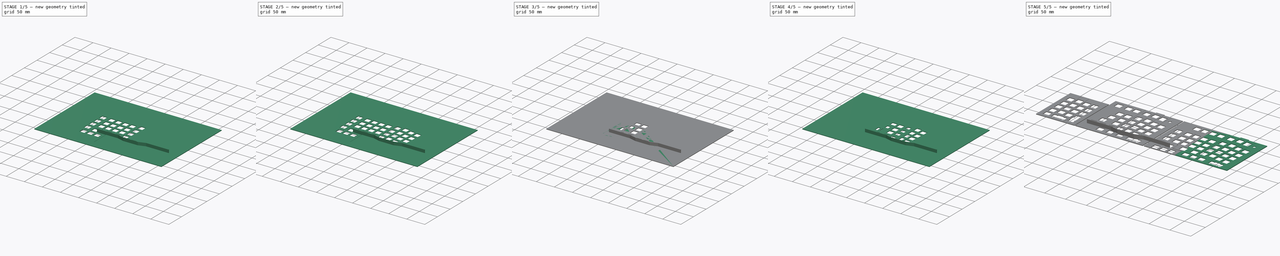
[diagram: build sequence overview — one tinted view per stage of 5, left to right]
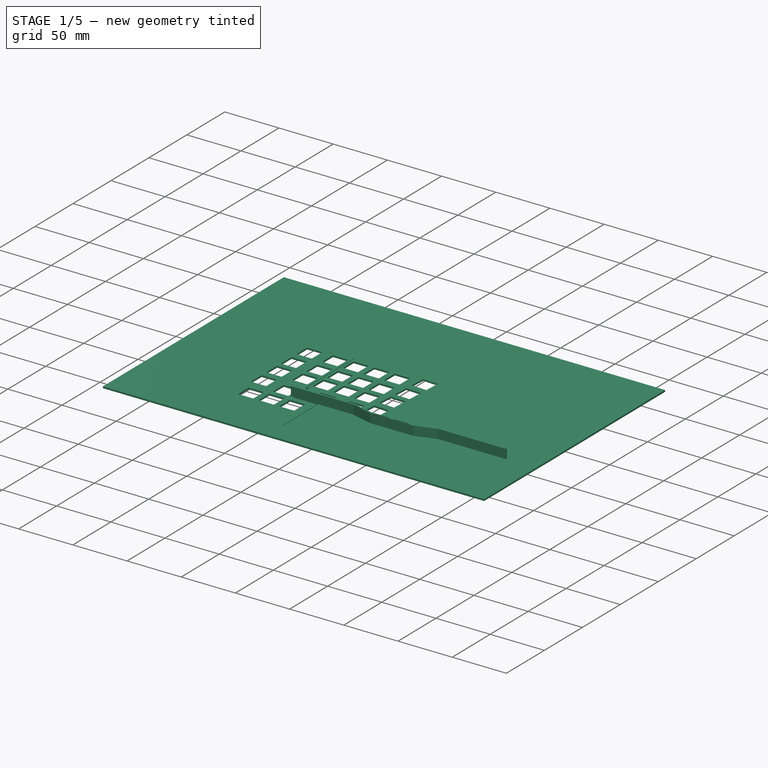
[diagram: stage 1 of 5 — iso view after this stage's code; geometry added in this stage tinted green]
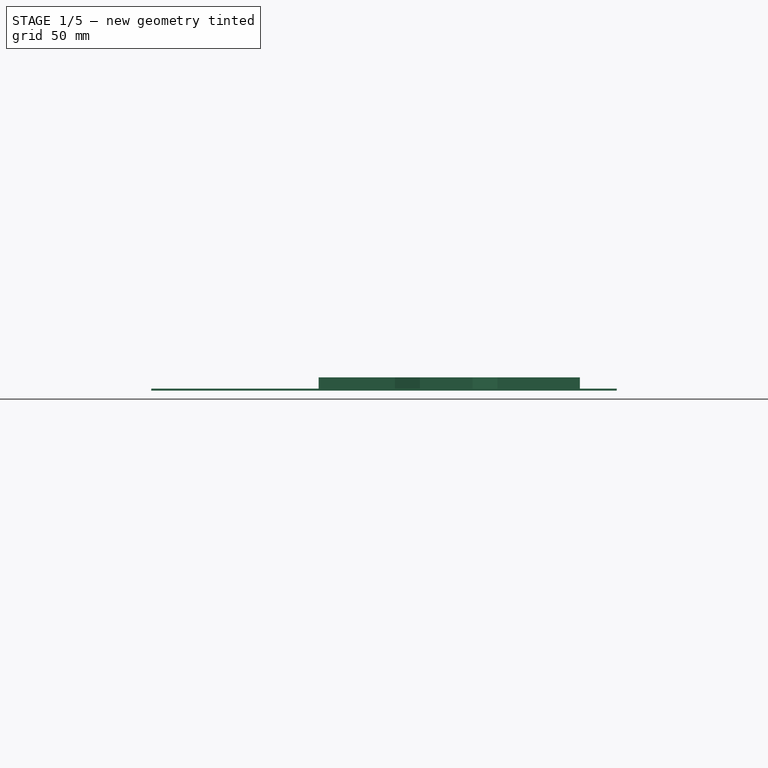
[diagram: stage 1 of 5 — front view after this stage's code; geometry added in this stage tinted green]
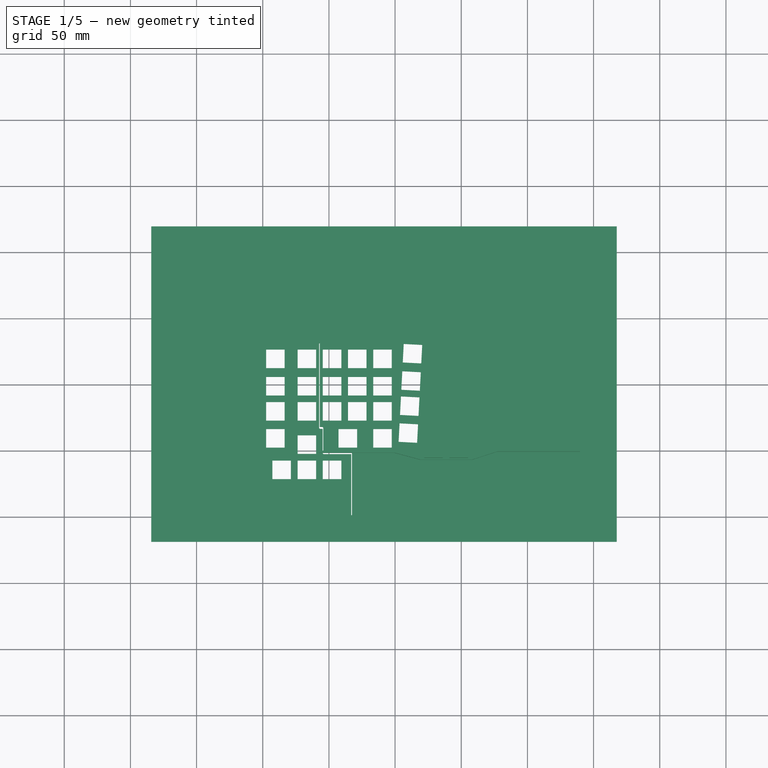
[diagram: stage 1 of 5 — top view after this stage's code; geometry added in this stage tinted green]
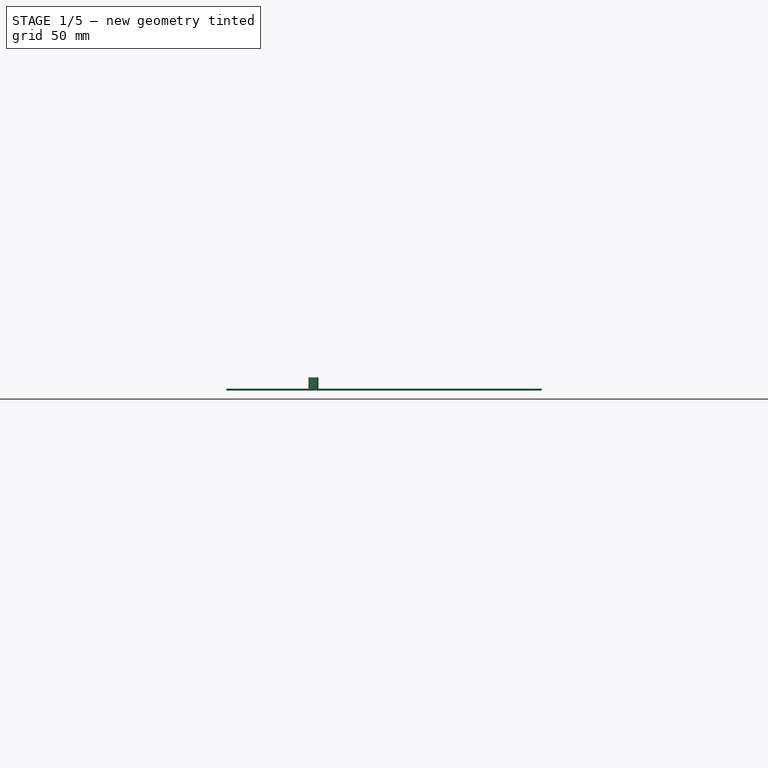
[diagram: stage 1 of 5 — right view after this stage's code; geometry added in this stage tinted green]
FCSTD DOCUMENT  (FreeCAD 0.20R29603 (Git))
Label: Rigel plate left V2
License: All rights reserved
LicenseURL: http://en.wikipedia.org/wiki/All_rights_reserved
objects: Sketcher::SketchObject×15, PartDesign::Pocket×11, PartDesign::Body×5, PartDesign::Pad×4, Drawing::FeatureViewPart×2, Drawing::FeaturePage×2, Spreadsheet::Sheet×1, PartDesign::Boolean×1
note: 51 computed .brp shape members not serialized (recipe doc carries the construction recipe); baked Part::Feature solids carry a one-line shape summary decoded from their .brp

FEATURE [PartDesign::Body] Body  label="NumpadPlate"
  Group = -> [Sketch016,Pad001,Pocket005,Sketch018]
  Origin = -> Origin
  Placement = pos=(-99,0,0) rot=(0,0,1;0rad)
  Tip = -> Pocket005
FEATURE [Sketcher::SketchObject] Sketch019  label="R_TopAndBottomSketch"
  FullyConstrained = false
  expr: Constraints[100] = 0.25 * Spreadsheet.OneU
  expr: Constraints[175] = Spreadsheet.OneUCutout
  expr: Constraints[208] = Spreadsheet.OneUCutout
  expr: Constraints[209] = Spreadsheet.OneUCutout
  expr: Constraints[28] = Spreadsheet.OneU
  expr: Constraints[315] = Spreadsheet.R1ToR4Sheet - Spreadsheet.R1ToR4TopDown
  expr: Constraints[328] = Spreadsheet.OneU
  expr: Constraints[329] = Spreadsheet.OneU
  expr: Constraints[32] = 1 * Spreadsheet.OneU
  expr: Constraints[355] = Spreadsheet.R1ToR4Sheet - Spreadsheet.R1ToR4TopDown
  expr: Constraints[35] = 2.75 * Spreadsheet.OneU
  expr: Constraints[395] = Spreadsheet.OneUCutout
  expr: Constraints[429] = Spreadsheet.R1ToR4Sheet - Spreadsheet.R1ToR4TopDown + 2 * Spreadsheet.C2ExtraLength
  expr: Constraints[430] = Spreadsheet.R1ToR4Sheet - Spreadsheet.R1ToR4TopDown
  expr: Constraints[431] = Spreadsheet.OneU
  expr: Constraints[432] = Spreadsheet.OneU
  expr: Constraints[43] = Spreadsheet.C3Stagger
  expr: Constraints[44] = 90 deg - Spreadsheet.C4Angle
  expr: Constraints[46] = 90 deg + Spreadsheet.C3Angle
  expr: Constraints[476] = Spreadsheet.OneUCutout
  expr: Constraints[500] = Spreadsheet.CutoutWidth
  expr: Constraints[51] = Spreadsheet.C2Stagger
  expr: Constraints[533] = Spreadsheet.ReliefDepth
  expr: Constraints[534] = Spreadsheet.ReliefDepth
  expr: Constraints[535] = Spreadsheet.ReliefDepth
  expr: Constraints[536] = Spreadsheet.ReliefDepth
  expr: Constraints[53] = Spreadsheet.C1Stagger
  expr: Constraints[54] = Spreadsheet.C0Stagger
  expr: Constraints[578] = Spreadsheet.MarginRight
  expr: Constraints[579] = Spreadsheet.MarginTop
  expr: Constraints[580] = Spreadsheet.MarginBottom
  expr: Constraints[581] = Spreadsheet.MarginLeft
  expr: Constraints[586] = Spreadsheet.C4TopAdjustment
  expr: Constraints[587] = Spreadsheet.C3TopAdjustment
  expr: Constraints[588] = 2 * Spreadsheet.C2ExtraLength
  expr: Constraints[58] = Spreadsheet.R1ToR4TopDown
  expr: Constraints[649] = 0.25 * Spreadsheet.OneU
  expr: Constraints[74] = Spreadsheet.R1ToR4TopDown
  expr: Constraints[75] = Spreadsheet.R1ToR4TopDown
  expr: Constraints[76] = Spreadsheet.R1ToR4TopDown
  expr: Constraints[77] = Spreadsheet.R1ToR4TopDown
  expr: Constraints[99] = Spreadsheet.OneU
  sketch-geometry (263):
    g0: LineSegment StartX=-26.9361 StartY=-0.2 StartZ=0 EndX=-7.88607 EndY=-0.2 EndZ=0
    g1: LineSegment StartX=-7.88607 StartY=-0.2 StartZ=0 EndX=-7.88607 EndY=-19.25 EndZ=0
    g2: LineSegment StartX=-7.88607 StartY=-19.25 StartZ=0 EndX=-26.9361 EndY=-19.25 EndZ=0
    g3: LineSegment StartX=-26.9361 StartY=-19.25 StartZ=0 EndX=-26.9361 EndY=-0.2 EndZ=0
    g4: LineSegment StartX=-7.84132 StartY=-0.200053 StartZ=0 EndX=11.2086 EndY=-0.244805 EndZ=0
    g5: LineSegment StartX=11.2086 StartY=-0.244805 StartZ=0 EndX=11.1639 EndY=-19.2948 EndZ=0
    g6: LineSegment StartX=11.1639 StartY=-19.2948 StartZ=0 EndX=-7.88607 EndY=-19.25 EndZ=0
    g7: LineSegment StartX=-7.88607 StartY=-19.25 StartZ=0 EndX=-7.84132 EndY=-0.200053 EndZ=0
    g8: LineSegment StartX=11.513 StartY=-0.247951 StartZ=0 EndX=30.5598 EndY=-0.597041 EndZ=0
    g9: LineSegment StartX=30.5598 StartY=-0.597041 StartZ=0 EndX=30.2107 EndY=-19.6438 EndZ=0
    g10: LineSegment StartX=30.2107 StartY=-19.6438 StartZ=0 EndX=11.1639 EndY=-19.2948 EndZ=0
    g11: LineSegment StartX=11.1639 StartY=-19.2948 StartZ=0 EndX=11.513 EndY=-0.247951 EndZ=0
    g12: LineSegment StartX=30.8755 StartY=-0.605447 StartZ=0 EndX=83.2311 EndY=-2.43374 EndZ=0
    g13: LineSegment StartX=83.2311 StartY=-2.43374 StartZ=0 EndX=82.5663 EndY=-21.4721 EndZ=0
    g14: LineSegment StartX=82.5663 StartY=-21.4721 StartZ=0 EndX=30.2107 EndY=-19.6438 EndZ=0
    g15: LineSegment StartX=30.2107 StartY=-19.6438 StartZ=0 EndX=30.8755 EndY=-0.605447 EndZ=0
    g16: LineSegment StartX=-19.05 StartY=88.8498 StartZ=0 EndX=0 EndY=88.8498 EndZ=0
    g17: LineSegment StartX=0 StartY=4.5 StartZ=0 EndX=19.0239 EndY=3.503 EndZ=0
    g18: LineSegment StartX=19.0239 StartY=3.503 StartZ=0 EndX=24.8349 EndY=114.384 EndZ=0
    g19: LineSegment StartX=19.1547 StartY=5.99957 StartZ=0 EndX=38.1583 EndY=4.67071 EndZ=0
    g20: LineSegment StartX=45.9089 StartY=115.509 StartZ=0 EndX=37.9665 EndY=1.92741 EndZ=0
    g21: LineSegment StartX=64.9182 StartY=114.262 StartZ=0 EndX=56.8655 EndY=-0.897795 EndZ=0
    g22: LineSegment StartX=37.9839 StartY=2.1768 StartZ=0 EndX=56.9875 EndY=0.847942 EndZ=0
    g23: LineSegment StartX=56.8829 StartY=-0.648404 StartZ=0 EndX=75.8865 EndY=-1.97726 EndZ=0
    g24: LineSegment StartX=0 StartY=77.4767 StartZ=0 EndX=-19.1552 EndY=77.4767 EndZ=0
    g25: LineSegment StartX=23.0787 StartY=80.8735 StartZ=0 EndX=4.05482 EndY=81.8705 EndZ=0
    g26: LineSegment StartX=43.5628 StartY=81.9587 StartZ=0 EndX=24.5592 EndY=83.2876 EndZ=0
    g27: LineSegment StartX=62.392 StartY=78.1359 StartZ=0 EndX=43.3884 EndY=79.4648 EndZ=0
    g28: LineSegment StartX=62.2874 StartY=76.6396 StartZ=0 EndX=81.291 EndY=75.3107 EndZ=0
    g29: LineSegment StartX=0 StartY=4.5 StartZ=0 EndX=5.69725 EndY=113.21 EndZ=0
    g30: LineSegment StartX=19.1547 StartY=5.99957 StartZ=0 EndX=26.6565 EndY=113.28 EndZ=0
    g31: LineSegment StartX=75.8451 StartY=-2.56885 StartZ=0 EndX=84.327 EndY=118.728 EndZ=0
    g32: LineSegment StartX=4.92398 StartY=98.4551 StartZ=0 EndX=23.9479 EndY=97.4581 EndZ=0
    g33: GeomPoint X=14.4359 Y=97.9566 Z=0
    g34: LineSegment StartX=4.58431 StartY=88.7698 StartZ=0 EndX=5.24914 EndY=107.808 EndZ=0
    g35: LineSegment StartX=5.24914 StartY=107.808 StartZ=0 EndX=24.2875 EndY=107.143 EndZ=0
    g36: LineSegment StartX=24.2875 StartY=107.143 StartZ=0 EndX=23.6227 EndY=88.105 EndZ=0
    g37: LineSegment StartX=23.6227 StartY=88.105 StartZ=0 EndX=4.58431 EndY=88.7698 EndZ=0
    g38: GeomPoint X=14.4359 Y=97.9566 Z=0
    g39: LineSegment StartX=24.8915 StartY=88.0385 StartZ=0 EndX=81.9022 EndY=84.0519 EndZ=0
    g40: LineSegment StartX=26.2203 StartY=107.042 StartZ=0 EndX=83.2311 EndY=103.055 EndZ=0
    g41: LineSegment StartX=24.8915 StartY=88.0385 StartZ=0 EndX=23.6227 EndY=88.105 EndZ=0
    g42: LineSegment StartX=4.58431 StartY=88.7698 StartZ=0 EndX=0 EndY=88.8498 EndZ=0
    g43: LineSegment StartX=83.2311 StartY=103.055 StartZ=0 EndX=83.2311 EndY=-24.5149 EndZ=0
    g44: GeomPoint X=75.8725 Y=-2.17678 Z=0
    g45: LineSegment StartX=-26.9361 StartY=-0.2 StartZ=0 EndX=-7.88607 EndY=-19.25 EndZ=0
    g46: LineSegment StartX=-26.9361 StartY=-19.25 StartZ=0 EndX=-7.88607 EndY=-0.2 EndZ=0
    g47: LineSegment StartX=-7.84132 StartY=-0.200053 StartZ=0 EndX=11.1639 EndY=-19.2948 EndZ=0
    g48: LineSegment StartX=-7.88607 StartY=-19.25 StartZ=0 EndX=11.2086 EndY=-0.244805 EndZ=0
    g49: LineSegment StartX=11.513 StartY=-0.247951 StartZ=0 EndX=30.2107 EndY=-19.6438 EndZ=0
    g50: LineSegment StartX=11.1639 StartY=-19.2948 StartZ=0 EndX=30.5598 EndY=-0.597041 EndZ=0
    g51: LineSegment StartX=30.8755 StartY=-0.605447 StartZ=0 EndX=82.5663 EndY=-21.4721 EndZ=0
    g52: LineSegment StartX=30.2107 StartY=-19.6438 StartZ=0 EndX=83.2311 EndY=-2.43374 EndZ=0
    g53: GeomPoint X=-17.4111 Y=-9.725 Z=0
    g54: GeomPoint X=1.66128 Y=-9.7474 Z=0
    g55: GeomPoint X=20.8618 Y=-9.9459 Z=0
    g56: GeomPoint X=56.7209 Y=-11.0388 Z=0
    g57: LineSegment StartX=-24.4111 StartY=-2.725 StartZ=0 EndX=-24.4111 EndY=-16.725 EndZ=0
    g58: LineSegment StartX=-24.4111 StartY=-16.725 StartZ=0 EndX=-10.4111 EndY=-16.725 EndZ=0
    g59: LineSegment StartX=-10.4111 StartY=-16.725 StartZ=0 EndX=-10.4111 EndY=-2.725 EndZ=0
    g60: LineSegment StartX=-10.4111 StartY=-2.725 StartZ=0 EndX=-24.4111 EndY=-2.725 EndZ=0
    g61: GeomPoint X=-17.4111 Y=-9.725 Z=0
    g62: LineSegment StartX=-5.35515 StartY=-16.7309 StartZ=0 EndX=-5.32226 EndY=-2.73098 EndZ=0
    g63: LineSegment StartX=-5.32226 StartY=-2.73098 StartZ=0 EndX=8.6777 EndY=-2.76387 EndZ=0
    g64: LineSegment StartX=8.6777 StartY=-2.76387 StartZ=0 EndX=8.64481 EndY=-16.7638 EndZ=0
    g65: LineSegment StartX=8.64481 StartY=-16.7638 StartZ=0 EndX=-5.35515 EndY=-16.7309 EndZ=0
    g66: GeomPoint X=1.66128 Y=-9.7474 Z=0
    g67: LineSegment StartX=13.7347 StartY=-16.8164 StartZ=0 EndX=13.9913 EndY=-2.8188 EndZ=0
    g68: LineSegment StartX=13.9913 StartY=-2.8188 StartZ=0 EndX=27.9889 EndY=-3.07535 EndZ=0
    g69: LineSegment StartX=27.9889 StartY=-3.07535 StartZ=0 EndX=27.7324 EndY=-17.073 EndZ=0
    g70: LineSegment StartX=27.7324 StartY=-17.073 StartZ=0 EndX=13.7347 EndY=-16.8164 EndZ=0
    g71: GeomPoint X=20.8618 Y=-9.9459 Z=0
    g72: LineSegment StartX=49.8902 StartY=-6.06738 StartZ=0 EndX=49.9694 EndY=-3.79876 EndZ=0
    g73: LineSegment StartX=49.9694 StartY=-3.79876 StartZ=0 EndX=63.9609 EndY=-4.28735 EndZ=0
    g74: LineSegment StartX=63.9609 StartY=-4.28735 StartZ=0 EndX=63.8817 EndY=-6.55597 EndZ=0
    g75: LineSegment StartX=63.8817 StartY=-6.55597 StartZ=0 EndX=63.5083 EndY=-17.2495 EndZ=0
    g76: LineSegment StartX=63.5083 StartY=-17.2495 StartZ=0 EndX=63.4723 EndY=-18.2788 EndZ=0
    g77: LineSegment StartX=63.4723 StartY=-18.2788 StartZ=0 EndX=49.4809 EndY=-17.7902 EndZ=0
    g78: LineSegment StartX=49.4809 StartY=-17.7902 StartZ=0 EndX=49.5168 EndY=-16.7609 EndZ=0
    g79: LineSegment StartX=49.5168 StartY=-16.7609 StartZ=0 EndX=49.8902 EndY=-6.06738 EndZ=0
    g80: LineSegment StartX=57.0533 StartY=-1.5196 StartZ=0 EndX=56.3885 EndY=-20.558 EndZ=0
    g81: LineSegment StartX=30.5431 StartY=-10.1246 StartZ=0 EndX=82.8987 EndY=-11.9529 EndZ=0
    g82: LineSegment StartX=45.1606 StartY=-1.10429 StartZ=0 EndX=44.4957 EndY=-20.1427 EndZ=0
    g83: LineSegment StartX=68.9461 StartY=-1.9349 StartZ=0 EndX=68.2812 EndY=-20.9733 EndZ=0
    g84: LineSegment StartX=63.8817 StartY=-6.55597 StartZ=0 EndX=65.4557 EndY=-6.61094 EndZ=0
    g85: LineSegment StartX=65.4557 StartY=-6.61094 StartZ=0 EndX=65.4837 EndY=-5.81142 EndZ=0
    g86: LineSegment StartX=65.4837 StartY=-5.81142 StartZ=0 EndX=72.1296 EndY=-6.04351 EndZ=0
    g87: LineSegment StartX=72.1296 StartY=-6.04351 StartZ=0 EndX=72.0169 EndY=-9.27154 EndZ=0
    g88: LineSegment StartX=72.0169 StartY=-9.27154 StartZ=0 EndX=72.8913 EndY=-9.30208 EndZ=0
    g89: LineSegment StartX=72.8913 StartY=-9.30208 StartZ=0 EndX=72.7936 EndY=-12.1004 EndZ=0
    g90: LineSegment StartX=72.7936 StartY=-12.1004 StartZ=0 EndX=71.9192 EndY=-12.0698 EndZ=0
    g91: LineSegment StartX=71.9192 StartY=-12.0698 StartZ=0 EndX=71.7003 EndY=-18.336 EndZ=0
    g92: LineSegment StartX=71.7003 StartY=-18.336 StartZ=0 EndX=69.8765 EndY=-18.2723 EndZ=0
    g93: LineSegment StartX=69.8765 StartY=-18.2723 StartZ=0 EndX=69.8346 EndY=-19.4716 EndZ=0
    g94: LineSegment StartX=69.8346 StartY=-19.4716 StartZ=0 EndX=66.8364 EndY=-19.3669 EndZ=0
    g95: LineSegment StartX=66.8364 StartY=-19.3669 StartZ=0 EndX=66.8783 EndY=-18.1676 EndZ=0
    g96: LineSegment StartX=66.8783 StartY=-18.1676 StartZ=0 EndX=65.0544 EndY=-18.1039 EndZ=0
    g97: LineSegment StartX=65.0544 StartY=-18.1039 StartZ=0 EndX=65.0823 EndY=-17.3044 EndZ=0
    g98: LineSegment StartX=65.0823 StartY=-17.3044 StartZ=0 EndX=63.5083 EndY=-17.2495 EndZ=0
    g99: LineSegment StartX=66.8783 StartY=-18.1676 StartZ=0 EndX=69.8765 EndY=-18.2723 EndZ=0
    g100: LineSegment StartX=72.0169 StartY=-9.27154 StartZ=0 EndX=71.9192 EndY=-12.0698 EndZ=0
    g101: LineSegment StartX=65.4557 StartY=-6.61094 StartZ=0 EndX=65.0823 EndY=-17.3044 EndZ=0
    g102: GeomPoint X=65.2907 Y=-11.3381 Z=0
    g103: LineSegment StartX=69.8765 StartY=-18.2723 StartZ=0 EndX=70.3057 EndY=-5.97981 EndZ=0
    g104: GeomPoint X=72.8111 Y=-11.6007 Z=0
    g105: GeomPoint X=68.6136 Y=-11.4541 Z=0
    g106: LineSegment StartX=49.8902 StartY=-6.06738 StartZ=0 EndX=48.3162 EndY=-6.01241 EndZ=0
    g107: LineSegment StartX=48.3162 StartY=-6.01241 StartZ=0 EndX=48.3441 EndY=-5.2129 EndZ=0
    g108: LineSegment StartX=48.3441 StartY=-5.2129 StartZ=0 EndX=41.6982 EndY=-4.98082 EndZ=0
    g109: LineSegment StartX=41.6982 StartY=-4.98082 StartZ=0 EndX=41.5854 EndY=-8.20885 EndZ=0
    g110: LineSegment StartX=41.5854 StartY=-8.20885 StartZ=0 EndX=40.711 EndY=-8.17831 EndZ=0
    g111: LineSegment StartX=40.711 StartY=-8.17831 StartZ=0 EndX=40.6132 EndY=-10.9766 EndZ=0
    g112: LineSegment StartX=40.6132 StartY=-10.9766 StartZ=0 EndX=41.4877 EndY=-11.0071 EndZ=0
    g113: LineSegment StartX=41.4877 StartY=-11.0071 StartZ=0 EndX=41.2689 EndY=-17.2733 EndZ=0
    g114: LineSegment StartX=41.2689 StartY=-17.2733 StartZ=0 EndX=43.0928 EndY=-17.337 EndZ=0
    g115: LineSegment StartX=43.0928 StartY=-17.337 StartZ=0 EndX=43.0509 EndY=-18.5363 EndZ=0
    g116: LineSegment StartX=43.0509 StartY=-18.5363 StartZ=0 EndX=46.0491 EndY=-18.641 EndZ=0
    g117: LineSegment StartX=46.0491 StartY=-18.641 StartZ=0 EndX=46.091 EndY=-17.4417 EndZ=0
    g118: LineSegment StartX=46.091 StartY=-17.4417 StartZ=0 EndX=47.9148 EndY=-17.5054 EndZ=0
    g119: LineSegment StartX=47.9148 StartY=-17.5054 StartZ=0 EndX=47.9428 EndY=-16.7059 EndZ=0
    g120: LineSegment StartX=47.9428 StartY=-16.7059 StartZ=0 EndX=49.5168 EndY=-16.7609 EndZ=0
    g121: LineSegment StartX=23.6227 StartY=88.105 StartZ=0 EndX=23.7086 EndY=89.7447 EndZ=0
    g122: LineSegment StartX=23.7086 StartY=89.7447 StartZ=0 EndX=4.67025 EndY=90.4096 EndZ=0
    g123: LineSegment StartX=4.67025 StartY=90.4096 StartZ=0 EndX=5.33508 EndY=109.448 EndZ=0
    g124: LineSegment StartX=5.33508 StartY=109.448 StartZ=0 EndX=24.3735 EndY=108.783 EndZ=0
    g125: LineSegment StartX=24.3735 StartY=108.783 StartZ=0 EndX=23.7086 EndY=89.7447 EndZ=0
    g126: LineSegment StartX=5.33508 StartY=109.448 StartZ=0 EndX=23.7086 EndY=89.7447 EndZ=0
    g127: LineSegment StartX=24.3735 StartY=108.783 StartZ=0 EndX=4.67025 EndY=90.4096 EndZ=0
    g128: GeomPoint X=14.5219 Y=99.5964 Z=0
    g129: LineSegment StartX=0 StartY=90.4918 StartZ=0 EndX=-105.178 EndY=90.4918 EndZ=0
    g130: LineSegment StartX=-19.05 StartY=109.542 StartZ=0 EndX=-19.05 EndY=90.4918 EndZ=0
    g131: LineSegment StartX=-38.1 StartY=109.542 StartZ=0 EndX=-38.1 EndY=90.4918 EndZ=0
    g132: LineSegment StartX=-80.9625 StartY=109.542 StartZ=0 EndX=-80.9625 EndY=90.4918 EndZ=0
    g133: LineSegment StartX=-100.013 StartY=109.542 StartZ=0 EndX=-100.013 EndY=90.4918 EndZ=0
    g134: LineSegment StartX=0 StartY=109.542 StartZ=0 EndX=-19.05 EndY=109.542 EndZ=0
    g135: LineSegment StartX=-19.05 StartY=109.542 StartZ=0 EndX=-38.1 EndY=109.542 EndZ=0
    g136: LineSegment StartX=-80.9625 StartY=109.542 StartZ=0 EndX=-100.013 EndY=109.542 EndZ=0
    g137: LineSegment StartX=-19.05 StartY=109.542 StartZ=0 EndX=0 EndY=90.4918 EndZ=0
    g138: LineSegment StartX=0 StartY=109.542 StartZ=0 EndX=-19.05 EndY=90.4918 EndZ=0
    g139: LineSegment StartX=-38.1 StartY=109.542 StartZ=0 EndX=-19.05 EndY=90.4918 EndZ=0
    g140: LineSegment StartX=-19.05 StartY=109.542 StartZ=0 EndX=-38.1 EndY=90.4918 EndZ=0
    g141: LineSegment StartX=-100.013 StartY=109.542 StartZ=0 EndX=-80.9625 EndY=90.4918 EndZ=0
    g142: LineSegment StartX=-80.9625 StartY=109.542 StartZ=0 EndX=-100.013 EndY=90.4918 EndZ=0
    g143: GeomPoint X=-9.525 Y=100.017 Z=0
    g144: GeomPoint X=-28.575 Y=100.017 Z=0
    g145: GeomPoint X=-90.4875 Y=100.017 Z=0
    g146: LineSegment StartX=-16.525 StartY=93.0168 StartZ=0 EndX=-16.525 EndY=107.017 EndZ=0
    g147: LineSegment StartX=-16.525 StartY=107.017 StartZ=0 EndX=-2.525 EndY=107.017 EndZ=0
    g148: LineSegment StartX=-2.525 StartY=107.017 StartZ=0 EndX=-2.525 EndY=93.0168 EndZ=0
    g149: LineSegment StartX=-2.525 StartY=93.0168 StartZ=0 EndX=-16.525 EndY=93.0168 EndZ=0
    g150: GeomPoint X=-9.525 Y=100.017 Z=0
    g151: LineSegment StartX=-35.575 StartY=93.0168 StartZ=0 EndX=-35.575 EndY=107.017 EndZ=0
    g152: LineSegment StartX=-35.575 StartY=107.017 StartZ=0 EndX=-21.575 EndY=107.017 EndZ=0
    g153: LineSegment StartX=-21.575 StartY=107.017 StartZ=0 EndX=-21.575 EndY=93.0168 EndZ=0
    g154: LineSegment StartX=-21.575 StartY=93.0168 StartZ=0 EndX=-35.575 EndY=93.0168 EndZ=0
    g155: GeomPoint X=-28.575 Y=100.017 Z=0
    g156: GeomPoint X=-90.4875 Y=100.017 Z=0
    g157: LineSegment StartX=7.28183 StartY=92.8449 StartZ=0 EndX=7.77042 EndY=106.836 EndZ=0
    g158: LineSegment StartX=7.77042 StartY=106.836 StartZ=0 EndX=21.7619 EndY=106.348 EndZ=0
    g159: LineSegment StartX=21.7619 StartY=106.348 StartZ=0 EndX=21.2733 EndY=92.3563 EndZ=0
    g160: LineSegment StartX=21.2733 StartY=92.3563 StartZ=0 EndX=7.28183 EndY=92.8449 EndZ=0
    g161: GeomPoint X=14.5219 Y=99.5964 Z=0
    g162: LineSegment StartX=44.1836 StartY=90.8355 StartZ=0 EndX=25.18 EndY=92.1644 EndZ=0
    g163: LineSegment StartX=26.5088 StartY=111.168 StartZ=0 EndX=45.5124 EndY=109.839 EndZ=0
    g164: LineSegment StartX=63.0132 StartY=87.0188 StartZ=0 EndX=44.0096 EndY=88.3476 EndZ=0
    g165: LineSegment StartX=45.3384 StartY=107.351 StartZ=0 EndX=64.342 EndY=106.022 EndZ=0
    g166: LineSegment StartX=64.342 StartY=106.022 StartZ=0 EndX=83.3456 EndY=104.694 EndZ=0
    g167: LineSegment StartX=63.0132 StartY=87.0188 StartZ=0 EndX=82.0168 EndY=85.6899 EndZ=0
    g168: LineSegment StartX=26.5088 StartY=111.168 StartZ=0 EndX=44.1836 EndY=90.8355 EndZ=0
    g169: LineSegment StartX=25.18 StartY=92.1644 StartZ=0 EndX=45.5124 EndY=109.839 EndZ=0
    g170: LineSegment StartX=45.5124 StartY=109.839 StartZ=0 EndX=63.0132 EndY=87.0188 EndZ=0
    g171: LineSegment StartX=44.1836 StartY=90.8355 StartZ=0 EndX=64.342 EndY=106.022 EndZ=0
    g172: LineSegment StartX=64.342 StartY=106.022 StartZ=0 EndX=82.0168 EndY=85.6899 EndZ=0
    g173: LineSegment StartX=63.0132 StartY=87.0188 StartZ=0 EndX=83.3456 EndY=104.694 EndZ=0
    g174: GeomPoint X=35.3462 Y=101.002 Z=0
    g175: GeomPoint X=54.2628 Y=98.4289 Z=0
    g176: GeomPoint X=73.1794 Y=95.8561 Z=0
    g177: LineSegment StartX=27.8749 StartY=94.5071 StartZ=0 EndX=28.8515 EndY=108.473 EndZ=0
    g178: LineSegment StartX=28.8515 StartY=108.473 StartZ=0 EndX=42.8174 EndY=107.496 EndZ=0
    g179: LineSegment StartX=42.8174 StartY=107.496 StartZ=0 EndX=41.8408 EndY=93.5305 EndZ=0
    g180: LineSegment StartX=41.8408 StartY=93.5305 StartZ=0 EndX=27.8749 EndY=94.5071 EndZ=0
    g181: GeomPoint X=35.3462 Y=101.002 Z=0
    g182: LineSegment StartX=46.7276 StartY=91.0201 StartZ=0 EndX=47.8321 EndY=106.814 EndZ=0
    g183: LineSegment StartX=47.8321 StartY=106.814 StartZ=0 EndX=61.798 EndY=105.838 EndZ=0
    g184: LineSegment StartX=61.798 StartY=105.838 StartZ=0 EndX=60.6935 EndY=90.0435 EndZ=0
    g185: LineSegment StartX=60.6935 StartY=90.0435 StartZ=0 EndX=46.7276 EndY=91.0201 EndZ=0
    g186: GeomPoint X=54.2628 Y=98.4289 Z=0
    g187: GeomPoint X=73.1794 Y=95.8561 Z=0
    g188: LineSegment StartX=19.1547 StartY=5.99957 StartZ=0 EndX=25.8563 EndY=115.57 EndZ=0
    g189: LineSegment StartX=24.6954 StartY=111.722 StartZ=0 EndX=26.5397 EndY=111.609 EndZ=0
    g190: GeomPoint X=25.6175 Y=111.665 Z=0
    g191: LineSegment StartX=0 StartY=4.5 StartZ=0 EndX=2.87948 EndY=114.463 EndZ=0
    g192: LineSegment StartX=5.62833 StartY=111.895 StartZ=0 EndX=0 EndY=112.042 EndZ=0
    g193: GeomPoint X=2.81416 Y=111.969 Z=0
    g194: LineSegment StartX=2.63146 StartY=114.542 StartZ=0 EndX=-0.374297 EndY=-0.243456 EndZ=0
    g195: LineSegment StartX=3.12751 StartY=114.384 StartZ=0 EndX=0.125531 EndY=-0.256544 EndZ=0
    g196: LineSegment StartX=0 StartY=4.5 StartZ=0 EndX=-0.124383 EndY=-0.25 EndZ=0
    g197: ArcOfCircle CenterX=-0.124383 CenterY=-0.25 CenterZ=0 NormalX=0 NormalY=0 NormalZ=1 AngleXU=0 Radius=0.25 StartAngle=3.11541 EndAngle=6.25701
    g198: LineSegment StartX=-0.374297 StartY=-0.243456 StartZ=0 EndX=0.125531 EndY=-0.256544 EndZ=0
    g199: LineSegment StartX=25.5334 StartY=114.384 StartZ=0 EndX=18.7374 EndY=3.27101 EndZ=0
    g200: LineSegment StartX=19.2364 StartY=3.24049 StartZ=0 EndX=26.1793 EndY=116.756 EndZ=0
    g201: LineSegment StartX=19.1547 StartY=5.99957 StartZ=0 EndX=18.9869 EndY=3.25575 EndZ=0
    g202: ArcOfCircle CenterX=18.9869 CenterY=3.25575 CenterZ=0 NormalX=0 NormalY=0 NormalZ=1 AngleXU=0 Radius=0.25 StartAngle=3.08051 EndAngle=6.2221
    g203: LineSegment StartX=18.7374 StartY=3.27101 StartZ=0 EndX=19.2364 EndY=3.24049 EndZ=0
    g204: LineSegment StartX=45.7455 StartY=116.756 StartZ=0 EndX=37.7171 EndY=1.94485 EndZ=0
    g205: LineSegment StartX=38.2159 StartY=1.90997 StartZ=0 EndX=46.0723 EndY=114.262 EndZ=0
    g206: LineSegment StartX=64.6676 StartY=114.262 StartZ=0 EndX=56.6161 EndY=-0.880356 EndZ=0
    g207: LineSegment StartX=57.1148 StartY=-0.915234 StartZ=0 EndX=65.1688 EndY=114.262 EndZ=0
    g208: LineSegment StartX=37.7171 StartY=1.94485 StartZ=0 EndX=38.2159 EndY=1.90997 EndZ=0
    g209: LineSegment StartX=56.6161 StartY=-0.880356 StartZ=0 EndX=57.1148 EndY=-0.915234 EndZ=0
    g210: ArcOfCircle CenterX=37.9665 CenterY=1.92741 CenterZ=0 NormalX=0 NormalY=0 NormalZ=1 AngleXU=0 Radius=0.25 StartAngle=3.07178 EndAngle=6.21337
    g211: ArcOfCircle CenterX=56.8655 CenterY=-0.897795 CenterZ=0 NormalX=0 NormalY=0 NormalZ=1 AngleXU=0 Radius=0.25 StartAngle=3.07178 EndAngle=6.21337
    g212: Circle CenterX=73.1794 CenterY=95.8561 CenterZ=0 NormalX=0 NormalY=0 NormalZ=1 AngleXU=0 Radius=3.525
    g213: LineSegment StartX=91.2311 StartY=114.262 StartZ=0 EndX=91.2311 EndY=-23.4721 EndZ=0
    g214: LineSegment StartX=91.2311 StartY=-23.4721 StartZ=0 EndX=-108.013 EndY=-23.4721 EndZ=0
    g215: LineSegment StartX=-108.013 StartY=114.542 StartZ=0 EndX=2.63146 EndY=114.542 EndZ=0
    g216: LineSegment StartX=2.63146 StartY=114.542 StartZ=0 EndX=3.12751 EndY=114.384 EndZ=0
    g217: LineSegment StartX=3.12751 StartY=114.384 StartZ=0 EndX=25.5334 EndY=114.384 EndZ=0
    g218: LineSegment StartX=25.5334 StartY=114.384 StartZ=0 EndX=26.1793 EndY=116.756 EndZ=0
    g219: LineSegment StartX=26.1793 StartY=116.756 StartZ=0 EndX=45.7455 EndY=116.756 EndZ=0
    g220: LineSegment StartX=45.7455 StartY=116.756 StartZ=0 EndX=46.0723 EndY=114.262 EndZ=0
    g221: LineSegment StartX=46.0723 StartY=114.262 StartZ=0 EndX=64.6676 EndY=114.262 EndZ=0
    g222: LineSegment StartX=64.6676 StartY=114.262 StartZ=0 EndX=65.1688 EndY=114.262 EndZ=0
    g223: LineSegment StartX=65.1688 StartY=114.262 StartZ=0 EndX=91.2311 EndY=114.262 EndZ=0
    g224: LineSegment StartX=-277.949 StartY=286.005 StartZ=0 EndX=433.667 EndY=286.005 EndZ=0
    g225: LineSegment StartX=433.667 StartY=286.005 StartZ=0 EndX=433.667 EndY=-235.578 EndZ=0
    g226: LineSegment StartX=433.667 StartY=-235.578 StartZ=0 EndX=-277.949 EndY=-235.578 EndZ=0
    g227: LineSegment StartX=-277.949 StartY=-235.578 StartZ=0 EndX=-277.949 EndY=286.005 EndZ=0
    g228: LineSegment StartX=71.1429 StartY=-21.4721 StartZ=0 EndX=88.1197 EndY=-21.4721 EndZ=0
    g229: LineSegment StartX=-57.15 StartY=109.542 StartZ=0 EndX=-57.15 EndY=90.4918 EndZ=0
    g230: LineSegment StartX=-76.2 StartY=109.542 StartZ=0 EndX=-76.2 EndY=90.4918 EndZ=0
    g231: LineSegment StartX=-38.1 StartY=109.542 StartZ=0 EndX=-57.15 EndY=109.542 EndZ=0
    g232: LineSegment StartX=-57.15 StartY=109.542 StartZ=0 EndX=-76.2 EndY=109.542 EndZ=0
    g233: LineSegment StartX=-76.2 StartY=109.542 StartZ=0 EndX=-80.9625 EndY=109.542 EndZ=0
    g234: LineSegment StartX=-38.1 StartY=109.542 StartZ=0 EndX=-57.15 EndY=90.4918 EndZ=0
    g235: LineSegment StartX=-57.15 StartY=90.4918 StartZ=0 EndX=-76.2 EndY=109.542 EndZ=0
    g236: LineSegment StartX=-76.2 StartY=90.4918 StartZ=0 EndX=-57.15 EndY=109.542 EndZ=0
    g237: LineSegment StartX=-57.15 StartY=109.542 StartZ=0 EndX=-38.1 EndY=90.4918 EndZ=0
    g238: GeomPoint X=-47.625 Y=100.017 Z=0
    g239: GeomPoint X=-66.675 Y=100.017 Z=0
    g240: LineSegment StartX=-54.625 StartY=93.0168 StartZ=0 EndX=-54.625 EndY=107.017 EndZ=0
    g241: LineSegment StartX=-54.625 StartY=107.017 StartZ=0 EndX=-40.625 EndY=107.017 EndZ=0
    g242: LineSegment StartX=-40.625 StartY=107.017 StartZ=0 EndX=-40.625 EndY=93.0168 EndZ=0
    g243: LineSegment StartX=-40.625 StartY=93.0168 StartZ=0 EndX=-54.625 EndY=93.0168 EndZ=0
    g244: GeomPoint X=-47.625 Y=100.017 Z=0
    g245: LineSegment StartX=-73.675 StartY=93.0168 StartZ=0 EndX=-73.675 EndY=107.017 EndZ=0
    g246: LineSegment StartX=-73.675 StartY=107.017 StartZ=0 EndX=-59.675 EndY=107.017 EndZ=0
    g247: LineSegment StartX=-59.675 StartY=107.017 StartZ=0 EndX=-59.675 EndY=93.0168 EndZ=0
    g248: LineSegment StartX=-59.675 StartY=93.0168 StartZ=0 EndX=-73.675 EndY=93.0168 EndZ=0
    g249: GeomPoint X=-66.675 Y=100.017 Z=0
    g250: LineSegment StartX=-35.575 StartY=93.0168 StartZ=0 EndX=-40.625 EndY=93.0168 EndZ=0
    g251: LineSegment StartX=-54.625 StartY=93.0168 StartZ=0 EndX=-59.675 EndY=93.0168 EndZ=0
    g252: LineSegment StartX=-108.013 StartY=94.6694 StartZ=0 EndX=-108.013 EndY=114.542 EndZ=0
    g253: LineSegment StartX=-108.013 StartY=93.1694 StartZ=0 EndX=-108.013 EndY=94.6694 EndZ=0
    g254: LineSegment StartX=-108.013 StartY=-4.45573 StartZ=0 EndX=-108.013 EndY=93.1694 EndZ=0
    g255: LineSegment StartX=-108.013 StartY=-23.4721 StartZ=0 EndX=-108.013 EndY=-5.95573 EndZ=0
    g256: LineSegment StartX=-108.013 StartY=-5.95573 StartZ=0 EndX=-108.013 EndY=-4.45573 EndZ=0
    g257: LineSegment StartX=-108.013 StartY=-4.45573 StartZ=0 EndX=-115.53 EndY=-4.45573 EndZ=0
    g258: LineSegment StartX=-115.53 StartY=-4.45573 StartZ=0 EndX=-115.53 EndY=-5.95573 EndZ=0
    g259: LineSegment StartX=-115.53 StartY=-5.95573 StartZ=0 EndX=-108.013 EndY=-5.95573 EndZ=0
    g260: LineSegment StartX=-108.013 StartY=94.6694 StartZ=0 EndX=-113.109 EndY=94.6694 EndZ=0
    g261: LineSegment StartX=-113.109 StartY=94.6694 StartZ=0 EndX=-113.109 EndY=93.1694 EndZ=0
    g262: LineSegment StartX=-113.109 StartY=93.1694 StartZ=0 EndX=-108.013 EndY=93.1694 EndZ=0
  constraints (675):
    c: Coincident(g0,g1)
    c: Coincident(g1,g2)
    c: Coincident(g2,g3)
    c: Coincident(g3,g0)
    c: Coincident(g4,g5)
    c: Coincident(g5,g6)
    c: Coincident(g6,g7)
    c: Coincident(g7,g4)
    c: Coincident(g8,g9)
    c: Coincident(g9,g10)
    c: Coincident(g10,g11)
    c: Coincident(g11,g8)
    c: Coincident(g12,g13)
    c: Coincident(g13,g14)
    c: Coincident(g14,g15)
    c: Coincident(g15,g12)
    c: Parallel(g14,g12)
    c: Parallel(g10,g8)
    c: Parallel(g6,g4)
    c: Parallel(g2,g0)
    c: Perpendicular(g0,g3)
    c: Perpendicular(g1,g0)
    c: Perpendicular(g4,g7)
    c: Perpendicular(g5,g4)
    c: Perpendicular(g8,g11)
    c: Perpendicular(g8,g9)
    c: Perpendicular(g12,g15)
    c: Perpendicular(g12,g13)
    c: Distance(g3) = 19.05
    c: Equal(g3,g7)
    c: Equal(g7,g11)
    c: Equal(g11,g15)
    c: Distance(g0) = 19.05
    c: Equal(g0,g4)
    c: Equal(g4,g8)
    c: Distance(g12) = 52.3875
    c: Horizontal(g16)
    c: PointOnObject(g17,g-2)
    c: Coincident(g18,g17)
    c: PointOnObject(g19,g18)
    c: PointOnObject(g22,g20)
    c: PointOnObject(g22,g21)
    c: PointOnObject(g23,g21)
    c: DistanceY(g-1,g17) = 4.5
    c: Angle(g-2,g17) = 1.51844
    c: Perpendicular(g17,g18)
    c: Angle(g19,g18) = 1.58825
    c: PointOnObject(g19,g20)
    c: Perpendicular(g20,g19)
    c: Perpendicular(g22,g20)
    c: Perpendicular(g23,g21)
    c: Distance(g17,g19) = 2.5
    c: Equal(g22,g23)
    c: Distance(g22,g19) = 2.5
    c: Distance(g23,g22) = 1.5
    c: Perpendicular(g21,g22)
    c: PointOnObject(g24,g-2)
    c: Horizontal(g24)
    c: DistanceY(g-1,g24) = 77.4767
    c: PointOnObject(g25,g18)
    c: PointOnObject(g26,g20)
    c: PointOnObject(g27,g21)
    c: PointOnObject(g27,g20)
    c: PointOnObject(g28,g21)
    c: Perpendicular(g18,g25)
    c: Coincident(g29,g17)
    c: PointOnObject(g25,g29)
    c: Perpendicular(g17,g29)
    c: Coincident(g30,g19)
    c: PointOnObject(g26,g30)
    c: Perpendicular(g19,g30)
    c: Perpendicular(g20,g26)
    c: Perpendicular(g21,g27)
    c: Perpendicular(g28,g21)
    c: Distance(g17,g25) = 77.4767
    c: Distance(g26,g19) = 77.4767
    c: Distance(g22,g27) = 77.4767
    c: Distance(g23,g28) = 77.4767
    c: Perpendicular(g31,g23)
    c: PointOnObject(g28,g31)
    c: Symmetric(g32,g32,g33)
    c: Coincident(g34,g35)
    c: Coincident(g35,g36)
    c: Coincident(g36,g37)
    c: Coincident(g37,g34)
    c: Symmetric(g35,g34,g38)
    c: Coincident(g38,g33)
    c: Perpendicular(g35,g34)
    c: Perpendicular(g37,g34)
    c: Parallel(g36,g34)
    c: Equal(g34,g35)
    c: PointOnObject(g32,g29)
    c: PointOnObject(g32,g18)
    c: PointOnObject(g39,g30)
    c: PointOnObject(g39,g31)
    c: PointOnObject(g40,g30)
    c: PointOnObject(g40,g31)
    c: Perpendicular(g30,g40)
    c: Perpendicular(g30,g39)
    c: Distance(g40,g39) = 19.05
    c: Distance(g26,g39) = 4.7625
    c: Coincident(g41,g39)
    c: Angle(g41,g30) = 1.55334
    c: Coincident(g36,g41)
    c: Angle(g37,g39) = 3.10669
    c: Coincident(g42,g34)
    c: Angle(g34,g42) = 1.58825
    c: Coincident(g16,g42)
    c: Perpendicular(g29,g32)
    c: Coincident(g43,g40)
    c: Vertical(g43)
    c: PointOnObject(g12,g43)
    c: Horizontal(g0)
    c: Coincident(g1,g6)
    c: Coincident(g10,g5)
    c: Coincident(g14,g9)
    c: Angle(g43,g13) = 3.10669
    c: PointOnObject(g23,g31)
    c: PointOnObject(g44,g12)
    c: PointOnObject(g44,g31)
    c: Distance(g23,g44) = 0.2
    c: DistanceY(g0,g-1) = 0.2
    c: Angle(g15,g9) = 0.0165806
    c: Angle(g11,g5) = 0.0159768
    c: Angle(g7,g1) = 0.00234919
    c: Coincident(g45,g0)
    c: Coincident(g45,g1)
    c: Coincident(g46,g2)
    c: Coincident(g46,g0)
    c: Coincident(g47,g4)
    c: Coincident(g47,g5)
    c: Coincident(g48,g1)
    c: Coincident(g48,g4)
    c: Coincident(g49,g8)
    c: Coincident(g49,g9)
    c: Coincident(g50,g5)
    c: Coincident(g50,g8)
    c: Coincident(g51,g12)
    c: Coincident(g51,g13)
    c: Coincident(g52,g9)
    c: Coincident(g52,g12)
    c: PointOnObject(g53,g45)
    c: PointOnObject(g54,g47)
    c: PointOnObject(g55,g49)
    c: PointOnObject(g56,g51)
    c: PointOnObject(g56,g52)
    c: PointOnObject(g55,g50)
    c: PointOnObject(g54,g48)
    c: PointOnObject(g53,g46)
    c: Coincident(g57,g58)
    c: Coincident(g58,g59)
    c: Coincident(g59,g60)
    c: Coincident(g60,g57)
    c: Horizontal(g58)
    c: Horizontal(g60)
    c: Vertical(g57)
    c: Vertical(g59)
    c: Symmetric(g58,g57,g61)
    c: Coincident(g61,g53)
    c: Coincident(g62,g63)
    c: Coincident(g63,g64)
    c: Coincident(g64,g65)
    c: Coincident(g65,g62)
    c: Symmetric(g63,g62,g66)
    c: Coincident(g66,g54)
    c: Coincident(g67,g68)
    c: Coincident(g68,g69)
    c: Coincident(g69,g70)
    c: Coincident(g70,g67)
    c: Symmetric(g68,g67,g71)
    c: Coincident(g71,g55)
    c: Perpendicular(g65,g62)
    c: Perpendicular(g65,g64)
    c: Parallel(g63,g65)
    c: Parallel(g65,g6)
    c: Distance(g58) = 14
    c: Equal(g57,g58)
    c: Equal(g58,g62)
    c: Equal(g62,g65)
    c: Equal(g65,g67)
    c: Equal(g67,g70)
    c: Perpendicular(g70,g67)
    c: Perpendicular(g70,g69)
    c: Parallel(g68,g70)
    c: Parallel(g70,g10)
    c: Coincident(g72,g73)
    c: Coincident(g73,g74)
    c: Coincident(g74,g75)
    c: Coincident(g75,g76)
    c: Coincident(g76,g77)
    c: Coincident(g77,g78)
    c: Coincident(g78,g79)
    c: Coincident(g79,g72)
    c: Parallel(g72,g79)
    c: Parallel(g79,g78)
    c: Parallel(g74,g75)
    c: Parallel(g75,g76)
    c: Perpendicular(g77,g78)
    c: Perpendicular(g76,g77)
    c: Parallel(g77,g14)
    c: Parallel(g14,g73)
    c: PointOnObject(g80,g12)
    c: PointOnObject(g80,g14)
    c: PointOnObject(g81,g15)
    c: PointOnObject(g81,g13)
    c: PointOnObject(g56,g81)
    c: Perpendicular(g13,g81)
    c: Symmetric(g72,g76,g56)
    c: Distance(g73) = 14
    c: Distance(g73,g76) = 14
    c: PointOnObject(g82,g12)
    c: PointOnObject(g82,g14)
    c: PointOnObject(g83,g14)
    c: Perpendicular(g14,g83)
    c: Perpendicular(g14,g82)
    c: Symmetric(g82,g83,g80)
    c: Distance(g82,g83) = 23.8
    c: Coincident(g74,g84)
    c: Coincident(g84,g85)
    c: Coincident(g85,g86)
    c: Coincident(g86,g87)
    c: Coincident(g87,g88)
    c: Coincident(g88,g89)
    c: Coincident(g89,g90)
    c: Coincident(g90,g91)
    c: Coincident(g91,g92)
    c: Coincident(g92,g93)
    c: Coincident(g93,g94)
    c: Coincident(g94,g95)
    c: Coincident(g95,g96)
    c: Coincident(g96,g97)
    c: Coincident(g97,g98)
    c: Coincident(g98,g76)
    c: Parallel(g76,g97)
    c: Parallel(g97,g95)
    c: Parallel(g95,g93)
    c: Parallel(g93,g91)
    c: Parallel(g91,g89)
    c: Parallel(g89,g87)
    c: Parallel(g87,g85)
    c: Parallel(g77,g98)
    c: Parallel(g98,g96)
    c: Parallel(g94,g92)
    c: Parallel(g92,g90)
    c: Parallel(g90,g88)
    c: Parallel(g86,g84)
    c: Coincident(g99,g95)
    c: Coincident(g99,g92)
    c: Coincident(g100,g87)
    c: Coincident(g100,g90)
    c: Parallel(g100,g91)
    c: Parallel(g96,g99)
    c: Coincident(g101,g84)
    c: Coincident(g101,g97)
    c: Parallel(g101,g97)
    c: Distance(g86) = 6.65
    c: Symmetric(g85,g86,g83)
    c: PointOnObject(g102,g101)
    c: PointOnObject(g102,g81)
    c: Distance(g102,g96) = 6.77
    c: Distance(g91,g86) = 12.3
    c: Symmetric(g94,g93,g83)
    c: Coincident(g103,g92)
    c: PointOnObject(g103,g86)
    c: Parallel(g103,g93)
    c: Distance(g93,g103) = 13.5
    c: Distance(g94,g93) = 3
    c: Distance(g85,g84) = 0.8
    c: Distance(g96,g97) = 0.8
    c: PointOnObject(g104,g89)
    c: PointOnObject(g104,g81)
    c: Distance(g89,g104) = 0.5
    c: Distance(g88,g89) = 2.8
    c: PointOnObject(g105,g83)
    c: PointOnObject(g105,g81)
    c: Distance(g104,g105) = 4.2
    c: Coincident(g72,g106)
    c: Coincident(g106,g107)
    c: Coincident(g107,g108)
    c: Coincident(g108,g109)
    c: Coincident(g109,g110)
    c: Coincident(g110,g111)
    c: Coincident(g111,g112)
    c: Coincident(g112,g113)
    c: Coincident(g113,g114)
    c: Coincident(g114,g115)
    c: Coincident(g115,g116)
    c: Coincident(g116,g117)
    c: Coincident(g117,g118)
    c: Coincident(g118,g119)
    c: Coincident(g119,g120)
    c: Coincident(g120,g78)
    c: Symmetric(g78,g76,g80)
    c: Symmetric(g119,g97,g80)
    c: Symmetric(g118,g96,g80)
    c: Symmetric(g117,g95,g80)
    c: Symmetric(g94,g116,g80)
    c: Symmetric(g115,g93,g80)
    c: Symmetric(g114,g92,g80)
    c: Symmetric(g113,g91,g80)
    c: Symmetric(g112,g90,g80)
    c: Symmetric(g111,g89,g80)
    c: Symmetric(g110,g88,g80)
    c: Symmetric(g109,g87,g80)
    c: Symmetric(g86,g108,g80)
    c: Symmetric(g107,g85,g80)
    c: Symmetric(g106,g84,g80)
    c: Symmetric(g72,g74,g80)
    c: Coincident(g121,g36)
    c: Coincident(g122,g121)
    c: Coincident(g122,g123)
    c: Coincident(g123,g124)
    c: Coincident(g124,g125)
    c: Coincident(g125,g121)
    c: Parallel(g121,g18)
    c: Distance(g121) = 1.64203
    c: Parallel(g122,g37)
    c: Perpendicular(g122,g123)
    c: Parallel(g37,g124)
    c: Perpendicular(g122,g125)
    c: Equal(g122,g37)
    c: Equal(g123,g34)
    c: Coincident(g126,g123)
    c: Coincident(g126,g121)
    c: Coincident(g127,g124)
    c: Coincident(g127,g122)
    c: PointOnObject(g128,g126)
    c: PointOnObject(g128,g127)
    c: Distance(g37) = 19.05
    c: Distance(g17) = 19.05
    c: Equal(g19,g22)
    c: Equal(g23,g17)
    c: PointOnObject(g16,g-2)
    c: PointOnObject(g129,g-2)
    c: Horizontal(g129)
    c: PointOnObject(g130,g129)
    c: Vertical(g130)
    c: PointOnObject(g131,g129)
    c: Vertical(g131)
    c: PointOnObject(g132,g129)
    c: Vertical(g132)
    c: PointOnObject(g133,g129)
    c: Vertical(g133)
    c: PointOnObject(g134,g-2)
    c: Coincident(g134,g130)
    c: Horizontal(g134)
    c: Coincident(g134,g135)
    c: Coincident(g135,g131)
    c: Horizontal(g135)
    c: Coincident(g136,g133)
    c: Horizontal(g136)
    c: Equal(g37,g134)
    c: Equal(g134,g130)
    c: Equal(g130,g135)
    c: Equal(g135,g136)
    c: DistanceY(g16,g129) = 1.64203
    c: Coincident(g137,g130)
    c: Coincident(g137,g129)
    c: Coincident(g138,g134)
    c: Coincident(g138,g130)
    c: Coincident(g139,g131)
    c: Coincident(g139,g130)
    c: Coincident(g140,g130)
    c: Coincident(g140,g131)
    c: Coincident(g141,g133)
    c: Coincident(g141,g132)
    c: Coincident(g142,g132)
    c: Coincident(g142,g133)
    c: PointOnObject(g143,g137)
    c: PointOnObject(g144,g139)
    c: PointOnObject(g145,g141)
    c: PointOnObject(g143,g138)
    c: PointOnObject(g144,g140)
    c: PointOnObject(g145,g142)
    c: Coincident(g146,g147)
    c: Coincident(g147,g148)
    c: Coincident(g148,g149)
    c: Coincident(g149,g146)
    c: Horizontal(g147)
    c: Horizontal(g149)
    c: Vertical(g146)
    c: Vertical(g148)
    c: Symmetric(g147,g146,g150)
    c: Coincident(g150,g143)
    c: Coincident(g151,g152)
    c: Coincident(g152,g153)
    c: Coincident(g153,g154)
    c: Coincident(g154,g151)
    c: Horizontal(g152)
    c: Horizontal(g154)
    c: Vertical(g151)
    c: Vertical(g153)
    c: Symmetric(g152,g151,g155)
    c: Coincident(g155,g144)
    c: Coincident(g156,g145)
    c: DistanceX(g147,g147) = 14
    c: PointOnObject(g146,g137)
    c: PointOnObject(g151,g139)
    c: Equal(g152,g147)
    c: Coincident(g157,g158)
    c: Coincident(g158,g159)
    c: Coincident(g159,g160)
    c: Coincident(g160,g157)
    c: Symmetric(g158,g157,g161)
    c: Coincident(g161,g128)
    c: Parallel(g122,g160)
    c: Perpendicular(g160,g157)
    c: Perpendicular(g160,g159)
    c: Parallel(g158,g124)
    c: PointOnObject(g157,g126)
    c: Equal(g147,g158)
    c: PointOnObject(g162,g20)
    c: PointOnObject(g162,g30)
    c: PointOnObject(g163,g20)
    c: PointOnObject(g164,g21)
    c: PointOnObject(g164,g20)
    c: PointOnObject(g165,g21)
    c: Coincident(g165,g166)
    c: PointOnObject(g166,g31)
    c: Coincident(g164,g167)
    c: PointOnObject(g167,g31)
    c: Perpendicular(g21,g164)
    c: Perpendicular(g21,g167)
    c: Perpendicular(g21,g166)
    c: Perpendicular(g21,g165)
    c: Perpendicular(g20,g163)
    c: Perpendicular(g20,g162)
    c: PointOnObject(g163,g30)
    c: PointOnObject(g165,g20)
    c: Distance(g39,g162) = 4.13599
    c: Distance(g39,g167) = 1.64203
    c: Distance(g167,g166) = 19.05
    c: Distance(g162,g163) = 19.05
    c: Coincident(g168,g163)
    c: Coincident(g168,g162)
    c: Coincident(g169,g162)
    c: Coincident(g169,g163)
    c: Coincident(g170,g163)
    c: Coincident(g170,g164)
    c: Coincident(g171,g162)
    c: Coincident(g171,g165)
    c: Coincident(g172,g165)
    c: Coincident(g172,g167)
    c: Coincident(g173,g164)
    c: Coincident(g173,g166)
    c: PointOnObject(g175,g170)
    c: PointOnObject(g176,g172)
    c: PointOnObject(g174,g168)
    c: PointOnObject(g174,g169)
    c: PointOnObject(g175,g171)
    c: PointOnObject(g176,g173)
    c: Coincident(g177,g178)
    c: Coincident(g178,g179)
    c: Coincident(g179,g180)
    c: Coincident(g180,g177)
    c: Symmetric(g178,g177,g181)
    c: Coincident(g181,g174)
    c: Coincident(g182,g183)
    c: Coincident(g183,g184)
    c: Coincident(g184,g185)
    c: Coincident(g185,g182)
    c: Symmetric(g183,g182,g186)
    c: Coincident(g186,g175)
    c: PointOnObject(g187,g172)
    c: Perpendicular(g178,g177)
    c: Perpendicular(g178,g179)
    c: Parallel(g162,g180)
    c: Parallel(g180,g178)
    c: PointOnObject(g177,g168)
    c: Perpendicular(g183,g182)
    c: Perpendicular(g183,g184)
    c: Parallel(g183,g185)
    c: Parallel(g185,g164)
    c: PointOnObject(g182,g170)
    c: PointOnObject(g187,g173)
    c: Equal(g178,g183)
    c: Distance(g178) = 14
    c: Coincident(g188,g19)
    c: PointOnObject(g189,g18)
    c: PointOnObject(g189,g30)
    c: PointOnObject(g190,g188)
    c: Perpendicular(g189,g188)
    c: Symmetric(g189,g189,g190)
    c: Coincident(g191,g17)
    c: PointOnObject(g192,g29)
    c: PointOnObject(g192,g-2)
    c: Perpendicular(g192,g191)
    c: PointOnObject(g193,g191)
    c: Symmetric(g192,g192,g193)
    c: Coincident(g196,g17)
    c: Parallel(g194,g191)
    c: Parallel(g191,g195)
    c: Parallel(g195,g196)
    c: Coincident(g197,g196)
    c: Coincident(g197,g195)
    c: Coincident(g197,g194)
    c: Coincident(g198,g194)
    c: Coincident(g198,g195)
    c: PointOnObject(g196,g198)
    c: Perpendicular(g198,g196)
    c: Distance(g198) = 0.5
    c: Coincident(g201,g19)
    c: Coincident(g202,g201)
    c: Coincident(g202,g200)
    c: Coincident(g202,g199)
    c: Coincident(g203,g199)
    c: Coincident(g203,g200)
    c: Parallel(g199,g188)
    c: Parallel(g188,g200)
    c: Parallel(g200,g201)
    c: Perpendicular(g203,g201)
    c: PointOnObject(g202,g203)
    c: Equal(g198,g203)
    c: Parallel(g204,g20)
    c: Parallel(g20,g205)
    c: Parallel(g21,g206)
    c: Parallel(g206,g207)
    c: Coincident(g208,g204)
    c: Coincident(g208,g205)
    c: Coincident(g209,g206)
    c: Coincident(g209,g207)
    c: PointOnObject(g21,g209)
    c: Perpendicular(g209,g21)
    c: PointOnObject(g20,g208)
    c: Perpendicular(g208,g20)
    c: Coincident(g210,g20)
    c: Coincident(g210,g205)
    c: Coincident(g210,g204)
    c: Coincident(g211,g21)
    c: Coincident(g211,g207)
    c: Coincident(g211,g206)
    c: Equal(g198,g208)
    c: Equal(g208,g209)
    c: DistanceY(g197,g-1) = 0.25
    c: Distance(g23,g211) = 0.25
    c: Distance(g210,g22) = 0.25
    c: Distance(g17,g202) = 0.25
    c: Coincident(g212,g176)
    c: Diameter(g212) = 7.05
    c: Coincident(g223,g213)
    c: Coincident(g213,g214)
    c: Coincident(g214,g255)
    c: Coincident(g252,g215)
    c: Horizontal(g214)
    c: Vertical(g213)
    c: Coincident(g215,g216)
    c: Horizontal(g215)
    c: Coincident(g216,g217)
    c: PointOnObject(g191,g216)
    c: Coincident(g215,g194)
    c: Coincident(g216,g195)
    c: Coincident(g217,g218)
    c: Horizontal(g217)
    c: Coincident(g218,g219)
    c: PointOnObject(g188,g218)
    c: Coincident(g219,g220)
    c: Horizontal(g219)
    c: Coincident(g220,g221)
    c: PointOnObject(g20,g220)
    c: Coincident(g221,g222)
    c: Horizontal(g221)
    c: Coincident(g222,g223)
    c: Horizontal(g223)
    c: PointOnObject(g21,g222)
    c: Coincident(g207,g222)
    c: Coincident(g206,g221)
    c: Coincident(g205,g220)
    c: Coincident(g204,g219)
    c: Coincident(g200,g218)
    c: Coincident(g199,g217)
    c: Coincident(g224,g225)
    c: Coincident(g225,g226)
    c: Coincident(g226,g227)
    c: Coincident(g227,g224)
    c: Horizontal(g224)
    c: Horizontal(g226)
    c: Vertical(g225)
    c: Vertical(g227)
    c: DistanceX(g43,g213) = 8
    c: DistanceY(g134,g194) = 5
    c: DistanceY(g213,g13) = 2
    c: DistanceX(g252,g133) = 8
    c: Distance(g82,g82) = 19.05
    c: DistanceY(g214,g-1) = 23.4721  'BottomToBaseline'
    c: Horizontal(g222)
    c: PointOnObject(g18,g217)
    c: DistanceY(g195,g194) = 0.157604
    c: DistanceY(g205,g194) = 0.280134
    c: DistanceY(g205,g204) = 2.49395
    c: DistanceY(g-1,g252) = 114.542  'BaselineToTop'
    c: Horizontal(g228)
    c: PointOnObject(g13,g228)
    c: Block(g228)
    c: PointOnObject(g229,g129)
    c: Vertical(g229)
    c: PointOnObject(g230,g129)
    c: Vertical(g230)
    c: Coincident(g131,g231)
    c: Coincident(g231,g229)
    c: Horizontal(g231)
    c: Coincident(g231,g232)
    c: Coincident(g232,g230)
    c: Horizontal(g232)
    c: Coincident(g232,g233)
    c: Coincident(g233,g132)
    c: Horizontal(g233)
    c: Coincident(g131,g234)
    c: Coincident(g234,g235)
    c: Coincident(g235,g230)
    c: Coincident(g230,g236)
    c: Coincident(g236,g229)
    c: Coincident(g236,g237)
    c: Coincident(g237,g131)
    c: PointOnObject(g238,g237)
    c: PointOnObject(g239,g235)
    c: PointOnObject(g238,g234)
    c: PointOnObject(g239,g236)
    c: Equal(g135,g231)
    c: Equal(g231,g232)
    c: Coincident(g240,g241)
    c: Coincident(g241,g242)
    c: Coincident(g242,g243)
    c: Coincident(g243,g240)
    c: Horizontal(g241)
    c: Horizontal(g243)
    c: Vertical(g240)
    c: Vertical(g242)
    c: Symmetric(g241,g240,g244)
    c: Coincident(g244,g238)
    c: Coincident(g245,g246)
    c: Coincident(g246,g247)
    c: Coincident(g247,g248)
    c: Coincident(g248,g245)
    c: Horizontal(g246)
    c: Horizontal(g248)
    c: Vertical(g245)
    c: Vertical(g247)
    c: Symmetric(g246,g245,g249)
    c: Coincident(g249,g239)
    c: Coincident(g234,g229)
    c: PointOnObject(g241,g234)
    c: PointOnObject(g246,g236)
    c: Coincident(g250,g151)
    c: Coincident(g250,g242)
    c: Coincident(g251,g240)
    c: Coincident(g251,g247)
    c: Horizontal(g250)
    c: Horizontal(g251)
    c: Coincident(g132,g136)
    c: DistanceX(g132,g230) = 4.7625
    c: Coincident(g253,g252)
    c: Vertical(g252)
    c: Coincident(g254,g253)
    c: Vertical(g253)
    c: Coincident(g256,g254)
    c: Vertical(g254)
    c: Coincident(g255,g256)
    c: Vertical(g255)
    c: Vertical(g256)
    c: Coincident(g254,g257)
    c: Horizontal(g257)
    c: Coincident(g257,g258)
    c: Vertical(g258)
    c: Coincident(g258,g259)
    c: Coincident(g259,g255)
    c: Horizontal(g259)
    c: Coincident(g252,g260)
    c: Horizontal(g260)
    c: Coincident(g260,g261)
    c: Vertical(g261)
    c: Coincident(g261,g262)
    c: Coincident(g262,g253)
    c: Horizontal(g262)
    c: Equal(g256,g253)
    c: DistanceY(g256,g256) = 1.5
FEATURE [Sketcher::SketchObject] Sketch020  label="R_C4Sketch"
  FullyConstrained = false
  expr: Constraints[104] = Spreadsheet.OneUCutout
  expr: Constraints[105] = 2 * Spreadsheet.R1BendAllowance + Spreadsheet.R1ConcaveBendDeduction
  expr: Constraints[106] = 2 * Spreadsheet.R4BendAllowance + Spreadsheet.R4ConcaveBendDeduction
  expr: Constraints[22] = Spreadsheet.OneUCutout
  expr: Constraints[277] = 1.75 * Spreadsheet.OneU
  expr: Constraints[364] = 0.25 * Spreadsheet.OneU
  expr: Constraints[40] = Spreadsheet.OneU
  expr: Constraints[4] = Spreadsheet.OneU
  expr: Constraints[535] = 0.25 * Spreadsheet.OneU
  expr: Constraints[55] = Spreadsheet.OneUCutout
  expr: Constraints[628] = Spreadsheet.CutoutWidth
  expr: Constraints[660] = 2 * Spreadsheet.CutoutWidth
  expr: Constraints[673] = 2 * Spreadsheet.CutoutWidth
  expr: Constraints[674] = 2 * Spreadsheet.CutoutWidth
  expr: Constraints[675] = 2 * Spreadsheet.CutoutWidth
  expr: Constraints[89] = Spreadsheet.OneU
  sketch-geometry (282):
    g0: LineSegment StartX=0 StartY=19.05 StartZ=0 EndX=-222.496 EndY=19.05 EndZ=0
    g1: LineSegment StartX=-19.05 StartY=19.05 StartZ=0 EndX=-19.05 EndY=0 EndZ=0
    g2: LineSegment StartX=-19.05 StartY=19.05 StartZ=0 EndX=0 EndY=0 EndZ=0
    g3: LineSegment StartX=-19.05 StartY=0 StartZ=0 EndX=0 EndY=19.05 EndZ=0
    g4: GeomPoint X=-9.525 Y=9.525 Z=0
    g5: LineSegment StartX=-16.525 StartY=2.525 StartZ=0 EndX=-16.525 EndY=16.525 EndZ=0
    g6: LineSegment StartX=-16.525 StartY=16.525 StartZ=0 EndX=-2.525 EndY=16.525 EndZ=0
    g7: LineSegment StartX=-2.525 StartY=16.525 StartZ=0 EndX=-2.525 EndY=2.525 EndZ=0
    g8: LineSegment StartX=-2.525 StartY=2.525 StartZ=0 EndX=-16.525 EndY=2.525 EndZ=0
    g9: GeomPoint X=-9.525 Y=9.525 Z=0
    g10: LineSegment StartX=-184.24 StartY=169.747 StartZ=0 EndX=167.488 EndY=169.747 EndZ=0
    g11: LineSegment StartX=167.488 StartY=169.747 StartZ=0 EndX=167.488 EndY=-68.6718 EndZ=0
    g12: LineSegment StartX=167.488 StartY=-68.6718 StartZ=0 EndX=-184.24 EndY=-68.6718 EndZ=0
    g13: LineSegment StartX=-184.24 StartY=-68.6718 StartZ=0 EndX=-184.24 EndY=169.747 EndZ=0
    g14: LineSegment StartX=-3.6e-15 StartY=20.3576 StartZ=0 EndX=-212.591 EndY=20.3576 EndZ=0
    g15: LineSegment StartX=0 StartY=39.4076 StartZ=0 EndX=-215.084 EndY=39.4076 EndZ=0
    g16: LineSegment StartX=-19.05 StartY=39.4076 StartZ=0 EndX=-19.05 EndY=20.3576 EndZ=0
    g17: LineSegment StartX=-19.05 StartY=39.4076 StartZ=0 EndX=-3.6e-15 EndY=20.3576 EndZ=0
    g18: LineSegment StartX=0 StartY=39.4076 StartZ=0 EndX=-19.05 EndY=20.3576 EndZ=0
    g19: GeomPoint X=-9.525 Y=29.8826 Z=0
    g20: LineSegment StartX=-2.525 StartY=22.8826 StartZ=0 EndX=-2.525 EndY=36.8826 EndZ=0
    g21: LineSegment StartX=-2.525 StartY=36.8826 StartZ=0 EndX=-16.525 EndY=36.8826 EndZ=0
    g22: LineSegment StartX=-16.525 StartY=36.8826 StartZ=0 EndX=-16.525 EndY=22.8826 EndZ=0
    g23: LineSegment StartX=-16.525 StartY=22.8826 StartZ=0 EndX=-2.525 EndY=22.8826 EndZ=0
    g24: GeomPoint X=-9.525 Y=29.8826 Z=0
    g25: LineSegment StartX=0 StartY=58.4576 StartZ=0 EndX=-179.525 EndY=58.4576 EndZ=0
    g26: LineSegment StartX=-19.05 StartY=39.4076 StartZ=0 EndX=-19.05 EndY=58.4576 EndZ=0
    g27: LineSegment StartX=-19.05 StartY=58.4576 StartZ=0 EndX=0 EndY=39.4076 EndZ=0
    g28: LineSegment StartX=0 StartY=58.4576 StartZ=0 EndX=-19.05 EndY=39.4076 EndZ=0
    g29: GeomPoint X=-9.525 Y=48.9326 Z=0
    g30: LineSegment StartX=-16.525 StartY=41.9326 StartZ=0 EndX=-16.525 EndY=55.9326 EndZ=0
    g31: LineSegment StartX=-16.525 StartY=55.9326 StartZ=0 EndX=-2.525 EndY=55.9326 EndZ=0
    g32: LineSegment StartX=-2.525 StartY=55.9326 StartZ=0 EndX=-2.525 EndY=41.9326 EndZ=0
    g33: LineSegment StartX=-2.525 StartY=41.9326 StartZ=0 EndX=-16.525 EndY=41.9326 EndZ=0
    g34: GeomPoint X=-9.525 Y=48.9326 Z=0
    g35: LineSegment StartX=0 StartY=60.0688 StartZ=0 EndX=-171.32 EndY=60.0688 EndZ=0
    g36: LineSegment StartX=0 StartY=79.1188 StartZ=0 EndX=-169.092 EndY=79.1188 EndZ=0
    g37: LineSegment StartX=-19.05 StartY=60.0688 StartZ=0 EndX=-19.05 EndY=79.1188 EndZ=0
    g38: LineSegment StartX=-19.05 StartY=79.1188 StartZ=0 EndX=0 EndY=60.0688 EndZ=0
    g39: LineSegment StartX=-19.05 StartY=60.0688 StartZ=0 EndX=0 EndY=79.1188 EndZ=0
    g40: GeomPoint X=-9.525 Y=69.5938 Z=0
    g41: LineSegment StartX=-2.525 StartY=62.5938 StartZ=0 EndX=-2.525 EndY=76.5938 EndZ=0
    g42: LineSegment StartX=-2.525 StartY=76.5938 StartZ=0 EndX=-16.525 EndY=76.5938 EndZ=0
    g43: LineSegment StartX=-16.525 StartY=76.5938 StartZ=0 EndX=-16.525 EndY=62.5938 EndZ=0
    g44: LineSegment StartX=-16.525 StartY=62.5938 StartZ=0 EndX=-2.525 EndY=62.5938 EndZ=0
    g45: GeomPoint X=-9.525 Y=69.5938 Z=0
    g46: LineSegment StartX=-38.1 StartY=79.1188 StartZ=0 EndX=-38.1 EndY=60.0688 EndZ=0
    g47: LineSegment StartX=-38.1 StartY=60.0688 StartZ=0 EndX=-38.1 EndY=58.4576 EndZ=0
    g48: LineSegment StartX=-38.1 StartY=58.4576 StartZ=0 EndX=-38.1 EndY=39.4076 EndZ=0
    g49: LineSegment StartX=-38.1 StartY=39.4076 StartZ=0 EndX=-38.1 EndY=20.3576 EndZ=0
    g50: LineSegment StartX=-57.15 StartY=79.1188 StartZ=0 EndX=-57.15 EndY=60.0688 EndZ=0
    g51: LineSegment StartX=-57.15 StartY=60.0688 StartZ=0 EndX=-57.15 EndY=58.4576 EndZ=0
    g52: LineSegment StartX=-57.15 StartY=58.4576 StartZ=0 EndX=-57.15 EndY=39.4076 EndZ=0
    g53: LineSegment StartX=-57.15 StartY=39.4076 StartZ=0 EndX=-57.15 EndY=20.3576 EndZ=0
    g54: LineSegment StartX=-38.1 StartY=79.1188 StartZ=0 EndX=-19.05 EndY=60.0688 EndZ=0
    g55: LineSegment StartX=-19.05 StartY=79.1188 StartZ=0 EndX=-38.1 EndY=60.0688 EndZ=0
    g56: LineSegment StartX=-57.15 StartY=79.1188 StartZ=0 EndX=-38.1 EndY=60.0688 EndZ=0
    g57: LineSegment StartX=-38.1 StartY=79.1188 StartZ=0 EndX=-57.15 EndY=60.0688 EndZ=0
    g58: LineSegment StartX=-57.15 StartY=58.4576 StartZ=0 EndX=-38.1 EndY=39.4076 EndZ=0
    g59: LineSegment StartX=-38.1 StartY=39.4076 StartZ=0 EndX=-57.15 EndY=20.3576 EndZ=0
    g60: LineSegment StartX=-38.1 StartY=20.3576 StartZ=0 EndX=-57.15 EndY=39.4076 EndZ=0
    g61: LineSegment StartX=-57.15 StartY=39.4076 StartZ=0 EndX=-38.1 EndY=58.4576 EndZ=0
    g62: LineSegment StartX=-38.1 StartY=58.4576 StartZ=0 EndX=-19.05 EndY=39.4076 EndZ=0
    g63: LineSegment StartX=-19.05 StartY=39.4076 StartZ=0 EndX=-38.1 EndY=20.3576 EndZ=0
    g64: LineSegment StartX=-19.05 StartY=20.3576 StartZ=0 EndX=-38.1 EndY=39.4076 EndZ=0
    g65: LineSegment StartX=-19.05 StartY=58.4576 StartZ=0 EndX=-38.1 EndY=39.4076 EndZ=0
    g66: GeomPoint X=-28.575 Y=69.5938 Z=0
    g67: GeomPoint X=-47.625 Y=69.5938 Z=0
    g68: GeomPoint X=-47.625 Y=48.9326 Z=0
    g69: GeomPoint X=-28.575 Y=48.9326 Z=0
    g70: GeomPoint X=-28.575 Y=29.8826 Z=0
    g71: GeomPoint X=-47.625 Y=29.8826 Z=0
    g72: LineSegment StartX=-35.575 StartY=62.5938 StartZ=0 EndX=-35.575 EndY=76.5938 EndZ=0
    g73: LineSegment StartX=-35.575 StartY=76.5938 StartZ=0 EndX=-21.575 EndY=76.5938 EndZ=0
    g74: LineSegment StartX=-21.575 StartY=76.5938 StartZ=0 EndX=-21.575 EndY=62.5938 EndZ=0
    g75: LineSegment StartX=-21.575 StartY=62.5938 StartZ=0 EndX=-35.575 EndY=62.5938 EndZ=0
    g76: GeomPoint X=-28.575 Y=69.5938 Z=0
    g77: LineSegment StartX=-35.575 StartY=41.9326 StartZ=0 EndX=-35.575 EndY=55.9326 EndZ=0
    g78: LineSegment StartX=-35.575 StartY=55.9326 StartZ=0 EndX=-21.575 EndY=55.9326 EndZ=0
    g79: LineSegment StartX=-21.575 StartY=55.9326 StartZ=0 EndX=-21.575 EndY=41.9326 EndZ=0
    g80: LineSegment StartX=-21.575 StartY=41.9326 StartZ=0 EndX=-35.575 EndY=41.9326 EndZ=0
    g81: GeomPoint X=-28.575 Y=48.9326 Z=0
    g82: LineSegment StartX=-35.575 StartY=22.8826 StartZ=0 EndX=-35.575 EndY=36.8826 EndZ=0
    g83: LineSegment StartX=-35.575 StartY=36.8826 StartZ=0 EndX=-21.575 EndY=36.8826 EndZ=0
    g84: LineSegment StartX=-21.575 StartY=36.8826 StartZ=0 EndX=-21.575 EndY=22.8826 EndZ=0
    g85: LineSegment StartX=-21.575 StartY=22.8826 StartZ=0 EndX=-35.575 EndY=22.8826 EndZ=0
    g86: GeomPoint X=-28.575 Y=29.8826 Z=0
    g87: LineSegment StartX=-54.625 StartY=62.5938 StartZ=0 EndX=-54.625 EndY=76.5938 EndZ=0
    g88: LineSegment StartX=-54.625 StartY=76.5938 StartZ=0 EndX=-40.625 EndY=76.5938 EndZ=0
    g89: LineSegment StartX=-40.625 StartY=76.5938 StartZ=0 EndX=-40.625 EndY=62.5938 EndZ=0
    g90: LineSegment StartX=-40.625 StartY=62.5938 StartZ=0 EndX=-54.625 EndY=62.5938 EndZ=0
    g91: GeomPoint X=-47.625 Y=69.5938 Z=0
    g92: LineSegment StartX=-54.625 StartY=41.9326 StartZ=0 EndX=-54.625 EndY=55.9326 EndZ=0
    g93: LineSegment StartX=-54.625 StartY=55.9326 StartZ=0 EndX=-40.625 EndY=55.9326 EndZ=0
    g94: LineSegment StartX=-40.625 StartY=55.9326 StartZ=0 EndX=-40.625 EndY=41.9326 EndZ=0
    g95: LineSegment StartX=-40.625 StartY=41.9326 StartZ=0 EndX=-54.625 EndY=41.9326 EndZ=0
    g96: GeomPoint X=-47.625 Y=48.9326 Z=0
    g97: LineSegment StartX=-54.625 StartY=22.8826 StartZ=0 EndX=-54.625 EndY=36.8826 EndZ=0
    g98: LineSegment StartX=-54.625 StartY=36.8826 StartZ=0 EndX=-40.625 EndY=36.8826 EndZ=0
    g99: LineSegment StartX=-40.625 StartY=36.8826 StartZ=0 EndX=-40.625 EndY=22.8826 EndZ=0
    g100: LineSegment StartX=-40.625 StartY=22.8826 StartZ=0 EndX=-54.625 EndY=22.8826 EndZ=0
    g101: GeomPoint X=-47.625 Y=29.8826 Z=0
    g102: LineSegment StartX=-21.575 StartY=62.5938 StartZ=0 EndX=-16.525 EndY=62.5938 EndZ=0
    g103: LineSegment StartX=-35.575 StartY=62.5938 StartZ=0 EndX=-40.625 EndY=62.5938 EndZ=0
    g104: LineSegment StartX=-40.625 StartY=41.9326 StartZ=0 EndX=-35.575 EndY=41.9326 EndZ=0
    g105: LineSegment StartX=-21.575 StartY=41.9326 StartZ=0 EndX=-16.525 EndY=41.9326 EndZ=0
    g106: LineSegment StartX=-16.525 StartY=22.8826 StartZ=0 EndX=-21.575 EndY=22.8826 EndZ=0
    g107: LineSegment StartX=-35.575 StartY=22.8826 StartZ=0 EndX=-40.625 EndY=22.8826 EndZ=0
    g108: LineSegment StartX=-52.3875 StartY=19.05 StartZ=0 EndX=-52.3875 EndY=0 EndZ=0
    g109: LineSegment StartX=-52.3875 StartY=19.05 StartZ=0 EndX=-19.05 EndY=0 EndZ=0
    g110: LineSegment StartX=-19.05 StartY=19.05 StartZ=0 EndX=-52.3875 EndY=0 EndZ=0
    g111: GeomPoint X=-35.7188 Y=9.525 Z=0
    g112: LineSegment StartX=-42.7188 StartY=16.525 StartZ=0 EndX=-42.7188 EndY=2.525 EndZ=0
    g113: LineSegment StartX=-42.7188 StartY=2.525 StartZ=0 EndX=-28.7188 EndY=2.525 EndZ=0
    g114: LineSegment StartX=-28.7188 StartY=2.525 StartZ=0 EndX=-28.7188 EndY=16.525 EndZ=0
    g115: LineSegment StartX=-28.7188 StartY=16.525 StartZ=0 EndX=-42.7188 EndY=16.525 EndZ=0
    g116: GeomPoint X=-35.7188 Y=9.525 Z=0
    g117: LineSegment StartX=-28.7188 StartY=2.525 StartZ=0 EndX=-16.525 EndY=2.525 EndZ=0
    g118: LineSegment StartX=-76.2 StartY=79.1188 StartZ=0 EndX=-76.2 EndY=60.0688 EndZ=0
    g119: LineSegment StartX=-76.2 StartY=60.0688 StartZ=0 EndX=-76.2 EndY=58.4576 EndZ=0
    g120: LineSegment StartX=-76.2 StartY=58.4576 StartZ=0 EndX=-76.2 EndY=39.4076 EndZ=0
    g121: LineSegment StartX=-76.2 StartY=39.4076 StartZ=0 EndX=-76.2 EndY=20.3576 EndZ=0
    g122: LineSegment StartX=-80.9625 StartY=79.1188 StartZ=0 EndX=-80.9625 EndY=60.0688 EndZ=0
    g123: LineSegment StartX=-80.9625 StartY=60.0688 StartZ=0 EndX=-80.9625 EndY=58.4576 EndZ=0
    g124: LineSegment StartX=-80.9625 StartY=58.4576 StartZ=0 EndX=-80.9625 EndY=39.4076 EndZ=0
    g125: LineSegment StartX=-80.9625 StartY=39.4076 StartZ=0 EndX=-80.9625 EndY=20.3576 EndZ=0
    g126: LineSegment StartX=-80.9625 StartY=20.3576 StartZ=0 EndX=-80.9625 EndY=19.05 EndZ=0
    g127: LineSegment StartX=-80.9625 StartY=19.05 StartZ=0 EndX=-80.9625 EndY=0 EndZ=0
    g128: LineSegment StartX=-100.013 StartY=0 StartZ=0 EndX=-100.013 EndY=19.05 EndZ=0
    g129: LineSegment StartX=-100.013 StartY=19.05 StartZ=0 EndX=-100.013 EndY=20.3576 EndZ=0
    g130: LineSegment StartX=-100.013 StartY=20.3576 StartZ=0 EndX=-100.013 EndY=39.4076 EndZ=0
    g131: LineSegment StartX=-100.013 StartY=39.4076 StartZ=0 EndX=-100.013 EndY=58.4576 EndZ=0
    g132: LineSegment StartX=-100.013 StartY=58.4576 StartZ=0 EndX=-100.013 EndY=60.0688 EndZ=0
    g133: LineSegment StartX=-100.013 StartY=60.0688 StartZ=0 EndX=-100.013 EndY=79.1188 EndZ=0
    g134: LineSegment StartX=-76.2 StartY=79.1188 StartZ=0 EndX=-57.15 EndY=60.0688 EndZ=0
    g135: LineSegment StartX=-57.15 StartY=79.1188 StartZ=0 EndX=-76.2 EndY=60.0688 EndZ=0
    g136: LineSegment StartX=-100.013 StartY=79.1188 StartZ=0 EndX=-80.9625 EndY=60.0688 EndZ=0
    g137: LineSegment StartX=-80.9625 StartY=79.1188 StartZ=0 EndX=-100.013 EndY=60.0688 EndZ=0
    g138: LineSegment StartX=-80.9625 StartY=58.4576 StartZ=0 EndX=-100.013 EndY=39.4076 EndZ=0
    g139: LineSegment StartX=-100.013 StartY=39.4076 StartZ=0 EndX=-80.9625 EndY=20.3576 EndZ=0
    g140: LineSegment StartX=-100.013 StartY=20.3576 StartZ=0 EndX=-80.9625 EndY=39.4076 EndZ=0
    g141: LineSegment StartX=-80.9625 StartY=39.4076 StartZ=0 EndX=-100.013 EndY=58.4576 EndZ=0
    g142: LineSegment StartX=-76.2 StartY=58.4576 StartZ=0 EndX=-57.15 EndY=39.4076 EndZ=0
    g143: LineSegment StartX=-57.15 StartY=39.4076 StartZ=0 EndX=-76.2 EndY=20.3576 EndZ=0
    g144: LineSegment StartX=-57.15 StartY=58.4576 StartZ=0 EndX=-76.2 EndY=39.4076 EndZ=0
    g145: LineSegment StartX=-76.2 StartY=39.4076 StartZ=0 EndX=-57.15 EndY=20.3576 EndZ=0
    g146: LineSegment StartX=-100.013 StartY=19.05 StartZ=0 EndX=-80.9625 EndY=0 EndZ=0
    g147: LineSegment StartX=-80.9625 StartY=19.05 StartZ=0 EndX=-100.013 EndY=0 EndZ=0
    g148: LineSegment StartX=-100.013 StartY=0 StartZ=0 EndX=-80.9625 EndY=0 EndZ=0
    g149: LineSegment StartX=-76.2 StartY=2541.09 StartZ=0 EndX=-57.15 EndY=2541.09 EndZ=0
    g150: LineSegment StartX=-19.05 StartY=0 StartZ=0 EndX=0 EndY=0 EndZ=0
    g151: GeomPoint X=-66.675 Y=69.5938 Z=0
    g152: GeomPoint X=-66.675 Y=48.9326 Z=0
    g153: GeomPoint X=-66.675 Y=29.8826 Z=0
    g154: GeomPoint X=-90.4875 Y=69.5938 Z=0
    g155: GeomPoint X=-90.4875 Y=48.9326 Z=0
    g156: GeomPoint X=-90.4875 Y=29.8826 Z=0
    g157: GeomPoint X=-90.4875 Y=9.525 Z=0
    g158: LineSegment StartX=-73.675 StartY=62.5938 StartZ=0 EndX=-73.675 EndY=76.5938 EndZ=0
    g159: LineSegment StartX=-73.675 StartY=76.5938 StartZ=0 EndX=-59.675 EndY=76.5938 EndZ=0
    g160: LineSegment StartX=-59.675 StartY=76.5938 StartZ=0 EndX=-59.675 EndY=62.5938 EndZ=0
    g161: LineSegment StartX=-59.675 StartY=62.5938 StartZ=0 EndX=-73.675 EndY=62.5938 EndZ=0
    g162: GeomPoint X=-66.675 Y=69.5938 Z=0
    g163: LineSegment StartX=-73.675 StartY=41.9326 StartZ=0 EndX=-73.675 EndY=55.9326 EndZ=0
    g164: LineSegment StartX=-73.675 StartY=55.9326 StartZ=0 EndX=-59.675 EndY=55.9326 EndZ=0
    g165: LineSegment StartX=-59.675 StartY=55.9326 StartZ=0 EndX=-59.675 EndY=41.9326 EndZ=0
    g166: LineSegment StartX=-59.675 StartY=41.9326 StartZ=0 EndX=-73.675 EndY=41.9326 EndZ=0
    g167: GeomPoint X=-66.675 Y=48.9326 Z=0
    g168: LineSegment StartX=-73.675 StartY=22.8826 StartZ=0 EndX=-73.675 EndY=36.8826 EndZ=0
    g169: LineSegment StartX=-73.675 StartY=36.8826 StartZ=0 EndX=-59.675 EndY=36.8826 EndZ=0
    g170: LineSegment StartX=-59.675 StartY=36.8826 StartZ=0 EndX=-59.675 EndY=22.8826 EndZ=0
    g171: LineSegment StartX=-59.675 StartY=22.8826 StartZ=0 EndX=-73.675 EndY=22.8826 EndZ=0
    g172: GeomPoint X=-66.675 Y=29.8826 Z=0
    g173: LineSegment StartX=-97.4875 StartY=22.8826 StartZ=0 EndX=-97.4875 EndY=36.8826 EndZ=0
    g174: LineSegment StartX=-97.4875 StartY=36.8826 StartZ=0 EndX=-83.4875 EndY=36.8826 EndZ=0
    g175: LineSegment StartX=-83.4875 StartY=36.8826 StartZ=0 EndX=-83.4875 EndY=22.8826 EndZ=0
    g176: LineSegment StartX=-83.4875 StartY=22.8826 StartZ=0 EndX=-97.4875 EndY=22.8826 EndZ=0
    g177: GeomPoint X=-90.4875 Y=29.8826 Z=0
    g178: LineSegment StartX=-97.4875 StartY=41.9326 StartZ=0 EndX=-97.4875 EndY=55.9326 EndZ=0
    g179: LineSegment StartX=-97.4875 StartY=55.9326 StartZ=0 EndX=-83.4875 EndY=55.9326 EndZ=0
    g180: LineSegment StartX=-83.4875 StartY=55.9326 StartZ=0 EndX=-83.4875 EndY=41.9326 EndZ=0
    g181: LineSegment StartX=-83.4875 StartY=41.9326 StartZ=0 EndX=-97.4875 EndY=41.9326 EndZ=0
    g182: GeomPoint X=-90.4875 Y=48.9326 Z=0
    g183: LineSegment StartX=-97.4875 StartY=62.5938 StartZ=0 EndX=-97.4875 EndY=76.5938 EndZ=0
    g184: LineSegment StartX=-97.4875 StartY=76.5938 StartZ=0 EndX=-83.4875 EndY=76.5938 EndZ=0
    g185: LineSegment StartX=-83.4875 StartY=76.5938 StartZ=0 EndX=-83.4875 EndY=62.5938 EndZ=0
    g186: LineSegment StartX=-83.4875 StartY=62.5938 StartZ=0 EndX=-97.4875 EndY=62.5938 EndZ=0
    g187: GeomPoint X=-90.4875 Y=69.5938 Z=0
    g188: LineSegment StartX=-97.4875 StartY=2.525 StartZ=0 EndX=-97.4875 EndY=16.525 EndZ=0
    g189: LineSegment StartX=-97.4875 StartY=16.525 StartZ=0 EndX=-83.4875 EndY=16.525 EndZ=0
    g190: LineSegment StartX=-83.4875 StartY=16.525 StartZ=0 EndX=-83.4875 EndY=2.525 EndZ=0
    g191: LineSegment StartX=-83.4875 StartY=2.525 StartZ=0 EndX=-97.4875 EndY=2.525 EndZ=0
    g192: GeomPoint X=-90.4875 Y=9.525 Z=0
    g193: LineSegment StartX=-54.625 StartY=62.5938 StartZ=0 EndX=-59.675 EndY=62.5938 EndZ=0
    g194: LineSegment StartX=-73.675 StartY=62.5938 StartZ=0 EndX=-83.4875 EndY=62.5938 EndZ=0
    g195: LineSegment StartX=-83.4875 StartY=41.9326 StartZ=0 EndX=-73.675 EndY=41.9326 EndZ=0
    g196: LineSegment StartX=-59.675 StartY=41.9326 StartZ=0 EndX=-54.625 EndY=41.9326 EndZ=0
    g197: LineSegment StartX=-54.625 StartY=22.8826 StartZ=0 EndX=-59.675 EndY=22.8826 EndZ=0
    g198: LineSegment StartX=-73.675 StartY=22.8826 StartZ=0 EndX=-83.4875 EndY=22.8826 EndZ=0
    g199: LineSegment StartX=-83.4875 StartY=22.8826 StartZ=0 EndX=-83.4875 EndY=16.525 EndZ=0
    g200: LineSegment StartX=-76.2 StartY=20.3576 StartZ=0 EndX=-76.2 EndY=19.05 EndZ=0
    g201: LineSegment StartX=-76.2 StartY=19.05 StartZ=0 EndX=-76.2 EndY=14.2875 EndZ=0
    g202: LineSegment StartX=-76.2 StartY=14.2875 StartZ=0 EndX=-76.2 EndY=-4.7625 EndZ=0
    g203: LineSegment StartX=-76.2 StartY=-4.7625 StartZ=0 EndX=-57.15 EndY=-4.7625 EndZ=0
    g204: LineSegment StartX=-57.15 StartY=-4.7625 StartZ=0 EndX=-57.15 EndY=14.2875 EndZ=0
    g205: LineSegment StartX=-57.15 StartY=14.2875 StartZ=0 EndX=-57.15 EndY=19.05 EndZ=0
    g206: LineSegment StartX=-57.15 StartY=19.05 StartZ=0 EndX=-57.15 EndY=20.3576 EndZ=0
    g207: LineSegment StartX=-57.15 StartY=14.2875 StartZ=0 EndX=-76.2 EndY=14.2875 EndZ=0
    g208: LineSegment StartX=-76.2 StartY=14.2875 StartZ=0 EndX=-57.15 EndY=-4.7625 EndZ=0
    g209: LineSegment StartX=-57.15 StartY=14.2875 StartZ=0 EndX=-76.2 EndY=-4.7625 EndZ=0
    g210: LineSegment StartX=-76.2 StartY=-4.7625 StartZ=0 EndX=-95.25 EndY=-4.7625 EndZ=0
    g211: LineSegment StartX=-95.25 StartY=-4.7625 StartZ=0 EndX=-95.25 EndY=-23.8125 EndZ=0
    g212: LineSegment StartX=-95.25 StartY=-23.8125 StartZ=0 EndX=-76.2 EndY=-23.8125 EndZ=0
    g213: LineSegment StartX=-76.2 StartY=-23.8125 StartZ=0 EndX=-76.2 EndY=-4.7625 EndZ=0
    g214: LineSegment StartX=-76.2 StartY=-4.7625 StartZ=0 EndX=-95.25 EndY=-23.8125 EndZ=0
    g215: LineSegment StartX=-95.25 StartY=-4.7625 StartZ=0 EndX=-76.2 EndY=-23.8125 EndZ=0
    g216: LineSegment StartX=-76.2 StartY=-23.8125 StartZ=0 EndX=-57.15 EndY=-23.8125 EndZ=0
    g217: LineSegment StartX=-57.15 StartY=-23.8125 StartZ=0 EndX=-57.15 EndY=-4.7625 EndZ=0
    g218: LineSegment StartX=-57.15 StartY=-4.7625 StartZ=0 EndX=-76.2 EndY=-23.8125 EndZ=0
    g219: LineSegment StartX=-76.2 StartY=-4.7625 StartZ=0 EndX=-57.15 EndY=-23.8125 EndZ=0
    g220: LineSegment StartX=-57.15 StartY=-23.8125 StartZ=0 EndX=-38.1 EndY=-23.8125 EndZ=0
    g221: LineSegment StartX=-38.1 StartY=-23.8125 StartZ=0 EndX=-38.1 EndY=-4.7625 EndZ=0
    g222: LineSegment StartX=-38.1 StartY=-4.7625 StartZ=0 EndX=-57.15 EndY=-4.7625 EndZ=0
    g223: LineSegment StartX=-57.15 StartY=-4.7625 StartZ=0 EndX=-38.1 EndY=-23.8125 EndZ=0
    g224: LineSegment StartX=-38.1 StartY=-4.7625 StartZ=0 EndX=-57.15 EndY=-23.8125 EndZ=0
    g225: GeomPoint X=-66.675 Y=4.7625 Z=0
    g226: GeomPoint X=-47.625 Y=-14.2875 Z=0
    g227: GeomPoint X=-66.675 Y=-14.2875 Z=0
    g228: GeomPoint X=-85.725 Y=-14.2875 Z=0
    g229: LineSegment StartX=-54.625 StartY=-21.2875 StartZ=0 EndX=-54.625 EndY=-7.2875 EndZ=0
    g230: LineSegment StartX=-54.625 StartY=-7.2875 StartZ=0 EndX=-40.625 EndY=-7.2875 EndZ=0
    g231: LineSegment StartX=-40.625 StartY=-7.2875 StartZ=0 EndX=-40.625 EndY=-21.2875 EndZ=0
    g232: LineSegment StartX=-40.625 StartY=-21.2875 StartZ=0 EndX=-54.625 EndY=-21.2875 EndZ=0
    g233: GeomPoint X=-47.625 Y=-14.2875 Z=0
    g234: LineSegment StartX=-73.675 StartY=-21.2875 StartZ=0 EndX=-73.675 EndY=-7.2875 EndZ=0
    g235: LineSegment StartX=-73.675 StartY=-7.2875 StartZ=0 EndX=-59.675 EndY=-7.2875 EndZ=0
    g236: LineSegment StartX=-59.675 StartY=-7.2875 StartZ=0 EndX=-59.675 EndY=-21.2875 EndZ=0
    g237: LineSegment StartX=-59.675 StartY=-21.2875 StartZ=0 EndX=-73.675 EndY=-21.2875 EndZ=0
    g238: GeomPoint X=-66.675 Y=-14.2875 Z=0
    g239: LineSegment StartX=-73.675 StartY=-2.2375 StartZ=0 EndX=-73.675 EndY=11.7625 EndZ=0
    g240: LineSegment StartX=-73.675 StartY=11.7625 StartZ=0 EndX=-59.675 EndY=11.7625 EndZ=0
    g241: LineSegment StartX=-59.675 StartY=11.7625 StartZ=0 EndX=-59.675 EndY=-2.2375 EndZ=0
    g242: LineSegment StartX=-59.675 StartY=-2.2375 StartZ=0 EndX=-73.675 EndY=-2.2375 EndZ=0
    g243: GeomPoint X=-66.675 Y=4.7625 Z=0
    g244: LineSegment StartX=-92.725 StartY=-21.2875 StartZ=0 EndX=-92.725 EndY=-7.2875 EndZ=0
    g245: LineSegment StartX=-92.725 StartY=-7.2875 StartZ=0 EndX=-78.725 EndY=-7.2875 EndZ=0
    g246: LineSegment StartX=-78.725 StartY=-7.2875 StartZ=0 EndX=-78.725 EndY=-21.2875 EndZ=0
    g247: LineSegment StartX=-78.725 StartY=-21.2875 StartZ=0 EndX=-92.725 EndY=-21.2875 EndZ=0
    g248: GeomPoint X=-85.725 Y=-14.2875 Z=0
    g249: LineSegment StartX=-59.675 StartY=22.8826 StartZ=0 EndX=-59.675 EndY=11.7625 EndZ=0
    g250: LineSegment StartX=-59.675 StartY=-2.2375 StartZ=0 EndX=-59.675 EndY=-7.2875 EndZ=0
    g251: LineSegment StartX=-59.675 StartY=-7.2875 StartZ=0 EndX=-54.625 EndY=-7.2875 EndZ=0
    g252: LineSegment StartX=-78.725 StartY=-7.2875 StartZ=0 EndX=-73.675 EndY=-7.2875 EndZ=0
    g253: LineSegment StartX=-57.4 StartY=81.1188 StartZ=0 EndX=-57.4 EndY=17.6687 EndZ=0
    g254: LineSegment StartX=-56.4 StartY=16.6687 StartZ=0 EndX=-54.7687 EndY=16.6687 EndZ=0
    g255: LineSegment StartX=-54.7687 StartY=16.6687 StartZ=0 EndX=-54.7687 EndY=-1.38125 EndZ=0
    g256: LineSegment StartX=-53.7687 StartY=-2.38125 StartZ=0 EndX=-33.1 EndY=-2.38125 EndZ=0
    g257: LineSegment StartX=-33.1 StartY=-2.38125 StartZ=0 EndX=-33.1 EndY=-48.5415 EndZ=0
    g258: LineSegment StartX=-33.1 StartY=-48.5415 StartZ=0 EndX=-32.6 EndY=-48.5415 EndZ=0
    g259: LineSegment StartX=-32.6 StartY=-48.5415 StartZ=0 EndX=-32.6 EndY=-1.88125 EndZ=0
    g260: LineSegment StartX=-33.6 StartY=-0.88125 StartZ=0 EndX=-54.2688 EndY=-0.88125 EndZ=0
    g261: LineSegment StartX=-54.2688 StartY=-0.88125 StartZ=0 EndX=-54.2688 EndY=17.1687 EndZ=0
    g262: LineSegment StartX=-55.2688 StartY=18.1687 StartZ=0 EndX=-56.9 EndY=18.1687 EndZ=0
    g263: LineSegment StartX=-56.9 StartY=18.1687 StartZ=0 EndX=-56.9 EndY=81.1188 EndZ=0
    g264: LineSegment StartX=-56.9 StartY=81.1188 StartZ=0 EndX=-57.4 EndY=81.1188 EndZ=0
    g265: ArcOfCircle CenterX=-57.15 CenterY=81.1188 CenterZ=0 NormalX=0 NormalY=0 NormalZ=1 AngleXU=0 Radius=0.25 StartAngle=-2.7498e-12 EndAngle=3.14159
    g266: LineSegment StartX=-56.9 StartY=18.1687 StartZ=0 EndX=-56.9 EndY=16.6687 EndZ=0
    g267: LineSegment StartX=-54.7687 StartY=16.6687 StartZ=0 EndX=-54.2687 EndY=16.6687 EndZ=0
    g268: LineSegment StartX=-54.2688 StartY=-0.88125 StartZ=0 EndX=-54.2688 EndY=-2.38125 EndZ=0
    g269: GeomPoint X=-57.15 Y=16.6687 Z=0
    g270: LineSegment StartX=-57.15 StartY=14.2875 StartZ=0 EndX=-52.3875 EndY=14.2875 EndZ=0
    g271: GeomPoint X=-54.7687 Y=14.2875 Z=0
    g272: LineSegment StartX=-52.3875 StartY=0 StartZ=0 EndX=-52.3875 EndY=-4.7625 EndZ=0
    g273: GeomPoint X=-52.3875 Y=-2.38125 Z=0
    g274: ArcOfCircle CenterX=-56.4 CenterY=17.6687 CenterZ=0 NormalX=0 NormalY=0 NormalZ=1 AngleXU=0 Radius=1 StartAngle=3.14159 EndAngle=4.71239
    g275: GeomPoint X=-57.4 Y=16.6688 Z=0
    g276: ArcOfCircle CenterX=-55.2688 CenterY=17.1687 CenterZ=0 NormalX=0 NormalY=0 NormalZ=1 AngleXU=0 Radius=1 StartAngle=3.2e-15 EndAngle=1.5708
    g277: GeomPoint X=-54.2687 Y=18.1687 Z=0
    g278: ArcOfCircle CenterX=-53.7687 CenterY=-1.38125 CenterZ=0 NormalX=0 NormalY=0 NormalZ=1 AngleXU=0 Radius=1 StartAngle=3.14159 EndAngle=4.71239
    g279: GeomPoint X=-54.7687 Y=-2.38125 Z=0
    g280: ArcOfCircle CenterX=-33.6 CenterY=-1.88125 CenterZ=0 NormalX=0 NormalY=0 NormalZ=1 AngleXU=0 Radius=1 StartAngle=0 EndAngle=1.5708
    g281: GeomPoint X=-32.6 Y=-0.88125 Z=0
  constraints (676):
    c: PointOnObject(g0,g-2)
    c: Horizontal(g0)
    c: PointOnObject(g1,g0)
    c: PointOnObject(g1,g-1)
    c: DistanceY(g-1,g0) = 19.05
    c: Coincident(g2,g1)
    c: Coincident(g2,g-1)
    c: Symmetric(g1,g0,g2)
    c: Coincident(g3,g1)
    c: Coincident(g3,g0)
    c: PointOnObject(g4,g2)
    c: PointOnObject(g4,g3)
    c: Coincident(g5,g6)
    c: Coincident(g6,g7)
    c: Coincident(g7,g8)
    c: Coincident(g8,g5)
    c: Horizontal(g6)
    c: Vertical(g5)
    c: Vertical(g7)
    c: Symmetric(g6,g5,g9)
    c: Coincident(g9,g4)
    c: PointOnObject(g5,g2)
    c: DistanceX(g8,g8) = 14
    c: Coincident(g10,g11)
    c: Coincident(g11,g12)
    c: Coincident(g12,g13)
    c: Coincident(g13,g10)
    c: Horizontal(g10)
    c: Horizontal(g12)
    c: Vertical(g11)
    c: Vertical(g13)
    c: Horizontal(g14)
    c: PointOnObject(g15,g-2)
    c: Horizontal(g15)
    c: PointOnObject(g16,g15)
    c: PointOnObject(g16,g14)
    c: Coincident(g17,g16)
    c: Coincident(g17,g14)
    c: Coincident(g18,g15)
    c: Coincident(g18,g16)
    c: DistanceY(g14,g15) = 19.05
    c: PointOnObject(g19,g17)
    c: PointOnObject(g19,g18)
    c: Symmetric(g15,g16,g17)
    c: Coincident(g20,g21)
    c: Coincident(g21,g22)
    c: Coincident(g22,g23)
    c: Coincident(g23,g20)
    c: Horizontal(g21)
    c: Horizontal(g23)
    c: Vertical(g20)
    c: Vertical(g22)
    c: Symmetric(g21,g20,g24)
    c: Coincident(g24,g19)
    c: PointOnObject(g21,g17)
    c: DistanceX(g23,g23) = 14
    c: PointOnObject(g25,g-2)
    c: Horizontal(g25)
    c: Coincident(g26,g16)
    c: PointOnObject(g26,g25)
    c: Vertical(g26)
    c: Coincident(g27,g26)
    c: Coincident(g27,g15)
    c: Coincident(g28,g25)
    c: Coincident(g28,g16)
    c: PointOnObject(g29,g27)
    c: PointOnObject(g29,g28)
    c: Coincident(g30,g31)
    c: Coincident(g31,g32)
    c: Coincident(g32,g33)
    c: Coincident(g33,g30)
    c: Horizontal(g31)
    c: Horizontal(g33)
    c: Vertical(g30)
    c: Vertical(g32)
    c: Symmetric(g31,g30,g34)
    c: Coincident(g34,g29)
    c: PointOnObject(g30,g27)
    c: Equal(g21,g33)
    c: PointOnObject(g35,g-2)
    c: Horizontal(g35)
    c: PointOnObject(g36,g-2)
    c: Horizontal(g36)
    c: PointOnObject(g37,g35)
    c: PointOnObject(g37,g36)
    c: Coincident(g38,g37)
    c: Coincident(g38,g35)
    c: Coincident(g39,g37)
    c: Coincident(g39,g36)
    c: DistanceY(g35,g36) = 19.05
    c: Symmetric(g36,g37,g38)
    c: PointOnObject(g40,g38)
    c: PointOnObject(g40,g39)
    c: Coincident(g41,g42)
    c: Coincident(g42,g43)
    c: Coincident(g43,g44)
    c: Coincident(g44,g41)
    c: Horizontal(g42)
    c: Horizontal(g44)
    c: Vertical(g41)
    c: Vertical(g43)
    c: Symmetric(g42,g41,g45)
    c: Coincident(g45,g40)
    c: PointOnObject(g42,g38)
    c: DistanceX(g44,g44) = 14
    c: DistanceY(g0,g14) = 1.30757
    c: DistanceY(g25,g35) = 1.61119
    c: PointOnObject(g46,g36)
    c: PointOnObject(g46,g35)
    c: Vertical(g46)
    c: Coincident(g46,g47)
    c: Vertical(g47)
    c: Coincident(g47,g48)
    c: PointOnObject(g48,g15)
    c: Coincident(g48,g49)
    c: PointOnObject(g49,g14)
    c: Vertical(g49)
    c: PointOnObject(g50,g36)
    c: PointOnObject(g50,g35)
    c: Vertical(g50)
    c: Coincident(g50,g51)
    c: PointOnObject(g51,g25)
    c: Vertical(g51)
    c: Coincident(g51,g52)
    c: Vertical(g52)
    c: Coincident(g52,g53)
    c: PointOnObject(g53,g14)
    c: Vertical(g53)
    c: PointOnObject(g52,g15)
    c: Coincident(g54,g46)
    c: Coincident(g54,g37)
    c: Coincident(g55,g37)
    c: Coincident(g55,g46)
    c: Coincident(g56,g50)
    c: Coincident(g56,g46)
    c: Coincident(g57,g46)
    c: Coincident(g57,g50)
    c: Coincident(g58,g51)
    c: Coincident(g58,g48)
    c: Coincident(g60,g49)
    c: Coincident(g60,g52)
    c: Coincident(g61,g52)
    c: Coincident(g61,g47)
    c: PointOnObject(g47,g25)
    c: Coincident(g62,g47)
    c: Coincident(g62,g16)
    c: Coincident(g63,g16)
    c: Coincident(g63,g49)
    c: Coincident(g64,g16)
    c: Coincident(g64,g48)
    c: Coincident(g65,g26)
    c: Coincident(g65,g48)
    c: PointOnObject(g66,g54)
    c: PointOnObject(g67,g56)
    c: PointOnObject(g68,g58)
    c: PointOnObject(g69,g62)
    c: PointOnObject(g70,g64)
    c: PointOnObject(g71,g60)
    c: PointOnObject(g70,g63)
    c: PointOnObject(g69,g65)
    c: PointOnObject(g66,g55)
    c: PointOnObject(g67,g57)
    c: PointOnObject(g68,g61)
    c: PointOnObject(g71,g59)
    c: Coincident(g72,g73)
    c: Coincident(g73,g74)
    c: Coincident(g74,g75)
    c: Coincident(g75,g72)
    c: Horizontal(g73)
    c: Horizontal(g75)
    c: Vertical(g72)
    c: Vertical(g74)
    c: Symmetric(g73,g72,g76)
    c: Coincident(g76,g66)
    c: Coincident(g77,g78)
    c: Coincident(g78,g79)
    c: Coincident(g79,g80)
    c: Coincident(g80,g77)
    c: Horizontal(g78)
    c: Horizontal(g80)
    c: Vertical(g77)
    c: Vertical(g79)
    c: Symmetric(g78,g77,g81)
    c: Coincident(g81,g69)
    c: Coincident(g82,g83)
    c: Coincident(g83,g84)
    c: Coincident(g84,g85)
    c: Coincident(g85,g82)
    c: Horizontal(g83)
    c: Horizontal(g85)
    c: Vertical(g82)
    c: Vertical(g84)
    c: Symmetric(g83,g82,g86)
    c: Coincident(g86,g70)
    c: Coincident(g87,g88)
    c: Coincident(g88,g89)
    c: Coincident(g89,g90)
    c: Coincident(g90,g87)
    c: Horizontal(g88)
    c: Horizontal(g90)
    c: Vertical(g87)
    c: Vertical(g89)
    c: Symmetric(g88,g87,g91)
    c: Coincident(g91,g67)
    c: Coincident(g92,g93)
    c: Coincident(g93,g94)
    c: Coincident(g94,g95)
    c: Coincident(g95,g92)
    c: Horizontal(g93)
    c: Horizontal(g95)
    c: Vertical(g92)
    c: Vertical(g94)
    c: Symmetric(g93,g92,g96)
    c: Coincident(g96,g68)
    c: Coincident(g97,g98)
    c: Coincident(g98,g99)
    c: Coincident(g99,g100)
    c: Coincident(g100,g97)
    c: Horizontal(g98)
    c: Horizontal(g100)
    c: Vertical(g97)
    c: Vertical(g99)
    c: Symmetric(g98,g97,g101)
    c: Coincident(g101,g71)
    c: PointOnObject(g83,g63)
    c: PointOnObject(g78,g65)
    c: PointOnObject(g73,g55)
    c: PointOnObject(g88,g57)
    c: PointOnObject(g93,g61)
    c: PointOnObject(g98,g59)
    c: Coincident(g102,g74)
    c: Coincident(g102,g43)
    c: Coincident(g103,g72)
    c: Coincident(g103,g89)
    c: Coincident(g104,g94)
    c: Coincident(g104,g77)
    c: Coincident(g105,g79)
    c: Coincident(g105,g30)
    c: Coincident(g106,g22)
    c: Coincident(g106,g84)
    c: Coincident(g107,g82)
    c: Coincident(g107,g99)
    c: Horizontal(g103)
    c: Horizontal(g102)
    c: Horizontal(g105)
    c: Horizontal(g104)
    c: Horizontal(g107)
    c: Horizontal(g106)
    c: Coincident(g59,g48)
    c: Equal(g39,g55)
    c: Equal(g55,g57)
    c: Equal(g57,g61)
    c: Equal(g61,g65)
    c: Equal(g28,g18)
    c: PointOnObject(g108,g0)
    c: PointOnObject(g108,g-1)
    c: Vertical(g108)
    c: Coincident(g109,g108)
    c: Coincident(g109,g1)
    c: Coincident(g110,g1)
    c: Coincident(g110,g108)
    c: PointOnObject(g111,g109)
    c: Coincident(g112,g113)
    c: Coincident(g113,g114)
    c: Coincident(g114,g115)
    c: Coincident(g115,g112)
    c: Horizontal(g113)
    c: Horizontal(g115)
    c: Vertical(g112)
    c: Vertical(g114)
    c: Symmetric(g113,g112,g116)
    c: Coincident(g116,g111)
    c: Coincident(g117,g113)
    c: Coincident(g117,g5)
    c: Horizontal(g117)
    c: PointOnObject(g111,g110)
    c: Equal(g115,g112)
    c: DistanceX(g108,g1) = 33.3375
    c: PointOnObject(g118,g36)
    c: PointOnObject(g118,g35)
    c: Vertical(g118)
    c: Coincident(g118,g119)
    c: Vertical(g119)
    c: Coincident(g119,g120)
    c: PointOnObject(g120,g15)
    c: Vertical(g120)
    c: Coincident(g120,g121)
    c: PointOnObject(g121,g14)
    c: Vertical(g121)
    c: PointOnObject(g119,g25)
    c: PointOnObject(g122,g36)
    c: PointOnObject(g122,g35)
    c: Vertical(g122)
    c: Coincident(g122,g123)
    c: PointOnObject(g123,g25)
    c: Vertical(g123)
    c: Coincident(g123,g124)
    c: PointOnObject(g124,g15)
    c: Vertical(g124)
    c: Coincident(g124,g125)
    c: PointOnObject(g125,g14)
    c: Vertical(g125)
    c: Coincident(g125,g126)
    c: PointOnObject(g126,g0)
    c: Coincident(g126,g127)
    c: PointOnObject(g127,g-1)
    c: Vertical(g127)
    c: PointOnObject(g128,g-1)
    c: PointOnObject(g128,g0)
    c: Vertical(g128)
    c: Coincident(g128,g129)
    c: PointOnObject(g129,g14)
    c: Coincident(g129,g130)
    c: PointOnObject(g130,g15)
    c: Vertical(g130)
    c: Coincident(g130,g131)
    c: PointOnObject(g131,g25)
    c: Vertical(g131)
    c: Coincident(g131,g132)
    c: PointOnObject(g132,g35)
    c: Vertical(g132)
    c: Coincident(g132,g133)
    c: PointOnObject(g133,g36)
    c: Vertical(g133)
    c: Vertical(g129)
    c: Vertical(g126)
    c: Coincident(g118,g134)
    c: Coincident(g134,g50)
    c: Coincident(g50,g135)
    c: Coincident(g135,g118)
    c: Coincident(g133,g136)
    c: Coincident(g136,g122)
    c: Coincident(g122,g137)
    c: Coincident(g137,g132)
    c: Coincident(g123,g138)
    c: Coincident(g138,g130)
    c: Coincident(g138,g139)
    c: Coincident(g139,g125)
    c: Coincident(g129,g140)
    c: Coincident(g140,g124)
    c: Coincident(g140,g141)
    c: Coincident(g141,g131)
    c: Coincident(g119,g142)
    c: Coincident(g142,g52)
    c: Coincident(g142,g143)
    c: Coincident(g51,g144)
    c: Coincident(g144,g120)
    c: Coincident(g144,g145)
    c: Coincident(g146,g127)
    c: Coincident(g147,g126)
    c: Coincident(g147,g128)
    c: Coincident(g148,g128)
    c: Coincident(g148,g127)
    c: Coincident(g59,g53)
    c: PointOnObject(g149,g121)
    c: PointOnObject(g149,g53)
    c: Horizontal(g149)
    c: Coincident(g150,g1)
    c: Coincident(g150,g2)
    c: Horizontal(g8)
    c: Equal(g150,g149)
    c: Equal(g149,g148)
    c: Coincident(g143,g121)
    c: Coincident(g145,g53)
    c: DistanceX(g122,g118) = 4.7625
    c: PointOnObject(g151,g134)
    c: PointOnObject(g152,g142)
    c: PointOnObject(g153,g145)
    c: PointOnObject(g154,g136)
    c: PointOnObject(g155,g141)
    c: PointOnObject(g156,g139)
    c: PointOnObject(g157,g146)
    c: Coincident(g146,g128)
    c: PointOnObject(g154,g137)
    c: PointOnObject(g155,g138)
    c: PointOnObject(g156,g140)
    c: PointOnObject(g157,g147)
    c: PointOnObject(g151,g135)
    c: PointOnObject(g152,g144)
    c: PointOnObject(g153,g143)
    c: Coincident(g158,g159)
    c: Coincident(g159,g160)
    c: Coincident(g160,g161)
    c: Coincident(g161,g158)
    c: Horizontal(g159)
    c: Horizontal(g161)
    c: Vertical(g158)
    c: Vertical(g160)
    c: Symmetric(g159,g158,g162)
    c: Coincident(g162,g151)
    c: Coincident(g163,g164)
    c: Coincident(g164,g165)
    c: Coincident(g165,g166)
    c: Coincident(g166,g163)
    c: Horizontal(g164)
    c: Horizontal(g166)
    c: Vertical(g163)
    c: Vertical(g165)
    c: Symmetric(g164,g163,g167)
    c: Coincident(g167,g152)
    c: Coincident(g168,g169)
    c: Coincident(g169,g170)
    c: Coincident(g170,g171)
    c: Coincident(g171,g168)
    c: Horizontal(g169)
    c: Horizontal(g171)
    c: Vertical(g168)
    c: Vertical(g170)
    c: Symmetric(g169,g168,g172)
    c: Coincident(g172,g153)
    c: Coincident(g173,g174)
    c: Coincident(g174,g175)
    c: Coincident(g175,g176)
    c: Coincident(g176,g173)
    c: Horizontal(g174)
    c: Horizontal(g176)
    c: Vertical(g173)
    c: Vertical(g175)
    c: Symmetric(g174,g173,g177)
    c: Coincident(g177,g156)
    c: Coincident(g178,g179)
    c: Coincident(g179,g180)
    c: Coincident(g180,g181)
    c: Coincident(g181,g178)
    c: Horizontal(g179)
    c: Horizontal(g181)
    c: Vertical(g178)
    c: Vertical(g180)
    c: Symmetric(g179,g178,g182)
    c: Coincident(g182,g155)
    c: Coincident(g183,g184)
    c: Coincident(g184,g185)
    c: Coincident(g185,g186)
    c: Coincident(g186,g183)
    c: Horizontal(g184)
    c: Horizontal(g186)
    c: Vertical(g183)
    c: Vertical(g185)
    c: Symmetric(g184,g183,g187)
    c: Coincident(g187,g154)
    c: Coincident(g188,g189)
    c: Coincident(g189,g190)
    c: Coincident(g190,g191)
    c: Coincident(g191,g188)
    c: Horizontal(g189)
    c: Horizontal(g191)
    c: Vertical(g188)
    c: Vertical(g190)
    c: Symmetric(g189,g188,g192)
    c: Coincident(g192,g157)
    c: Coincident(g193,g87)
    c: Coincident(g193,g160)
    c: Horizontal(g193)
    c: Coincident(g194,g158)
    c: Coincident(g194,g185)
    c: Horizontal(g194)
    c: Coincident(g195,g180)
    c: Coincident(g195,g163)
    c: Coincident(g196,g165)
    c: Coincident(g196,g92)
    c: Coincident(g197,g97)
    c: Coincident(g197,g170)
    c: Coincident(g198,g168)
    c: Coincident(g198,g175)
    c: Horizontal(g198)
    c: Coincident(g199,g175)
    c: Coincident(g199,g189)
    c: Horizontal(g195)
    c: Horizontal(g196)
    c: Horizontal(g197)
    c: Vertical(g199)
    c: PointOnObject(g159,g135)
    c: PointOnObject(g184,g137)
    c: PointOnObject(g179,g138)
    c: PointOnObject(g164,g144)
    c: PointOnObject(g169,g143)
    c: PointOnObject(g174,g140)
    c: PointOnObject(g188,g146)
    c: Coincident(g121,g200)
    c: PointOnObject(g200,g0)
    c: Vertical(g200)
    c: Coincident(g200,g201)
    c: Vertical(g201)
    c: Coincident(g201,g202)
    c: Vertical(g202)
    c: Coincident(g202,g203)
    c: Horizontal(g203)
    c: Coincident(g203,g204)
    c: Vertical(g204)
    c: Coincident(g204,g205)
    c: PointOnObject(g205,g0)
    c: Vertical(g205)
    c: Coincident(g205,g206)
    c: Coincident(g206,g53)
    c: Coincident(g204,g207)
    c: Coincident(g207,g201)
    c: Horizontal(g207)
    c: Coincident(g207,g208)
    c: Coincident(g208,g203)
    c: Coincident(g204,g209)
    c: Coincident(g209,g202)
    c: Coincident(g209,g210)
    c: Horizontal(g210)
    c: Coincident(g210,g211)
    c: Vertical(g211)
    c: Coincident(g211,g212)
    c: Horizontal(g212)
    c: Coincident(g212,g213)
    c: Coincident(g213,g202)
    c: Vertical(g213)
    c: Coincident(g213,g214)
    c: Coincident(g214,g211)
    c: Coincident(g210,g215)
    c: Coincident(g215,g212)
    c: Coincident(g215,g216)
    c: Horizontal(g216)
    c: Coincident(g216,g217)
    c: Coincident(g217,g203)
    c: Vertical(g217)
    c: Coincident(g217,g218)
    c: Coincident(g218,g212)
    c: Coincident(g202,g219)
    c: Coincident(g219,g216)
    c: Coincident(g219,g220)
    c: Horizontal(g220)
    c: Coincident(g220,g221)
    c: Vertical(g221)
    c: Coincident(g221,g222)
    c: Coincident(g222,g203)
    c: Horizontal(g222)
    c: Coincident(g222,g223)
    c: Coincident(g223,g220)
    c: Coincident(g221,g224)
    c: Coincident(g224,g216)
    c: Vertical(g206)
    c: DistanceY(g201,g200) = 4.7625
    c: Equal(g150,g202)
    c: Equal(g202,g211)
    c: Equal(g211,g212)
    c: Equal(g212,g220)
    c: PointOnObject(g225,g208)
    c: PointOnObject(g226,g223)
    c: PointOnObject(g227,g219)
    c: PointOnObject(g228,g215)
    c: PointOnObject(g226,g224)
    c: PointOnObject(g227,g218)
    c: PointOnObject(g228,g214)
    c: PointOnObject(g225,g209)
    c: Coincident(g229,g230)
    c: Coincident(g230,g231)
    c: Coincident(g231,g232)
    c: Coincident(g232,g229)
    c: Horizontal(g230)
    c: Horizontal(g232)
    c: Vertical(g229)
    c: Vertical(g231)
    c: Symmetric(g230,g229,g233)
    c: Coincident(g233,g226)
    c: Coincident(g234,g235)
    c: Coincident(g235,g236)
    c: Coincident(g236,g237)
    c: Coincident(g237,g234)
    c: Horizontal(g235)
    c: Horizontal(g237)
    c: Vertical(g234)
    c: Vertical(g236)
    c: Symmetric(g235,g234,g238)
    c: Coincident(g238,g227)
    c: Coincident(g239,g240)
    c: Coincident(g240,g241)
    c: Coincident(g241,g242)
    c: Coincident(g242,g239)
    c: Horizontal(g240)
    c: Horizontal(g242)
    c: Vertical(g239)
    c: Vertical(g241)
    c: Symmetric(g240,g239,g243)
    c: Coincident(g243,g225)
    c: Coincident(g244,g245)
    c: Coincident(g245,g246)
    c: Coincident(g246,g247)
    c: Coincident(g247,g244)
    c: Horizontal(g245)
    c: Horizontal(g247)
    c: Vertical(g244)
    c: Vertical(g246)
    c: Symmetric(g245,g244,g248)
    c: Coincident(g248,g228)
    c: PointOnObject(g240,g209)
    c: PointOnObject(g245,g214)
    c: PointOnObject(g235,g218)
    c: PointOnObject(g230,g224)
    c: Coincident(g249,g170)
    c: Coincident(g249,g240)
    c: Vertical(g249)
    c: Coincident(g250,g241)
    c: Coincident(g250,g235)
    c: Coincident(g251,g235)
    c: Coincident(g251,g229)
    c: Coincident(g252,g245)
    c: Coincident(g252,g234)
    c: Vertical(g250)
    c: Horizontal(g251)
    c: Horizontal(g252)
    c: Vertical(g253)
    c: Horizontal(g254)
    c: Coincident(g254,g255)
    c: Vertical(g255)
    c: Horizontal(g256)
    c: Coincident(g256,g257)
    c: Vertical(g257)
    c: Coincident(g257,g258)
    c: Horizontal(g258)
    c: Coincident(g258,g259)
    c: Vertical(g259)
    c: Horizontal(g260)
    c: Coincident(g260,g261)
    c: Vertical(g261)
    c: Horizontal(g262)
    c: Coincident(g262,g263)
    c: Vertical(g263)
    c: Coincident(g263,g264)
    c: Coincident(g264,g253)
    c: PointOnObject(g265,g264)
    c: Coincident(g265,g263)
    c: Coincident(g265,g253)
    c: Horizontal(g264)
    c: PointOnObject(g265,g50)
    c: DistanceX(g264,g264) = 0.5
    c: DistanceY(g50,g265) = 2
    c: Coincident(g266,g262)
    c: PointOnObject(g266,g254)
    c: Vertical(g266)
    c: Coincident(g267,g254)
    c: PointOnObject(g267,g261)
    c: Horizontal(g267)
    c: Coincident(g268,g260)
    c: PointOnObject(g268,g256)
    c: Vertical(g268)
    c: Equal(g264,g267)
    c: PointOnObject(g269,g254)
    c: Symmetric(g204,g205,g269)
    c: Coincident(g270,g204)
    c: PointOnObject(g270,g108)
    c: Horizontal(g270)
    c: PointOnObject(g271,g255)
    c: Symmetric(g204,g270,g271)
    c: Coincident(g272,g108)
    c: PointOnObject(g272,g222)
    c: Vertical(g272)
    c: PointOnObject(g273,g256)
    c: Symmetric(g108,g272,g273)
    c: DistanceY(g266,g266) = 1.5
    c: Equal(g268,g266)
    c: DistanceX(g221,g256) = 5
    c: Equal(g258,g264)
    c: PointOnObject(g275,g253)
    c: PointOnObject(g275,g254)
    c: Tangent(g253,g274) = -1.5708
    c: Tangent(g254,g274) = -1.5708
    c: Radius(g274) = 1
    c: PointOnObject(g277,g261)
    c: PointOnObject(g277,g262)
    c: Tangent(g261,g276) = -1.5708
    c: Tangent(g262,g276) = -1.5708
    c: PointOnObject(g279,g255)
    c: PointOnObject(g279,g256)
    c: Tangent(g255,g278) = -1.5708
    c: Tangent(g256,g278) = -1.5708
    c: PointOnObject(g281,g259)
    c: PointOnObject(g281,g260)
    c: Tangent(g259,g280) = -1.5708
    c: Tangent(g260,g280) = -1.5708
    c: Radius(g280) = 1
    c: Radius(g278) = 1
    c: Radius(g276) = 1
FEATURE [PartDesign::Pad] Pad002
  Direction = (0,0,1)
  Length = 1.5
  Length2 = 10
  Profile = -> Sketch020
  ReferenceAxis = -> Sketch020 [N_Axis]
  Type = 0
  expr: Length = Spreadsheet.PlateThickness
FEATURE [Sketcher::SketchObject] Sketch021  label="R_C3Sketch"
  FullyConstrained = false
  Placement = pos=(0,4.5,0) rot=(0,0,-1;0.05236rad)
  expr: .Placement.Base.x = Spreadsheet.C3Placement_X
  expr: .Placement.Base.y = Spreadsheet.C3Placement_Y
  expr: .Placement.Rotation.Angle = Spreadsheet.C4Angle
  expr: Constraints[100] = 2 * Spreadsheet.R1BendAllowance + Spreadsheet.R1ConcaveBendDeduction
  expr: Constraints[101] = 2 * Spreadsheet.R4BendAllowance + Spreadsheet.R4ConcaveBendDeduction
  expr: Constraints[94] = Spreadsheet.OneU
  expr: Constraints[95] = Spreadsheet.OneUCutout
  expr: Constraints[96] = Spreadsheet.OneU
  expr: Constraints[98] = Spreadsheet.OneU
  sketch-geometry (42):
    g0: LineSegment StartX=19.05 StartY=0 StartZ=0 EndX=19.05 EndY=19.05 EndZ=0
    g1: LineSegment StartX=19.05 StartY=0 StartZ=0 EndX=0 EndY=19.05 EndZ=0
    g2: LineSegment StartX=19.05 StartY=19.05 StartZ=0 EndX=0 EndY=0 EndZ=0
    g3: GeomPoint X=9.525 Y=9.525 Z=0
    g4: LineSegment StartX=16.525 StartY=16.525 StartZ=0 EndX=16.525 EndY=2.525 EndZ=0
    g5: LineSegment StartX=16.525 StartY=2.525 StartZ=0 EndX=2.525 EndY=2.525 EndZ=0
    g6: LineSegment StartX=2.525 StartY=2.525 StartZ=0 EndX=2.525 EndY=16.525 EndZ=0
    g7: LineSegment StartX=2.525 StartY=16.525 StartZ=0 EndX=16.525 EndY=16.525 EndZ=0
    g8: GeomPoint X=9.525 Y=9.525 Z=0
    g9: LineSegment StartX=0 StartY=58.4576 StartZ=0 EndX=212.591 EndY=58.4576 EndZ=0
    g10: LineSegment StartX=0 StartY=39.4076 StartZ=0 EndX=215.084 EndY=39.4076 EndZ=0
    g11: LineSegment StartX=19.05 StartY=39.4076 StartZ=0 EndX=19.05 EndY=58.4576 EndZ=0
    g12: LineSegment StartX=19.05 StartY=39.4076 StartZ=0 EndX=0 EndY=58.4576 EndZ=0
    g13: LineSegment StartX=0 StartY=39.4076 StartZ=0 EndX=19.05 EndY=58.4576 EndZ=0
    g14: GeomPoint X=9.525 Y=48.9326 Z=0
    g15: LineSegment StartX=2.525 StartY=55.9326 StartZ=0 EndX=2.525 EndY=41.9326 EndZ=0
    g16: LineSegment StartX=2.525 StartY=41.9326 StartZ=0 EndX=16.525 EndY=41.9326 EndZ=0
    g17: LineSegment StartX=16.525 StartY=41.9326 StartZ=0 EndX=16.525 EndY=55.9326 EndZ=0
    g18: LineSegment StartX=16.525 StartY=55.9326 StartZ=0 EndX=2.525 EndY=55.9326 EndZ=0
    g19: GeomPoint X=9.525 Y=48.9326 Z=0
    g20: LineSegment StartX=0 StartY=20.3576 StartZ=0 EndX=179.525 EndY=20.3576 EndZ=0
    g21: LineSegment StartX=19.05 StartY=39.4076 StartZ=0 EndX=19.05 EndY=20.3576 EndZ=0
    g22: LineSegment StartX=19.05 StartY=20.3576 StartZ=0 EndX=0 EndY=39.4076 EndZ=0
    g23: LineSegment StartX=0 StartY=20.3576 StartZ=0 EndX=19.05 EndY=39.4076 EndZ=0
    g24: GeomPoint X=9.525 Y=29.8826 Z=0
    g25: LineSegment StartX=16.525 StartY=36.8826 StartZ=0 EndX=16.525 EndY=22.8826 EndZ=0
    g26: LineSegment StartX=16.525 StartY=22.8826 StartZ=0 EndX=2.525 EndY=22.8826 EndZ=0
    g27: LineSegment StartX=2.525 StartY=22.8826 StartZ=0 EndX=2.525 EndY=36.8826 EndZ=0
    g28: LineSegment StartX=2.525 StartY=36.8826 StartZ=0 EndX=16.525 EndY=36.8826 EndZ=0
    g29: GeomPoint X=9.525 Y=29.8826 Z=0
    g30: LineSegment StartX=0 StartY=79.1188 StartZ=0 EndX=171.32 EndY=79.1188 EndZ=0
    g31: LineSegment StartX=0 StartY=60.0688 StartZ=0 EndX=169.092 EndY=60.0688 EndZ=0
    g32: LineSegment StartX=19.05 StartY=79.1188 StartZ=0 EndX=19.05 EndY=60.0688 EndZ=0
    g33: LineSegment StartX=19.05 StartY=60.0688 StartZ=0 EndX=0 EndY=79.1188 EndZ=0
    g34: LineSegment StartX=19.05 StartY=79.1188 StartZ=0 EndX=0 EndY=60.0688 EndZ=0
    g35: GeomPoint X=9.525 Y=69.5938 Z=0
    g36: LineSegment StartX=2.525 StartY=76.5938 StartZ=0 EndX=2.525 EndY=62.5938 EndZ=0
    g37: LineSegment StartX=2.525 StartY=62.5938 StartZ=0 EndX=16.525 EndY=62.5938 EndZ=0
    g38: LineSegment StartX=16.525 StartY=62.5938 StartZ=0 EndX=16.525 EndY=76.5938 EndZ=0
    g39: LineSegment StartX=16.525 StartY=76.5938 StartZ=0 EndX=2.525 EndY=76.5938 EndZ=0
    g40: GeomPoint X=9.525 Y=69.5938 Z=0
    g41: LineSegment StartX=0 StartY=19.05 StartZ=0 EndX=200.551 EndY=19.05 EndZ=0
  constraints (102):
    c: Symmetric(g0,g2,g1)
    c: Coincident(g2,g0)
    c: PointOnObject(g3,g1)
    c: PointOnObject(g3,g2)
    c: Coincident(g4,g5)
    c: Coincident(g5,g6)
    c: Coincident(g6,g7)
    c: Coincident(g7,g4)
    c: Horizontal(g5)
    c: Horizontal(g7)
    c: Vertical(g4)
    c: Vertical(g6)
    c: Symmetric(g5,g4,g8)
    c: Coincident(g8,g3)
    c: PointOnObject(g4,g1)
    c: Horizontal(g9)
    c: Horizontal(g10)
    c: PointOnObject(g11,g10)
    c: PointOnObject(g11,g9)
    c: Coincident(g12,g11)
    c: Coincident(g12,g9)
    c: Coincident(g13,g10)
    c: Coincident(g13,g11)
    c: PointOnObject(g14,g12)
    c: PointOnObject(g14,g13)
    c: Symmetric(g10,g11,g12)
    c: Coincident(g15,g16)
    c: Coincident(g16,g17)
    c: Coincident(g17,g18)
    c: Coincident(g18,g15)
    c: Horizontal(g16)
    c: Horizontal(g18)
    c: Vertical(g15)
    c: Vertical(g17)
    c: Symmetric(g16,g15,g19)
    c: Coincident(g19,g14)
    c: PointOnObject(g16,g12)
    c: Horizontal(g20)
    c: Coincident(g21,g11)
    c: PointOnObject(g21,g20)
    c: Vertical(g21)
    c: Coincident(g22,g21)
    c: Coincident(g22,g10)
    c: Coincident(g23,g20)
    c: Coincident(g23,g11)
    c: Equal(g11,g21)
    c: PointOnObject(g24,g22)
    c: PointOnObject(g24,g23)
    c: Coincident(g25,g26)
    c: Coincident(g26,g27)
    c: Coincident(g27,g28)
    c: Coincident(g28,g25)
    c: Horizontal(g26)
    c: Horizontal(g28)
    c: Vertical(g25)
    c: Vertical(g27)
    c: Symmetric(g26,g25,g29)
    c: Coincident(g29,g24)
    c: PointOnObject(g25,g22)
    c: Equal(g16,g28)
    c: Horizontal(g30)
    c: Horizontal(g31)
    c: PointOnObject(g32,g30)
    c: PointOnObject(g32,g31)
    c: Coincident(g33,g32)
    c: Coincident(g33,g30)
    c: Coincident(g34,g32)
    c: Coincident(g34,g31)
    c: Symmetric(g31,g32,g33)
    c: PointOnObject(g35,g33)
    c: PointOnObject(g35,g34)
    c: Coincident(g36,g37)
    c: Coincident(g37,g38)
    c: Coincident(g38,g39)
    c: Coincident(g39,g36)
    c: Horizontal(g37)
    c: Horizontal(g39)
    c: Vertical(g36)
    c: Vertical(g38)
    c: Symmetric(g37,g36,g40)
    c: Coincident(g40,g35)
    c: PointOnObject(g37,g33)
    c: PointOnObject(g31,g-2)
    c: PointOnObject(g30,g-2)
    c: PointOnObject(g20,g-2)
    c: PointOnObject(g10,g-2)
    c: PointOnObject(g9,g-2)
    c: Coincident(g2,g-1)
    c: PointOnObject(g41,g-2)
    c: Horizontal(g41)
    c: Coincident(g1,g41)
    c: PointOnObject(g0,g41)
    c: Coincident(g0,g1)
    c: PointOnObject(g0,g-1)
    c: DistanceY(g2,g1) = 19.05
    c: DistanceX(g5,g5) = 14
    c: DistanceY(g20,g10) = 19.05
    c: Equal(g7,g26)
    c: DistanceY(g31,g30) = 19.05
    c: Equal(g37,g7)
    c: DistanceY(g1,g20) = 1.30757
    c: DistanceY(g9,g31) = 1.61119
FEATURE [PartDesign::Pocket] Pocket006
  BaseFeature = -> Pad002
  Direction = (0,0,-1)
  Length = 5
  Length2 = 5
  Midplane = true
  Profile = -> Sketch021
  ReferenceAxis = -> Sketch021 [N_Axis]
  Type = 1
FEATURE [PartDesign::Body] Body002  label="CombinedPlate"
  Group = -> [Boolean]
  Origin = -> Origin002
  Tip = -> Boolean
FEATURE [Drawing::FeatureViewPart] Ortho  label="Ortho_0_0"
  Direction = (0,0,1)
  HiddenWidth = 0.15
  LineWidth = 0.15
  Rotation = 90
  ShowHiddenLines = false
  ShowSmoothLines = false
  Source = -> Body002
  Tolerance = 0.05
  ViewResult = <blob: 38454 chars omitted>
  Visible = true
  X = 101.858
  Y = 211.46
FEATURE [Drawing::FeaturePage] Page001
  Group = -> [Ortho]
  Template = C:/Program Files/FreeCAD 0.20/data/Mod/Drawing/Templates/A2_Portrait_plain.svg
FEATURE [Sketcher::SketchObject] Sketch025
  FullyConstrained = false
  MapMode = 5
  Support = -> [XY_Plane004]
  expr: Constraints[24] = Spreadsheet.R1Angle + 2 deg
  expr: Constraints[26] = Spreadsheet.PlateThickness
  expr: Constraints[27] = Spreadsheet.OneU + Spreadsheet.R1BendAllowance
  expr: Constraints[28] = Spreadsheet.OneU * 2 + Spreadsheet.R1BendAllowance + Spreadsheet.R4BendAllowance
  expr: Constraints[29] = Spreadsheet.R4Angle + 2 deg
  expr: Constraints[30] = Spreadsheet.OneU + Spreadsheet.R4BendAllowance
  expr: Constraints[68] = Spreadsheet.R1BendAllowance
  expr: Constraints[69] = Spreadsheet.R4BendAllowance
  expr: Constraints[70] = Spreadsheet.OneU
  expr: Constraints[80] = Spreadsheet.OneUCutout
  sketch-geometry (32):
    g0: LineSegment StartX=0 StartY=0 StartZ=0 EndX=-57.8098 EndY=0 EndZ=0
    g1: LineSegment StartX=-57.8098 StartY=0 StartZ=0 EndX=-57.8098 EndY=-1.5 EndZ=0
    g2: LineSegment StartX=-57.8098 StartY=-1.5 StartZ=0 EndX=-0.197479 EndY=-1.5 EndZ=0
    g3: LineSegment StartX=-0.197479 StartY=-1.5 StartZ=0 EndX=18.7537 EndY=-6.57795 EndZ=0
    g4: LineSegment StartX=18.7537 StartY=-6.57795 StartZ=0 EndX=58.5611 EndY=-6.57795 EndZ=0
    g5: LineSegment StartX=58.5611 StartY=-6.57795 StartZ=0 EndX=77.3471 EndY=-0.474025 EndZ=0
    g6: LineSegment StartX=77.3471 StartY=-0.474025 StartZ=0 EndX=139.644 EndY=-0.474025 EndZ=0
    g7: LineSegment StartX=139.644 StartY=-0.474025 StartZ=0 EndX=139.644 EndY=1.02597 EndZ=0
    g8: LineSegment StartX=139.644 StartY=1.02597 StartZ=0 EndX=77.1095 EndY=1.02597 EndZ=0
    g9: LineSegment StartX=77.1095 StartY=1.02597 StartZ=0 EndX=58.3235 EndY=-5.07795 EndZ=0
    g10: LineSegment StartX=58.3235 StartY=-5.07795 StartZ=0 EndX=18.9512 EndY=-5.07795 EndZ=0
    g11: LineSegment StartX=18.9512 StartY=-5.07795 StartZ=0 EndX=0 EndY=0 EndZ=0
    g12: LineSegment StartX=-0.00185136 StartY=0 StartZ=0 EndX=-0.0210318 EndY=0.00563546 EndZ=0
    g13: LineSegment StartX=7.27007 StartY=-1.94801 StartZ=0 EndX=6.88184 EndY=-3.3969 EndZ=0
    g14: LineSegment StartX=38.5708 StartY=-5.07795 StartZ=0 EndX=38.5708 EndY=-6.57795 EndZ=0
    g15: LineSegment StartX=64.6922 StartY=-3.00865 StartZ=0 EndX=65.1557 EndY=-4.43523 EndZ=0
    g16: LineSegment StartX=41.0958 StartY=-6.38086 StartZ=0 EndX=41.0958 EndY=-5.32575 EndZ=0
    g17: LineSegment StartX=41.0958 StartY=-5.32575 StartZ=0 EndX=55.0958 EndY=-5.32575 EndZ=0
    g18: LineSegment StartX=55.0958 StartY=-5.32575 StartZ=0 EndX=55.0958 EndY=-6.38086 EndZ=0
    g19: LineSegment StartX=55.0958 StartY=-6.38086 StartZ=0 EndX=41.0958 EndY=-6.38086 EndZ=0
    g20: GeomPoint X=48.0958 Y=-5.85331 Z=0
    g21: LineSegment StartX=22.0458 StartY=-6.38086 StartZ=0 EndX=22.0458 EndY=-5.32575 EndZ=0
    g22: LineSegment StartX=22.0458 StartY=-5.32575 StartZ=0 EndX=36.0458 EndY=-5.32575 EndZ=0
    g23: LineSegment StartX=36.0458 StartY=-5.32575 StartZ=0 EndX=36.0458 EndY=-6.38086 EndZ=0
    g24: LineSegment StartX=36.0458 StartY=-6.38086 StartZ=0 EndX=22.0458 EndY=-6.38086 EndZ=0
    g25: GeomPoint X=29.0458 Y=-5.85331 Z=0
    g26: LineSegment StartX=19.5208 StartY=-5.07795 StartZ=0 EndX=19.5208 EndY=-6.57795 EndZ=0
    g27: LineSegment StartX=57.6208 StartY=-5.07795 StartZ=0 EndX=57.6208 EndY=-6.57795 EndZ=0
    g28: LineSegment StartX=29.0458 StartY=-5.07795 StartZ=0 EndX=29.0458 EndY=-6.57795 EndZ=0
    g29: LineSegment StartX=48.0958 StartY=-5.07795 StartZ=0 EndX=48.0958 EndY=-6.57795 EndZ=0
    g30: LineSegment StartX=36.0458 StartY=-6.38086 StartZ=0 EndX=41.0958 EndY=-6.38086 EndZ=0
    g31: LineSegment StartX=36.0458 StartY=-5.32575 StartZ=0 EndX=41.0958 EndY=-5.32575 EndZ=0
  constraints (88):
    c: Coincident(g0,g1)
    c: Vertical(g1)
    c: Coincident(g1,g2)
    c: Horizontal(g2)
    c: Coincident(g2,g3)
    c: Coincident(g3,g4)
    c: Horizontal(g4)
    c: Coincident(g4,g5)
    c: Coincident(g5,g6)
    c: Horizontal(g6)
    c: Coincident(g6,g7)
    c: Vertical(g7)
    c: Coincident(g7,g8)
    c: Horizontal(g8)
    c: Coincident(g8,g9)
    c: Coincident(g9,g10)
    c: Horizontal(g10)
    c: Coincident(g10,g11)
    c: Coincident(g11,g0)
    c: Coincident(g0,g-1)
    c: PointOnObject(g12,g0)
    c: PointOnObject(g12,g11)
    c: Parallel(g11,g3)
    c: Parallel(g9,g5)
    c: Angle(g11,g-1) = 0.261799
    c: PointOnObject(g0,g-1)
    c: DistanceY(g1,g1) = 1.5
    c: Distance(g11) = 19.6197
    c: DistanceX(g10,g10) = 39.3724
    c: Angle(g-1,g9) = 0.314159
    c: Distance(g9) = 19.7527
    c: PointOnObject(g13,g11)
    c: PointOnObject(g13,g3)
    c: PointOnObject(g14,g10)
    c: PointOnObject(g14,g4)
    c: PointOnObject(g15,g9)
    c: PointOnObject(g15,g5)
    c: Perpendicular(g9,g15)
    c: Perpendicular(g10,g14)
    c: Perpendicular(g11,g13)
    c: Equal(g1,g13)
    c: Equal(g13,g14)
    c: Equal(g14,g15)
    c: Equal(g15,g7)
    c: Coincident(g16,g17)
    c: Coincident(g17,g18)
    c: Coincident(g18,g19)
    c: Coincident(g19,g16)
    c: Horizontal(g17)
    c: Horizontal(g19)
    c: Vertical(g16)
    c: Vertical(g18)
    c: Symmetric(g17,g16,g20)
    c: Coincident(g21,g22)
    c: Coincident(g22,g23)
    c: Coincident(g23,g24)
    c: Coincident(g24,g21)
    c: Horizontal(g22)
    c: Horizontal(g24)
    c: Vertical(g21)
    c: Vertical(g23)
    c: Symmetric(g22,g21,g25)
    c: PointOnObject(g26,g10)
    c: PointOnObject(g26,g4)
    c: Vertical(g26)
    c: PointOnObject(g27,g10)
    c: PointOnObject(g27,g4)
    c: Vertical(g27)
    c: DistanceX(g10,g26) = 0.569678
    c: DistanceX(g27,g9) = 0.702704
    c: DistanceX(g26,g14) = 19.05
    c: DistanceX(g14,g27) = 19.05
    c: PointOnObject(g28,g10)
    c: Vertical(g28)
    c: PointOnObject(g29,g10)
    c: Vertical(g29)
    c: PointOnObject(g20,g29)
    c: PointOnObject(g25,g28)
    c: Symmetric(g26,g14,g28)
    c: Symmetric(g14,g27,g29)
    c: DistanceX(g24,g24) = 14
    c: Equal(g24,g19)
    c: Coincident(g30,g23)
    c: Coincident(g30,g16)
    c: Horizontal(g30)
    c: Coincident(g31,g22)
    c: Coincident(g31,g16)
    c: Horizontal(g31)
FEATURE [PartDesign::Pad] Pad003
  Direction = (0,0,1)
  Length = 10
  Length2 = 10
  Profile = -> Sketch025
  ReferenceAxis = -> Sketch025 [N_Axis]
  Type = 0
FEATURE [PartDesign::Body] Body004
  Group = -> [Sketch025,Pad003]
  Origin = -> Origin004
  Tip = -> Pad003
FEATURE [Drawing::FeatureViewPart] Ortho001  label="Ortho_0_001"
  Direction = (0,0,1)
  HiddenWidth = 0.15
  LineWidth = 0.15
  Rotation = 0
  ShowHiddenLines = false
  ShowSmoothLines = false
  Source = -> Body004
  Tolerance = 0.05
  ViewResult = <g id="Ortho_0_001"\n   transform="rotate(0,80,80) translate(80,80) scale(1,1)"\n  >\n<g   fill="none"\n   stroke="rgb(0, 0, 0)"\n   stroke-linecap="butt"\n   stroke-linejoin="miter"\n   stroke-width="0.150000"\n   transform="scale(1,-1)"\n  >\n<path id= "1" d=" M 0 0 L -57.8098 0 " />\n<path id= "2" d=" M -57.8098 0 L -57.8098 -1.5 " />\n<path id= "3" d=" M -57.8098 -1.5 L -0.197479 -1.5 " />\n<path id= "4" d=" M -0.197479 -1.5 L 18.7537 -6.57795 " />\n<path id= "5" d=" M 18.7537 -6.57795 L 58.5611 -6.57795 " />\n<path id= "6" d=" M 58.5611 -6.57795 L 77.3471 -0.474025 " />\n<path id= "7" d=" M 77.3471 -0.474025 L 139.644 -0.474025 " />\n<path id= "8" d=" M 139.644 -0.474025 L 139.644 1.02597 " />\n<path id= "9" d=" M 139.644 1.02597 L 77.1095 1.02597 " />\n<path id= "10" d=" M 77.1095 1.02597 L 58.3235 -5.07795 " />\n<path id= "11" d=" M 58.3235 -5.07795 L 18.9512 -5.07795 " />\n<path id= "12" d=" M 18.9512 -5.07795 L 0 0 " />\n<path id= "13" d=" M 41.0958 -6.38086 L 41.0958 -5.32575 " />\n<path id= "14" d=" M 41.0958 -5.32575 L 55.0958 -5.32575 " />\n<path id= "15" d=" M 55.0958 -5.32575 L 55.0958 -6.38086 " />\n<path id= "16" d=" M 55.0958 -6.38086 L 41.0958 -6.38086 " />\n<path id= "17" d=" M 22.0458 -6.38086 L 22.0458 -5.32575 " />\n<path id= "18" d=" M 22.0458 -5.32575 L 36.0458 -5.32575 " />\n<path id= "19" d=" M 36.0458 -5.32575 L 36.0458 -6.38086 " />\n<path id= "20" d=" M 36.0458 -6.38086 L 22.0458 -6.38086 " />\n</g>\n</g>
  Visible = true
  X = 80
  Y = 80
FEATURE [Drawing::FeaturePage] Page
  Group = -> [Ortho001]
  Template = C:/Program Files/FreeCAD 0.20/data/Mod/Drawing/Templates/A4_Landscape_plain.svg
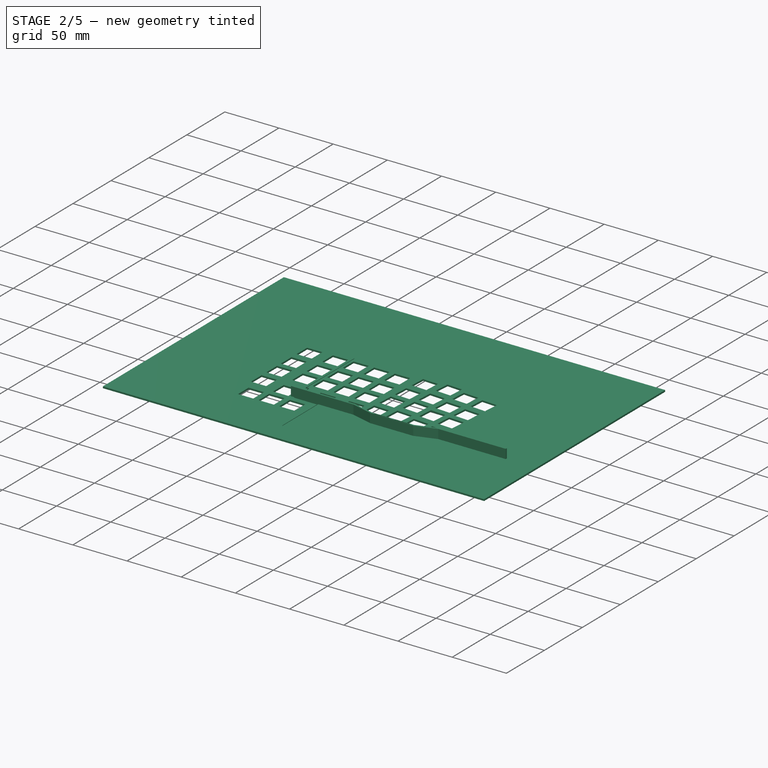
[diagram: stage 2 of 5 — iso view after this stage's code; geometry added in this stage tinted green]
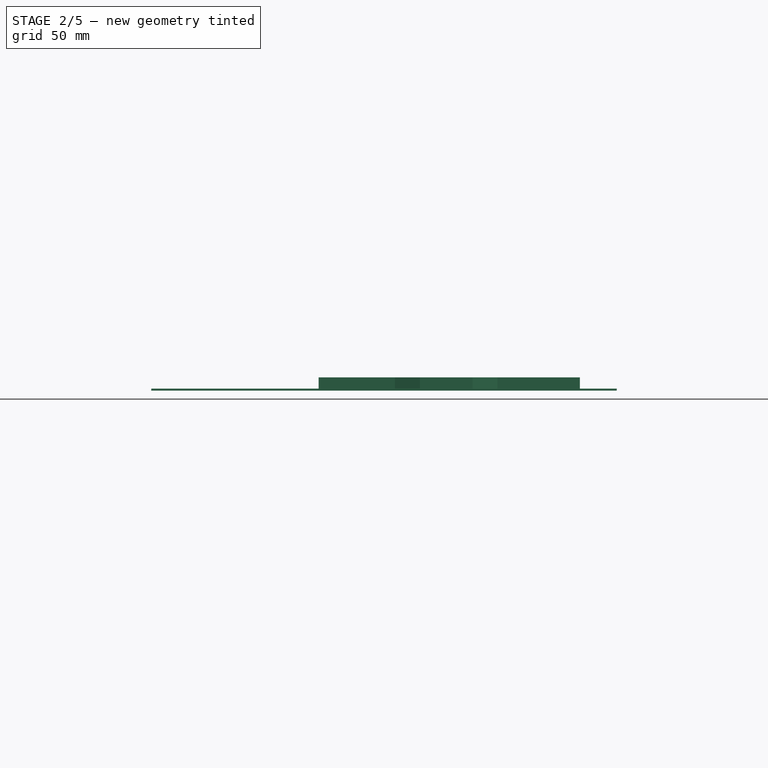
[diagram: stage 2 of 5 — front view after this stage's code; geometry added in this stage tinted green]
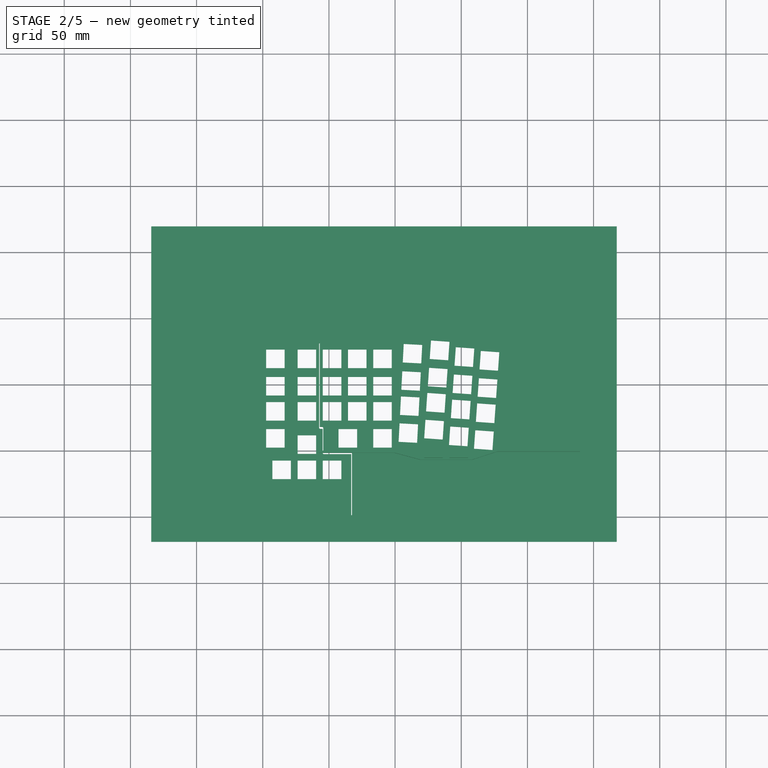
[diagram: stage 2 of 5 — top view after this stage's code; geometry added in this stage tinted green]
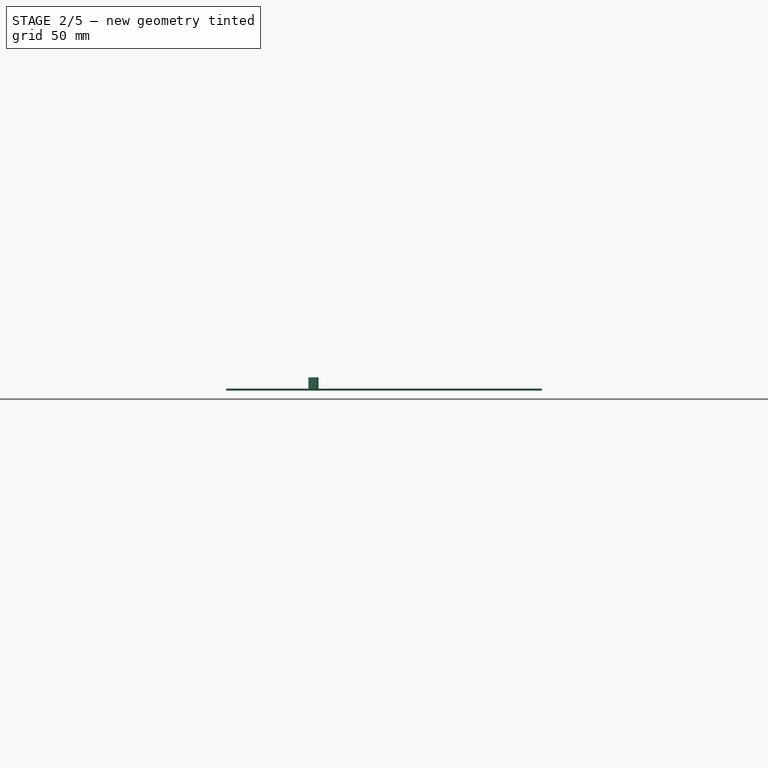
[diagram: stage 2 of 5 — right view after this stage's code; geometry added in this stage tinted green]
FEATURE [Sketcher::SketchObject] Sketch022  label="R_C2Sketch"
  FullyConstrained = false
  Placement = pos=(19.1983,5.99691,0) rot=(0,0,-1;0.069813rad)
  expr: .Placement.Base.x = Spreadsheet.C2Placement_X
  expr: .Placement.Base.y = Spreadsheet.C2Placement_Y
  expr: .Placement.Rotation.Angle = Spreadsheet.C3Angle_Cum
  expr: Constraints[104] = Spreadsheet.C2ExtraLength
  expr: Constraints[92] = Spreadsheet.OneU
  expr: Constraints[93] = Spreadsheet.OneUCutout
  expr: Constraints[94] = Spreadsheet.OneU
  expr: Constraints[96] = Spreadsheet.OneU
  expr: Constraints[98] = 2 * Spreadsheet.R1BendAllowance + Spreadsheet.R1ConcaveBendDeduction
  expr: Constraints[99] = 2 * Spreadsheet.R4BendAllowance + Spreadsheet.R4ConcaveBendDeduction
  sketch-geometry (43):
    g0: LineSegment StartX=19.05 StartY=1.24698 StartZ=0 EndX=19.05 EndY=20.297 EndZ=0
    g1: LineSegment StartX=19.05 StartY=1.24698 StartZ=0 EndX=0 EndY=20.297 EndZ=0
    g2: LineSegment StartX=19.05 StartY=20.297 StartZ=0 EndX=0 EndY=1.24698 EndZ=0
    g3: GeomPoint X=9.525 Y=10.772 Z=0
    g4: LineSegment StartX=16.525 StartY=17.772 StartZ=0 EndX=16.525 EndY=3.77198 EndZ=0
    g5: LineSegment StartX=16.525 StartY=3.77198 StartZ=0 EndX=2.525 EndY=3.77198 EndZ=0
    g6: LineSegment StartX=2.525 StartY=3.77198 StartZ=0 EndX=2.525 EndY=17.772 EndZ=0
    g7: LineSegment StartX=2.525 StartY=17.772 StartZ=0 EndX=16.525 EndY=17.772 EndZ=0
    g8: GeomPoint X=9.525 Y=10.772 Z=0
    g9: LineSegment StartX=0 StartY=59.7045 StartZ=0 EndX=212.591 EndY=59.7045 EndZ=0
    g10: LineSegment StartX=0 StartY=40.6545 StartZ=0 EndX=215.084 EndY=40.6545 EndZ=0
    g11: LineSegment StartX=19.05 StartY=40.6545 StartZ=0 EndX=19.05 EndY=59.7045 EndZ=0
    g12: LineSegment StartX=19.05 StartY=40.6545 StartZ=0 EndX=0 EndY=59.7045 EndZ=0
    g13: LineSegment StartX=0 StartY=40.6545 StartZ=0 EndX=19.05 EndY=59.7045 EndZ=0
    g14: GeomPoint X=9.525 Y=50.1795 Z=0
    g15: LineSegment StartX=2.525 StartY=57.1795 StartZ=0 EndX=2.525 EndY=43.1795 EndZ=0
    g16: LineSegment StartX=2.525 StartY=43.1795 StartZ=0 EndX=16.525 EndY=43.1795 EndZ=0
    g17: LineSegment StartX=16.525 StartY=43.1795 StartZ=0 EndX=16.525 EndY=57.1795 EndZ=0
    g18: LineSegment StartX=16.525 StartY=57.1795 StartZ=0 EndX=2.525 EndY=57.1795 EndZ=0
    g19: GeomPoint X=9.525 Y=50.1795 Z=0
    g20: LineSegment StartX=0 StartY=21.6045 StartZ=0 EndX=179.525 EndY=21.6045 EndZ=0
    g21: LineSegment StartX=19.05 StartY=40.6545 StartZ=0 EndX=19.05 EndY=21.6045 EndZ=0
    g22: LineSegment StartX=19.05 StartY=21.6045 StartZ=0 EndX=0 EndY=40.6545 EndZ=0
    g23: LineSegment StartX=0 StartY=21.6045 StartZ=0 EndX=19.05 EndY=40.6545 EndZ=0
    g24: GeomPoint X=9.525 Y=31.1295 Z=0
    g25: LineSegment StartX=16.525 StartY=38.1295 StartZ=0 EndX=16.525 EndY=24.1295 EndZ=0
    g26: LineSegment StartX=16.525 StartY=24.1295 StartZ=0 EndX=2.525 EndY=24.1295 EndZ=0
    g27: LineSegment StartX=2.525 StartY=24.1295 StartZ=0 EndX=2.525 EndY=38.1295 EndZ=0
    g28: LineSegment StartX=2.525 StartY=38.1295 StartZ=0 EndX=16.525 EndY=38.1295 EndZ=0
    g29: GeomPoint X=9.525 Y=31.1295 Z=0
    g30: LineSegment StartX=0 StartY=80.3657 StartZ=0 EndX=171.32 EndY=80.3657 EndZ=0
    g31: LineSegment StartX=0 StartY=61.3157 StartZ=0 EndX=169.092 EndY=61.3157 EndZ=0
    g32: LineSegment StartX=19.05 StartY=80.3657 StartZ=0 EndX=19.05 EndY=61.3157 EndZ=0
    g33: LineSegment StartX=19.05 StartY=61.3157 StartZ=0 EndX=0 EndY=80.3657 EndZ=0
    g34: LineSegment StartX=19.05 StartY=80.3657 StartZ=0 EndX=0 EndY=61.3157 EndZ=0
    g35: GeomPoint X=9.525 Y=70.8407 Z=0
    g36: LineSegment StartX=2.525 StartY=77.8407 StartZ=0 EndX=2.525 EndY=63.8407 EndZ=0
    g37: LineSegment StartX=2.525 StartY=63.8407 StartZ=0 EndX=16.525 EndY=63.8407 EndZ=0
    g38: LineSegment StartX=16.525 StartY=63.8407 StartZ=0 EndX=16.525 EndY=77.8407 EndZ=0
    g39: LineSegment StartX=16.525 StartY=77.8407 StartZ=0 EndX=2.525 EndY=77.8407 EndZ=0
    g40: GeomPoint X=9.525 Y=70.8407 Z=0
    g41: LineSegment StartX=0 StartY=20.297 StartZ=0 EndX=200.551 EndY=20.297 EndZ=0
    g42: LineSegment StartX=0 StartY=1.24698 StartZ=0 EndX=47.9971 EndY=1.24698 EndZ=0
  constraints (105):
    c: Symmetric(g0,g2,g1)
    c: Coincident(g2,g0)
    c: PointOnObject(g3,g1)
    c: PointOnObject(g3,g2)
    c: Coincident(g4,g5)
    c: Coincident(g5,g6)
    c: Coincident(g6,g7)
    c: Coincident(g7,g4)
    c: Horizontal(g5)
    c: Horizontal(g7)
    c: Vertical(g4)
    c: Vertical(g6)
    c: Symmetric(g5,g4,g8)
    c: Coincident(g8,g3)
    c: PointOnObject(g4,g1)
    c: Horizontal(g9)
    c: Horizontal(g10)
    c: PointOnObject(g11,g10)
    c: PointOnObject(g11,g9)
    c: Coincident(g12,g11)
    c: Coincident(g12,g9)
    c: Coincident(g13,g10)
    c: Coincident(g13,g11)
    c: PointOnObject(g14,g12)
    c: PointOnObject(g14,g13)
    c: Symmetric(g10,g11,g12)
    c: Coincident(g15,g16)
    c: Coincident(g16,g17)
    c: Coincident(g17,g18)
    c: Coincident(g18,g15)
    c: Horizontal(g16)
    c: Horizontal(g18)
    c: Vertical(g15)
    c: Vertical(g17)
    c: Symmetric(g16,g15,g19)
    c: Coincident(g19,g14)
    c: PointOnObject(g16,g12)
    c: Horizontal(g20)
    c: Coincident(g21,g11)
    c: PointOnObject(g21,g20)
    c: Vertical(g21)
    c: Coincident(g22,g21)
    c: Coincident(g22,g10)
    c: Coincident(g23,g20)
    c: Coincident(g23,g11)
    c: Equal(g11,g21)
    c: PointOnObject(g24,g22)
    c: PointOnObject(g24,g23)
    c: Coincident(g25,g26)
    c: Coincident(g26,g27)
    c: Coincident(g27,g28)
    c: Coincident(g28,g25)
    c: Horizontal(g26)
    c: Horizontal(g28)
    c: Vertical(g25)
    c: Vertical(g27)
    c: Symmetric(g26,g25,g29)
    c: Coincident(g29,g24)
    c: PointOnObject(g25,g22)
    c: Equal(g16,g28)
    c: Horizontal(g30)
    c: Horizontal(g31)
    c: PointOnObject(g32,g30)
    c: PointOnObject(g32,g31)
    c: Coincident(g33,g32)
    c: Coincident(g33,g30)
    c: Coincident(g34,g32)
    c: Coincident(g34,g31)
    c: Symmetric(g31,g32,g33)
    c: PointOnObject(g35,g33)
    c: PointOnObject(g35,g34)
    c: Coincident(g36,g37)
    c: Coincident(g37,g38)
    c: Coincident(g38,g39)
    c: Coincident(g39,g36)
    c: Horizontal(g37)
    c: Horizontal(g39)
    c: Vertical(g36)
    c: Vertical(g38)
    c: Symmetric(g37,g36,g40)
    c: Coincident(g40,g35)
    c: PointOnObject(g37,g33)
    c: PointOnObject(g31,g-2)
    c: PointOnObject(g30,g-2)
    c: PointOnObject(g20,g-2)
    c: PointOnObject(g10,g-2)
    c: PointOnObject(g9,g-2)
    c: PointOnObject(g41,g-2)
    c: Horizontal(g41)
    c: Coincident(g1,g41)
    c: PointOnObject(g0,g41)
    c: Coincident(g0,g1)
    c: DistanceY(g2,g1) = 19.05
    c: DistanceX(g5,g5) = 14
    c: DistanceY(g20,g10) = 19.05
    c: Equal(g7,g26)
    c: DistanceY(g31,g30) = 19.05
    c: Equal(g37,g7)
    c: DistanceY(g1,g20) = 1.30757
    c: DistanceY(g9,g31) = 1.61119
    c: PointOnObject(g2,g-2)
    c: Coincident(g42,g2)
    c: Horizontal(g42)
    c: PointOnObject(g0,g42)
    c: DistanceY(g-1,g2) = 1.24698
FEATURE [PartDesign::Pocket] Pocket007
  BaseFeature = -> Pocket006
  Direction = (0,0,-1)
  Length = 5
  Length2 = 5
  Midplane = true
  Profile = -> Sketch022
  ReferenceAxis = -> Sketch022 [N_Axis]
  Type = 1
FEATURE [Sketcher::SketchObject] Sketch023  label="R_C1Sketch"
  FullyConstrained = false
  Placement = pos=(38.0275,2.17414,0) rot=(0,0,-1;0.069813rad)
  expr: .Placement.Base.x = Spreadsheet.C1Placement_X
  expr: .Placement.Base.y = Spreadsheet.C1Placement_Y
  expr: .Placement.Rotation.Angle = Spreadsheet.C3Angle_Cum
  expr: Constraints[100] = 2 * Spreadsheet.R1BendAllowance + Spreadsheet.R1ConcaveBendDeduction
  expr: Constraints[101] = 2 * Spreadsheet.R4BendAllowance + Spreadsheet.R4ConcaveBendDeduction
  expr: Constraints[94] = Spreadsheet.OneU
  expr: Constraints[95] = Spreadsheet.OneUCutout
  expr: Constraints[96] = Spreadsheet.OneU
  expr: Constraints[98] = Spreadsheet.OneU
  sketch-geometry (42):
    g0: LineSegment StartX=19.05 StartY=0 StartZ=0 EndX=19.05 EndY=19.05 EndZ=0
    g1: LineSegment StartX=19.05 StartY=0 StartZ=0 EndX=0 EndY=19.05 EndZ=0
    g2: LineSegment StartX=19.05 StartY=19.05 StartZ=0 EndX=0 EndY=0 EndZ=0
    g3: GeomPoint X=9.525 Y=9.525 Z=0
    g4: LineSegment StartX=16.525 StartY=16.525 StartZ=0 EndX=16.525 EndY=2.525 EndZ=0
    g5: LineSegment StartX=16.525 StartY=2.525 StartZ=0 EndX=2.525 EndY=2.525 EndZ=0
    g6: LineSegment StartX=2.525 StartY=2.525 StartZ=0 EndX=2.525 EndY=16.525 EndZ=0
    g7: LineSegment StartX=2.525 StartY=16.525 StartZ=0 EndX=16.525 EndY=16.525 EndZ=0
    g8: GeomPoint X=9.525 Y=9.525 Z=0
    g9: LineSegment StartX=0 StartY=58.4576 StartZ=0 EndX=212.591 EndY=58.4576 EndZ=0
    g10: LineSegment StartX=0 StartY=39.4076 StartZ=0 EndX=215.084 EndY=39.4076 EndZ=0
    g11: LineSegment StartX=19.05 StartY=39.4076 StartZ=0 EndX=19.05 EndY=58.4576 EndZ=0
    g12: LineSegment StartX=19.05 StartY=39.4076 StartZ=0 EndX=0 EndY=58.4576 EndZ=0
    g13: LineSegment StartX=0 StartY=39.4076 StartZ=0 EndX=19.05 EndY=58.4576 EndZ=0
    g14: GeomPoint X=9.525 Y=48.9326 Z=0
    g15: LineSegment StartX=2.525 StartY=55.9326 StartZ=0 EndX=2.525 EndY=41.9326 EndZ=0
    g16: LineSegment StartX=2.525 StartY=41.9326 StartZ=0 EndX=16.525 EndY=41.9326 EndZ=0
    g17: LineSegment StartX=16.525 StartY=41.9326 StartZ=0 EndX=16.525 EndY=55.9326 EndZ=0
    g18: LineSegment StartX=16.525 StartY=55.9326 StartZ=0 EndX=2.525 EndY=55.9326 EndZ=0
    g19: GeomPoint X=9.525 Y=48.9326 Z=0
    g20: LineSegment StartX=0 StartY=20.3576 StartZ=0 EndX=179.525 EndY=20.3576 EndZ=0
    g21: LineSegment StartX=19.05 StartY=39.4076 StartZ=0 EndX=19.05 EndY=20.3576 EndZ=0
    g22: LineSegment StartX=19.05 StartY=20.3576 StartZ=0 EndX=0 EndY=39.4076 EndZ=0
    g23: LineSegment StartX=0 StartY=20.3576 StartZ=0 EndX=19.05 EndY=39.4076 EndZ=0
    g24: GeomPoint X=9.525 Y=29.8826 Z=0
    g25: LineSegment StartX=16.525 StartY=36.8826 StartZ=0 EndX=16.525 EndY=22.8826 EndZ=0
    g26: LineSegment StartX=16.525 StartY=22.8826 StartZ=0 EndX=2.525 EndY=22.8826 EndZ=0
    g27: LineSegment StartX=2.525 StartY=22.8826 StartZ=0 EndX=2.525 EndY=36.8826 EndZ=0
    g28: LineSegment StartX=2.525 StartY=36.8826 StartZ=0 EndX=16.525 EndY=36.8826 EndZ=0
    g29: GeomPoint X=9.525 Y=29.8826 Z=0
    g30: LineSegment StartX=0 StartY=79.1188 StartZ=0 EndX=171.32 EndY=79.1188 EndZ=0
    g31: LineSegment StartX=0 StartY=60.0688 StartZ=0 EndX=169.092 EndY=60.0688 EndZ=0
    g32: LineSegment StartX=19.05 StartY=79.1188 StartZ=0 EndX=19.05 EndY=60.0688 EndZ=0
    g33: LineSegment StartX=19.05 StartY=60.0688 StartZ=0 EndX=0 EndY=79.1188 EndZ=0
    g34: LineSegment StartX=19.05 StartY=79.1188 StartZ=0 EndX=0 EndY=60.0688 EndZ=0
    g35: GeomPoint X=9.525 Y=69.5938 Z=0
    g36: LineSegment StartX=2.525 StartY=76.5938 StartZ=0 EndX=2.525 EndY=62.5938 EndZ=0
    g37: LineSegment StartX=2.525 StartY=62.5938 StartZ=0 EndX=16.525 EndY=62.5938 EndZ=0
    g38: LineSegment StartX=16.525 StartY=62.5938 StartZ=0 EndX=16.525 EndY=76.5938 EndZ=0
    g39: LineSegment StartX=16.525 StartY=76.5938 StartZ=0 EndX=2.525 EndY=76.5938 EndZ=0
    g40: GeomPoint X=9.525 Y=69.5938 Z=0
    g41: LineSegment StartX=0 StartY=19.05 StartZ=0 EndX=200.551 EndY=19.05 EndZ=0
  constraints (102):
    c: Symmetric(g0,g2,g1)
    c: Coincident(g2,g0)
    c: PointOnObject(g3,g1)
    c: PointOnObject(g3,g2)
    c: Coincident(g4,g5)
    c: Coincident(g5,g6)
    c: Coincident(g6,g7)
    c: Coincident(g7,g4)
    c: Horizontal(g5)
    c: Horizontal(g7)
    c: Vertical(g4)
    c: Vertical(g6)
    c: Symmetric(g5,g4,g8)
    c: Coincident(g8,g3)
    c: PointOnObject(g4,g1)
    c: Horizontal(g9)
    c: Horizontal(g10)
    c: PointOnObject(g11,g10)
    c: PointOnObject(g11,g9)
    c: Coincident(g12,g11)
    c: Coincident(g12,g9)
    c: Coincident(g13,g10)
    c: Coincident(g13,g11)
    c: PointOnObject(g14,g12)
    c: PointOnObject(g14,g13)
    c: Symmetric(g10,g11,g12)
    c: Coincident(g15,g16)
    c: Coincident(g16,g17)
    c: Coincident(g17,g18)
    c: Coincident(g18,g15)
    c: Horizontal(g16)
    c: Horizontal(g18)
    c: Vertical(g15)
    c: Vertical(g17)
    c: Symmetric(g16,g15,g19)
    c: Coincident(g19,g14)
    c: PointOnObject(g16,g12)
    c: Horizontal(g20)
    c: Coincident(g21,g11)
    c: PointOnObject(g21,g20)
    c: Vertical(g21)
    c: Coincident(g22,g21)
    c: Coincident(g22,g10)
    c: Coincident(g23,g20)
    c: Coincident(g23,g11)
    c: Equal(g11,g21)
    c: PointOnObject(g24,g22)
    c: PointOnObject(g24,g23)
    c: Coincident(g25,g26)
    c: Coincident(g26,g27)
    c: Coincident(g27,g28)
    c: Coincident(g28,g25)
    c: Horizontal(g26)
    c: Horizontal(g28)
    c: Vertical(g25)
    c: Vertical(g27)
    c: Symmetric(g26,g25,g29)
    c: Coincident(g29,g24)
    c: PointOnObject(g25,g22)
    c: Equal(g16,g28)
    c: Horizontal(g30)
    c: Horizontal(g31)
    c: PointOnObject(g32,g30)
    c: PointOnObject(g32,g31)
    c: Coincident(g33,g32)
    c: Coincident(g33,g30)
    c: Coincident(g34,g32)
    c: Coincident(g34,g31)
    c: Symmetric(g31,g32,g33)
    c: PointOnObject(g35,g33)
    c: PointOnObject(g35,g34)
    c: Coincident(g36,g37)
    c: Coincident(g37,g38)
    c: Coincident(g38,g39)
    c: Coincident(g39,g36)
    c: Horizontal(g37)
    c: Horizontal(g39)
    c: Vertical(g36)
    c: Vertical(g38)
    c: Symmetric(g37,g36,g40)
    c: Coincident(g40,g35)
    c: PointOnObject(g37,g33)
    c: PointOnObject(g31,g-2)
    c: PointOnObject(g30,g-2)
    c: PointOnObject(g20,g-2)
    c: PointOnObject(g10,g-2)
    c: PointOnObject(g9,g-2)
    c: Coincident(g2,g-1)
    c: PointOnObject(g41,g-2)
    c: Horizontal(g41)
    c: Coincident(g1,g41)
    c: PointOnObject(g0,g41)
    c: Coincident(g0,g1)
    c: PointOnObject(g0,g-1)
    c: DistanceY(g2,g1) = 19.05
    c: DistanceX(g5,g5) = 14
    c: DistanceY(g20,g10) = 19.05
    c: Equal(g7,g26)
    c: DistanceY(g31,g30) = 19.05
    c: Equal(g37,g7)
    c: DistanceY(g1,g20) = 1.30757
    c: DistanceY(g9,g31) = 1.61119
FEATURE [PartDesign::Pocket] Pocket008
  BaseFeature = -> Pocket007
  Direction = (0,0,-1)
  Length = 5
  Length2 = 5
  Midplane = true
  Profile = -> Sketch023
  ReferenceAxis = -> Sketch023 [N_Axis]
  Type = 1
FEATURE [Sketcher::SketchObject] Sketch024  label="R_C0Sketch"
  FullyConstrained = false
  Placement = pos=(56.9264,-0.651068,0) rot=(0,0,-1;0.069813rad)
  expr: .Placement.Base.x = Spreadsheet.C0Placement_X
  expr: .Placement.Base.y = Spreadsheet.C0Placement_Y
  expr: .Placement.Rotation.Angle = Spreadsheet.C3Angle_Cum
  expr: Constraints[100] = 2 * Spreadsheet.R1BendAllowance + Spreadsheet.R1ConcaveBendDeduction
  expr: Constraints[101] = 2 * Spreadsheet.R4BendAllowance + Spreadsheet.R4ConcaveBendDeduction
  expr: Constraints[94] = Spreadsheet.OneU
  expr: Constraints[95] = Spreadsheet.OneUCutout
  expr: Constraints[96] = Spreadsheet.OneU
  expr: Constraints[98] = Spreadsheet.OneU
  sketch-geometry (42):
    g0: LineSegment StartX=19.05 StartY=0 StartZ=0 EndX=19.05 EndY=19.05 EndZ=0
    g1: LineSegment StartX=19.05 StartY=0 StartZ=0 EndX=0 EndY=19.05 EndZ=0
    g2: LineSegment StartX=19.05 StartY=19.05 StartZ=0 EndX=0 EndY=0 EndZ=0
    g3: GeomPoint X=9.525 Y=9.525 Z=0
    g4: LineSegment StartX=16.525 StartY=16.525 StartZ=0 EndX=16.525 EndY=2.525 EndZ=0
    g5: LineSegment StartX=16.525 StartY=2.525 StartZ=0 EndX=2.525 EndY=2.525 EndZ=0
    g6: LineSegment StartX=2.525 StartY=2.525 StartZ=0 EndX=2.525 EndY=16.525 EndZ=0
    g7: LineSegment StartX=2.525 StartY=16.525 StartZ=0 EndX=16.525 EndY=16.525 EndZ=0
    g8: GeomPoint X=9.525 Y=9.525 Z=0
    g9: LineSegment StartX=0 StartY=58.4576 StartZ=0 EndX=212.591 EndY=58.4576 EndZ=0
    g10: LineSegment StartX=0 StartY=39.4076 StartZ=0 EndX=215.084 EndY=39.4076 EndZ=0
    g11: LineSegment StartX=19.05 StartY=39.4076 StartZ=0 EndX=19.05 EndY=58.4576 EndZ=0
    g12: LineSegment StartX=19.05 StartY=39.4076 StartZ=0 EndX=0 EndY=58.4576 EndZ=0
    g13: LineSegment StartX=0 StartY=39.4076 StartZ=0 EndX=19.05 EndY=58.4576 EndZ=0
    g14: GeomPoint X=9.525 Y=48.9326 Z=0
    g15: LineSegment StartX=2.525 StartY=55.9326 StartZ=0 EndX=2.525 EndY=41.9326 EndZ=0
    g16: LineSegment StartX=2.525 StartY=41.9326 StartZ=0 EndX=16.525 EndY=41.9326 EndZ=0
    g17: LineSegment StartX=16.525 StartY=41.9326 StartZ=0 EndX=16.525 EndY=55.9326 EndZ=0
    g18: LineSegment StartX=16.525 StartY=55.9326 StartZ=0 EndX=2.525 EndY=55.9326 EndZ=0
    g19: GeomPoint X=9.525 Y=48.9326 Z=0
    g20: LineSegment StartX=0 StartY=20.3576 StartZ=0 EndX=179.525 EndY=20.3576 EndZ=0
    g21: LineSegment StartX=19.05 StartY=39.4076 StartZ=0 EndX=19.05 EndY=20.3576 EndZ=0
    g22: LineSegment StartX=19.05 StartY=20.3576 StartZ=0 EndX=0 EndY=39.4076 EndZ=0
    g23: LineSegment StartX=0 StartY=20.3576 StartZ=0 EndX=19.05 EndY=39.4076 EndZ=0
    g24: GeomPoint X=9.525 Y=29.8826 Z=0
    g25: LineSegment StartX=16.525 StartY=36.8826 StartZ=0 EndX=16.525 EndY=22.8826 EndZ=0
    g26: LineSegment StartX=16.525 StartY=22.8826 StartZ=0 EndX=2.525 EndY=22.8826 EndZ=0
    g27: LineSegment StartX=2.525 StartY=22.8826 StartZ=0 EndX=2.525 EndY=36.8826 EndZ=0
    g28: LineSegment StartX=2.525 StartY=36.8826 StartZ=0 EndX=16.525 EndY=36.8826 EndZ=0
    g29: GeomPoint X=9.525 Y=29.8826 Z=0
    g30: LineSegment StartX=0 StartY=79.1188 StartZ=0 EndX=171.32 EndY=79.1188 EndZ=0
    g31: LineSegment StartX=0 StartY=60.0688 StartZ=0 EndX=169.092 EndY=60.0688 EndZ=0
    g32: LineSegment StartX=19.05 StartY=79.1188 StartZ=0 EndX=19.05 EndY=60.0688 EndZ=0
    g33: LineSegment StartX=19.05 StartY=60.0688 StartZ=0 EndX=0 EndY=79.1188 EndZ=0
    g34: LineSegment StartX=19.05 StartY=79.1188 StartZ=0 EndX=0 EndY=60.0688 EndZ=0
    g35: GeomPoint X=9.525 Y=69.5938 Z=0
    g36: LineSegment StartX=2.525 StartY=76.5938 StartZ=0 EndX=2.525 EndY=62.5938 EndZ=0
    g37: LineSegment StartX=2.525 StartY=62.5938 StartZ=0 EndX=16.525 EndY=62.5938 EndZ=0
    g38: LineSegment StartX=16.525 StartY=62.5938 StartZ=0 EndX=16.525 EndY=76.5938 EndZ=0
    g39: LineSegment StartX=16.525 StartY=76.5938 StartZ=0 EndX=2.525 EndY=76.5938 EndZ=0
    g40: GeomPoint X=9.525 Y=69.5938 Z=0
    g41: LineSegment StartX=0 StartY=19.05 StartZ=0 EndX=200.551 EndY=19.05 EndZ=0
  constraints (102):
    c: Symmetric(g0,g2,g1)
    c: Coincident(g2,g0)
    c: PointOnObject(g3,g1)
    c: PointOnObject(g3,g2)
    c: Coincident(g4,g5)
    c: Coincident(g5,g6)
    c: Coincident(g6,g7)
    c: Coincident(g7,g4)
    c: Horizontal(g5)
    c: Horizontal(g7)
    c: Vertical(g4)
    c: Vertical(g6)
    c: Symmetric(g5,g4,g8)
    c: Coincident(g8,g3)
    c: PointOnObject(g4,g1)
    c: Horizontal(g9)
    c: Horizontal(g10)
    c: PointOnObject(g11,g10)
    c: PointOnObject(g11,g9)
    c: Coincident(g12,g11)
    c: Coincident(g12,g9)
    c: Coincident(g13,g10)
    c: Coincident(g13,g11)
    c: PointOnObject(g14,g12)
    c: PointOnObject(g14,g13)
    c: Symmetric(g10,g11,g12)
    c: Coincident(g15,g16)
    c: Coincident(g16,g17)
    c: Coincident(g17,g18)
    c: Coincident(g18,g15)
    c: Horizontal(g16)
    c: Horizontal(g18)
    c: Vertical(g15)
    c: Vertical(g17)
    c: Symmetric(g16,g15,g19)
    c: Coincident(g19,g14)
    c: PointOnObject(g16,g12)
    c: Horizontal(g20)
    c: Coincident(g21,g11)
    c: PointOnObject(g21,g20)
    c: Vertical(g21)
    c: Coincident(g22,g21)
    c: Coincident(g22,g10)
    c: Coincident(g23,g20)
    c: Coincident(g23,g11)
    c: Equal(g11,g21)
    c: PointOnObject(g24,g22)
    c: PointOnObject(g24,g23)
    c: Coincident(g25,g26)
    c: Coincident(g26,g27)
    c: Coincident(g27,g28)
    c: Coincident(g28,g25)
    c: Horizontal(g26)
    c: Horizontal(g28)
    c: Vertical(g25)
    c: Vertical(g27)
    c: Symmetric(g26,g25,g29)
    c: Coincident(g29,g24)
    c: PointOnObject(g25,g22)
    c: Equal(g16,g28)
    c: Horizontal(g30)
    c: Horizontal(g31)
    c: PointOnObject(g32,g30)
    c: PointOnObject(g32,g31)
    c: Coincident(g33,g32)
    c: Coincident(g33,g30)
    c: Coincident(g34,g32)
    c: Coincident(g34,g31)
    c: Symmetric(g31,g32,g33)
    c: PointOnObject(g35,g33)
    c: PointOnObject(g35,g34)
    c: Coincident(g36,g37)
    c: Coincident(g37,g38)
    c: Coincident(g38,g39)
    c: Coincident(g39,g36)
    c: Horizontal(g37)
    c: Horizontal(g39)
    c: Vertical(g36)
    c: Vertical(g38)
    c: Symmetric(g37,g36,g40)
    c: Coincident(g40,g35)
    c: PointOnObject(g37,g33)
    c: PointOnObject(g31,g-2)
    c: PointOnObject(g30,g-2)
    c: PointOnObject(g20,g-2)
    c: PointOnObject(g10,g-2)
    c: PointOnObject(g9,g-2)
    c: Coincident(g2,g-1)
    c: PointOnObject(g41,g-2)
    c: Horizontal(g41)
    c: Coincident(g1,g41)
    c: PointOnObject(g0,g41)
    c: Coincident(g0,g1)
    c: PointOnObject(g0,g-1)
    c: DistanceY(g2,g1) = 19.05
    c: DistanceX(g5,g5) = 14
    c: DistanceY(g20,g10) = 19.05
    c: Equal(g7,g26)
    c: DistanceY(g31,g30) = 19.05
    c: Equal(g37,g7)
    c: DistanceY(g1,g20) = 1.30757
    c: DistanceY(g9,g31) = 1.61119
FEATURE [PartDesign::Pocket] Pocket009
  BaseFeature = -> Pocket008
  Direction = (0,0,-1)
  Length = 5
  Length2 = 5
  Midplane = true
  Profile = -> Sketch024
  ReferenceAxis = -> Sketch024 [N_Axis]
  Type = 1
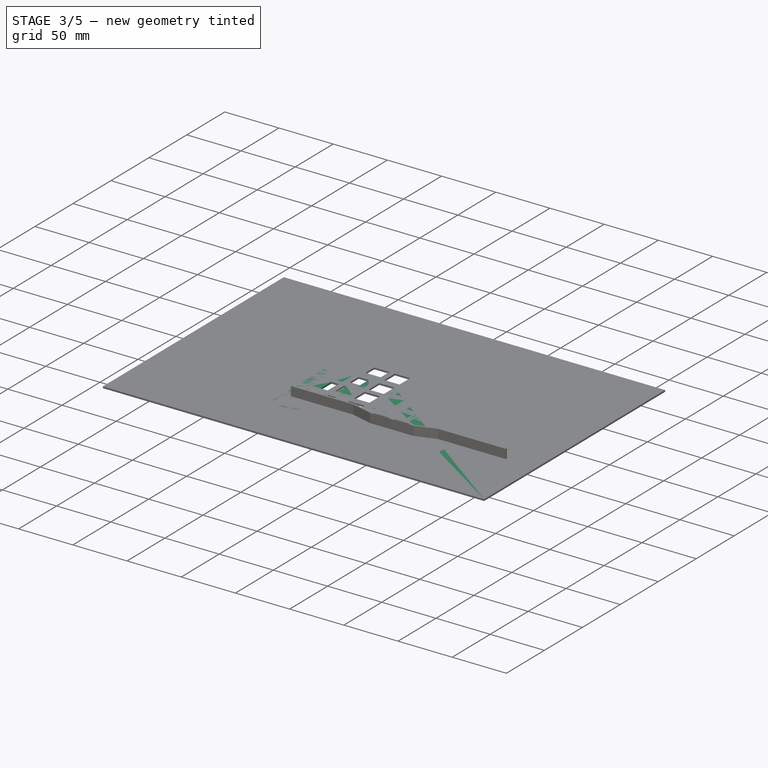
[diagram: stage 3 of 5 — iso view after this stage's code; geometry added in this stage tinted green]
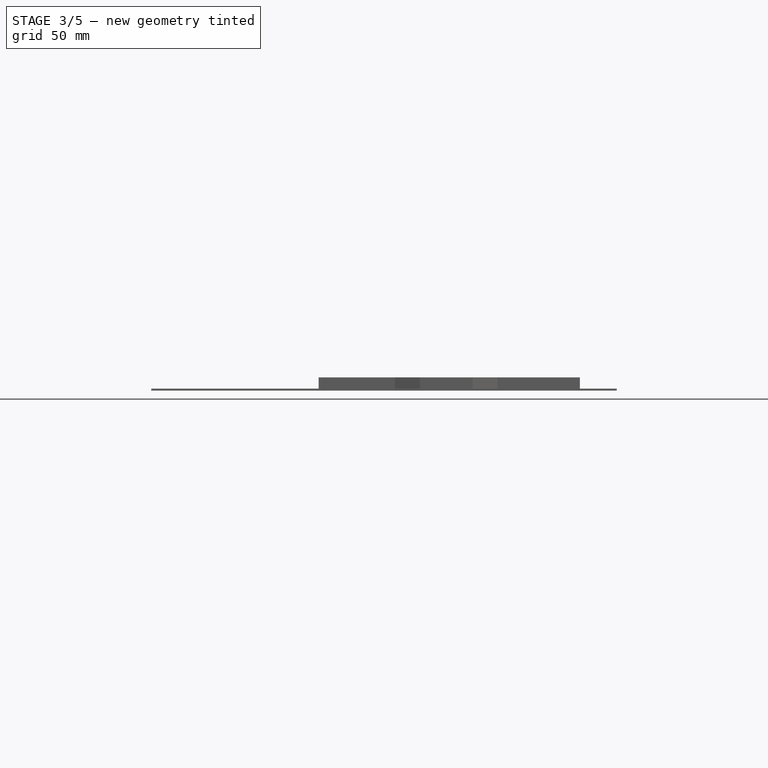
[diagram: stage 3 of 5 — front view after this stage's code; geometry added in this stage tinted green]
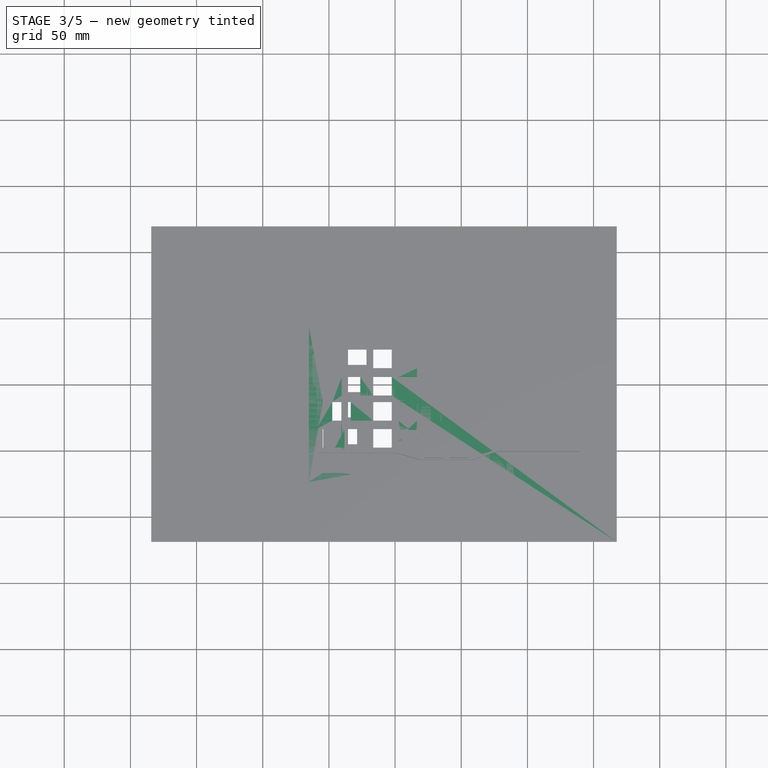
[diagram: stage 3 of 5 — top view after this stage's code; geometry added in this stage tinted green]
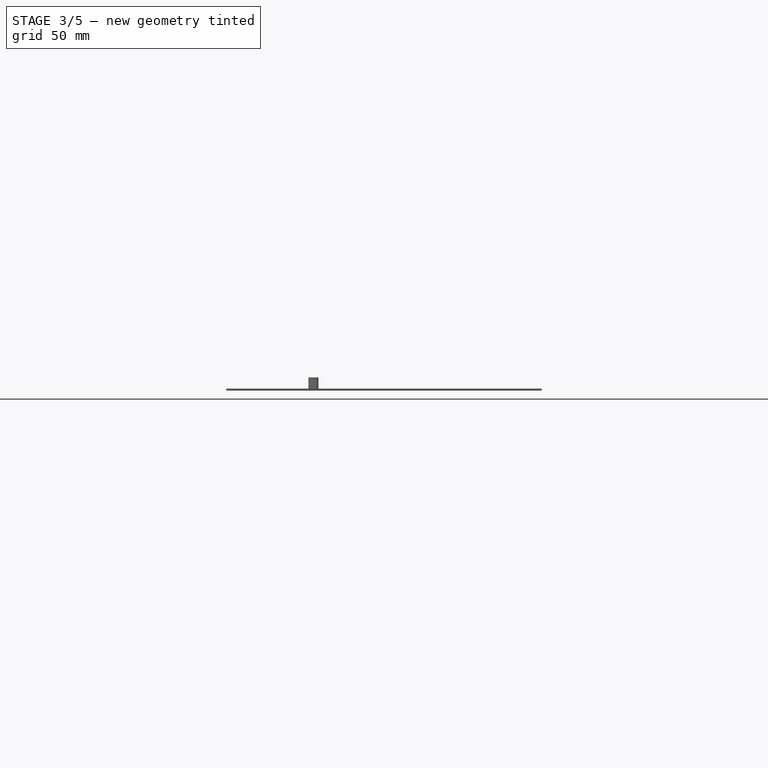
[diagram: stage 3 of 5 — right view after this stage's code; geometry added in this stage tinted green]
FEATURE [Spreadsheet::Sheet] Spreadsheet
  cells = A1=1u; B1(OneU)==19.05 mm; C1=1u cutout; D1(OneUCutout)==14 mm; A2=Row 1 angle; B2(R1Angle)==13 deg; A3=Row 4 angle; B3(R4Angle)==16 deg; A4=Key to plate height (key base); B4(KeyToPlate)==5 mm; A5=Plate thickness; B5(PlateThickness)==1.5 mm; A6=Cutout width; B6(CutoutWidth)==0.5 mm; C6=Relief depth; D6(ReliefDepth)==0.25 mm; A8=Col 4 angle (between col 4 and col 3); B8(C4Angle)==3 deg; C8=cum angle:; A9=Col 3 angle (between col 3 and col 2); B9(C3Angle)==1 deg; C9(C3Angle_Cum)==B9 + B8; A12=Col 3 stagger (step up to col 3 from col 4); B12(C3Stagger)==4.5 mm; A13=Col 2 stagger (step up to col 2 from col 3); B13(C2Stagger)==2.5 mm; C13=Col 2 V stagger; D13(C2VStagger)==3 mm; A14=Col 1 stagger (step down to col 1 from col 2); B14(C1Stagger)==2.5 mm; A15=Col 0 stagger (step down to col 0 from col 1); B15(C0Stagger)==1.5 mm; A17=C2 extra bend angle; B17(C2ExtraAngle)==60 deg; A20=Row 1 bend allowance; B20(R1BendAllowance)==tan(R1Angle / 2) * KeyToPlate; C20=<- extra gap to add on each side of bend between the flush 1U units going from row 1 to row 2; D20=Row 1 recess; E20==(OneU + R1BendAllowance) * sin(R1Angle); F20=<- amount by which R1 bases raised; A21=Row 4 bend allowance; B21(R4BendAllowance)==tan(R4Angle / 2) * KeyToPlate; D21=Row 4 recess; E21==(OneU + R4BendAllowance) * sin(R4Angle); D22=R0 key height; E22==7.5 mm; A23=k-factor; B23(KFactor)=0.5; D23=Numpad C0 angle; E23(NumpadC0Angle)==6.7 deg; A24=bend inside radius; B24(BendInsideR)==2 mm; D24=Numpad C0 bend allowance; E24(NumpadC0BendAllowance)==tan(NumpadC0Angle / 2) * KeyToPlate; A25=Row 1 concave bend gap; B25(R1ConcaveBendDeduction)==-2 * BendInsideR * tan(R1Angle / 2) + R1Angle / 360 deg * 2 * pi * (BendInsideR + KFactor * PlateThickness); D25=Numpad R1 recess; E25==(2 * OneU + NumpadC0BendAllowance) * sin(NumpadC0Angle); A26=Row 1 convex bend gap; B26(R1ConvexBendDeduction)==-2 * (BendInsideR + PlateThickness) * tan(R1Angle / 2) + R1Angle / 360 deg * 2 * pi * (BendInsideR + KFactor * PlateThickness); D26=Numpad C0 bend gap; E26(NumpadC0BendDeduction)==-2 * BendInsideR * tan(NumpadC0Angle / 2) + NumpadC0Angle / 360 deg * 2 * pi * (BendInsideR + KFactor * PlateThickness); A27=Row 4 concave bend gap; B27(R4ConcaveBendDeduction)==-2 * BendInsideR * tan(R4Angle / 2) + R4Angle / 360 deg * 2 * pi * (BendInsideR + KFactor * PlateThickness); A28=Row 4 convex bend gap; B28(R4ConvexBendDeduction)==-2 * (BendInsideR + PlateThickness) * tan(R4Angle / 2) + R4Angle / 360 deg * 2 * pi * (BendInsideR + KFactor * PlateThickness); D28=C2 normal distance; E28==10 mm + R1ConvexBendDeduction; A29=C2 60deg convex bend gap; B29(C2ConvexBendDeduction)==-2 * (BendInsideR + PlateThickness) * tan(C2ExtraAngle / 2) + C2ExtraAngle / 360 deg * 2 * pi * (BendInsideR + KFactor * PlateThickness); D29=C2 with recess; E29==10 mm - C2VStagger / tan(C2ExtraAngle) + C2VStagger / sin(C2ExtraAngle) + C2ConvexBendDeduction + C2ConcaveBendDeduction; A30=C2 ~45deg concave bend gap; B30(C2ConcaveBendDeduction)==-2 * BendInsideR * tan(45 deg / 2) + 45 deg / 360 deg * 2 * pi * (BendInsideR + KFactor * PlateThickness); D30=C2 extra length; E30(C2ExtraLength)==E29 - E28; B32=x; C32=y; A33=C3 placement; B33(C3Placement_X)==0 mm; C33(C3Placement_Y)==C3Stagger; A34=C2 placement; B34(C2Placement_X)==C3Placement_X + OneU * cos(C4Angle) + C2Stagger * sin(C3Angle_Cum); C34(C2Placement_Y)==C3Placement_Y - OneU * sin(C4Angle) + C2Stagger * cos(C3Angle_Cum); A35=C1 placement; B35(C1Placement_X)==C2Placement_X + OneU * cos(C3Angle_Cum) - C1Stagger * sin(C3Angle_Cum); C35(C1Placement_Y)==C2Placement_Y - OneU * sin(C3Angle_Cum) - C1Stagger * cos(C3Angle_Cum); A36=C0 placement; B36(C0Placement_X)==C1Placement_X + OneU * cos(C3Angle_Cum) - C0Stagger * sin(C3Angle_Cum); C36(C0Placement_Y)==C1Placement_Y - OneU * sin(C3Angle_Cum) - C0Stagger * cos(C3Angle_Cum); A38=Whole column height, physical (top-down); B38(R1ToR4TopDown)==(OneU + R1BendAllowance) * cos(R1Angle) + R1BendAllowance + 2 * OneU + R4BendAllowance + (OneU + R4BendAllowance) * cos(R4Angle); C38=Baseline to top height, physical (top-down); D38==115 mm; E38=<-- HACK manually copied from sketch; A39=Whole column height, sheet length; B39(R1ToR4Sheet)==OneU + R1BendAllowance + R1ConcaveBendDeduction + R1BendAllowance + 2 * OneU + R4BendAllowance + R4ConcaveBendDeduction + OneU + R4BendAllowance; C39=C4 3deg top adjustment; D39(C4TopAdjustment)==D38 * (1 - cos(C4Angle)); C40=C3 4deg top adjustment; D40(C3TopAdjustment)==D38 * (1 - cos(C3Angle_Cum)); C41=Baseline to bottom height; D41(BaselineToBottom)==23.47 mm; E41=<-- HACK copied manuall; A42=Margins; A43=Top margin; B43(MarginTop)==5 mm; A44=Bottom margin; B44(MarginBottom)==2 mm; A45=Left margin; B45(MarginLeft)==8 mm; A46=Right margin; B46(MarginRight)==8 mm
FEATURE [Sketcher::SketchObject] Sketch010  label="L_C4Sketch"
  FullyConstrained = false
  expr: Constraints[100] = Spreadsheet.OneU
  expr: Constraints[106] = 1.75 * Spreadsheet.OneU
  expr: Constraints[107] = 1.25 * Spreadsheet.OneU
  expr: Constraints[10] = Spreadsheet.OneU
  expr: Constraints[132] = Spreadsheet.OneUCutout
  expr: Constraints[14] = 1.25 * Spreadsheet.OneU
  expr: Constraints[155] = 1.5 * Spreadsheet.OneU
  expr: Constraints[198] = Spreadsheet.OneU
  expr: Constraints[230] = Spreadsheet.OneUCutout
  expr: Constraints[231] = 2 * Spreadsheet.R1BendAllowance + Spreadsheet.R1ConcaveBendDeduction
  expr: Constraints[232] = 2 * Spreadsheet.R4BendAllowance + Spreadsheet.R4ConcaveBendDeduction
  expr: Constraints[64] = Spreadsheet.OneUCutout
  sketch-geometry (97):
    g0: LineSegment StartX=0 StartY=19.05 StartZ=0 EndX=-222.496 EndY=19.05 EndZ=0
    g1: LineSegment StartX=-19.05 StartY=19.05 StartZ=0 EndX=-19.05 EndY=0 EndZ=0
    g2: LineSegment StartX=-42.8625 StartY=19.05 StartZ=0 EndX=-42.8625 EndY=0 EndZ=0
    g3: LineSegment StartX=-61.9125 StartY=19.05 StartZ=0 EndX=-61.9125 EndY=0 EndZ=0
    g4: LineSegment StartX=-19.05 StartY=19.05 StartZ=0 EndX=0 EndY=0 EndZ=0
    g5: LineSegment StartX=-61.9125 StartY=19.05 StartZ=0 EndX=-42.8625 EndY=0 EndZ=0
    g6: LineSegment StartX=-19.05 StartY=0 StartZ=0 EndX=0 EndY=19.05 EndZ=0
    g7: LineSegment StartX=-42.8625 StartY=0 StartZ=0 EndX=-19.05 EndY=19.05 EndZ=0
    g8: LineSegment StartX=-19.05 StartY=0 StartZ=0 EndX=-42.8625 EndY=19.05 EndZ=0
    g9: LineSegment StartX=-61.9125 StartY=0 StartZ=0 EndX=-42.8625 EndY=19.05 EndZ=0
    g10: GeomPoint X=-9.525 Y=9.525 Z=0
    g11: GeomPoint X=-30.9563 Y=9.525 Z=0
    g12: GeomPoint X=-52.3875 Y=9.525 Z=0
    g13: LineSegment StartX=-16.525 StartY=2.525 StartZ=0 EndX=-16.525 EndY=16.525 EndZ=0
    g14: LineSegment StartX=-16.525 StartY=16.525 StartZ=0 EndX=-2.525 EndY=16.525 EndZ=0
    g15: LineSegment StartX=-2.525 StartY=16.525 StartZ=0 EndX=-2.525 EndY=2.525 EndZ=0
    g16: LineSegment StartX=-2.525 StartY=2.525 StartZ=0 EndX=-16.525 EndY=2.525 EndZ=0
    g17: GeomPoint X=-9.525 Y=9.525 Z=0
    g18: LineSegment StartX=-37.9562 StartY=2.525 StartZ=0 EndX=-37.9562 EndY=16.525 EndZ=0
    g19: LineSegment StartX=-37.9562 StartY=16.525 StartZ=0 EndX=-23.9563 EndY=16.525 EndZ=0
    g20: LineSegment StartX=-23.9563 StartY=16.525 StartZ=0 EndX=-23.9563 EndY=2.525 EndZ=0
    g21: LineSegment StartX=-23.9563 StartY=2.525 StartZ=0 EndX=-37.9562 EndY=2.525 EndZ=0
    g22: GeomPoint X=-30.9563 Y=9.525 Z=0
    g23: LineSegment StartX=-59.3875 StartY=2.525 StartZ=0 EndX=-59.3875 EndY=16.525 EndZ=0
    g24: LineSegment StartX=-59.3875 StartY=16.525 StartZ=0 EndX=-45.3875 EndY=16.525 EndZ=0
    g25: LineSegment StartX=-45.3875 StartY=16.525 StartZ=0 EndX=-45.3875 EndY=2.525 EndZ=0
    g26: LineSegment StartX=-45.3875 StartY=2.525 StartZ=0 EndX=-59.3875 EndY=2.525 EndZ=0
    g27: GeomPoint X=-52.3875 Y=9.525 Z=0
    g28: LineSegment StartX=-16.525 StartY=2.525 StartZ=0 EndX=-23.9563 EndY=2.525 EndZ=0
    g29: LineSegment StartX=-37.9562 StartY=2.525 StartZ=0 EndX=-45.3875 EndY=2.525 EndZ=0
    g30: LineSegment StartX=-184.24 StartY=169.747 StartZ=0 EndX=167.488 EndY=169.747 EndZ=0
    g31: LineSegment StartX=167.488 StartY=169.747 StartZ=0 EndX=167.488 EndY=-68.6718 EndZ=0
    g32: LineSegment StartX=167.488 StartY=-68.6718 StartZ=0 EndX=-184.24 EndY=-68.6718 EndZ=0
    g33: LineSegment StartX=-184.24 StartY=-68.6718 StartZ=0 EndX=-184.24 EndY=169.747 EndZ=0
    g34: LineSegment StartX=0 StartY=20.3576 StartZ=0 EndX=-212.591 EndY=20.3576 EndZ=0
    g35: LineSegment StartX=0 StartY=39.4076 StartZ=0 EndX=-215.084 EndY=39.4076 EndZ=0
    g36: LineSegment StartX=-19.05 StartY=39.4076 StartZ=0 EndX=-19.05 EndY=20.3576 EndZ=0
    g37: LineSegment StartX=-28.575 StartY=39.4076 StartZ=0 EndX=-28.575 EndY=20.3576 EndZ=0
    g38: LineSegment StartX=-52.3875 StartY=39.4076 StartZ=0 EndX=-52.3875 EndY=20.3576 EndZ=0
    g39: LineSegment StartX=-19.05 StartY=39.4076 StartZ=0 EndX=0 EndY=20.3576 EndZ=0
    g40: LineSegment StartX=-52.3875 StartY=39.4076 StartZ=0 EndX=-28.575 EndY=20.3576 EndZ=0
    g41: LineSegment StartX=0 StartY=39.4076 StartZ=0 EndX=-19.05 EndY=20.3576 EndZ=0
    g42: LineSegment StartX=-28.575 StartY=39.4076 StartZ=0 EndX=-52.3875 EndY=20.3576 EndZ=0
    g43: GeomPoint X=-9.525 Y=29.8826 Z=0
    g44: GeomPoint X=-40.4812 Y=29.8826 Z=0
    g45: LineSegment StartX=-2.525 StartY=22.8826 StartZ=0 EndX=-2.525 EndY=36.8826 EndZ=0
    g46: LineSegment StartX=-2.525 StartY=36.8826 StartZ=0 EndX=-16.525 EndY=36.8826 EndZ=0
    g47: LineSegment StartX=-16.525 StartY=36.8826 StartZ=0 EndX=-16.525 EndY=22.8826 EndZ=0
    g48: LineSegment StartX=-16.525 StartY=22.8826 StartZ=0 EndX=-2.525 EndY=22.8826 EndZ=0
    g49: GeomPoint X=-9.525 Y=29.8826 Z=0
    g50: LineSegment StartX=-33.4812 StartY=22.8826 StartZ=0 EndX=-33.4812 EndY=36.8826 EndZ=0
    g51: LineSegment StartX=-33.4812 StartY=36.8826 StartZ=0 EndX=-47.4812 EndY=36.8826 EndZ=0
    g52: LineSegment StartX=-47.4812 StartY=36.8826 StartZ=0 EndX=-47.4812 EndY=22.8826 EndZ=0
    g53: LineSegment StartX=-47.4812 StartY=22.8826 StartZ=0 EndX=-33.4812 EndY=22.8826 EndZ=0
    g54: GeomPoint X=-40.4812 Y=29.8826 Z=0
    g55: LineSegment StartX=-16.525 StartY=22.8826 StartZ=0 EndX=-33.4812 EndY=22.8826 EndZ=0
    g56: LineSegment StartX=0 StartY=58.4576 StartZ=0 EndX=-179.525 EndY=58.4576 EndZ=0
    g57: LineSegment StartX=-19.05 StartY=39.4076 StartZ=0 EndX=-19.05 EndY=58.4576 EndZ=0
    g58: LineSegment StartX=-19.05 StartY=58.4576 StartZ=0 EndX=0 EndY=39.4076 EndZ=0
    g59: LineSegment StartX=0 StartY=58.4576 StartZ=0 EndX=-19.05 EndY=39.4076 EndZ=0
    g60: LineSegment StartX=-47.625 StartY=58.4576 StartZ=0 EndX=-47.625 EndY=39.4076 EndZ=0
    g61: LineSegment StartX=-47.625 StartY=58.4576 StartZ=0 EndX=-19.05 EndY=39.4076 EndZ=0
    g62: LineSegment StartX=-19.05 StartY=58.4576 StartZ=0 EndX=-47.625 EndY=39.4076 EndZ=0
    g63: GeomPoint X=-9.525 Y=48.9326 Z=0
    g64: GeomPoint X=-33.3375 Y=48.9326 Z=0
    g65: LineSegment StartX=-16.525 StartY=41.9326 StartZ=0 EndX=-16.525 EndY=55.9326 EndZ=0
    g66: LineSegment StartX=-16.525 StartY=55.9326 StartZ=0 EndX=-2.525 EndY=55.9326 EndZ=0
    g67: LineSegment StartX=-2.525 StartY=55.9326 StartZ=0 EndX=-2.525 EndY=41.9326 EndZ=0
    g68: LineSegment StartX=-2.525 StartY=41.9326 StartZ=0 EndX=-16.525 EndY=41.9326 EndZ=0
    g69: GeomPoint X=-9.525 Y=48.9326 Z=0
    g70: LineSegment StartX=-40.3375 StartY=41.9326 StartZ=0 EndX=-40.3375 EndY=55.9326 EndZ=0
    g71: LineSegment StartX=-40.3375 StartY=55.9326 StartZ=0 EndX=-26.3375 EndY=55.9326 EndZ=0
    g72: LineSegment StartX=-26.3375 StartY=55.9326 StartZ=0 EndX=-26.3375 EndY=41.9326 EndZ=0
    g73: LineSegment StartX=-26.3375 StartY=41.9326 StartZ=0 EndX=-40.3375 EndY=41.9326 EndZ=0
    g74: GeomPoint X=-33.3375 Y=48.9326 Z=0
    g75: LineSegment StartX=-16.525 StartY=41.9326 StartZ=0 EndX=-26.3375 EndY=41.9326 EndZ=0
    g76: LineSegment StartX=0 StartY=60.0688 StartZ=0 EndX=-171.32 EndY=60.0688 EndZ=0
    g77: LineSegment StartX=0 StartY=79.1188 StartZ=0 EndX=-169.092 EndY=79.1188 EndZ=0
    g78: LineSegment StartX=-19.05 StartY=60.0688 StartZ=0 EndX=-19.05 EndY=79.1188 EndZ=0
    g79: LineSegment StartX=-38.1 StartY=60.0688 StartZ=0 EndX=-38.1 EndY=79.1188 EndZ=0
    g80: LineSegment StartX=-38.1 StartY=79.1188 StartZ=0 EndX=-19.05 EndY=60.0688 EndZ=0
    g81: LineSegment StartX=-19.05 StartY=79.1188 StartZ=0 EndX=-38.1 EndY=60.0688 EndZ=0
    g82: LineSegment StartX=-19.05 StartY=79.1188 StartZ=0 EndX=0 EndY=60.0688 EndZ=0
    g83: LineSegment StartX=-19.05 StartY=60.0688 StartZ=0 EndX=0 EndY=79.1188 EndZ=0
    g84: GeomPoint X=-9.525 Y=69.5938 Z=0
    g85: GeomPoint X=-28.575 Y=69.5938 Z=0
    g86: LineSegment StartX=-21.575 StartY=62.5938 StartZ=0 EndX=-21.575 EndY=76.5938 EndZ=0
    g87: LineSegment StartX=-21.575 StartY=76.5938 StartZ=0 EndX=-35.575 EndY=76.5938 EndZ=0
    g88: LineSegment StartX=-35.575 StartY=76.5938 StartZ=0 EndX=-35.575 EndY=62.5938 EndZ=0
    g89: LineSegment StartX=-35.575 StartY=62.5938 StartZ=0 EndX=-21.575 EndY=62.5938 EndZ=0
    g90: GeomPoint X=-28.575 Y=69.5938 Z=0
    g91: LineSegment StartX=-2.525 StartY=62.5938 StartZ=0 EndX=-2.525 EndY=76.5938 EndZ=0
    g92: LineSegment StartX=-2.525 StartY=76.5938 StartZ=0 EndX=-16.525 EndY=76.5938 EndZ=0
    g93: LineSegment StartX=-16.525 StartY=76.5938 StartZ=0 EndX=-16.525 EndY=62.5938 EndZ=0
    g94: LineSegment StartX=-16.525 StartY=62.5938 StartZ=0 EndX=-2.525 EndY=62.5938 EndZ=0
    g95: GeomPoint X=-9.525 Y=69.5938 Z=0
    g96: LineSegment StartX=-16.525 StartY=62.5938 StartZ=0 EndX=-21.575 EndY=62.5938 EndZ=0
  constraints (233):
    c: PointOnObject(g0,g-2)
    c: Horizontal(g0)
    c: PointOnObject(g1,g0)
    c: PointOnObject(g1,g-1)
    c: PointOnObject(g2,g0)
    c: PointOnObject(g2,g-1)
    c: Vertical(g2)
    c: PointOnObject(g3,g0)
    c: PointOnObject(g3,g-1)
    c: Vertical(g3)
    c: DistanceY(g-1,g0) = 19.05
    c: Coincident(g4,g1)
    c: Coincident(g4,g-1)
    c: Symmetric(g1,g0,g4)
    c: DistanceX(g2,g1) = 23.8125
    c: Coincident(g5,g3)
    c: PointOnObject(g5,g-1)
    c: Symmetric(g2,g3,g5)
    c: Coincident(g6,g1)
    c: Coincident(g6,g0)
    c: Coincident(g7,g2)
    c: Coincident(g7,g1)
    c: Coincident(g8,g1)
    c: Coincident(g8,g2)
    c: Coincident(g9,g3)
    c: Coincident(g9,g2)
    c: PointOnObject(g10,g4)
    c: PointOnObject(g11,g8)
    c: PointOnObject(g12,g5)
    c: PointOnObject(g12,g9)
    c: PointOnObject(g11,g7)
    c: PointOnObject(g10,g6)
    c: Coincident(g13,g14)
    c: Coincident(g14,g15)
    c: Coincident(g15,g16)
    c: Coincident(g16,g13)
    c: Horizontal(g14)
    c: Horizontal(g16)
    c: Vertical(g13)
    c: Vertical(g15)
    c: Symmetric(g14,g13,g17)
    c: Coincident(g17,g10)
    c: Coincident(g18,g19)
    c: Coincident(g19,g20)
    c: Coincident(g20,g21)
    c: Coincident(g21,g18)
    c: Horizontal(g19)
    c: Horizontal(g21)
    c: Vertical(g18)
    c: Vertical(g20)
    c: Symmetric(g19,g18,g22)
    c: Coincident(g22,g11)
    c: Coincident(g23,g24)
    c: Coincident(g24,g25)
    c: Coincident(g25,g26)
    c: Coincident(g26,g23)
    c: Horizontal(g24)
    c: Horizontal(g26)
    c: Vertical(g23)
    c: Vertical(g25)
    c: Symmetric(g24,g23,g27)
    c: Coincident(g27,g12)
    c: PointOnObject(g13,g4)
    c: PointOnObject(g23,g5)
    c: DistanceX(g16,g16) = 14
    c: Coincident(g28,g13)
    c: Coincident(g28,g20)
    c: Horizontal(g28)
    c: Coincident(g29,g18)
    c: Coincident(g29,g25)
    c: Horizontal(g29)
    c: Equal(g19,g18)
    c: Coincident(g30,g31)
    c: Coincident(g31,g32)
    c: Coincident(g32,g33)
    c: Coincident(g33,g30)
    c: Horizontal(g30)
    c: Horizontal(g32)
    c: Vertical(g31)
    c: Vertical(g33)
    c: PointOnObject(g34,g-2)
    c: Horizontal(g34)
    c: PointOnObject(g35,g-2)
    c: Horizontal(g35)
    c: PointOnObject(g36,g35)
    c: PointOnObject(g36,g34)
    c: PointOnObject(g37,g35)
    c: PointOnObject(g37,g34)
    c: Vertical(g37)
    c: PointOnObject(g38,g35)
    c: PointOnObject(g38,g34)
    c: Vertical(g38)
    c: Coincident(g39,g36)
    c: Coincident(g39,g34)
    c: Coincident(g40,g38)
    c: Coincident(g40,g37)
    c: Coincident(g41,g35)
    c: Coincident(g41,g36)
    c: Coincident(g42,g37)
    c: Coincident(g42,g38)
    c: DistanceY(g34,g35) = 19.05
    c: PointOnObject(g43,g39)
    c: PointOnObject(g44,g40)
    c: PointOnObject(g43,g41)
    c: PointOnObject(g44,g42)
    c: Symmetric(g35,g36,g39)
    c: DistanceX(g38,g36) = 33.3375
    c: DistanceX(g38,g37) = 23.8125
    c: Coincident(g45,g46)
    c: Coincident(g46,g47)
    c: Coincident(g47,g48)
    c: Coincident(g48,g45)
    c: Horizontal(g46)
    c: Horizontal(g48)
    c: Vertical(g45)
    c: Vertical(g47)
    c: Symmetric(g46,g45,g49)
    c: Coincident(g49,g43)
    c: Coincident(g50,g51)
    c: Coincident(g51,g52)
    c: Coincident(g52,g53)
    c: Coincident(g53,g50)
    c: Horizontal(g51)
    c: Horizontal(g53)
    c: Vertical(g50)
    c: Vertical(g52)
    c: Symmetric(g51,g50,g54)
    c: Coincident(g54,g44)
    c: PointOnObject(g46,g39)
    c: Coincident(g55,g47)
    c: Coincident(g55,g50)
    c: Horizontal(g55)
    c: DistanceX(g48,g48) = 14
    c: Equal(g51,g52)
    c: PointOnObject(g56,g-2)
    c: Horizontal(g56)
    c: Coincident(g57,g36)
    c: PointOnObject(g57,g56)
    c: Vertical(g57)
    c: Coincident(g58,g57)
    c: Coincident(g58,g35)
    c: Coincident(g59,g56)
    c: Coincident(g59,g36)
    c: PointOnObject(g60,g56)
    c: PointOnObject(g60,g35)
    c: Vertical(g60)
    c: Coincident(g61,g60)
    c: Coincident(g61,g36)
    c: Coincident(g62,g57)
    c: Coincident(g62,g60)
    c: Equal(g36,g57)
    c: PointOnObject(g63,g58)
    c: PointOnObject(g64,g61)
    c: PointOnObject(g64,g62)
    c: PointOnObject(g63,g59)
    c: DistanceX(g60,g57) = 28.575
    c: Coincident(g65,g66)
    c: Coincident(g66,g67)
    c: Coincident(g67,g68)
    c: Coincident(g68,g65)
    c: Horizontal(g66)
    c: Horizontal(g68)
    c: Vertical(g65)
    c: Vertical(g67)
    c: Symmetric(g66,g65,g69)
    c: Coincident(g69,g63)
    c: Coincident(g70,g71)
    c: Coincident(g71,g72)
    c: Coincident(g72,g73)
    c: Coincident(g73,g70)
    c: Horizontal(g71)
    c: Horizontal(g73)
    c: Vertical(g70)
    c: Vertical(g72)
    c: Symmetric(g71,g70,g74)
    c: Coincident(g74,g64)
    c: Coincident(g75,g65)
    c: Coincident(g75,g72)
    c: Horizontal(g75)
    c: PointOnObject(g65,g58)
    c: Equal(g46,g68)
    c: Equal(g71,g70)
    c: PointOnObject(g76,g-2)
    c: Horizontal(g76)
    c: PointOnObject(g77,g-2)
    c: Horizontal(g77)
    c: PointOnObject(g78,g76)
    c: PointOnObject(g78,g77)
    c: PointOnObject(g79,g76)
    c: PointOnObject(g79,g77)
    c: Coincident(g80,g79)
    c: Coincident(g80,g78)
    c: Coincident(g81,g78)
    c: Coincident(g81,g79)
    c: Coincident(g82,g78)
    c: Coincident(g82,g76)
    c: Coincident(g83,g78)
    c: Coincident(g83,g77)
    c: DistanceY(g76,g77) = 19.05
    c: Symmetric(g77,g78,g82)
    c: Symmetric(g79,g78,g80)
    c: PointOnObject(g84,g82)
    c: PointOnObject(g85,g81)
    c: PointOnObject(g85,g80)
    c: PointOnObject(g84,g83)
    c: Coincident(g86,g87)
    c: Coincident(g87,g88)
    c: Coincident(g88,g89)
    c: Coincident(g89,g86)
    c: Horizontal(g87)
    c: Horizontal(g89)
    c: Vertical(g86)
    c: Vertical(g88)
    c: Symmetric(g87,g86,g90)
    c: Coincident(g90,g85)
    c: Coincident(g91,g92)
    c: Coincident(g92,g93)
    c: Coincident(g93,g94)
    c: Coincident(g94,g91)
    c: Horizontal(g92)
    c: Horizontal(g94)
    c: Vertical(g91)
    c: Vertical(g93)
    c: Symmetric(g92,g91,g95)
    c: Coincident(g95,g84)
    c: PointOnObject(g92,g82)
    c: PointOnObject(g87,g80)
    c: Coincident(g96,g93)
    c: Coincident(g96,g86)
    c: Horizontal(g96)
    c: DistanceX(g94,g94) = 14
    c: DistanceY(g0,g34) = 1.30757
    c: DistanceY(g56,g76) = 1.61119
FEATURE [Sketcher::SketchObject] Sketch011  label="L_C3Sketch"
  FullyConstrained = false
  Placement = pos=(0,4.5,0) rot=(0,0,-1;0.05236rad)
  expr: .Placement.Base.x = Spreadsheet.C3Placement_X
  expr: .Placement.Base.y = Spreadsheet.C3Placement_Y
  expr: .Placement.Rotation.Angle = Spreadsheet.C4Angle
  expr: Constraints[100] = 2 * Spreadsheet.R1BendAllowance + Spreadsheet.R1ConcaveBendDeduction
  expr: Constraints[101] = 2 * Spreadsheet.R4BendAllowance + Spreadsheet.R4ConcaveBendDeduction
  expr: Constraints[94] = Spreadsheet.OneU
  expr: Constraints[95] = Spreadsheet.OneUCutout
  expr: Constraints[96] = Spreadsheet.OneU
  expr: Constraints[98] = Spreadsheet.OneU
  sketch-geometry (42):
    g0: LineSegment StartX=19.05 StartY=0 StartZ=0 EndX=19.05 EndY=19.05 EndZ=0
    g1: LineSegment StartX=19.05 StartY=0 StartZ=0 EndX=0 EndY=19.05 EndZ=0
    g2: LineSegment StartX=19.05 StartY=19.05 StartZ=0 EndX=0 EndY=0 EndZ=0
    g3: GeomPoint X=9.525 Y=9.525 Z=0
    g4: LineSegment StartX=16.525 StartY=16.525 StartZ=0 EndX=16.525 EndY=2.525 EndZ=0
    g5: LineSegment StartX=16.525 StartY=2.525 StartZ=0 EndX=2.525 EndY=2.525 EndZ=0
    g6: LineSegment StartX=2.525 StartY=2.525 StartZ=0 EndX=2.525 EndY=16.525 EndZ=0
    g7: LineSegment StartX=2.525 StartY=16.525 StartZ=0 EndX=16.525 EndY=16.525 EndZ=0
    g8: GeomPoint X=9.525 Y=9.525 Z=0
    g9: LineSegment StartX=0 StartY=58.4576 StartZ=0 EndX=212.591 EndY=58.4576 EndZ=0
    g10: LineSegment StartX=0 StartY=39.4076 StartZ=0 EndX=215.084 EndY=39.4076 EndZ=0
    g11: LineSegment StartX=19.05 StartY=39.4076 StartZ=0 EndX=19.05 EndY=58.4576 EndZ=0
    g12: LineSegment StartX=19.05 StartY=39.4076 StartZ=0 EndX=0 EndY=58.4576 EndZ=0
    g13: LineSegment StartX=0 StartY=39.4076 StartZ=0 EndX=19.05 EndY=58.4576 EndZ=0
    g14: GeomPoint X=9.525 Y=48.9326 Z=0
    g15: LineSegment StartX=2.525 StartY=55.9326 StartZ=0 EndX=2.525 EndY=41.9326 EndZ=0
    g16: LineSegment StartX=2.525 StartY=41.9326 StartZ=0 EndX=16.525 EndY=41.9326 EndZ=0
    g17: LineSegment StartX=16.525 StartY=41.9326 StartZ=0 EndX=16.525 EndY=55.9326 EndZ=0
    g18: LineSegment StartX=16.525 StartY=55.9326 StartZ=0 EndX=2.525 EndY=55.9326 EndZ=0
    g19: GeomPoint X=9.525 Y=48.9326 Z=0
    g20: LineSegment StartX=0 StartY=20.3576 StartZ=0 EndX=179.525 EndY=20.3576 EndZ=0
    g21: LineSegment StartX=19.05 StartY=39.4076 StartZ=0 EndX=19.05 EndY=20.3576 EndZ=0
    g22: LineSegment StartX=19.05 StartY=20.3576 StartZ=0 EndX=0 EndY=39.4076 EndZ=0
    g23: LineSegment StartX=0 StartY=20.3576 StartZ=0 EndX=19.05 EndY=39.4076 EndZ=0
    g24: GeomPoint X=9.525 Y=29.8826 Z=0
    g25: LineSegment StartX=16.525 StartY=36.8826 StartZ=0 EndX=16.525 EndY=22.8826 EndZ=0
    g26: LineSegment StartX=16.525 StartY=22.8826 StartZ=0 EndX=2.525 EndY=22.8826 EndZ=0
    g27: LineSegment StartX=2.525 StartY=22.8826 StartZ=0 EndX=2.525 EndY=36.8826 EndZ=0
    g28: LineSegment StartX=2.525 StartY=36.8826 StartZ=0 EndX=16.525 EndY=36.8826 EndZ=0
    g29: GeomPoint X=9.525 Y=29.8826 Z=0
    g30: LineSegment StartX=0 StartY=79.1188 StartZ=0 EndX=171.32 EndY=79.1188 EndZ=0
    g31: LineSegment StartX=0 StartY=60.0688 StartZ=0 EndX=169.092 EndY=60.0688 EndZ=0
    g32: LineSegment StartX=19.05 StartY=79.1188 StartZ=0 EndX=19.05 EndY=60.0688 EndZ=0
    g33: LineSegment StartX=19.05 StartY=60.0688 StartZ=0 EndX=0 EndY=79.1188 EndZ=0
    g34: LineSegment StartX=19.05 StartY=79.1188 StartZ=0 EndX=0 EndY=60.0688 EndZ=0
    g35: GeomPoint X=9.525 Y=69.5938 Z=0
    g36: LineSegment StartX=2.525 StartY=76.5938 StartZ=0 EndX=2.525 EndY=62.5938 EndZ=0
    g37: LineSegment StartX=2.525 StartY=62.5938 StartZ=0 EndX=16.525 EndY=62.5938 EndZ=0
    g38: LineSegment StartX=16.525 StartY=62.5938 StartZ=0 EndX=16.525 EndY=76.5938 EndZ=0
    g39: LineSegment StartX=16.525 StartY=76.5938 StartZ=0 EndX=2.525 EndY=76.5938 EndZ=0
    g40: GeomPoint X=9.525 Y=69.5938 Z=0
    g41: LineSegment StartX=0 StartY=19.05 StartZ=0 EndX=200.551 EndY=19.05 EndZ=0
  constraints (102):
    c: Symmetric(g0,g2,g1)
    c: Coincident(g2,g0)
    c: PointOnObject(g3,g1)
    c: PointOnObject(g3,g2)
    c: Coincident(g4,g5)
    c: Coincident(g5,g6)
    c: Coincident(g6,g7)
    c: Coincident(g7,g4)
    c: Horizontal(g5)
    c: Horizontal(g7)
    c: Vertical(g4)
    c: Vertical(g6)
    c: Symmetric(g5,g4,g8)
    c: Coincident(g8,g3)
    c: PointOnObject(g4,g1)
    c: Horizontal(g9)
    c: Horizontal(g10)
    c: PointOnObject(g11,g10)
    c: PointOnObject(g11,g9)
    c: Coincident(g12,g11)
    c: Coincident(g12,g9)
    c: Coincident(g13,g10)
    c: Coincident(g13,g11)
    c: PointOnObject(g14,g12)
    c: PointOnObject(g14,g13)
    c: Symmetric(g10,g11,g12)
    c: Coincident(g15,g16)
    c: Coincident(g16,g17)
    c: Coincident(g17,g18)
    c: Coincident(g18,g15)
    c: Horizontal(g16)
    c: Horizontal(g18)
    c: Vertical(g15)
    c: Vertical(g17)
    c: Symmetric(g16,g15,g19)
    c: Coincident(g19,g14)
    c: PointOnObject(g16,g12)
    c: Horizontal(g20)
    c: Coincident(g21,g11)
    c: PointOnObject(g21,g20)
    c: Vertical(g21)
    c: Coincident(g22,g21)
    c: Coincident(g22,g10)
    c: Coincident(g23,g20)
    c: Coincident(g23,g11)
    c: Equal(g11,g21)
    c: PointOnObject(g24,g22)
    c: PointOnObject(g24,g23)
    c: Coincident(g25,g26)
    c: Coincident(g26,g27)
    c: Coincident(g27,g28)
    c: Coincident(g28,g25)
    c: Horizontal(g26)
    c: Horizontal(g28)
    c: Vertical(g25)
    c: Vertical(g27)
    c: Symmetric(g26,g25,g29)
    c: Coincident(g29,g24)
    c: PointOnObject(g25,g22)
    c: Equal(g16,g28)
    c: Horizontal(g30)
    c: Horizontal(g31)
    c: PointOnObject(g32,g30)
    c: PointOnObject(g32,g31)
    c: Coincident(g33,g32)
    c: Coincident(g33,g30)
    c: Coincident(g34,g32)
    c: Coincident(g34,g31)
    c: Symmetric(g31,g32,g33)
    c: PointOnObject(g35,g33)
    c: PointOnObject(g35,g34)
    c: Coincident(g36,g37)
    c: Coincident(g37,g38)
    c: Coincident(g38,g39)
    c: Coincident(g39,g36)
    c: Horizontal(g37)
    c: Horizontal(g39)
    c: Vertical(g36)
    c: Vertical(g38)
    c: Symmetric(g37,g36,g40)
    c: Coincident(g40,g35)
    c: PointOnObject(g37,g33)
    c: PointOnObject(g31,g-2)
    c: PointOnObject(g30,g-2)
    c: PointOnObject(g20,g-2)
    c: PointOnObject(g10,g-2)
    c: PointOnObject(g9,g-2)
    c: Coincident(g2,g-1)
    c: PointOnObject(g41,g-2)
    c: Horizontal(g41)
    c: Coincident(g1,g41)
    c: PointOnObject(g0,g41)
    c: Coincident(g0,g1)
    c: PointOnObject(g0,g-1)
    c: DistanceY(g2,g1) = 19.05
    c: DistanceX(g5,g5) = 14
    c: DistanceY(g20,g10) = 19.05
    c: Equal(g7,g26)
    c: DistanceY(g31,g30) = 19.05
    c: Equal(g37,g7)
    c: DistanceY(g1,g20) = 1.30757
    c: DistanceY(g9,g31) = 1.61119
FEATURE [Sketcher::SketchObject] Sketch012  label="L_C2Sketch"
  FullyConstrained = false
  Placement = pos=(19.1983,5.99691,0) rot=(0,0,-1;0.069813rad)
  expr: .Placement.Base.x = Spreadsheet.C2Placement_X
  expr: .Placement.Base.y = Spreadsheet.C2Placement_Y
  expr: .Placement.Rotation.Angle = Spreadsheet.C3Angle_Cum
  expr: Constraints[104] = Spreadsheet.C2ExtraLength
  expr: Constraints[92] = Spreadsheet.OneU
  expr: Constraints[93] = Spreadsheet.OneUCutout
  expr: Constraints[94] = Spreadsheet.OneU
  expr: Constraints[96] = Spreadsheet.OneU
  expr: Constraints[98] = 2 * Spreadsheet.R1BendAllowance + Spreadsheet.R1ConcaveBendDeduction
  expr: Constraints[99] = 2 * Spreadsheet.R4BendAllowance + Spreadsheet.R4ConcaveBendDeduction
  sketch-geometry (43):
    g0: LineSegment StartX=19.05 StartY=1.24698 StartZ=0 EndX=19.05 EndY=20.297 EndZ=0
    g1: LineSegment StartX=19.05 StartY=1.24698 StartZ=0 EndX=0 EndY=20.297 EndZ=0
    g2: LineSegment StartX=19.05 StartY=20.297 StartZ=0 EndX=0 EndY=1.24698 EndZ=0
    g3: GeomPoint X=9.525 Y=10.772 Z=0
    g4: LineSegment StartX=16.525 StartY=17.772 StartZ=0 EndX=16.525 EndY=3.77198 EndZ=0
    g5: LineSegment StartX=16.525 StartY=3.77198 StartZ=0 EndX=2.525 EndY=3.77198 EndZ=0
    g6: LineSegment StartX=2.525 StartY=3.77198 StartZ=0 EndX=2.525 EndY=17.772 EndZ=0
    g7: LineSegment StartX=2.525 StartY=17.772 StartZ=0 EndX=16.525 EndY=17.772 EndZ=0
    g8: GeomPoint X=9.525 Y=10.772 Z=0
    g9: LineSegment StartX=0 StartY=59.7045 StartZ=0 EndX=212.591 EndY=59.7045 EndZ=0
    g10: LineSegment StartX=0 StartY=40.6545 StartZ=0 EndX=215.084 EndY=40.6545 EndZ=0
    g11: LineSegment StartX=19.05 StartY=40.6545 StartZ=0 EndX=19.05 EndY=59.7045 EndZ=0
    g12: LineSegment StartX=19.05 StartY=40.6545 StartZ=0 EndX=0 EndY=59.7045 EndZ=0
    g13: LineSegment StartX=0 StartY=40.6545 StartZ=0 EndX=19.05 EndY=59.7045 EndZ=0
    g14: GeomPoint X=9.525 Y=50.1795 Z=0
    g15: LineSegment StartX=2.525 StartY=57.1795 StartZ=0 EndX=2.525 EndY=43.1795 EndZ=0
    g16: LineSegment StartX=2.525 StartY=43.1795 StartZ=0 EndX=16.525 EndY=43.1795 EndZ=0
    g17: LineSegment StartX=16.525 StartY=43.1795 StartZ=0 EndX=16.525 EndY=57.1795 EndZ=0
    g18: LineSegment StartX=16.525 StartY=57.1795 StartZ=0 EndX=2.525 EndY=57.1795 EndZ=0
    g19: GeomPoint X=9.525 Y=50.1795 Z=0
    g20: LineSegment StartX=0 StartY=21.6045 StartZ=0 EndX=179.525 EndY=21.6045 EndZ=0
    g21: LineSegment StartX=19.05 StartY=40.6545 StartZ=0 EndX=19.05 EndY=21.6045 EndZ=0
    g22: LineSegment StartX=19.05 StartY=21.6045 StartZ=0 EndX=0 EndY=40.6545 EndZ=0
    g23: LineSegment StartX=0 StartY=21.6045 StartZ=0 EndX=19.05 EndY=40.6545 EndZ=0
    g24: GeomPoint X=9.525 Y=31.1295 Z=0
    g25: LineSegment StartX=16.525 StartY=38.1295 StartZ=0 EndX=16.525 EndY=24.1295 EndZ=0
    g26: LineSegment StartX=16.525 StartY=24.1295 StartZ=0 EndX=2.525 EndY=24.1295 EndZ=0
    g27: LineSegment StartX=2.525 StartY=24.1295 StartZ=0 EndX=2.525 EndY=38.1295 EndZ=0
    g28: LineSegment StartX=2.525 StartY=38.1295 StartZ=0 EndX=16.525 EndY=38.1295 EndZ=0
    g29: GeomPoint X=9.525 Y=31.1295 Z=0
    g30: LineSegment StartX=0 StartY=80.3657 StartZ=0 EndX=171.32 EndY=80.3657 EndZ=0
    g31: LineSegment StartX=0 StartY=61.3157 StartZ=0 EndX=169.092 EndY=61.3157 EndZ=0
    g32: LineSegment StartX=19.05 StartY=80.3657 StartZ=0 EndX=19.05 EndY=61.3157 EndZ=0
    g33: LineSegment StartX=19.05 StartY=61.3157 StartZ=0 EndX=0 EndY=80.3657 EndZ=0
    g34: LineSegment StartX=19.05 StartY=80.3657 StartZ=0 EndX=0 EndY=61.3157 EndZ=0
    g35: GeomPoint X=9.525 Y=70.8407 Z=0
    g36: LineSegment StartX=2.525 StartY=77.8407 StartZ=0 EndX=2.525 EndY=63.8407 EndZ=0
    g37: LineSegment StartX=2.525 StartY=63.8407 StartZ=0 EndX=16.525 EndY=63.8407 EndZ=0
    g38: LineSegment StartX=16.525 StartY=63.8407 StartZ=0 EndX=16.525 EndY=77.8407 EndZ=0
    g39: LineSegment StartX=16.525 StartY=77.8407 StartZ=0 EndX=2.525 EndY=77.8407 EndZ=0
    g40: GeomPoint X=9.525 Y=70.8407 Z=0
    g41: LineSegment StartX=0 StartY=20.297 StartZ=0 EndX=200.551 EndY=20.297 EndZ=0
    g42: LineSegment StartX=0 StartY=1.24698 StartZ=0 EndX=47.9971 EndY=1.24698 EndZ=0
  constraints (105):
    c: Symmetric(g0,g2,g1)
    c: Coincident(g2,g0)
    c: PointOnObject(g3,g1)
    c: PointOnObject(g3,g2)
    c: Coincident(g4,g5)
    c: Coincident(g5,g6)
    c: Coincident(g6,g7)
    c: Coincident(g7,g4)
    c: Horizontal(g5)
    c: Horizontal(g7)
    c: Vertical(g4)
    c: Vertical(g6)
    c: Symmetric(g5,g4,g8)
    c: Coincident(g8,g3)
    c: PointOnObject(g4,g1)
    c: Horizontal(g9)
    c: Horizontal(g10)
    c: PointOnObject(g11,g10)
    c: PointOnObject(g11,g9)
    c: Coincident(g12,g11)
    c: Coincident(g12,g9)
    c: Coincident(g13,g10)
    c: Coincident(g13,g11)
    c: PointOnObject(g14,g12)
    c: PointOnObject(g14,g13)
    c: Symmetric(g10,g11,g12)
    c: Coincident(g15,g16)
    c: Coincident(g16,g17)
    c: Coincident(g17,g18)
    c: Coincident(g18,g15)
    c: Horizontal(g16)
    c: Horizontal(g18)
    c: Vertical(g15)
    c: Vertical(g17)
    c: Symmetric(g16,g15,g19)
    c: Coincident(g19,g14)
    c: PointOnObject(g16,g12)
    c: Horizontal(g20)
    c: Coincident(g21,g11)
    c: PointOnObject(g21,g20)
    c: Vertical(g21)
    c: Coincident(g22,g21)
    c: Coincident(g22,g10)
    c: Coincident(g23,g20)
    c: Coincident(g23,g11)
    c: Equal(g11,g21)
    c: PointOnObject(g24,g22)
    c: PointOnObject(g24,g23)
    c: Coincident(g25,g26)
    c: Coincident(g26,g27)
    c: Coincident(g27,g28)
    c: Coincident(g28,g25)
    c: Horizontal(g26)
    c: Horizontal(g28)
    c: Vertical(g25)
    c: Vertical(g27)
    c: Symmetric(g26,g25,g29)
    c: Coincident(g29,g24)
    c: PointOnObject(g25,g22)
    c: Equal(g16,g28)
    c: Horizontal(g30)
    c: Horizontal(g31)
    c: PointOnObject(g32,g30)
    c: PointOnObject(g32,g31)
    c: Coincident(g33,g32)
    c: Coincident(g33,g30)
    c: Coincident(g34,g32)
    c: Coincident(g34,g31)
    c: Symmetric(g31,g32,g33)
    c: PointOnObject(g35,g33)
    c: PointOnObject(g35,g34)
    c: Coincident(g36,g37)
    c: Coincident(g37,g38)
    c: Coincident(g38,g39)
    c: Coincident(g39,g36)
    c: Horizontal(g37)
    c: Horizontal(g39)
    c: Vertical(g36)
    c: Vertical(g38)
    c: Symmetric(g37,g36,g40)
    c: Coincident(g40,g35)
    c: PointOnObject(g37,g33)
    c: PointOnObject(g31,g-2)
    c: PointOnObject(g30,g-2)
    c: PointOnObject(g20,g-2)
    c: PointOnObject(g10,g-2)
    c: PointOnObject(g9,g-2)
    c: PointOnObject(g41,g-2)
    c: Horizontal(g41)
    c: Coincident(g1,g41)
    c: PointOnObject(g0,g41)
    c: Coincident(g0,g1)
    c: DistanceY(g2,g1) = 19.05
    c: DistanceX(g5,g5) = 14
    c: DistanceY(g20,g10) = 19.05
    c: Equal(g7,g26)
    c: DistanceY(g31,g30) = 19.05
    c: Equal(g37,g7)
    c: DistanceY(g1,g20) = 1.30757
    c: DistanceY(g9,g31) = 1.61119
    c: PointOnObject(g2,g-2)
    c: Coincident(g42,g2)
    c: Horizontal(g42)
    c: PointOnObject(g0,g42)
    c: DistanceY(g-1,g2) = 1.24698
FEATURE [Sketcher::SketchObject] Sketch013  label="L_C1Sketch"
  FullyConstrained = false
  Placement = pos=(38.0275,2.17414,0) rot=(0,0,-1;0.069813rad)
  expr: .Placement.Base.x = Spreadsheet.C1Placement_X
  expr: .Placement.Base.y = Spreadsheet.C1Placement_Y
  expr: .Placement.Rotation.Angle = Spreadsheet.C3Angle_Cum
  expr: Constraints[100] = 2 * Spreadsheet.R1BendAllowance + Spreadsheet.R1ConcaveBendDeduction
  expr: Constraints[101] = 2 * Spreadsheet.R4BendAllowance + Spreadsheet.R4ConcaveBendDeduction
  expr: Constraints[94] = Spreadsheet.OneU
  expr: Constraints[95] = Spreadsheet.OneUCutout
  expr: Constraints[96] = Spreadsheet.OneU
  expr: Constraints[98] = Spreadsheet.OneU
  sketch-geometry (42):
    g0: LineSegment StartX=19.05 StartY=0 StartZ=0 EndX=19.05 EndY=19.05 EndZ=0
    g1: LineSegment StartX=19.05 StartY=0 StartZ=0 EndX=0 EndY=19.05 EndZ=0
    g2: LineSegment StartX=19.05 StartY=19.05 StartZ=0 EndX=0 EndY=0 EndZ=0
    g3: GeomPoint X=9.525 Y=9.525 Z=0
    g4: LineSegment StartX=16.525 StartY=16.525 StartZ=0 EndX=16.525 EndY=2.525 EndZ=0
    g5: LineSegment StartX=16.525 StartY=2.525 StartZ=0 EndX=2.525 EndY=2.525 EndZ=0
    g6: LineSegment StartX=2.525 StartY=2.525 StartZ=0 EndX=2.525 EndY=16.525 EndZ=0
    g7: LineSegment StartX=2.525 StartY=16.525 StartZ=0 EndX=16.525 EndY=16.525 EndZ=0
    g8: GeomPoint X=9.525 Y=9.525 Z=0
    g9: LineSegment StartX=0 StartY=58.4576 StartZ=0 EndX=212.591 EndY=58.4576 EndZ=0
    g10: LineSegment StartX=0 StartY=39.4076 StartZ=0 EndX=215.084 EndY=39.4076 EndZ=0
    g11: LineSegment StartX=19.05 StartY=39.4076 StartZ=0 EndX=19.05 EndY=58.4576 EndZ=0
    g12: LineSegment StartX=19.05 StartY=39.4076 StartZ=0 EndX=0 EndY=58.4576 EndZ=0
    g13: LineSegment StartX=0 StartY=39.4076 StartZ=0 EndX=19.05 EndY=58.4576 EndZ=0
    g14: GeomPoint X=9.525 Y=48.9326 Z=0
    g15: LineSegment StartX=2.525 StartY=55.9326 StartZ=0 EndX=2.525 EndY=41.9326 EndZ=0
    g16: LineSegment StartX=2.525 StartY=41.9326 StartZ=0 EndX=16.525 EndY=41.9326 EndZ=0
    g17: LineSegment StartX=16.525 StartY=41.9326 StartZ=0 EndX=16.525 EndY=55.9326 EndZ=0
    g18: LineSegment StartX=16.525 StartY=55.9326 StartZ=0 EndX=2.525 EndY=55.9326 EndZ=0
    g19: GeomPoint X=9.525 Y=48.9326 Z=0
    g20: LineSegment StartX=0 StartY=20.3576 StartZ=0 EndX=179.525 EndY=20.3576 EndZ=0
    g21: LineSegment StartX=19.05 StartY=39.4076 StartZ=0 EndX=19.05 EndY=20.3576 EndZ=0
    g22: LineSegment StartX=19.05 StartY=20.3576 StartZ=0 EndX=0 EndY=39.4076 EndZ=0
    g23: LineSegment StartX=0 StartY=20.3576 StartZ=0 EndX=19.05 EndY=39.4076 EndZ=0
    g24: GeomPoint X=9.525 Y=29.8826 Z=0
    g25: LineSegment StartX=16.525 StartY=36.8826 StartZ=0 EndX=16.525 EndY=22.8826 EndZ=0
    g26: LineSegment StartX=16.525 StartY=22.8826 StartZ=0 EndX=2.525 EndY=22.8826 EndZ=0
    g27: LineSegment StartX=2.525 StartY=22.8826 StartZ=0 EndX=2.525 EndY=36.8826 EndZ=0
    g28: LineSegment StartX=2.525 StartY=36.8826 StartZ=0 EndX=16.525 EndY=36.8826 EndZ=0
    g29: GeomPoint X=9.525 Y=29.8826 Z=0
    g30: LineSegment StartX=0 StartY=79.1188 StartZ=0 EndX=171.32 EndY=79.1188 EndZ=0
    g31: LineSegment StartX=0 StartY=60.0688 StartZ=0 EndX=169.092 EndY=60.0688 EndZ=0
    g32: LineSegment StartX=19.05 StartY=79.1188 StartZ=0 EndX=19.05 EndY=60.0688 EndZ=0
    g33: LineSegment StartX=19.05 StartY=60.0688 StartZ=0 EndX=0 EndY=79.1188 EndZ=0
    g34: LineSegment StartX=19.05 StartY=79.1188 StartZ=0 EndX=0 EndY=60.0688 EndZ=0
    g35: GeomPoint X=9.525 Y=69.5938 Z=0
    g36: LineSegment StartX=2.525 StartY=76.5938 StartZ=0 EndX=2.525 EndY=62.5938 EndZ=0
    g37: LineSegment StartX=2.525 StartY=62.5938 StartZ=0 EndX=16.525 EndY=62.5938 EndZ=0
    g38: LineSegment StartX=16.525 StartY=62.5938 StartZ=0 EndX=16.525 EndY=76.5938 EndZ=0
    g39: LineSegment StartX=16.525 StartY=76.5938 StartZ=0 EndX=2.525 EndY=76.5938 EndZ=0
    g40: GeomPoint X=9.525 Y=69.5938 Z=0
    g41: LineSegment StartX=0 StartY=19.05 StartZ=0 EndX=200.551 EndY=19.05 EndZ=0
  constraints (102):
    c: Symmetric(g0,g2,g1)
    c: Coincident(g2,g0)
    c: PointOnObject(g3,g1)
    c: PointOnObject(g3,g2)
    c: Coincident(g4,g5)
    c: Coincident(g5,g6)
    c: Coincident(g6,g7)
    c: Coincident(g7,g4)
    c: Horizontal(g5)
    c: Horizontal(g7)
    c: Vertical(g4)
    c: Vertical(g6)
    c: Symmetric(g5,g4,g8)
    c: Coincident(g8,g3)
    c: PointOnObject(g4,g1)
    c: Horizontal(g9)
    c: Horizontal(g10)
    c: PointOnObject(g11,g10)
    c: PointOnObject(g11,g9)
    c: Coincident(g12,g11)
    c: Coincident(g12,g9)
    c: Coincident(g13,g10)
    c: Coincident(g13,g11)
    c: PointOnObject(g14,g12)
    c: PointOnObject(g14,g13)
    c: Symmetric(g10,g11,g12)
    c: Coincident(g15,g16)
    c: Coincident(g16,g17)
    c: Coincident(g17,g18)
    c: Coincident(g18,g15)
    c: Horizontal(g16)
    c: Horizontal(g18)
    c: Vertical(g15)
    c: Vertical(g17)
    c: Symmetric(g16,g15,g19)
    c: Coincident(g19,g14)
    c: PointOnObject(g16,g12)
    c: Horizontal(g20)
    c: Coincident(g21,g11)
    c: PointOnObject(g21,g20)
    c: Vertical(g21)
    c: Coincident(g22,g21)
    c: Coincident(g22,g10)
    c: Coincident(g23,g20)
    c: Coincident(g23,g11)
    c: Equal(g11,g21)
    c: PointOnObject(g24,g22)
    c: PointOnObject(g24,g23)
    c: Coincident(g25,g26)
    c: Coincident(g26,g27)
    c: Coincident(g27,g28)
    c: Coincident(g28,g25)
    c: Horizontal(g26)
    c: Horizontal(g28)
    c: Vertical(g25)
    c: Vertical(g27)
    c: Symmetric(g26,g25,g29)
    c: Coincident(g29,g24)
    c: PointOnObject(g25,g22)
    c: Equal(g16,g28)
    c: Horizontal(g30)
    c: Horizontal(g31)
    c: PointOnObject(g32,g30)
    c: PointOnObject(g32,g31)
    c: Coincident(g33,g32)
    c: Coincident(g33,g30)
    c: Coincident(g34,g32)
    c: Coincident(g34,g31)
    c: Symmetric(g31,g32,g33)
    c: PointOnObject(g35,g33)
    c: PointOnObject(g35,g34)
    c: Coincident(g36,g37)
    c: Coincident(g37,g38)
    c: Coincident(g38,g39)
    c: Coincident(g39,g36)
    c: Horizontal(g37)
    c: Horizontal(g39)
    c: Vertical(g36)
    c: Vertical(g38)
    c: Symmetric(g37,g36,g40)
    c: Coincident(g40,g35)
    c: PointOnObject(g37,g33)
    c: PointOnObject(g31,g-2)
    c: PointOnObject(g30,g-2)
    c: PointOnObject(g20,g-2)
    c: PointOnObject(g10,g-2)
    c: PointOnObject(g9,g-2)
    c: Coincident(g2,g-1)
    c: PointOnObject(g41,g-2)
    c: Horizontal(g41)
    c: Coincident(g1,g41)
    c: PointOnObject(g0,g41)
    c: Coincident(g0,g1)
    c: PointOnObject(g0,g-1)
    c: DistanceY(g2,g1) = 19.05
    c: DistanceX(g5,g5) = 14
    c: DistanceY(g20,g10) = 19.05
    c: Equal(g7,g26)
    c: DistanceY(g31,g30) = 19.05
    c: Equal(g37,g7)
    c: DistanceY(g1,g20) = 1.30757
    c: DistanceY(g9,g31) = 1.61119
FEATURE [Sketcher::SketchObject] Sketch014  label="L_C0Sketch"
  FullyConstrained = false
  Placement = pos=(56.9264,-0.651068,0) rot=(0,0,-1;0.069813rad)
  expr: .Placement.Base.x = Spreadsheet.C0Placement_X
  expr: .Placement.Base.y = Spreadsheet.C0Placement_Y
  expr: .Placement.Rotation.Angle = Spreadsheet.C3Angle_Cum
  expr: Constraints[100] = 2 * Spreadsheet.R1BendAllowance + Spreadsheet.R1ConcaveBendDeduction
  expr: Constraints[101] = 2 * Spreadsheet.R4BendAllowance + Spreadsheet.R4ConcaveBendDeduction
  expr: Constraints[94] = Spreadsheet.OneU
  expr: Constraints[95] = Spreadsheet.OneUCutout
  expr: Constraints[96] = Spreadsheet.OneU
  expr: Constraints[98] = Spreadsheet.OneU
  sketch-geometry (42):
    g0: LineSegment StartX=19.05 StartY=0 StartZ=0 EndX=19.05 EndY=19.05 EndZ=0
    g1: LineSegment StartX=19.05 StartY=0 StartZ=0 EndX=0 EndY=19.05 EndZ=0
    g2: LineSegment StartX=19.05 StartY=19.05 StartZ=0 EndX=0 EndY=0 EndZ=0
    g3: GeomPoint X=9.525 Y=9.525 Z=0
    g4: LineSegment StartX=16.525 StartY=16.525 StartZ=0 EndX=16.525 EndY=2.525 EndZ=0
    g5: LineSegment StartX=16.525 StartY=2.525 StartZ=0 EndX=2.525 EndY=2.525 EndZ=0
    g6: LineSegment StartX=2.525 StartY=2.525 StartZ=0 EndX=2.525 EndY=16.525 EndZ=0
    g7: LineSegment StartX=2.525 StartY=16.525 StartZ=0 EndX=16.525 EndY=16.525 EndZ=0
    g8: GeomPoint X=9.525 Y=9.525 Z=0
    g9: LineSegment StartX=0 StartY=58.4576 StartZ=0 EndX=212.591 EndY=58.4576 EndZ=0
    g10: LineSegment StartX=0 StartY=39.4076 StartZ=0 EndX=215.084 EndY=39.4076 EndZ=0
    g11: LineSegment StartX=19.05 StartY=39.4076 StartZ=0 EndX=19.05 EndY=58.4576 EndZ=0
    g12: LineSegment StartX=19.05 StartY=39.4076 StartZ=0 EndX=0 EndY=58.4576 EndZ=0
    g13: LineSegment StartX=0 StartY=39.4076 StartZ=0 EndX=19.05 EndY=58.4576 EndZ=0
    g14: GeomPoint X=9.525 Y=48.9326 Z=0
    g15: LineSegment StartX=2.525 StartY=55.9326 StartZ=0 EndX=2.525 EndY=41.9326 EndZ=0
    g16: LineSegment StartX=2.525 StartY=41.9326 StartZ=0 EndX=16.525 EndY=41.9326 EndZ=0
    g17: LineSegment StartX=16.525 StartY=41.9326 StartZ=0 EndX=16.525 EndY=55.9326 EndZ=0
    g18: LineSegment StartX=16.525 StartY=55.9326 StartZ=0 EndX=2.525 EndY=55.9326 EndZ=0
    g19: GeomPoint X=9.525 Y=48.9326 Z=0
    g20: LineSegment StartX=0 StartY=20.3576 StartZ=0 EndX=179.525 EndY=20.3576 EndZ=0
    g21: LineSegment StartX=19.05 StartY=39.4076 StartZ=0 EndX=19.05 EndY=20.3576 EndZ=0
    g22: LineSegment StartX=19.05 StartY=20.3576 StartZ=0 EndX=0 EndY=39.4076 EndZ=0
    g23: LineSegment StartX=0 StartY=20.3576 StartZ=0 EndX=19.05 EndY=39.4076 EndZ=0
    g24: GeomPoint X=9.525 Y=29.8826 Z=0
    g25: LineSegment StartX=16.525 StartY=36.8826 StartZ=0 EndX=16.525 EndY=22.8826 EndZ=0
    g26: LineSegment StartX=16.525 StartY=22.8826 StartZ=0 EndX=2.525 EndY=22.8826 EndZ=0
    g27: LineSegment StartX=2.525 StartY=22.8826 StartZ=0 EndX=2.525 EndY=36.8826 EndZ=0
    g28: LineSegment StartX=2.525 StartY=36.8826 StartZ=0 EndX=16.525 EndY=36.8826 EndZ=0
    g29: GeomPoint X=9.525 Y=29.8826 Z=0
    g30: LineSegment StartX=0 StartY=79.1188 StartZ=0 EndX=171.32 EndY=79.1188 EndZ=0
    g31: LineSegment StartX=0 StartY=60.0688 StartZ=0 EndX=169.092 EndY=60.0688 EndZ=0
    g32: LineSegment StartX=19.05 StartY=79.1188 StartZ=0 EndX=19.05 EndY=60.0688 EndZ=0
    g33: LineSegment StartX=19.05 StartY=60.0688 StartZ=0 EndX=0 EndY=79.1188 EndZ=0
    g34: LineSegment StartX=19.05 StartY=79.1188 StartZ=0 EndX=0 EndY=60.0688 EndZ=0
    g35: GeomPoint X=9.525 Y=69.5938 Z=0
    g36: LineSegment StartX=2.525 StartY=76.5938 StartZ=0 EndX=2.525 EndY=62.5938 EndZ=0
    g37: LineSegment StartX=2.525 StartY=62.5938 StartZ=0 EndX=16.525 EndY=62.5938 EndZ=0
    g38: LineSegment StartX=16.525 StartY=62.5938 StartZ=0 EndX=16.525 EndY=76.5938 EndZ=0
    g39: LineSegment StartX=16.525 StartY=76.5938 StartZ=0 EndX=2.525 EndY=76.5938 EndZ=0
    g40: GeomPoint X=9.525 Y=69.5938 Z=0
    g41: LineSegment StartX=0 StartY=19.05 StartZ=0 EndX=200.551 EndY=19.05 EndZ=0
  constraints (102):
    c: Symmetric(g0,g2,g1)
    c: Coincident(g2,g0)
    c: PointOnObject(g3,g1)
    c: PointOnObject(g3,g2)
    c: Coincident(g4,g5)
    c: Coincident(g5,g6)
    c: Coincident(g6,g7)
    c: Coincident(g7,g4)
    c: Horizontal(g5)
    c: Horizontal(g7)
    c: Vertical(g4)
    c: Vertical(g6)
    c: Symmetric(g5,g4,g8)
    c: Coincident(g8,g3)
    c: PointOnObject(g4,g1)
    c: Horizontal(g9)
    c: Horizontal(g10)
    c: PointOnObject(g11,g10)
    c: PointOnObject(g11,g9)
    c: Coincident(g12,g11)
    c: Coincident(g12,g9)
    c: Coincident(g13,g10)
    c: Coincident(g13,g11)
    c: PointOnObject(g14,g12)
    c: PointOnObject(g14,g13)
    c: Symmetric(g10,g11,g12)
    c: Coincident(g15,g16)
    c: Coincident(g16,g17)
    c: Coincident(g17,g18)
    c: Coincident(g18,g15)
    c: Horizontal(g16)
    c: Horizontal(g18)
    c: Vertical(g15)
    c: Vertical(g17)
    c: Symmetric(g16,g15,g19)
    c: Coincident(g19,g14)
    c: PointOnObject(g16,g12)
    c: Horizontal(g20)
    c: Coincident(g21,g11)
    c: PointOnObject(g21,g20)
    c: Vertical(g21)
    c: Coincident(g22,g21)
    c: Coincident(g22,g10)
    c: Coincident(g23,g20)
    c: Coincident(g23,g11)
    c: Equal(g11,g21)
    c: PointOnObject(g24,g22)
    c: PointOnObject(g24,g23)
    c: Coincident(g25,g26)
    c: Coincident(g26,g27)
    c: Coincident(g27,g28)
    c: Coincident(g28,g25)
    c: Horizontal(g26)
    c: Horizontal(g28)
    c: Vertical(g25)
    c: Vertical(g27)
    c: Symmetric(g26,g25,g29)
    c: Coincident(g29,g24)
    c: PointOnObject(g25,g22)
    c: Equal(g16,g28)
    c: Horizontal(g30)
    c: Horizontal(g31)
    c: PointOnObject(g32,g30)
    c: PointOnObject(g32,g31)
    c: Coincident(g33,g32)
    c: Coincident(g33,g30)
    c: Coincident(g34,g32)
    c: Coincident(g34,g31)
    c: Symmetric(g31,g32,g33)
    c: PointOnObject(g35,g33)
    c: PointOnObject(g35,g34)
    c: Coincident(g36,g37)
    c: Coincident(g37,g38)
    c: Coincident(g38,g39)
    c: Coincident(g39,g36)
    c: Horizontal(g37)
    c: Horizontal(g39)
    c: Vertical(g36)
    c: Vertical(g38)
    c: Symmetric(g37,g36,g40)
    c: Coincident(g40,g35)
    c: PointOnObject(g37,g33)
    c: PointOnObject(g31,g-2)
    c: PointOnObject(g30,g-2)
    c: PointOnObject(g20,g-2)
    c: PointOnObject(g10,g-2)
    c: PointOnObject(g9,g-2)
    c: Coincident(g2,g-1)
    c: PointOnObject(g41,g-2)
    c: Horizontal(g41)
    c: Coincident(g1,g41)
    c: PointOnObject(g0,g41)
    c: Coincident(g0,g1)
    c: PointOnObject(g0,g-1)
    c: DistanceY(g2,g1) = 19.05
    c: DistanceX(g5,g5) = 14
    c: DistanceY(g20,g10) = 19.05
    c: Equal(g7,g26)
    c: DistanceY(g31,g30) = 19.05
    c: Equal(g37,g7)
    c: DistanceY(g1,g20) = 1.30757
    c: DistanceY(g9,g31) = 1.61119
FEATURE [Sketcher::SketchObject] Sketch  label="L_TopAndBottomSketch"
  FullyConstrained = false
  expr: Constraints[100] = 0.25 * Spreadsheet.OneU
  expr: Constraints[175] = Spreadsheet.OneUCutout
  expr: Constraints[208] = Spreadsheet.OneUCutout
  expr: Constraints[209] = Spreadsheet.OneUCutout
  expr: Constraints[28] = Spreadsheet.OneU
  expr: Constraints[315] = Spreadsheet.R1ToR4Sheet - Spreadsheet.R1ToR4TopDown
  expr: Constraints[328] = Spreadsheet.OneU
  expr: Constraints[329] = Spreadsheet.OneU
  expr: Constraints[32] = 1.25 * Spreadsheet.OneU
  expr: Constraints[359] = Spreadsheet.R1ToR4Sheet - Spreadsheet.R1ToR4TopDown
  expr: Constraints[35] = 2.25 * Spreadsheet.OneU
  expr: Constraints[360] = 0.25 * Spreadsheet.OneU
  expr: Constraints[409] = Spreadsheet.OneUCutout
  expr: Constraints[43] = Spreadsheet.C3Stagger
  expr: Constraints[445] = Spreadsheet.R1ToR4Sheet - Spreadsheet.R1ToR4TopDown + 2 * Spreadsheet.C2ExtraLength
  expr: Constraints[446] = Spreadsheet.R1ToR4Sheet - Spreadsheet.R1ToR4TopDown
  expr: Constraints[447] = Spreadsheet.OneU
  expr: Constraints[448] = Spreadsheet.OneU
  expr: Constraints[44] = 90 deg - Spreadsheet.C4Angle
  expr: Constraints[46] = 90 deg + Spreadsheet.C3Angle
  expr: Constraints[492] = Spreadsheet.OneUCutout
  expr: Constraints[516] = Spreadsheet.CutoutWidth
  expr: Constraints[51] = Spreadsheet.C2Stagger
  expr: Constraints[53] = Spreadsheet.C1Stagger
  expr: Constraints[549] = Spreadsheet.ReliefDepth
  expr: Constraints[54] = Spreadsheet.C0Stagger
  expr: Constraints[550] = Spreadsheet.ReliefDepth
  expr: Constraints[551] = Spreadsheet.ReliefDepth
  expr: Constraints[552] = Spreadsheet.ReliefDepth
  expr: Constraints[58] = Spreadsheet.R1ToR4TopDown
  expr: Constraints[595] = Spreadsheet.MarginRight
  expr: Constraints[596] = Spreadsheet.MarginTop
  expr: Constraints[597] = Spreadsheet.MarginBottom
  expr: Constraints[598] = Spreadsheet.MarginLeft
  expr: Constraints[603] = Spreadsheet.C4TopAdjustment
  expr: Constraints[604] = Spreadsheet.C3TopAdjustment
  expr: Constraints[605] = 2 * Spreadsheet.C2ExtraLength
  expr: Constraints[74] = Spreadsheet.R1ToR4TopDown
  expr: Constraints[75] = Spreadsheet.R1ToR4TopDown
  expr: Constraints[76] = Spreadsheet.R1ToR4TopDown
  expr: Constraints[77] = Spreadsheet.R1ToR4TopDown
  expr: Constraints[99] = Spreadsheet.OneU
  sketch-geometry (234):
    g0: LineSegment StartX=-31.7011 StartY=-0.2 StartZ=0 EndX=-7.88856 EndY=-0.2 EndZ=0
    g1: LineSegment StartX=-7.88856 StartY=-0.2 StartZ=0 EndX=-7.88856 EndY=-19.25 EndZ=0
    g2: LineSegment StartX=-7.88856 StartY=-19.25 StartZ=0 EndX=-31.7011 EndY=-19.25 EndZ=0
    g3: LineSegment StartX=-31.7011 StartY=-19.25 StartZ=0 EndX=-31.7011 EndY=-0.2 EndZ=0
    g4: LineSegment StartX=-7.72313 StartY=-0.200718 StartZ=0 EndX=16.0885 EndY=-0.407511 EndZ=0
    g5: LineSegment StartX=16.0885 StartY=-0.407511 StartZ=0 EndX=15.923 EndY=-19.4568 EndZ=0
    g6: LineSegment StartX=15.923 StartY=-19.4568 StartZ=0 EndX=-7.88856 EndY=-19.25 EndZ=0
    g7: LineSegment StartX=-7.88856 StartY=-19.25 StartZ=0 EndX=-7.72313 EndY=-0.200718 EndZ=0
    g8: LineSegment StartX=16.3386 StartY=-0.411326 StartZ=0 EndX=40.1454 EndY=-0.930793 EndZ=0
    g9: LineSegment StartX=40.1454 StartY=-0.930793 StartZ=0 EndX=39.7299 EndY=-19.9763 EndZ=0
    g10: LineSegment StartX=39.7299 StartY=-19.9763 StartZ=0 EndX=15.923 EndY=-19.4568 EndZ=0
    g11: LineSegment StartX=15.923 StartY=-19.4568 StartZ=0 EndX=16.3386 EndY=-0.411326 EndZ=0
    g12: LineSegment StartX=40.3947 StartY=-0.937864 StartZ=0 EndX=83.2311 EndY=-2.43374 EndZ=0
    g13: LineSegment StartX=83.2311 StartY=-2.43374 StartZ=0 EndX=82.5663 EndY=-21.4721 EndZ=0
    g14: LineSegment StartX=82.5663 StartY=-21.4721 StartZ=0 EndX=39.7299 EndY=-19.9763 EndZ=0
    g15: LineSegment StartX=39.7299 StartY=-19.9763 StartZ=0 EndX=40.3947 EndY=-0.937864 EndZ=0
    g16: LineSegment StartX=-19.05 StartY=88.8498 StartZ=0 EndX=0 EndY=88.8498 EndZ=0
    g17: LineSegment StartX=0 StartY=4.5 StartZ=0 EndX=19.0239 EndY=3.503 EndZ=0
    g18: LineSegment StartX=19.0239 StartY=3.503 StartZ=0 EndX=24.8349 EndY=114.384 EndZ=0
    g19: LineSegment StartX=19.1547 StartY=5.99957 StartZ=0 EndX=38.1583 EndY=4.67071 EndZ=0
    g20: LineSegment StartX=45.9089 StartY=115.509 StartZ=0 EndX=37.9665 EndY=1.92741 EndZ=0
    g21: LineSegment StartX=64.9182 StartY=114.262 StartZ=0 EndX=56.8655 EndY=-0.897795 EndZ=0
    g22: LineSegment StartX=37.9839 StartY=2.1768 StartZ=0 EndX=56.9875 EndY=0.847942 EndZ=0
    g23: LineSegment StartX=56.8829 StartY=-0.648404 StartZ=0 EndX=75.8865 EndY=-1.97726 EndZ=0
    g24: LineSegment StartX=0 StartY=77.4767 StartZ=0 EndX=-19.1552 EndY=77.4767 EndZ=0
    g25: LineSegment StartX=23.0787 StartY=80.8735 StartZ=0 EndX=4.05482 EndY=81.8705 EndZ=0
    g26: LineSegment StartX=43.5628 StartY=81.9587 StartZ=0 EndX=24.5592 EndY=83.2876 EndZ=0
    g27: LineSegment StartX=62.392 StartY=78.1359 StartZ=0 EndX=43.3884 EndY=79.4648 EndZ=0
    g28: LineSegment StartX=62.2874 StartY=76.6396 StartZ=0 EndX=81.291 EndY=75.3107 EndZ=0
    g29: LineSegment StartX=0 StartY=4.5 StartZ=0 EndX=5.69725 EndY=113.21 EndZ=0
    g30: LineSegment StartX=19.1547 StartY=5.99957 StartZ=0 EndX=26.6565 EndY=113.28 EndZ=0
    g31: LineSegment StartX=75.8452 StartY=-2.56719 StartZ=0 EndX=84.3284 EndY=118.748 EndZ=0
    g32: LineSegment StartX=4.92398 StartY=98.4551 StartZ=0 EndX=23.9479 EndY=97.4581 EndZ=0
    g33: GeomPoint X=14.4359 Y=97.9566 Z=0
    g34: LineSegment StartX=4.58431 StartY=88.7698 StartZ=0 EndX=5.24914 EndY=107.808 EndZ=0
    g35: LineSegment StartX=5.24914 StartY=107.808 StartZ=0 EndX=24.2875 EndY=107.143 EndZ=0
    g36: LineSegment StartX=24.2875 StartY=107.143 StartZ=0 EndX=23.6227 EndY=88.105 EndZ=0
    g37: LineSegment StartX=23.6227 StartY=88.105 StartZ=0 EndX=4.58431 EndY=88.7698 EndZ=0
    g38: GeomPoint X=14.4359 Y=97.9566 Z=0
    g39: LineSegment StartX=24.8915 StartY=88.0385 StartZ=0 EndX=81.9022 EndY=84.0519 EndZ=0
    g40: LineSegment StartX=26.2203 StartY=107.042 StartZ=0 EndX=83.2311 EndY=103.055 EndZ=0
    g41: LineSegment StartX=24.8915 StartY=88.0385 StartZ=0 EndX=23.6227 EndY=88.105 EndZ=0
    g42: LineSegment StartX=4.58431 StartY=88.7698 StartZ=0 EndX=0 EndY=88.8498 EndZ=0
    g43: LineSegment StartX=83.2311 StartY=103.055 StartZ=0 EndX=83.2311 EndY=-24.5149 EndZ=0
    g44: GeomPoint X=75.8725 Y=-2.17678 Z=0
    g45: LineSegment StartX=-31.7011 StartY=-0.2 StartZ=0 EndX=-7.88856 EndY=-19.25 EndZ=0
    g46: LineSegment StartX=-31.7011 StartY=-19.25 StartZ=0 EndX=-7.88856 EndY=-0.2 EndZ=0
    g47: LineSegment StartX=-7.72313 StartY=-0.200718 StartZ=0 EndX=15.923 EndY=-19.4568 EndZ=0
    g48: LineSegment StartX=-7.88856 StartY=-19.25 StartZ=0 EndX=16.0885 EndY=-0.407511 EndZ=0
    g49: LineSegment StartX=16.3386 StartY=-0.411326 StartZ=0 EndX=39.7299 EndY=-19.9763 EndZ=0
    g50: LineSegment StartX=15.923 StartY=-19.4568 StartZ=0 EndX=40.1454 EndY=-0.930793 EndZ=0
    g51: LineSegment StartX=40.3947 StartY=-0.937864 StartZ=0 EndX=82.5663 EndY=-21.4721 EndZ=0
    g52: LineSegment StartX=39.7299 StartY=-19.9763 StartZ=0 EndX=83.2311 EndY=-2.43374 EndZ=0
    g53: GeomPoint X=-19.7948 Y=-9.725 Z=0
    g54: GeomPoint X=4.09996 Y=-9.82876 Z=0
    g55: GeomPoint X=28.0342 Y=-10.1938 Z=0
    g56: GeomPoint X=61.4805 Y=-11.205 Z=0
    g57: LineSegment StartX=-26.7948 StartY=-2.725 StartZ=0 EndX=-26.7948 EndY=-16.725 EndZ=0
    g58: LineSegment StartX=-26.7948 StartY=-16.725 StartZ=0 EndX=-12.7948 EndY=-16.725 EndZ=0
    g59: LineSegment StartX=-12.7948 StartY=-16.725 StartZ=0 EndX=-12.7948 EndY=-2.725 EndZ=0
    g60: LineSegment StartX=-12.7948 StartY=-2.725 StartZ=0 EndX=-26.7948 EndY=-2.725 EndZ=0
    g61: GeomPoint X=-19.7948 Y=-9.725 Z=0
    g62: LineSegment StartX=-2.96057 StartY=-16.7677 StartZ=0 EndX=-2.83899 EndY=-2.76823 EndZ=0
    g63: LineSegment StartX=-2.83899 StartY=-2.76823 StartZ=0 EndX=11.1605 EndY=-2.88981 EndZ=0
    g64: LineSegment StartX=11.1605 StartY=-2.88981 StartZ=0 EndX=11.0389 EndY=-16.8893 EndZ=0
    g65: LineSegment StartX=11.0389 StartY=-16.8893 StartZ=0 EndX=-2.96057 EndY=-16.7677 EndZ=0
    g66: GeomPoint X=4.09996 Y=-9.82876 Z=0
    g67: LineSegment StartX=20.8832 StartY=-17.0394 StartZ=0 EndX=21.1886 EndY=-3.04275 EndZ=0
    g68: LineSegment StartX=21.1886 StartY=-3.04275 StartZ=0 EndX=35.1853 EndY=-3.34816 EndZ=0
    g69: LineSegment StartX=35.1853 StartY=-3.34816 StartZ=0 EndX=34.8799 EndY=-17.3448 EndZ=0
    g70: LineSegment StartX=34.8799 StartY=-17.3448 StartZ=0 EndX=20.8832 EndY=-17.0394 EndZ=0
    g71: GeomPoint X=28.0342 Y=-10.1938 Z=0
    g72: LineSegment StartX=54.6498 StartY=-6.23359 StartZ=0 EndX=54.729 EndY=-3.96497 EndZ=0
    g73: LineSegment StartX=54.729 StartY=-3.96497 StartZ=0 EndX=68.7205 EndY=-4.45356 EndZ=0
    g74: LineSegment StartX=68.7205 StartY=-4.45356 StartZ=0 EndX=68.6413 EndY=-6.72218 EndZ=0
    g75: LineSegment StartX=68.6413 StartY=-6.72218 StartZ=0 EndX=68.2679 EndY=-17.4157 EndZ=0
    g76: LineSegment StartX=68.2679 StartY=-17.4157 StartZ=0 EndX=68.2319 EndY=-18.445 EndZ=0
    g77: LineSegment StartX=68.2319 StartY=-18.445 StartZ=0 EndX=54.2405 EndY=-17.9564 EndZ=0
    g78: LineSegment StartX=54.2405 StartY=-17.9564 StartZ=0 EndX=54.2764 EndY=-16.9271 EndZ=0
    g79: LineSegment StartX=54.2764 StartY=-16.9271 StartZ=0 EndX=54.6498 EndY=-6.23359 EndZ=0
    g80: LineSegment StartX=61.8129 StartY=-1.6858 StartZ=0 EndX=61.1481 EndY=-20.7242 EndZ=0
    g81: LineSegment StartX=40.0623 StartY=-10.4571 StartZ=0 EndX=82.8987 EndY=-11.9529 EndZ=0
    g82: LineSegment StartX=49.9202 StartY=-1.2705 StartZ=0 EndX=49.2553 EndY=-20.3089 EndZ=0
    g83: LineSegment StartX=73.7057 StartY=-2.10111 StartZ=0 EndX=73.0408 EndY=-21.1395 EndZ=0
    g84: LineSegment StartX=68.6413 StartY=-6.72218 StartZ=0 EndX=70.2153 EndY=-6.77715 EndZ=0
    g85: LineSegment StartX=70.2153 StartY=-6.77715 StartZ=0 EndX=70.2433 EndY=-5.97763 EndZ=0
    g86: LineSegment StartX=70.2433 StartY=-5.97763 StartZ=0 EndX=76.8892 EndY=-6.20972 EndZ=0
    g87: LineSegment StartX=76.8892 StartY=-6.20972 StartZ=0 EndX=76.7765 EndY=-9.43775 EndZ=0
    g88: LineSegment StartX=76.7765 StartY=-9.43775 StartZ=0 EndX=77.6509 EndY=-9.46828 EndZ=0
    g89: LineSegment StartX=77.6509 StartY=-9.46828 StartZ=0 EndX=77.5532 EndY=-12.2666 EndZ=0
    g90: LineSegment StartX=77.5532 StartY=-12.2666 StartZ=0 EndX=76.6788 EndY=-12.236 EndZ=0
    g91: LineSegment StartX=76.6788 StartY=-12.236 StartZ=0 EndX=76.4599 EndY=-18.5022 EndZ=0
    g92: LineSegment StartX=76.4599 StartY=-18.5022 StartZ=0 EndX=74.6361 EndY=-18.4385 EndZ=0
    g93: LineSegment StartX=74.6361 StartY=-18.4385 StartZ=0 EndX=74.5942 EndY=-19.6378 EndZ=0
    g94: LineSegment StartX=74.5942 StartY=-19.6378 StartZ=0 EndX=71.596 EndY=-19.5331 EndZ=0
    g95: LineSegment StartX=71.596 StartY=-19.5331 StartZ=0 EndX=71.6379 EndY=-18.3338 EndZ=0
    g96: LineSegment StartX=71.6379 StartY=-18.3338 StartZ=0 EndX=69.814 EndY=-18.2701 EndZ=0
    g97: LineSegment StartX=69.814 StartY=-18.2701 StartZ=0 EndX=69.8419 EndY=-17.4706 EndZ=0
    g98: LineSegment StartX=69.8419 StartY=-17.4706 StartZ=0 EndX=68.2679 EndY=-17.4157 EndZ=0
    g99: LineSegment StartX=71.6379 StartY=-18.3338 StartZ=0 EndX=74.6361 EndY=-18.4385 EndZ=0
    g100: LineSegment StartX=76.7765 StartY=-9.43775 StartZ=0 EndX=76.6788 EndY=-12.236 EndZ=0
    g101: LineSegment StartX=70.2153 StartY=-6.77715 StartZ=0 EndX=69.8419 EndY=-17.4706 EndZ=0
    g102: GeomPoint X=70.0503 Y=-11.5043 Z=0
    g103: LineSegment StartX=74.6361 StartY=-18.4385 StartZ=0 EndX=75.0653 EndY=-6.14602 EndZ=0
    g104: GeomPoint X=77.5707 Y=-11.7669 Z=0
    g105: GeomPoint X=73.3732 Y=-11.6203 Z=0
    g106: LineSegment StartX=54.6498 StartY=-6.23359 StartZ=0 EndX=53.0758 EndY=-6.17862 EndZ=0
    g107: LineSegment StartX=53.0758 StartY=-6.17862 StartZ=0 EndX=53.1037 EndY=-5.37911 EndZ=0
    g108: LineSegment StartX=53.1037 StartY=-5.37911 StartZ=0 EndX=46.4578 EndY=-5.14703 EndZ=0
    g109: LineSegment StartX=46.4578 StartY=-5.14703 StartZ=0 EndX=46.345 EndY=-8.37506 EndZ=0
    g110: LineSegment StartX=46.345 StartY=-8.37506 StartZ=0 EndX=45.4706 EndY=-8.34452 EndZ=0
    g111: LineSegment StartX=45.4706 StartY=-8.34452 StartZ=0 EndX=45.3728 EndY=-11.1428 EndZ=0
    g112: LineSegment StartX=45.3728 StartY=-11.1428 StartZ=0 EndX=46.2473 EndY=-11.1734 EndZ=0
    g113: LineSegment StartX=46.2473 StartY=-11.1734 StartZ=0 EndX=46.0285 EndY=-17.4395 EndZ=0
    g114: LineSegment StartX=46.0285 StartY=-17.4395 StartZ=0 EndX=47.8524 EndY=-17.5032 EndZ=0
    g115: LineSegment StartX=47.8524 StartY=-17.5032 StartZ=0 EndX=47.8105 EndY=-18.7025 EndZ=0
    g116: LineSegment StartX=47.8105 StartY=-18.7025 StartZ=0 EndX=50.8087 EndY=-18.8072 EndZ=0
    g117: LineSegment StartX=50.8087 StartY=-18.8072 StartZ=0 EndX=50.8506 EndY=-17.6079 EndZ=0
    g118: LineSegment StartX=50.8506 StartY=-17.6079 StartZ=0 EndX=52.6744 EndY=-17.6716 EndZ=0
    g119: LineSegment StartX=52.6744 StartY=-17.6716 StartZ=0 EndX=52.7024 EndY=-16.8721 EndZ=0
    g120: LineSegment StartX=52.7024 StartY=-16.8721 StartZ=0 EndX=54.2764 EndY=-16.9271 EndZ=0
    g121: LineSegment StartX=23.6227 StartY=88.105 StartZ=0 EndX=23.7086 EndY=89.7447 EndZ=0
    g122: LineSegment StartX=23.7086 StartY=89.7447 StartZ=0 EndX=4.67025 EndY=90.4096 EndZ=0
    g123: LineSegment StartX=4.67025 StartY=90.4096 StartZ=0 EndX=5.33508 EndY=109.448 EndZ=0
    g124: LineSegment StartX=5.33508 StartY=109.448 StartZ=0 EndX=24.3735 EndY=108.783 EndZ=0
    g125: LineSegment StartX=24.3735 StartY=108.783 StartZ=0 EndX=23.7086 EndY=89.7447 EndZ=0
    g126: LineSegment StartX=5.33508 StartY=109.448 StartZ=0 EndX=23.7086 EndY=89.7447 EndZ=0
    g127: LineSegment StartX=24.3735 StartY=108.783 StartZ=0 EndX=4.67025 EndY=90.4096 EndZ=0
    g128: GeomPoint X=14.5219 Y=99.5964 Z=0
    g129: LineSegment StartX=0 StartY=90.4918 StartZ=0 EndX=-88.382 EndY=90.4918 EndZ=0
    g130: LineSegment StartX=-19.05 StartY=109.542 StartZ=0 EndX=-19.05 EndY=90.4918 EndZ=0
    g131: LineSegment StartX=-38.1 StartY=109.542 StartZ=0 EndX=-38.1 EndY=90.4918 EndZ=0
    g132: LineSegment StartX=-42.8625 StartY=109.542 StartZ=0 EndX=-42.8625 EndY=90.4918 EndZ=0
    g133: LineSegment StartX=-61.9125 StartY=109.542 StartZ=0 EndX=-61.9125 EndY=90.4918 EndZ=0
    g134: LineSegment StartX=0 StartY=109.542 StartZ=0 EndX=-19.05 EndY=109.542 EndZ=0
    g135: LineSegment StartX=-19.05 StartY=109.542 StartZ=0 EndX=-38.1 EndY=109.542 EndZ=0
    g136: LineSegment StartX=-38.1 StartY=109.542 StartZ=0 EndX=-42.8625 EndY=109.542 EndZ=0
    g137: LineSegment StartX=-42.8625 StartY=109.542 StartZ=0 EndX=-61.9125 EndY=109.542 EndZ=0
    g138: LineSegment StartX=-19.05 StartY=109.542 StartZ=0 EndX=0 EndY=90.4918 EndZ=0
    g139: LineSegment StartX=0 StartY=109.542 StartZ=0 EndX=-19.05 EndY=90.4918 EndZ=0
    g140: LineSegment StartX=-38.1 StartY=109.542 StartZ=0 EndX=-19.05 EndY=90.4918 EndZ=0
    g141: LineSegment StartX=-19.05 StartY=109.542 StartZ=0 EndX=-38.1 EndY=90.4918 EndZ=0
    g142: LineSegment StartX=-61.9125 StartY=109.542 StartZ=0 EndX=-42.8625 EndY=90.4918 EndZ=0
    g143: LineSegment StartX=-42.8625 StartY=109.542 StartZ=0 EndX=-61.9125 EndY=90.4918 EndZ=0
    g144: GeomPoint X=-9.525 Y=100.017 Z=0
    g145: GeomPoint X=-28.575 Y=100.017 Z=0
    g146: GeomPoint X=-52.3875 Y=100.017 Z=0
    g147: LineSegment StartX=-16.525 StartY=93.0168 StartZ=0 EndX=-16.525 EndY=107.017 EndZ=0
    g148: LineSegment StartX=-16.525 StartY=107.017 StartZ=0 EndX=-2.525 EndY=107.017 EndZ=0
    g149: LineSegment StartX=-2.525 StartY=107.017 StartZ=0 EndX=-2.525 EndY=93.0168 EndZ=0
    g150: LineSegment StartX=-2.525 StartY=93.0168 StartZ=0 EndX=-16.525 EndY=93.0168 EndZ=0
    g151: GeomPoint X=-9.525 Y=100.017 Z=0
    g152: LineSegment StartX=-35.575 StartY=93.0168 StartZ=0 EndX=-35.575 EndY=107.017 EndZ=0
    g153: LineSegment StartX=-35.575 StartY=107.017 StartZ=0 EndX=-21.575 EndY=107.017 EndZ=0
    g154: LineSegment StartX=-21.575 StartY=107.017 StartZ=0 EndX=-21.575 EndY=93.0168 EndZ=0
    g155: LineSegment StartX=-21.575 StartY=93.0168 StartZ=0 EndX=-35.575 EndY=93.0168 EndZ=0
    g156: GeomPoint X=-28.575 Y=100.017 Z=0
    g157: LineSegment StartX=-59.3875 StartY=93.0168 StartZ=0 EndX=-59.3875 EndY=107.017 EndZ=0
    g158: LineSegment StartX=-59.3875 StartY=107.017 StartZ=0 EndX=-45.3875 EndY=107.017 EndZ=0
    g159: LineSegment StartX=-45.3875 StartY=107.017 StartZ=0 EndX=-45.3875 EndY=93.0168 EndZ=0
    g160: LineSegment StartX=-45.3875 StartY=93.0168 StartZ=0 EndX=-59.3875 EndY=93.0168 EndZ=0
    g161: GeomPoint X=-52.3875 Y=100.017 Z=0
    g162: LineSegment StartX=7.28183 StartY=92.8449 StartZ=0 EndX=7.77042 EndY=106.836 EndZ=0
    g163: LineSegment StartX=7.77042 StartY=106.836 StartZ=0 EndX=21.7619 EndY=106.348 EndZ=0
    g164: LineSegment StartX=21.7619 StartY=106.348 StartZ=0 EndX=21.2733 EndY=92.3563 EndZ=0
    g165: LineSegment StartX=21.2733 StartY=92.3563 StartZ=0 EndX=7.28183 EndY=92.8449 EndZ=0
    g166: GeomPoint X=14.5219 Y=99.5964 Z=0
    g167: LineSegment StartX=44.1836 StartY=90.8355 StartZ=0 EndX=25.18 EndY=92.1644 EndZ=0
    g168: LineSegment StartX=26.5088 StartY=111.168 StartZ=0 EndX=45.5124 EndY=109.839 EndZ=0
    g169: LineSegment StartX=63.0132 StartY=87.0188 StartZ=0 EndX=44.0096 EndY=88.3476 EndZ=0
    g170: LineSegment StartX=45.3384 StartY=107.351 StartZ=0 EndX=64.342 EndY=106.022 EndZ=0
    g171: LineSegment StartX=64.342 StartY=106.022 StartZ=0 EndX=83.3456 EndY=104.694 EndZ=0
    g172: LineSegment StartX=63.0132 StartY=87.0188 StartZ=0 EndX=82.0168 EndY=85.6899 EndZ=0
    g173: LineSegment StartX=26.5088 StartY=111.168 StartZ=0 EndX=44.1836 EndY=90.8355 EndZ=0
    g174: LineSegment StartX=25.18 StartY=92.1644 StartZ=0 EndX=45.5124 EndY=109.839 EndZ=0
    g175: LineSegment StartX=45.5124 StartY=109.839 StartZ=0 EndX=63.0132 EndY=87.0188 EndZ=0
    g176: LineSegment StartX=44.1836 StartY=90.8355 StartZ=0 EndX=64.342 EndY=106.022 EndZ=0
    g177: LineSegment StartX=64.342 StartY=106.022 StartZ=0 EndX=82.0168 EndY=85.6899 EndZ=0
    g178: LineSegment StartX=63.0132 StartY=87.0188 StartZ=0 EndX=83.3456 EndY=104.694 EndZ=0
    g179: GeomPoint X=35.3462 Y=101.002 Z=0
    g180: GeomPoint X=54.2628 Y=98.4289 Z=0
    g181: GeomPoint X=73.1794 Y=95.8561 Z=0
    g182: LineSegment StartX=27.8749 StartY=94.5071 StartZ=0 EndX=28.8515 EndY=108.473 EndZ=0
    g183: LineSegment StartX=28.8515 StartY=108.473 StartZ=0 EndX=42.8174 EndY=107.496 EndZ=0
    g184: LineSegment StartX=42.8174 StartY=107.496 StartZ=0 EndX=41.8408 EndY=93.5305 EndZ=0
    g185: LineSegment StartX=41.8408 StartY=93.5305 StartZ=0 EndX=27.8749 EndY=94.5071 EndZ=0
    g186: GeomPoint X=35.3462 Y=101.002 Z=0
    g187: LineSegment StartX=46.7276 StartY=91.0201 StartZ=0 EndX=47.8321 EndY=106.814 EndZ=0
    g188: LineSegment StartX=47.8321 StartY=106.814 StartZ=0 EndX=61.798 EndY=105.838 EndZ=0
    g189: LineSegment StartX=61.798 StartY=105.838 StartZ=0 EndX=60.6935 EndY=90.0435 EndZ=0
    g190: LineSegment StartX=60.6935 StartY=90.0435 StartZ=0 EndX=46.7276 EndY=91.0201 EndZ=0
    g191: GeomPoint X=54.2628 Y=98.4289 Z=0
    g192: GeomPoint X=73.1794 Y=95.8561 Z=0
    g193: LineSegment StartX=19.1547 StartY=5.99957 StartZ=0 EndX=25.8563 EndY=115.57 EndZ=0
    g194: LineSegment StartX=24.6954 StartY=111.722 StartZ=0 EndX=26.5397 EndY=111.609 EndZ=0
    g195: GeomPoint X=25.6175 Y=111.665 Z=0
    g196: LineSegment StartX=0 StartY=4.5 StartZ=0 EndX=2.87948 EndY=114.463 EndZ=0
    g197: LineSegment StartX=5.62833 StartY=111.895 StartZ=0 EndX=0 EndY=112.042 EndZ=0
    g198: GeomPoint X=2.81416 Y=111.969 Z=0
    g199: LineSegment StartX=2.63146 StartY=114.542 StartZ=0 EndX=-0.374297 EndY=-0.243456 EndZ=0
    g200: LineSegment StartX=3.12751 StartY=114.384 StartZ=0 EndX=0.125531 EndY=-0.256544 EndZ=0
    g201: LineSegment StartX=0 StartY=4.5 StartZ=0 EndX=-0.124383 EndY=-0.25 EndZ=0
    g202: ArcOfCircle CenterX=-0.124383 CenterY=-0.25 CenterZ=0 NormalX=0 NormalY=0 NormalZ=1 AngleXU=0 Radius=0.25 StartAngle=3.11541 EndAngle=6.25701
    g203: LineSegment StartX=-0.374297 StartY=-0.243456 StartZ=0 EndX=0.125531 EndY=-0.256544 EndZ=0
    g204: LineSegment StartX=25.5334 StartY=114.384 StartZ=0 EndX=18.7374 EndY=3.27101 EndZ=0
    g205: LineSegment StartX=19.2364 StartY=3.24049 StartZ=0 EndX=26.1793 EndY=116.756 EndZ=0
    g206: LineSegment StartX=19.1547 StartY=5.99957 StartZ=0 EndX=18.9869 EndY=3.25575 EndZ=0
    g207: ArcOfCircle CenterX=18.9869 CenterY=3.25575 CenterZ=0 NormalX=0 NormalY=0 NormalZ=1 AngleXU=0 Radius=0.25 StartAngle=3.08051 EndAngle=6.2221
    g208: LineSegment StartX=18.7374 StartY=3.27101 StartZ=0 EndX=19.2364 EndY=3.24049 EndZ=0
    g209: LineSegment StartX=45.7455 StartY=116.756 StartZ=0 EndX=37.7171 EndY=1.94485 EndZ=0
    g210: LineSegment StartX=38.2159 StartY=1.90997 StartZ=0 EndX=46.0723 EndY=114.262 EndZ=0
    g211: LineSegment StartX=64.6676 StartY=114.262 StartZ=0 EndX=56.6161 EndY=-0.880356 EndZ=0
    g212: LineSegment StartX=57.1148 StartY=-0.915234 StartZ=0 EndX=65.1688 EndY=114.262 EndZ=0
    g213: LineSegment StartX=37.7171 StartY=1.94485 StartZ=0 EndX=38.2159 EndY=1.90997 EndZ=0
    g214: LineSegment StartX=56.6161 StartY=-0.880356 StartZ=0 EndX=57.1148 EndY=-0.915234 EndZ=0
    g215: ArcOfCircle CenterX=37.9665 CenterY=1.92741 CenterZ=0 NormalX=0 NormalY=0 NormalZ=1 AngleXU=0 Radius=0.25 StartAngle=3.07178 EndAngle=6.21337
    g216: ArcOfCircle CenterX=56.8655 CenterY=-0.897795 CenterZ=0 NormalX=0 NormalY=0 NormalZ=1 AngleXU=0 Radius=0.25 StartAngle=3.07178 EndAngle=6.21337
    g217: Circle CenterX=73.1794 CenterY=95.8561 CenterZ=0 NormalX=0 NormalY=0 NormalZ=1 AngleXU=0 Radius=3.525
    g218: LineSegment StartX=91.2311 StartY=114.262 StartZ=0 EndX=91.2311 EndY=-23.4721 EndZ=0
    g219: LineSegment StartX=91.2311 StartY=-23.4721 StartZ=0 EndX=-69.9125 EndY=-23.4721 EndZ=0
    g220: LineSegment StartX=-69.9125 StartY=-23.4721 StartZ=0 EndX=-69.9125 EndY=114.542 EndZ=0
    g221: LineSegment StartX=-69.9125 StartY=114.542 StartZ=0 EndX=2.63146 EndY=114.542 EndZ=0
    g222: LineSegment StartX=2.63146 StartY=114.542 StartZ=0 EndX=3.12751 EndY=114.384 EndZ=0
    g223: LineSegment StartX=3.12751 StartY=114.384 StartZ=0 EndX=25.5334 EndY=114.384 EndZ=0
    g224: LineSegment StartX=25.5334 StartY=114.384 StartZ=0 EndX=26.1793 EndY=116.756 EndZ=0
    g225: LineSegment StartX=26.1793 StartY=116.756 StartZ=0 EndX=45.7455 EndY=116.756 EndZ=0
    g226: LineSegment StartX=45.7455 StartY=116.756 StartZ=0 EndX=46.0723 EndY=114.262 EndZ=0
    g227: LineSegment StartX=46.0723 StartY=114.262 StartZ=0 EndX=64.6676 EndY=114.262 EndZ=0
    g228: LineSegment StartX=64.6676 StartY=114.262 StartZ=0 EndX=65.1688 EndY=114.262 EndZ=0
    g229: LineSegment StartX=65.1688 StartY=114.262 StartZ=0 EndX=91.2311 EndY=114.262 EndZ=0
    g230: LineSegment StartX=-277.949 StartY=286.005 StartZ=0 EndX=433.667 EndY=286.005 EndZ=0
    g231: LineSegment StartX=433.667 StartY=286.005 StartZ=0 EndX=433.667 EndY=-235.578 EndZ=0
    g232: LineSegment StartX=433.667 StartY=-235.578 StartZ=0 EndX=-277.949 EndY=-235.578 EndZ=0
    g233: LineSegment StartX=-277.949 StartY=-235.578 StartZ=0 EndX=-277.949 EndY=286.005 EndZ=0
  constraints (607):
    c: Coincident(g0,g1)
    c: Coincident(g1,g2)
    c: Coincident(g2,g3)
    c: Coincident(g3,g0)
    c: Coincident(g4,g5)
    c: Coincident(g5,g6)
    c: Coincident(g6,g7)
    c: Coincident(g7,g4)
    c: Coincident(g8,g9)
    c: Coincident(g9,g10)
    c: Coincident(g10,g11)
    c: Coincident(g11,g8)
    c: Coincident(g12,g13)
    c: Coincident(g13,g14)
    c: Coincident(g14,g15)
    c: Coincident(g15,g12)
    c: Parallel(g14,g12)
    c: Parallel(g10,g8)
    c: Parallel(g6,g4)
    c: Parallel(g2,g0)
    c: Perpendicular(g0,g3)
    c: Perpendicular(g1,g0)
    c: Perpendicular(g4,g7)
    c: Perpendicular(g5,g4)
    c: Perpendicular(g8,g11)
    c: Perpendicular(g8,g9)
    c: Perpendicular(g12,g15)
    c: Perpendicular(g12,g13)
    c: Distance(g3) = 19.05
    c: Equal(g3,g7)
    c: Equal(g7,g11)
    c: Equal(g11,g15)
    c: Distance(g0) = 23.8125
    c: Equal(g0,g4)
    c: Equal(g4,g8)
    c: Distance(g12) = 42.8625
    c: Horizontal(g16)
    c: PointOnObject(g17,g-2)
    c: Coincident(g18,g17)
    c: PointOnObject(g19,g18)
    c: PointOnObject(g22,g20)
    c: PointOnObject(g22,g21)
    c: PointOnObject(g23,g21)
    c: DistanceY(g-1,g17) = 4.5
    c: Angle(g-2,g17) = 1.51844
    c: Perpendicular(g17,g18)
    c: Angle(g19,g18) = 1.58825
    c: PointOnObject(g19,g20)
    c: Perpendicular(g20,g19)
    c: Perpendicular(g22,g20)
    c: Perpendicular(g23,g21)
    c: Distance(g17,g19) = 2.5
    c: Equal(g22,g23)
    c: Distance(g22,g19) = 2.5
    c: Distance(g23,g22) = 1.5
    c: Perpendicular(g21,g22)
    c: PointOnObject(g24,g-2)
    c: Horizontal(g24)
    c: DistanceY(g-1,g24) = 77.4767
    c: PointOnObject(g25,g18)
    c: PointOnObject(g26,g20)
    c: PointOnObject(g27,g21)
    c: PointOnObject(g27,g20)
    c: PointOnObject(g28,g21)
    c: Perpendicular(g18,g25)
    c: Coincident(g29,g17)
    c: PointOnObject(g25,g29)
    c: Perpendicular(g17,g29)
    c: Coincident(g30,g19)
    c: PointOnObject(g26,g30)
    c: Perpendicular(g19,g30)
    c: Perpendicular(g20,g26)
    c: Perpendicular(g21,g27)
    c: Perpendicular(g28,g21)
    c: Distance(g17,g25) = 77.4767
    c: Distance(g26,g19) = 77.4767
    c: Distance(g22,g27) = 77.4767
    c: Distance(g23,g28) = 77.4767
    c: Perpendicular(g31,g23)
    c: PointOnObject(g28,g31)
    c: Symmetric(g32,g32,g33)
    c: Coincident(g34,g35)
    c: Coincident(g35,g36)
    c: Coincident(g36,g37)
    c: Coincident(g37,g34)
    c: Symmetric(g35,g34,g38)
    c: Coincident(g38,g33)
    c: Perpendicular(g35,g34)
    c: Perpendicular(g37,g34)
    c: Parallel(g36,g34)
    c: Equal(g34,g35)
    c: PointOnObject(g32,g29)
    c: PointOnObject(g32,g18)
    c: PointOnObject(g39,g30)
    c: PointOnObject(g39,g31)
    c: PointOnObject(g40,g30)
    c: PointOnObject(g40,g31)
    c: Perpendicular(g30,g40)
    c: Perpendicular(g30,g39)
    c: Distance(g40,g39) = 19.05
    c: Distance(g26,g39) = 4.7625
    c: Coincident(g41,g39)
    c: Angle(g41,g30) = 1.55334
    c: Coincident(g36,g41)
    c: Angle(g37,g39) = 3.10669
    c: Coincident(g42,g34)
    c: Angle(g34,g42) = 1.58825
    c: Coincident(g16,g42)
    c: Perpendicular(g29,g32)
    c: Coincident(g43,g40)
    c: Vertical(g43)
    c: PointOnObject(g12,g43)
    c: Horizontal(g0)
    c: Coincident(g1,g6)
    c: Coincident(g10,g5)
    c: Coincident(g14,g9)
    c: Angle(g43,g13) = 3.10669
    c: PointOnObject(g23,g31)
    c: PointOnObject(g44,g12)
    c: PointOnObject(g44,g31)
    c: Distance(g23,g44) = 0.2
    c: DistanceY(g0,g-1) = 0.2
    c: Angle(g15,g9) = 0.01309
    c: Angle(g11,g5) = 0.0131323
    c: Angle(g7,g1) = 0.00868432
    c: Coincident(g45,g0)
    c: Coincident(g45,g1)
    c: Coincident(g46,g2)
    c: Coincident(g46,g0)
    c: Coincident(g47,g4)
    c: Coincident(g47,g5)
    c: Coincident(g48,g1)
    c: Coincident(g48,g4)
    c: Coincident(g49,g8)
    c: Coincident(g49,g9)
    c: Coincident(g50,g5)
    c: Coincident(g50,g8)
    c: Coincident(g51,g12)
    c: Coincident(g51,g13)
    c: Coincident(g52,g9)
    c: Coincident(g52,g12)
    c: PointOnObject(g53,g45)
    c: PointOnObject(g54,g47)
    c: PointOnObject(g55,g49)
    c: PointOnObject(g56,g51)
    c: PointOnObject(g56,g52)
    c: PointOnObject(g55,g50)
    c: PointOnObject(g54,g48)
    c: PointOnObject(g53,g46)
    c: Coincident(g57,g58)
    c: Coincident(g58,g59)
    c: Coincident(g59,g60)
    c: Coincident(g60,g57)
    c: Horizontal(g58)
    c: Horizontal(g60)
    c: Vertical(g57)
    c: Vertical(g59)
    c: Symmetric(g58,g57,g61)
    c: Coincident(g61,g53)
    c: Coincident(g62,g63)
    c: Coincident(g63,g64)
    c: Coincident(g64,g65)
    c: Coincident(g65,g62)
    c: Symmetric(g63,g62,g66)
    c: Coincident(g66,g54)
    c: Coincident(g67,g68)
    c: Coincident(g68,g69)
    c: Coincident(g69,g70)
    c: Coincident(g70,g67)
    c: Symmetric(g68,g67,g71)
    c: Coincident(g71,g55)
    c: Perpendicular(g65,g62)
    c: Perpendicular(g65,g64)
    c: Parallel(g63,g65)
    c: Parallel(g65,g6)
    c: Distance(g58) = 14
    c: Equal(g57,g58)
    c: Equal(g58,g62)
    c: Equal(g62,g65)
    c: Equal(g65,g67)
    c: Equal(g67,g70)
    c: Perpendicular(g70,g67)
    c: Perpendicular(g70,g69)
    c: Parallel(g68,g70)
    c: Parallel(g70,g10)
    c: Coincident(g72,g73)
    c: Coincident(g73,g74)
    c: Coincident(g74,g75)
    c: Coincident(g75,g76)
    c: Coincident(g76,g77)
    c: Coincident(g77,g78)
    c: Coincident(g78,g79)
    c: Coincident(g79,g72)
    c: Parallel(g72,g79)
    c: Parallel(g79,g78)
    c: Parallel(g74,g75)
    c: Parallel(g75,g76)
    c: Perpendicular(g77,g78)
    c: Perpendicular(g76,g77)
    c: Parallel(g77,g14)
    c: Parallel(g14,g73)
    c: PointOnObject(g80,g12)
    c: PointOnObject(g80,g14)
    c: PointOnObject(g81,g15)
    c: PointOnObject(g81,g13)
    c: PointOnObject(g56,g81)
    c: Perpendicular(g13,g81)
    c: Symmetric(g72,g76,g56)
    c: Distance(g73) = 14
    c: Distance(g73,g76) = 14
    c: PointOnObject(g82,g12)
    c: PointOnObject(g82,g14)
    c: PointOnObject(g83,g14)
    c: Perpendicular(g14,g83)
    c: Perpendicular(g14,g82)
    c: Symmetric(g82,g83,g80)
    c: Distance(g82,g83) = 23.8
    c: Coincident(g74,g84)
    c: Coincident(g84,g85)
    c: Coincident(g85,g86)
    c: Coincident(g86,g87)
    c: Coincident(g87,g88)
    c: Coincident(g88,g89)
    c: Coincident(g89,g90)
    c: Coincident(g90,g91)
    c: Coincident(g91,g92)
    c: Coincident(g92,g93)
    c: Coincident(g93,g94)
    c: Coincident(g94,g95)
    c: Coincident(g95,g96)
    c: Coincident(g96,g97)
    c: Coincident(g97,g98)
    c: Coincident(g98,g76)
    c: Parallel(g76,g97)
    c: Parallel(g97,g95)
    c: Parallel(g95,g93)
    c: Parallel(g93,g91)
    c: Parallel(g91,g89)
    c: Parallel(g89,g87)
    c: Parallel(g87,g85)
    c: Parallel(g77,g98)
    c: Parallel(g98,g96)
    c: Parallel(g94,g92)
    c: Parallel(g92,g90)
    c: Parallel(g90,g88)
    c: Parallel(g86,g84)
    c: Coincident(g99,g95)
    c: Coincident(g99,g92)
    c: Coincident(g100,g87)
    c: Coincident(g100,g90)
    c: Parallel(g100,g91)
    c: Parallel(g96,g99)
    c: Coincident(g101,g84)
    c: Coincident(g101,g97)
    c: Parallel(g101,g97)
    c: Distance(g86) = 6.65
    c: Symmetric(g85,g86,g83)
    c: PointOnObject(g102,g101)
    c: PointOnObject(g102,g81)
    c: Distance(g102,g96) = 6.77
    c: Distance(g91,g86) = 12.3
    c: Symmetric(g94,g93,g83)
    c: Coincident(g103,g92)
    c: PointOnObject(g103,g86)
    c: Parallel(g103,g93)
    c: Distance(g93,g103) = 13.5
    c: Distance(g94,g93) = 3
    c: Distance(g85,g84) = 0.8
    c: Distance(g96,g97) = 0.8
    c: PointOnObject(g104,g89)
    c: PointOnObject(g104,g81)
    c: Distance(g89,g104) = 0.5
    c: Distance(g88,g89) = 2.8
    c: PointOnObject(g105,g83)
    c: PointOnObject(g105,g81)
    c: Distance(g104,g105) = 4.2
    c: Coincident(g72,g106)
    c: Coincident(g106,g107)
    c: Coincident(g107,g108)
    c: Coincident(g108,g109)
    c: Coincident(g109,g110)
    c: Coincident(g110,g111)
    c: Coincident(g111,g112)
    c: Coincident(g112,g113)
    c: Coincident(g113,g114)
    c: Coincident(g114,g115)
    c: Coincident(g115,g116)
    c: Coincident(g116,g117)
    c: Coincident(g117,g118)
    c: Coincident(g118,g119)
    c: Coincident(g119,g120)
    c: Coincident(g120,g78)
    c: Symmetric(g78,g76,g80)
    c: Symmetric(g119,g97,g80)
    c: Symmetric(g118,g96,g80)
    c: Symmetric(g117,g95,g80)
    c: Symmetric(g94,g116,g80)
    c: Symmetric(g115,g93,g80)
    c: Symmetric(g114,g92,g80)
    c: Symmetric(g113,g91,g80)
    c: Symmetric(g112,g90,g80)
    c: Symmetric(g111,g89,g80)
    c: Symmetric(g110,g88,g80)
    c: Symmetric(g109,g87,g80)
    c: Symmetric(g86,g108,g80)
    c: Symmetric(g107,g85,g80)
    c: Symmetric(g106,g84,g80)
    c: Symmetric(g72,g74,g80)
    c: Coincident(g121,g36)
    c: Coincident(g122,g121)
    c: Coincident(g122,g123)
    c: Coincident(g123,g124)
    c: Coincident(g124,g125)
    c: Coincident(g125,g121)
    c: Parallel(g121,g18)
    c: Distance(g121) = 1.64203
    c: Parallel(g122,g37)
    c: Perpendicular(g122,g123)
    c: Parallel(g37,g124)
    c: Perpendicular(g122,g125)
    c: Equal(g122,g37)
    c: Equal(g123,g34)
    c: Coincident(g126,g123)
    c: Coincident(g126,g121)
    c: Coincident(g127,g124)
    c: Coincident(g127,g122)
    c: PointOnObject(g128,g126)
    c: PointOnObject(g128,g127)
    c: Distance(g37) = 19.05
    c: Distance(g17) = 19.05
    c: Equal(g19,g22)
    c: Equal(g23,g17)
    c: PointOnObject(g16,g-2)
    c: PointOnObject(g129,g-2)
    c: Horizontal(g129)
    c: PointOnObject(g130,g129)
    c: Vertical(g130)
    c: PointOnObject(g131,g129)
    c: Vertical(g131)
    c: PointOnObject(g132,g129)
    c: Vertical(g132)
    c: PointOnObject(g133,g129)
    c: Vertical(g133)
    c: PointOnObject(g134,g-2)
    c: Coincident(g134,g130)
    c: Horizontal(g134)
    c: Coincident(g134,g135)
    c: Coincident(g135,g131)
    c: Horizontal(g135)
    c: Coincident(g135,g136)
    c: Coincident(g136,g132)
    c: Horizontal(g136)
    c: Coincident(g136,g137)
    c: Coincident(g137,g133)
    c: Horizontal(g137)
    c: Equal(g37,g134)
    c: Equal(g134,g130)
    c: Equal(g130,g135)
    c: Equal(g135,g137)
    c: DistanceY(g16,g129) = 1.64203
    c: DistanceX(g136,g136) = 4.7625
    c: Coincident(g138,g130)
    c: Coincident(g138,g129)
    c: Coincident(g139,g134)
    c: Coincident(g139,g130)
    c: Coincident(g140,g131)
    c: Coincident(g140,g130)
    c: Coincident(g141,g130)
    c: Coincident(g141,g131)
    c: Coincident(g142,g133)
    c: Coincident(g142,g132)
    c: Coincident(g143,g132)
    c: Coincident(g143,g133)
    c: PointOnObject(g144,g138)
    c: PointOnObject(g145,g140)
    c: PointOnObject(g146,g142)
    c: PointOnObject(g144,g139)
    c: PointOnObject(g145,g141)
    c: PointOnObject(g146,g143)
    c: Coincident(g147,g148)
    c: Coincident(g148,g149)
    c: Coincident(g149,g150)
    c: Coincident(g150,g147)
    c: Horizontal(g148)
    c: Horizontal(g150)
    c: Vertical(g147)
    c: Vertical(g149)
    c: Symmetric(g148,g147,g151)
    c: Coincident(g151,g144)
    c: Coincident(g152,g153)
    c: Coincident(g153,g154)
    c: Coincident(g154,g155)
    c: Coincident(g155,g152)
    c: Horizontal(g153)
    c: Horizontal(g155)
    c: Vertical(g152)
    c: Vertical(g154)
    c: Symmetric(g153,g152,g156)
    c: Coincident(g156,g145)
    c: Coincident(g157,g158)
    c: Coincident(g158,g159)
    c: Coincident(g159,g160)
    c: Coincident(g160,g157)
    c: Horizontal(g158)
    c: Horizontal(g160)
    c: Vertical(g157)
    c: Vertical(g159)
    c: Symmetric(g158,g157,g161)
    c: Coincident(g161,g146)
    c: DistanceX(g148,g148) = 14
    c: PointOnObject(g147,g138)
    c: PointOnObject(g152,g140)
    c: PointOnObject(g157,g142)
    c: Equal(g158,g153)
    c: Equal(g153,g148)
    c: Coincident(g162,g163)
    c: Coincident(g163,g164)
    c: Coincident(g164,g165)
    c: Coincident(g165,g162)
    c: Symmetric(g163,g162,g166)
    c: Coincident(g166,g128)
    c: Parallel(g122,g165)
    c: Perpendicular(g165,g162)
    c: Perpendicular(g165,g164)
    c: Parallel(g163,g124)
    c: PointOnObject(g162,g126)
    c: Equal(g148,g163)
    c: PointOnObject(g167,g20)
    c: PointOnObject(g167,g30)
    c: PointOnObject(g168,g20)
    c: PointOnObject(g169,g21)
    c: PointOnObject(g169,g20)
    c: PointOnObject(g170,g21)
    c: Coincident(g170,g171)
    c: PointOnObject(g171,g31)
    c: Coincident(g169,g172)
    c: PointOnObject(g172,g31)
    c: Perpendicular(g21,g169)
    c: Perpendicular(g21,g172)
    c: Perpendicular(g21,g171)
    c: Perpendicular(g21,g170)
    c: Perpendicular(g20,g168)
    c: Perpendicular(g20,g167)
    c: PointOnObject(g168,g30)
    c: PointOnObject(g170,g20)
    c: Distance(g39,g167) = 4.13599
    c: Distance(g39,g172) = 1.64203
    c: Distance(g172,g171) = 19.05
    c: Distance(g167,g168) = 19.05
    c: Coincident(g173,g168)
    c: Coincident(g173,g167)
    c: Coincident(g174,g167)
    c: Coincident(g174,g168)
    c: Coincident(g175,g168)
    c: Coincident(g175,g169)
    c: Coincident(g176,g167)
    c: Coincident(g176,g170)
    c: Coincident(g177,g170)
    c: Coincident(g177,g172)
    c: Coincident(g178,g169)
    c: Coincident(g178,g171)
    c: PointOnObject(g180,g175)
    c: PointOnObject(g181,g177)
    c: PointOnObject(g179,g173)
    c: PointOnObject(g179,g174)
    c: PointOnObject(g180,g176)
    c: PointOnObject(g181,g178)
    c: Coincident(g182,g183)
    c: Coincident(g183,g184)
    c: Coincident(g184,g185)
    c: Coincident(g185,g182)
    c: Symmetric(g183,g182,g186)
    c: Coincident(g186,g179)
    c: Coincident(g187,g188)
    c: Coincident(g188,g189)
    c: Coincident(g189,g190)
    c: Coincident(g190,g187)
    c: Symmetric(g188,g187,g191)
    c: Coincident(g191,g180)
    c: PointOnObject(g192,g177)
    c: Perpendicular(g183,g182)
    c: Perpendicular(g183,g184)
    c: Parallel(g167,g185)
    c: Parallel(g185,g183)
    c: PointOnObject(g182,g173)
    c: Perpendicular(g188,g187)
    c: Perpendicular(g188,g189)
    c: Parallel(g188,g190)
    c: Parallel(g190,g169)
    c: PointOnObject(g187,g175)
    c: PointOnObject(g192,g178)
    c: Equal(g183,g188)
    c: Distance(g183) = 14
    c: Coincident(g193,g19)
    c: PointOnObject(g194,g18)
    c: PointOnObject(g194,g30)
    c: PointOnObject(g195,g193)
    c: Perpendicular(g194,g193)
    c: Symmetric(g194,g194,g195)
    c: Coincident(g196,g17)
    c: PointOnObject(g197,g29)
    c: PointOnObject(g197,g-2)
    c: Perpendicular(g197,g196)
    c: PointOnObject(g198,g196)
    c: Symmetric(g197,g197,g198)
    c: Coincident(g201,g17)
    c: Parallel(g199,g196)
    c: Parallel(g196,g200)
    c: Parallel(g200,g201)
    c: Coincident(g202,g201)
    c: Coincident(g202,g200)
    c: Coincident(g202,g199)
    c: Coincident(g203,g199)
    c: Coincident(g203,g200)
    c: PointOnObject(g201,g203)
    c: Perpendicular(g203,g201)
    c: Distance(g203) = 0.5
    c: Coincident(g206,g19)
    c: Coincident(g207,g206)
    c: Coincident(g207,g205)
    c: Coincident(g207,g204)
    c: Coincident(g208,g204)
    c: Coincident(g208,g205)
    c: Parallel(g204,g193)
    c: Parallel(g193,g205)
    c: Parallel(g205,g206)
    c: Perpendicular(g208,g206)
    c: PointOnObject(g207,g208)
    c: Equal(g203,g208)
    c: Parallel(g209,g20)
    c: Parallel(g20,g210)
    c: Parallel(g21,g211)
    c: Parallel(g211,g212)
    c: Coincident(g213,g209)
    c: Coincident(g213,g210)
    c: Coincident(g214,g211)
    c: Coincident(g214,g212)
    c: PointOnObject(g21,g214)
    c: Perpendicular(g214,g21)
    c: PointOnObject(g20,g213)
    c: Perpendicular(g213,g20)
    c: Coincident(g215,g20)
    c: Coincident(g215,g210)
    c: Coincident(g215,g209)
    c: Coincident(g216,g21)
    c: Coincident(g216,g212)
    c: Coincident(g216,g211)
    c: Equal(g203,g213)
    c: Equal(g213,g214)
    c: DistanceY(g202,g-1) = 0.25
    c: Distance(g23,g216) = 0.25
    c: Distance(g215,g22) = 0.25
    c: Distance(g17,g207) = 0.25
    c: Coincident(g217,g181)
    c: Diameter(g217) = 7.05
    c: Coincident(g229,g218)
    c: Coincident(g218,g219)
    c: Coincident(g219,g220)
    c: Coincident(g220,g221)
    c: Horizontal(g219)
    c: Vertical(g218)
    c: Vertical(g220)
    c: Coincident(g221,g222)
    c: Horizontal(g221)
    c: Coincident(g222,g223)
    c: PointOnObject(g196,g222)
    c: Coincident(g221,g199)
    c: Coincident(g222,g200)
    c: Coincident(g223,g224)
    c: Horizontal(g223)
    c: Coincident(g224,g225)
    c: PointOnObject(g193,g224)
    c: Coincident(g225,g226)
    c: Horizontal(g225)
    c: Coincident(g226,g227)
    c: PointOnObject(g20,g226)
    c: Coincident(g227,g228)
    c: Horizontal(g227)
    c: Coincident(g228,g229)
    c: Horizontal(g229)
    c: PointOnObject(g21,g228)
    c: Coincident(g212,g228)
    c: Coincident(g211,g227)
    c: Coincident(g210,g226)
    c: Coincident(g209,g225)
    c: Coincident(g205,g224)
    c: Coincident(g204,g223)
    c: Coincident(g230,g231)
    c: Coincident(g231,g232)
    c: Coincident(g232,g233)
    c: Coincident(g233,g230)
    c: Horizontal(g230)
    c: Horizontal(g232)
    c: Vertical(g231)
    c: Vertical(g233)
    c: DistanceX(g43,g218) = 8
    c: DistanceY(g134,g199) = 5
    c: DistanceY(g218,g13) = 2
    c: DistanceX(g220,g133) = 8
    c: Distance(g82,g82) = 19.05
    c: DistanceY(g219,g-1) = 23.4721  'BottomToBaseline'
    c: Horizontal(g228)
    c: PointOnObject(g18,g223)
    c: DistanceY(g200,g199) = 0.157604
    c: DistanceY(g210,g199) = 0.280134
    c: DistanceY(g210,g209) = 2.49395
    c: DistanceY(g-1,g220) = 114.542  'BaselineToTop'
FEATURE [PartDesign::Pad] Pad
  Direction = (0,0,1)
  Length = 1.5
  Length2 = 10
  Profile = -> Sketch010
  ReferenceAxis = -> Sketch010 [N_Axis]
  Type = 0
  expr: Length = Spreadsheet.PlateThickness
FEATURE [PartDesign::Body] Body001  label="LeftPlate"
  Group = -> [Sketch010,Sketch011,Sketch012,Sketch013,Sketch014,Sketch,Pad,Pocket,Pocket001,Pocket002,Pocket003,Pocket004]
  Origin = -> Origin001
  Tip = -> Pocket004
FEATURE [Sketcher::SketchObject] Sketch016  label="NP_C2Sketch"
  FullyConstrained = false
  Placement = pos=(-19.05,2.5,0) rot=(0,0,1;0rad)
  expr: .Placement.Base.x = -Spreadsheet.OneU
  expr: .Placement.Base.y = Spreadsheet.C2Stagger
  expr: Constraints[100] = 2 * Spreadsheet.R1BendAllowance + Spreadsheet.R1ConcaveBendDeduction
  expr: Constraints[101] = 2 * Spreadsheet.R4BendAllowance + Spreadsheet.R4ConcaveBendDeduction
  expr: Constraints[23] = Spreadsheet.OneUCutout
  expr: Constraints[34] = Spreadsheet.OneU
  expr: Constraints[49] = Spreadsheet.OneUCutout
  expr: Constraints[4] = Spreadsheet.OneU
  expr: Constraints[84] = Spreadsheet.OneU
  expr: Constraints[99] = Spreadsheet.OneUCutout
  sketch-geometry (42):
    g0: LineSegment StartX=0 StartY=19.05 StartZ=0 EndX=-222.496 EndY=19.05 EndZ=0
    g1: LineSegment StartX=-19.05 StartY=19.05 StartZ=0 EndX=-19.05 EndY=0 EndZ=0
    g2: LineSegment StartX=-19.05 StartY=19.05 StartZ=0 EndX=0 EndY=0 EndZ=0
    g3: LineSegment StartX=-19.05 StartY=0 StartZ=0 EndX=0 EndY=19.05 EndZ=0
    g4: GeomPoint X=-9.525 Y=9.525 Z=0
    g5: LineSegment StartX=-16.525 StartY=2.525 StartZ=0 EndX=-16.525 EndY=16.525 EndZ=0
    g6: LineSegment StartX=-16.525 StartY=16.525 StartZ=0 EndX=-2.525 EndY=16.525 EndZ=0
    g7: LineSegment StartX=-2.525 StartY=16.525 StartZ=0 EndX=-2.525 EndY=2.525 EndZ=0
    g8: LineSegment StartX=-2.525 StartY=2.525 StartZ=0 EndX=-16.525 EndY=2.525 EndZ=0
    g9: GeomPoint X=-9.525 Y=9.525 Z=0
    g10: LineSegment StartX=0 StartY=20.3576 StartZ=0 EndX=-212.591 EndY=20.3576 EndZ=0
    g11: LineSegment StartX=0 StartY=39.4076 StartZ=0 EndX=-215.084 EndY=39.4076 EndZ=0
    g12: LineSegment StartX=-19.05 StartY=39.4076 StartZ=0 EndX=-19.05 EndY=20.3576 EndZ=0
    g13: LineSegment StartX=-19.05 StartY=39.4076 StartZ=0 EndX=0 EndY=20.3576 EndZ=0
    g14: LineSegment StartX=0 StartY=39.4076 StartZ=0 EndX=-19.05 EndY=20.3576 EndZ=0
    g15: GeomPoint X=-9.525 Y=29.8826 Z=0
    g16: LineSegment StartX=-2.525 StartY=22.8826 StartZ=0 EndX=-2.525 EndY=36.8826 EndZ=0
    g17: LineSegment StartX=-2.525 StartY=36.8826 StartZ=0 EndX=-16.525 EndY=36.8826 EndZ=0
    g18: LineSegment StartX=-16.525 StartY=36.8826 StartZ=0 EndX=-16.525 EndY=22.8826 EndZ=0
    g19: LineSegment StartX=-16.525 StartY=22.8826 StartZ=0 EndX=-2.525 EndY=22.8826 EndZ=0
    g20: GeomPoint X=-9.525 Y=29.8826 Z=0
    g21: LineSegment StartX=0 StartY=58.4576 StartZ=0 EndX=-179.525 EndY=58.4576 EndZ=0
    g22: LineSegment StartX=-19.05 StartY=39.4076 StartZ=0 EndX=-19.05 EndY=58.4576 EndZ=0
    g23: LineSegment StartX=-19.05 StartY=58.4576 StartZ=0 EndX=0 EndY=39.4076 EndZ=0
    g24: LineSegment StartX=0 StartY=58.4576 StartZ=0 EndX=-19.05 EndY=39.4076 EndZ=0
    g25: GeomPoint X=-9.525 Y=48.9326 Z=0
    g26: LineSegment StartX=-16.525 StartY=41.9326 StartZ=0 EndX=-16.525 EndY=55.9326 EndZ=0
    g27: LineSegment StartX=-16.525 StartY=55.9326 StartZ=0 EndX=-2.525 EndY=55.9326 EndZ=0
    g28: LineSegment StartX=-2.525 StartY=55.9326 StartZ=0 EndX=-2.525 EndY=41.9326 EndZ=0
    g29: LineSegment StartX=-2.525 StartY=41.9326 StartZ=0 EndX=-16.525 EndY=41.9326 EndZ=0
    g30: GeomPoint X=-9.525 Y=48.9326 Z=0
    g31: LineSegment StartX=0 StartY=60.0688 StartZ=0 EndX=-171.32 EndY=60.0688 EndZ=0
    g32: LineSegment StartX=0 StartY=79.1188 StartZ=0 EndX=-169.092 EndY=79.1188 EndZ=0
    g33: LineSegment StartX=-19.05 StartY=60.0688 StartZ=0 EndX=-19.05 EndY=79.1188 EndZ=0
    g34: LineSegment StartX=-19.05 StartY=79.1188 StartZ=0 EndX=0 EndY=60.0688 EndZ=0
    g35: LineSegment StartX=-19.05 StartY=60.0688 StartZ=0 EndX=0 EndY=79.1188 EndZ=0
    g36: GeomPoint X=-9.525 Y=69.5938 Z=0
    g37: LineSegment StartX=-2.525 StartY=62.5938 StartZ=0 EndX=-2.525 EndY=76.5938 EndZ=0
    g38: LineSegment StartX=-2.525 StartY=76.5938 StartZ=0 EndX=-16.525 EndY=76.5938 EndZ=0
    g39: LineSegment StartX=-16.525 StartY=76.5938 StartZ=0 EndX=-16.525 EndY=62.5938 EndZ=0
    g40: LineSegment StartX=-16.525 StartY=62.5938 StartZ=0 EndX=-2.525 EndY=62.5938 EndZ=0
    g41: GeomPoint X=-9.525 Y=69.5938 Z=0
  constraints (102):
    c: PointOnObject(g0,g-2)
    c: Horizontal(g0)
    c: PointOnObject(g1,g0)
    c: PointOnObject(g1,g-1)
    c: DistanceY(g-1,g0) = 19.05
    c: Coincident(g2,g1)
    c: Coincident(g2,g-1)
    c: Symmetric(g1,g0,g2)
    c: Coincident(g3,g1)
    c: Coincident(g3,g0)
    c: PointOnObject(g4,g2)
    c: PointOnObject(g4,g3)
    c: Coincident(g5,g6)
    c: Coincident(g6,g7)
    c: Coincident(g7,g8)
    c: Coincident(g8,g5)
    c: Horizontal(g6)
    c: Horizontal(g8)
    c: Vertical(g5)
    c: Vertical(g7)
    c: Symmetric(g6,g5,g9)
    c: Coincident(g9,g4)
    c: PointOnObject(g5,g2)
    c: DistanceX(g8,g8) = 14
    c: PointOnObject(g10,g-2)
    c: Horizontal(g10)
    c: PointOnObject(g11,g-2)
    c: Horizontal(g11)
    c: PointOnObject(g12,g11)
    c: PointOnObject(g12,g10)
    c: Coincident(g13,g12)
    c: Coincident(g13,g10)
    c: Coincident(g14,g11)
    c: Coincident(g14,g12)
    c: DistanceY(g10,g11) = 19.05
    c: PointOnObject(g15,g13)
    c: PointOnObject(g15,g14)
    c: Symmetric(g11,g12,g13)
    c: Coincident(g16,g17)
    c: Coincident(g17,g18)
    c: Coincident(g18,g19)
    c: Coincident(g19,g16)
    c: Horizontal(g17)
    c: Horizontal(g19)
    c: Vertical(g16)
    c: Vertical(g18)
    c: Symmetric(g17,g16,g20)
    c: Coincident(g20,g15)
    c: PointOnObject(g17,g13)
    c: DistanceX(g19,g19) = 14
    c: PointOnObject(g21,g-2)
    c: Horizontal(g21)
    c: Coincident(g22,g12)
    c: PointOnObject(g22,g21)
    c: Vertical(g22)
    c: Coincident(g23,g22)
    c: Coincident(g23,g11)
    c: Coincident(g24,g21)
    c: Coincident(g24,g12)
    c: Equal(g12,g22)
    c: PointOnObject(g25,g23)
    c: PointOnObject(g25,g24)
    c: Coincident(g26,g27)
    c: Coincident(g27,g28)
    c: Coincident(g28,g29)
    c: Coincident(g29,g26)
    c: Horizontal(g27)
    c: Horizontal(g29)
    c: Vertical(g26)
    c: Vertical(g28)
    c: Symmetric(g27,g26,g30)
    c: Coincident(g30,g25)
    c: PointOnObject(g26,g23)
    c: Equal(g17,g29)
    c: PointOnObject(g31,g-2)
    c: Horizontal(g31)
    c: PointOnObject(g32,g-2)
    c: Horizontal(g32)
    c: PointOnObject(g33,g31)
    c: PointOnObject(g33,g32)
    c: Coincident(g34,g33)
    c: Coincident(g34,g31)
    c: Coincident(g35,g33)
    c: Coincident(g35,g32)
    c: DistanceY(g31,g32) = 19.05
    c: Symmetric(g32,g33,g34)
    c: PointOnObject(g36,g34)
    c: PointOnObject(g36,g35)
    c: Coincident(g37,g38)
    c: Coincident(g38,g39)
    c: Coincident(g39,g40)
    c: Coincident(g40,g37)
    c: Horizontal(g38)
    c: Horizontal(g40)
    c: Vertical(g37)
    c: Vertical(g39)
    c: Symmetric(g38,g37,g41)
    c: Coincident(g41,g36)
    c: PointOnObject(g38,g34)
    c: DistanceX(g40,g40) = 14
    c: DistanceY(g0,g10) = 1.30757
    c: DistanceY(g21,g31) = 1.61119
FEATURE [Sketcher::SketchObject] Sketch018  label="NP_C1Sketch"
  FullyConstrained = false
  expr: Constraints[138] = Spreadsheet.OneU
  expr: Constraints[143] = Spreadsheet.OneU
  expr: Constraints[162] = Spreadsheet.OneUCutout
  expr: Constraints[178] = Spreadsheet.OneU
  expr: Constraints[193] = Spreadsheet.OneUCutout
  expr: Constraints[228] = Spreadsheet.OneU
  expr: Constraints[243] = Spreadsheet.OneUCutout
  expr: Constraints[244] = 2 * Spreadsheet.R1BendAllowance + Spreadsheet.R1ConcaveBendDeduction
  expr: Constraints[245] = 2 * Spreadsheet.R4BendAllowance + Spreadsheet.R4ConcaveBendDeduction
  expr: Constraints[36] = Spreadsheet.OneUCutout
  expr: Constraints[37] = Spreadsheet.OneUCutout
  expr: Constraints[420] = 2 * Spreadsheet.OneU
  expr: Constraints[449] = Spreadsheet.OneUCutout
  expr: Constraints[450] = Spreadsheet.OneUCutout
  expr: Constraints[550] = Spreadsheet.OneU
  expr: Constraints[632] = 2 * Spreadsheet.NumpadC0BendAllowance + Spreadsheet.NumpadC0BendDeduction
  expr: Constraints[680] = Spreadsheet.CutoutWidth
  expr: Constraints[694] = Spreadsheet.ReliefDepth
  expr: Constraints[695] = Spreadsheet.BaselineToBottom
  expr: Constraints[696] = Spreadsheet.MarginLeft
  expr: Constraints[697] = Spreadsheet.MarginRight
  expr: Constraints[7] = 2 * Spreadsheet.OneU
  sketch-geometry (284):
    g0: LineSegment StartX=-38.1 StartY=-0.1 StartZ=0 EndX=0 EndY=-0.1 EndZ=0
    g1: LineSegment StartX=0 StartY=-0.1 StartZ=0 EndX=0 EndY=-19.15 EndZ=0
    g2: LineSegment StartX=0 StartY=-19.15 StartZ=0 EndX=-38.1 EndY=-19.15 EndZ=0
    g3: LineSegment StartX=-38.1 StartY=-19.15 StartZ=0 EndX=-38.1 EndY=-0.1 EndZ=0
    g4: LineSegment StartX=-38.1 StartY=-0.1 StartZ=0 EndX=0 EndY=-19.15 EndZ=0
    g5: LineSegment StartX=-38.1 StartY=-19.15 StartZ=0 EndX=0 EndY=-0.1 EndZ=0
    g6: GeomPoint X=-19.05 Y=-9.625 Z=0
    g7: LineSegment StartX=-26.05 StartY=-4.895 StartZ=0 EndX=-26.05 EndY=-2.625 EndZ=0
    g8: LineSegment StartX=-26.05 StartY=-2.625 StartZ=0 EndX=-12.05 EndY=-2.625 EndZ=0
    g9: LineSegment StartX=-12.05 StartY=-2.625 StartZ=0 EndX=-12.05 EndY=-4.895 EndZ=0
    g10: LineSegment StartX=-12.05 StartY=-4.895 StartZ=0 EndX=-12.05 EndY=-15.595 EndZ=0
    g11: LineSegment StartX=-12.05 StartY=-15.595 StartZ=0 EndX=-12.05 EndY=-16.625 EndZ=0
    g12: LineSegment StartX=-12.05 StartY=-16.625 StartZ=0 EndX=-26.05 EndY=-16.625 EndZ=0
    g13: LineSegment StartX=-26.05 StartY=-16.625 StartZ=0 EndX=-26.05 EndY=-15.595 EndZ=0
    g14: LineSegment StartX=-26.05 StartY=-15.595 StartZ=0 EndX=-26.05 EndY=-4.895 EndZ=0
    g15: LineSegment StartX=-19.05 StartY=-0.1 StartZ=0 EndX=-19.05 EndY=-19.15 EndZ=0
    g16: LineSegment StartX=-38.1 StartY=-9.625 StartZ=0 EndX=0 EndY=-9.625 EndZ=0
    g17: LineSegment StartX=-30.95 StartY=-0.1 StartZ=0 EndX=-30.95 EndY=-19.15 EndZ=0
    g18: LineSegment StartX=-7.15 StartY=-0.1 StartZ=0 EndX=-7.15 EndY=-19.15 EndZ=0
    g19: LineSegment StartX=-12.05 StartY=-4.895 StartZ=0 EndX=-10.475 EndY=-4.895 EndZ=0
    g20: LineSegment StartX=-10.475 StartY=-4.895 StartZ=0 EndX=-10.475 EndY=-4.095 EndZ=0
    g21: LineSegment StartX=-10.475 StartY=-4.095 StartZ=0 EndX=-3.825 EndY=-4.095 EndZ=0
    g22: LineSegment StartX=-3.825 StartY=-4.095 StartZ=0 EndX=-3.825 EndY=-7.325 EndZ=0
    g23: LineSegment StartX=-3.825 StartY=-7.325 StartZ=0 EndX=-2.95 EndY=-7.325 EndZ=0
    g24: LineSegment StartX=-2.95 StartY=-7.325 StartZ=0 EndX=-2.95 EndY=-10.125 EndZ=0
    g25: LineSegment StartX=-2.95 StartY=-10.125 StartZ=0 EndX=-3.825 EndY=-10.125 EndZ=0
    g26: LineSegment StartX=-3.825 StartY=-10.125 StartZ=0 EndX=-3.825 EndY=-16.395 EndZ=0
    g27: LineSegment StartX=-3.825 StartY=-16.395 StartZ=0 EndX=-5.65 EndY=-16.395 EndZ=0
    g28: LineSegment StartX=-5.65 StartY=-16.395 StartZ=0 EndX=-5.65 EndY=-17.595 EndZ=0
    g29: LineSegment StartX=-5.65 StartY=-17.595 StartZ=0 EndX=-8.65 EndY=-17.595 EndZ=0
    g30: LineSegment StartX=-8.65 StartY=-17.595 StartZ=0 EndX=-8.65 EndY=-16.395 EndZ=0
    g31: LineSegment StartX=-8.65 StartY=-16.395 StartZ=0 EndX=-10.475 EndY=-16.395 EndZ=0
    g32: LineSegment StartX=-10.475 StartY=-16.395 StartZ=0 EndX=-10.475 EndY=-15.595 EndZ=0
    g33: LineSegment StartX=-10.475 StartY=-15.595 StartZ=0 EndX=-12.05 EndY=-15.595 EndZ=0
    g34: LineSegment StartX=-8.65 StartY=-16.395 StartZ=0 EndX=-5.65 EndY=-16.395 EndZ=0
    g35: LineSegment StartX=-3.825 StartY=-7.325 StartZ=0 EndX=-3.825 EndY=-10.125 EndZ=0
    g36: LineSegment StartX=-10.475 StartY=-4.895 StartZ=0 EndX=-10.475 EndY=-15.595 EndZ=0
    g37: GeomPoint X=-10.475 Y=-9.625 Z=0
    g38: LineSegment StartX=-5.65 StartY=-16.395 StartZ=0 EndX=-5.65 EndY=-4.095 EndZ=0
    g39: GeomPoint X=-2.95 Y=-9.625 Z=0
    g40: GeomPoint X=-7.15 Y=-9.625 Z=0
    g41: LineSegment StartX=-26.05 StartY=-4.895 StartZ=0 EndX=-27.625 EndY=-4.895 EndZ=0
    g42: LineSegment StartX=-27.625 StartY=-4.895 StartZ=0 EndX=-27.625 EndY=-4.095 EndZ=0
    g43: LineSegment StartX=-27.625 StartY=-4.095 StartZ=0 EndX=-34.275 EndY=-4.095 EndZ=0
    g44: LineSegment StartX=-34.275 StartY=-4.095 StartZ=0 EndX=-34.275 EndY=-7.325 EndZ=0
    g45: LineSegment StartX=-34.275 StartY=-7.325 StartZ=0 EndX=-35.15 EndY=-7.325 EndZ=0
    g46: LineSegment StartX=-35.15 StartY=-7.325 StartZ=0 EndX=-35.15 EndY=-10.125 EndZ=0
    g47: LineSegment StartX=-35.15 StartY=-10.125 StartZ=0 EndX=-34.275 EndY=-10.125 EndZ=0
    g48: LineSegment StartX=-34.275 StartY=-10.125 StartZ=0 EndX=-34.275 EndY=-16.395 EndZ=0
    g49: LineSegment StartX=-34.275 StartY=-16.395 StartZ=0 EndX=-32.45 EndY=-16.395 EndZ=0
    g50: LineSegment StartX=-32.45 StartY=-16.395 StartZ=0 EndX=-32.45 EndY=-17.595 EndZ=0
    g51: LineSegment StartX=-32.45 StartY=-17.595 StartZ=0 EndX=-29.45 EndY=-17.595 EndZ=0
    g52: LineSegment StartX=-29.45 StartY=-17.595 StartZ=0 EndX=-29.45 EndY=-16.395 EndZ=0
    g53: LineSegment StartX=-29.45 StartY=-16.395 StartZ=0 EndX=-27.625 EndY=-16.395 EndZ=0
    g54: LineSegment StartX=-27.625 StartY=-16.395 StartZ=0 EndX=-27.625 EndY=-15.595 EndZ=0
    g55: LineSegment StartX=-27.625 StartY=-15.595 StartZ=0 EndX=-26.05 EndY=-15.595 EndZ=0
    g56: LineSegment StartX=0 StartY=19.05 StartZ=0 EndX=-222.496 EndY=19.05 EndZ=0
    g57: LineSegment StartX=-19.05 StartY=19.05 StartZ=0 EndX=-19.05 EndY=0 EndZ=0
    g58: LineSegment StartX=-19.05 StartY=19.05 StartZ=0 EndX=0 EndY=0 EndZ=0
    g59: LineSegment StartX=-19.05 StartY=0 StartZ=0 EndX=0 EndY=19.05 EndZ=0
    g60: GeomPoint X=-9.525 Y=9.525 Z=0
    g61: LineSegment StartX=-16.525 StartY=2.525 StartZ=0 EndX=-16.525 EndY=16.525 EndZ=0
    g62: LineSegment StartX=-16.525 StartY=16.525 StartZ=0 EndX=-2.525 EndY=16.525 EndZ=0
    g63: LineSegment StartX=-2.525 StartY=16.525 StartZ=0 EndX=-2.525 EndY=2.525 EndZ=0
    g64: LineSegment StartX=-2.525 StartY=2.525 StartZ=0 EndX=-16.525 EndY=2.525 EndZ=0
    g65: GeomPoint X=-9.525 Y=9.525 Z=0
    g66: LineSegment StartX=-65.15 StartY=-23.47 StartZ=0 EndX=-65.15 EndY=94.1188 EndZ=0
    g67: LineSegment StartX=0 StartY=20.3576 StartZ=0 EndX=-212.591 EndY=20.3576 EndZ=0
    g68: LineSegment StartX=0 StartY=39.4076 StartZ=0 EndX=-215.084 EndY=39.4076 EndZ=0
    g69: LineSegment StartX=-19.05 StartY=39.4076 StartZ=0 EndX=-19.05 EndY=20.3576 EndZ=0
    g70: LineSegment StartX=-19.05 StartY=39.4076 StartZ=0 EndX=0 EndY=20.3576 EndZ=0
    g71: LineSegment StartX=0 StartY=39.4076 StartZ=0 EndX=-19.05 EndY=20.3576 EndZ=0
    g72: GeomPoint X=-9.525 Y=29.8826 Z=0
    g73: LineSegment StartX=-2.525 StartY=22.8826 StartZ=0 EndX=-2.525 EndY=36.8826 EndZ=0
    g74: LineSegment StartX=-2.525 StartY=36.8826 StartZ=0 EndX=-16.525 EndY=36.8826 EndZ=0
    g75: LineSegment StartX=-16.525 StartY=36.8826 StartZ=0 EndX=-16.525 EndY=22.8826 EndZ=0
    g76: LineSegment StartX=-16.525 StartY=22.8826 StartZ=0 EndX=-2.525 EndY=22.8826 EndZ=0
    g77: GeomPoint X=-9.525 Y=29.8826 Z=0
    g78: LineSegment StartX=0 StartY=58.4576 StartZ=0 EndX=-179.525 EndY=58.4576 EndZ=0
    g79: LineSegment StartX=-19.05 StartY=39.4076 StartZ=0 EndX=-19.05 EndY=58.4576 EndZ=0
    g80: LineSegment StartX=-19.05 StartY=58.4576 StartZ=0 EndX=0 EndY=39.4076 EndZ=0
    g81: LineSegment StartX=0 StartY=58.4576 StartZ=0 EndX=-19.05 EndY=39.4076 EndZ=0
    g82: GeomPoint X=-9.525 Y=48.9326 Z=0
    g83: LineSegment StartX=-16.525 StartY=41.9326 StartZ=0 EndX=-16.525 EndY=55.9326 EndZ=0
    g84: LineSegment StartX=-16.525 StartY=55.9326 StartZ=0 EndX=-2.525 EndY=55.9326 EndZ=0
    g85: LineSegment StartX=-2.525 StartY=55.9326 StartZ=0 EndX=-2.525 EndY=41.9326 EndZ=0
    g86: LineSegment StartX=-2.525 StartY=41.9326 StartZ=0 EndX=-16.525 EndY=41.9326 EndZ=0
    g87: GeomPoint X=-9.525 Y=48.9326 Z=0
    g88: LineSegment StartX=0 StartY=60.0688 StartZ=0 EndX=-171.32 EndY=60.0688 EndZ=0
    g89: LineSegment StartX=0 StartY=79.1188 StartZ=0 EndX=-169.092 EndY=79.1188 EndZ=0
    g90: LineSegment StartX=-19.05 StartY=60.0688 StartZ=0 EndX=-19.05 EndY=79.1188 EndZ=0
    g91: LineSegment StartX=-19.05 StartY=79.1188 StartZ=0 EndX=0 EndY=60.0688 EndZ=0
    g92: LineSegment StartX=-19.05 StartY=60.0688 StartZ=0 EndX=0 EndY=79.1188 EndZ=0
    g93: GeomPoint X=-9.525 Y=69.5938 Z=0
    g94: LineSegment StartX=-2.525 StartY=62.5938 StartZ=0 EndX=-2.525 EndY=76.5938 EndZ=0
    g95: LineSegment StartX=-2.525 StartY=76.5938 StartZ=0 EndX=-16.525 EndY=76.5938 EndZ=0
    g96: LineSegment StartX=-16.525 StartY=76.5938 StartZ=0 EndX=-16.525 EndY=62.5938 EndZ=0
    g97: LineSegment StartX=-16.525 StartY=62.5938 StartZ=0 EndX=-2.525 EndY=62.5938 EndZ=0
    g98: GeomPoint X=-9.525 Y=69.5938 Z=0
    g99: LineSegment StartX=-38.1 StartY=79.1188 StartZ=0 EndX=-38.1 EndY=60.0688 EndZ=0
    g100: LineSegment StartX=-38.1 StartY=60.0688 StartZ=0 EndX=-38.1 EndY=58.4576 EndZ=0
    g101: LineSegment StartX=-38.1 StartY=58.4576 StartZ=0 EndX=-38.1 EndY=39.4076 EndZ=0
    g102: LineSegment StartX=-38.1 StartY=39.4076 StartZ=0 EndX=-38.1 EndY=20.3576 EndZ=0
    g103: LineSegment StartX=-38.1 StartY=20.3576 StartZ=0 EndX=-38.1 EndY=19.05 EndZ=0
    g104: LineSegment StartX=-38.1 StartY=19.05 StartZ=0 EndX=-38.1 EndY=0 EndZ=0
    g105: LineSegment StartX=-57.15 StartY=79.1188 StartZ=0 EndX=-57.15 EndY=60.0688 EndZ=0
    g106: LineSegment StartX=-57.15 StartY=60.0688 StartZ=0 EndX=-57.15 EndY=58.4576 EndZ=0
    g107: LineSegment StartX=-57.15 StartY=58.4576 StartZ=0 EndX=-57.15 EndY=39.4076 EndZ=0
    g108: LineSegment StartX=-57.15 StartY=39.4076 StartZ=0 EndX=-57.15 EndY=20.3576 EndZ=0
    g109: LineSegment StartX=-57.15 StartY=20.3576 StartZ=0 EndX=-57.15 EndY=19.05 EndZ=0
    g110: LineSegment StartX=-57.15 StartY=19.05 StartZ=0 EndX=-57.15 EndY=0 EndZ=0
    g111: LineSegment StartX=-57.15 StartY=79.1188 StartZ=0 EndX=-38.1 EndY=60.0688 EndZ=0
    g112: LineSegment StartX=-38.1 StartY=79.1188 StartZ=0 EndX=-57.15 EndY=60.0688 EndZ=0
    g113: LineSegment StartX=-57.15 StartY=58.4576 StartZ=0 EndX=-38.1 EndY=39.4076 EndZ=0
    g114: LineSegment StartX=-38.1 StartY=58.4576 StartZ=0 EndX=-57.15 EndY=39.4076 EndZ=0
    g115: LineSegment StartX=-57.15 StartY=20.3576 StartZ=0 EndX=-38.1 EndY=39.4076 EndZ=0
    g116: LineSegment StartX=-57.15 StartY=39.4076 StartZ=0 EndX=-38.1 EndY=20.3576 EndZ=0
    g117: LineSegment StartX=-38.1 StartY=19.05 StartZ=0 EndX=-57.15 EndY=0 EndZ=0
    g118: LineSegment StartX=-57.15 StartY=19.05 StartZ=0 EndX=-38.1 EndY=0 EndZ=0
    g119: LineSegment StartX=-38.1 StartY=0 StartZ=0 EndX=-19.05 EndY=0 EndZ=0
    g120: LineSegment StartX=-57.15 StartY=0 StartZ=0 EndX=-38.1 EndY=0 EndZ=0
    g121: GeomPoint X=-47.625 Y=69.5938 Z=0
    g122: GeomPoint X=-47.625 Y=48.9326 Z=0
    g123: GeomPoint X=-47.625 Y=29.8826 Z=0
    g124: GeomPoint X=-47.625 Y=9.525 Z=0
    g125: LineSegment StartX=-54.625 StartY=62.5938 StartZ=0 EndX=-54.625 EndY=76.5938 EndZ=0
    g126: LineSegment StartX=-54.625 StartY=76.5938 StartZ=0 EndX=-40.625 EndY=76.5938 EndZ=0
    g127: LineSegment StartX=-40.625 StartY=76.5938 StartZ=0 EndX=-40.625 EndY=62.5938 EndZ=0
    g128: LineSegment StartX=-40.625 StartY=62.5938 StartZ=0 EndX=-54.625 EndY=62.5938 EndZ=0
    g129: GeomPoint X=-47.625 Y=69.5938 Z=0
    g130: LineSegment StartX=-54.625 StartY=41.9326 StartZ=0 EndX=-54.625 EndY=55.9326 EndZ=0
    g131: LineSegment StartX=-54.625 StartY=55.9326 StartZ=0 EndX=-40.625 EndY=55.9326 EndZ=0
    g132: LineSegment StartX=-40.625 StartY=55.9326 StartZ=0 EndX=-40.625 EndY=41.9326 EndZ=0
    g133: LineSegment StartX=-40.625 StartY=41.9326 StartZ=0 EndX=-54.625 EndY=41.9326 EndZ=0
    g134: GeomPoint X=-47.625 Y=48.9326 Z=0
    g135: LineSegment StartX=-54.625 StartY=22.8826 StartZ=0 EndX=-54.625 EndY=36.8826 EndZ=0
    g136: LineSegment StartX=-54.625 StartY=36.8826 StartZ=0 EndX=-40.625 EndY=36.8826 EndZ=0
    g137: LineSegment StartX=-40.625 StartY=36.8826 StartZ=0 EndX=-40.625 EndY=22.8826 EndZ=0
    g138: LineSegment StartX=-40.625 StartY=22.8826 StartZ=0 EndX=-54.625 EndY=22.8826 EndZ=0
    g139: GeomPoint X=-47.625 Y=29.8826 Z=0
    g140: LineSegment StartX=-54.625 StartY=2.525 StartZ=0 EndX=-54.625 EndY=16.525 EndZ=0
    g141: LineSegment StartX=-54.625 StartY=16.525 StartZ=0 EndX=-40.625 EndY=16.525 EndZ=0
    g142: LineSegment StartX=-40.625 StartY=16.525 StartZ=0 EndX=-40.625 EndY=2.525 EndZ=0
    g143: LineSegment StartX=-40.625 StartY=2.525 StartZ=0 EndX=-54.625 EndY=2.525 EndZ=0
    g144: GeomPoint X=-47.625 Y=9.525 Z=0
    g145: LineSegment StartX=-38.1 StartY=-0.1 StartZ=0 EndX=-57.15 EndY=-0.1 EndZ=0
    g146: LineSegment StartX=-57.15 StartY=-0.1 StartZ=0 EndX=-57.15 EndY=-19.15 EndZ=0
    g147: LineSegment StartX=-57.15 StartY=-19.15 StartZ=0 EndX=-38.1 EndY=-19.15 EndZ=0
    g148: LineSegment StartX=-38.1 StartY=-19.15 StartZ=0 EndX=-57.15 EndY=-0.1 EndZ=0
    g149: LineSegment StartX=-57.15 StartY=-19.15 StartZ=0 EndX=-38.1 EndY=-0.1 EndZ=0
    g150: GeomPoint X=-47.625 Y=-9.625 Z=0
    g151: LineSegment StartX=-57.15 StartY=0 StartZ=0 EndX=-57.15 EndY=-0.1 EndZ=0
    g152: LineSegment StartX=-40.625 StartY=-16.625 StartZ=0 EndX=-40.625 EndY=-2.625 EndZ=0
    g153: LineSegment StartX=-40.625 StartY=-2.625 StartZ=0 EndX=-54.625 EndY=-2.625 EndZ=0
    g154: LineSegment StartX=-54.625 StartY=-2.625 StartZ=0 EndX=-54.625 EndY=-16.625 EndZ=0
    g155: LineSegment StartX=-54.625 StartY=-16.625 StartZ=0 EndX=-40.625 EndY=-16.625 EndZ=0
    g156: GeomPoint X=-47.625 Y=-9.625 Z=0
    g157: LineSegment StartX=27.05 StartY=85.7161 StartZ=0 EndX=32.197 EndY=85.7161 EndZ=0
    g158: LineSegment StartX=32.197 StartY=85.7161 StartZ=0 EndX=32.197 EndY=84.2161 EndZ=0
    g159: LineSegment StartX=32.197 StartY=84.2161 StartZ=0 EndX=27.05 EndY=84.2161 EndZ=0
    g160: LineSegment StartX=27.05 StartY=94.1188 StartZ=0 EndX=27.05 EndY=85.7161 EndZ=0
    g161: LineSegment StartX=27.05 StartY=-20.19 StartZ=0 EndX=27.05 EndY=-23.47 EndZ=0
    g162: LineSegment StartX=27.05 StartY=-18.69 StartZ=0 EndX=27.05 EndY=-20.19 EndZ=0
    g163: LineSegment StartX=27.05 StartY=-20.19 StartZ=0 EndX=32.9338 EndY=-20.19 EndZ=0
    g164: LineSegment StartX=32.9338 StartY=-20.19 StartZ=0 EndX=32.9338 EndY=-18.69 EndZ=0
    g165: LineSegment StartX=32.9338 StartY=-18.69 StartZ=0 EndX=27.05 EndY=-18.69 EndZ=0
    g166: LineSegment StartX=27.05 StartY=85.7161 StartZ=0 EndX=27.05 EndY=84.2161 EndZ=0
    g167: LineSegment StartX=27.05 StartY=84.2161 StartZ=0 EndX=27.05 EndY=-18.69 EndZ=0
    g168: LineSegment StartX=0 StartY=-18.4152 StartZ=0 EndX=0 EndY=19.6848 EndZ=0
    g169: LineSegment StartX=0 StartY=19.6848 StartZ=0 EndX=19.05 EndY=19.6848 EndZ=0
    g170: LineSegment StartX=19.05 StartY=19.6848 StartZ=0 EndX=19.05 EndY=-18.4152 EndZ=0
    g171: LineSegment StartX=19.05 StartY=-18.4152 StartZ=0 EndX=0 EndY=-18.4152 EndZ=0
    g172: LineSegment StartX=0 StartY=-18.4152 StartZ=0 EndX=19.05 EndY=19.6848 EndZ=0
    g173: LineSegment StartX=19.05 StartY=-18.4152 StartZ=0 EndX=0 EndY=19.6848 EndZ=0
    g174: GeomPoint X=9.525 Y=0.63478 Z=0
    g175: LineSegment StartX=4.795 StartY=-6.36522 StartZ=0 EndX=2.525 EndY=-6.36522 EndZ=0
    g176: LineSegment StartX=2.525 StartY=-6.36522 StartZ=0 EndX=2.525 EndY=7.63478 EndZ=0
    g177: LineSegment StartX=2.525 StartY=7.63478 StartZ=0 EndX=4.795 EndY=7.63478 EndZ=0
    g178: LineSegment StartX=4.795 StartY=7.63478 StartZ=0 EndX=15.495 EndY=7.63478 EndZ=0
    g179: LineSegment StartX=15.495 StartY=7.63478 StartZ=0 EndX=16.525 EndY=7.63478 EndZ=0
    g180: LineSegment StartX=16.525 StartY=7.63478 StartZ=0 EndX=16.525 EndY=-6.36522 EndZ=0
    g181: LineSegment StartX=16.525 StartY=-6.36522 StartZ=0 EndX=15.495 EndY=-6.36522 EndZ=0
    g182: LineSegment StartX=15.495 StartY=-6.36522 StartZ=0 EndX=4.795 EndY=-6.36522 EndZ=0
    g183: LineSegment StartX=1.4e-15 StartY=0.63478 StartZ=0 EndX=19.05 EndY=0.63478 EndZ=0
    g184: LineSegment StartX=9.525 StartY=-18.4152 StartZ=0 EndX=9.525 EndY=19.6848 EndZ=0
    g185: LineSegment StartX=1.4e-15 StartY=-11.2652 StartZ=0 EndX=19.05 EndY=-11.2652 EndZ=0
    g186: LineSegment StartX=1.4e-15 StartY=12.5348 StartZ=0 EndX=19.05 EndY=12.5348 EndZ=0
    g187: LineSegment StartX=4.795 StartY=7.63478 StartZ=0 EndX=4.795 EndY=9.20978 EndZ=0
    g188: LineSegment StartX=4.795 StartY=9.20978 StartZ=0 EndX=3.995 EndY=9.20978 EndZ=0
    g189: LineSegment StartX=3.995 StartY=9.20978 StartZ=0 EndX=3.995 EndY=15.8598 EndZ=0
    g190: LineSegment StartX=3.995 StartY=15.8598 StartZ=0 EndX=7.225 EndY=15.8598 EndZ=0
    g191: LineSegment StartX=7.225 StartY=15.8598 StartZ=0 EndX=7.225 EndY=16.7348 EndZ=0
    g192: LineSegment StartX=7.225 StartY=16.7348 StartZ=0 EndX=10.025 EndY=16.7348 EndZ=0
    g193: LineSegment StartX=10.025 StartY=16.7348 StartZ=0 EndX=10.025 EndY=15.8598 EndZ=0
    g194: LineSegment StartX=10.025 StartY=15.8598 StartZ=0 EndX=16.295 EndY=15.8598 EndZ=0
    g195: LineSegment StartX=16.295 StartY=15.8598 StartZ=0 EndX=16.295 EndY=14.0348 EndZ=0
    g196: LineSegment StartX=16.295 StartY=14.0348 StartZ=0 EndX=17.495 EndY=14.0348 EndZ=0
    g197: LineSegment StartX=17.495 StartY=14.0348 StartZ=0 EndX=17.495 EndY=11.0348 EndZ=0
    g198: LineSegment StartX=17.495 StartY=11.0348 StartZ=0 EndX=16.295 EndY=11.0348 EndZ=0
    g199: LineSegment StartX=16.295 StartY=11.0348 StartZ=0 EndX=16.295 EndY=9.20978 EndZ=0
    g200: LineSegment StartX=16.295 StartY=9.20978 StartZ=0 EndX=15.495 EndY=9.20978 EndZ=0
    g201: LineSegment StartX=15.495 StartY=9.20978 StartZ=0 EndX=15.495 EndY=7.63478 EndZ=0
    g202: LineSegment StartX=16.295 StartY=11.0348 StartZ=0 EndX=16.295 EndY=14.0348 EndZ=0
    g203: LineSegment StartX=7.225 StartY=15.8598 StartZ=0 EndX=10.025 EndY=15.8598 EndZ=0
    g204: LineSegment StartX=4.795 StartY=9.20978 StartZ=0 EndX=15.495 EndY=9.20978 EndZ=0
    g205: GeomPoint X=9.525 Y=9.20978 Z=0
    g206: LineSegment StartX=16.295 StartY=14.0348 StartZ=0 EndX=3.995 EndY=14.0348 EndZ=0
    g207: GeomPoint X=9.525 Y=16.7348 Z=0
    g208: GeomPoint X=9.525 Y=12.5348 Z=0
    g209: LineSegment StartX=4.795 StartY=-6.36522 StartZ=0 EndX=4.795 EndY=-7.94022 EndZ=0
    g210: LineSegment StartX=4.795 StartY=-7.94022 StartZ=0 EndX=3.995 EndY=-7.94022 EndZ=0
    g211: LineSegment StartX=3.995 StartY=-7.94022 StartZ=0 EndX=3.995 EndY=-14.5902 EndZ=0
    g212: LineSegment StartX=3.995 StartY=-14.5902 StartZ=0 EndX=7.225 EndY=-14.5902 EndZ=0
    g213: LineSegment StartX=7.225 StartY=-14.5902 StartZ=0 EndX=7.225 EndY=-15.4652 EndZ=0
    g214: LineSegment StartX=7.225 StartY=-15.4652 StartZ=0 EndX=10.025 EndY=-15.4652 EndZ=0
    g215: LineSegment StartX=10.025 StartY=-15.4652 StartZ=0 EndX=10.025 EndY=-14.5902 EndZ=0
    g216: LineSegment StartX=10.025 StartY=-14.5902 StartZ=0 EndX=16.295 EndY=-14.5902 EndZ=0
    g217: LineSegment StartX=16.295 StartY=-14.5902 StartZ=0 EndX=16.295 EndY=-12.7652 EndZ=0
    g218: LineSegment StartX=16.295 StartY=-12.7652 StartZ=0 EndX=17.495 EndY=-12.7652 EndZ=0
    g219: LineSegment StartX=17.495 StartY=-12.7652 StartZ=0 EndX=17.495 EndY=-9.76522 EndZ=0
    g220: LineSegment StartX=17.495 StartY=-9.76522 StartZ=0 EndX=16.295 EndY=-9.76522 EndZ=0
    g221: LineSegment StartX=16.295 StartY=-9.76522 StartZ=0 EndX=16.295 EndY=-7.94022 EndZ=0
    g222: LineSegment StartX=16.295 StartY=-7.94022 StartZ=0 EndX=15.495 EndY=-7.94022 EndZ=0
    g223: LineSegment StartX=15.495 StartY=-7.94022 StartZ=0 EndX=15.495 EndY=-6.36522 EndZ=0
    g224: LineSegment StartX=0 StartY=79.1188 StartZ=0 EndX=19.05 EndY=79.1188 EndZ=0
    g225: LineSegment StartX=0 StartY=60.0688 StartZ=0 EndX=34.5506 EndY=60.0688 EndZ=0
    g226: LineSegment StartX=0 StartY=58.4576 StartZ=0 EndX=34.2198 EndY=58.4576 EndZ=0
    g227: LineSegment StartX=0 StartY=39.4076 StartZ=0 EndX=33.9993 EndY=39.4076 EndZ=0
    g228: LineSegment StartX=0 StartY=20.3576 StartZ=0 EndX=33.9442 EndY=20.3576 EndZ=0
    g229: LineSegment StartX=19.05 StartY=79.1188 StartZ=0 EndX=19.05 EndY=60.0688 EndZ=0
    g230: LineSegment StartX=19.05 StartY=60.0688 StartZ=0 EndX=19.05 EndY=58.4576 EndZ=0
    g231: LineSegment StartX=19.05 StartY=58.4576 StartZ=0 EndX=19.05 EndY=39.4076 EndZ=0
    g232: LineSegment StartX=19.05 StartY=39.4076 StartZ=0 EndX=19.05 EndY=20.3576 EndZ=0
    g233: LineSegment StartX=19.05 StartY=20.3576 StartZ=0 EndX=19.05 EndY=19.6848 EndZ=0
    g234: LineSegment StartX=0 StartY=79.1188 StartZ=0 EndX=19.05 EndY=60.0688 EndZ=0
    g235: LineSegment StartX=0 StartY=60.0688 StartZ=0 EndX=19.05 EndY=79.1188 EndZ=0
    g236: LineSegment StartX=0 StartY=58.4576 StartZ=0 EndX=19.05 EndY=39.4076 EndZ=0
    g237: LineSegment StartX=19.05 StartY=58.4576 StartZ=0 EndX=0 EndY=39.4076 EndZ=0
    g238: LineSegment StartX=0 StartY=39.4076 StartZ=0 EndX=19.05 EndY=20.3576 EndZ=0
    g239: LineSegment StartX=19.05 StartY=39.4076 StartZ=0 EndX=0 EndY=20.3576 EndZ=0
    g240: GeomPoint X=9.525 Y=69.5938 Z=0
    g241: GeomPoint X=9.525 Y=48.9326 Z=0
    g242: GeomPoint X=9.525 Y=29.8826 Z=0
    g243: LineSegment StartX=2.525 StartY=62.5938 StartZ=0 EndX=2.525 EndY=76.5938 EndZ=0
    g244: LineSegment StartX=2.525 StartY=76.5938 StartZ=0 EndX=16.525 EndY=76.5938 EndZ=0
    g245: LineSegment StartX=16.525 StartY=76.5938 StartZ=0 EndX=16.525 EndY=62.5938 EndZ=0
    g246: LineSegment StartX=16.525 StartY=62.5938 StartZ=0 EndX=2.525 EndY=62.5938 EndZ=0
    g247: GeomPoint X=9.525 Y=69.5938 Z=0
    g248: LineSegment StartX=2.525 StartY=41.9326 StartZ=0 EndX=2.525 EndY=55.9326 EndZ=0
    g249: LineSegment StartX=2.525 StartY=55.9326 StartZ=0 EndX=16.525 EndY=55.9326 EndZ=0
    g250: LineSegment StartX=16.525 StartY=55.9326 StartZ=0 EndX=16.525 EndY=41.9326 EndZ=0
    g251: LineSegment StartX=16.525 StartY=41.9326 StartZ=0 EndX=2.525 EndY=41.9326 EndZ=0
    g252: GeomPoint X=9.525 Y=48.9326 Z=0
    g253: LineSegment StartX=2.525 StartY=22.8826 StartZ=0 EndX=2.525 EndY=36.8826 EndZ=0
    g254: LineSegment StartX=2.525 StartY=36.8826 StartZ=0 EndX=16.525 EndY=36.8826 EndZ=0
    g255: LineSegment StartX=16.525 StartY=36.8826 StartZ=0 EndX=16.525 EndY=22.8826 EndZ=0
    g256: LineSegment StartX=16.525 StartY=22.8826 StartZ=0 EndX=2.525 EndY=22.8826 EndZ=0
    g257: GeomPoint X=9.525 Y=29.8826 Z=0
    g258: LineSegment StartX=-37.85 StartY=94.1188 StartZ=0 EndX=-37.85 EndY=-0.25 EndZ=0
    g259: LineSegment StartX=-37.85 StartY=-0.25 StartZ=0 EndX=-38.35 EndY=-0.25 EndZ=0
    g260: LineSegment StartX=-38.35 StartY=-0.25 StartZ=0 EndX=-38.35 EndY=94.1188 EndZ=0
    g261: LineSegment StartX=-18.8 StartY=94.1188 StartZ=0 EndX=-18.8 EndY=-0.25 EndZ=0
    g262: LineSegment StartX=-18.8 StartY=-0.25 StartZ=0 EndX=-19.3 EndY=-0.25 EndZ=0
    g263: LineSegment StartX=-19.3 StartY=-0.25 StartZ=0 EndX=-19.3 EndY=94.1188 EndZ=0
    g264: LineSegment StartX=0.25 StartY=-23.47 StartZ=0 EndX=0.25 EndY=60.3188 EndZ=0
    g265: LineSegment StartX=0.25 StartY=60.3188 StartZ=0 EndX=-0.25 EndY=60.3188 EndZ=0
    g266: LineSegment StartX=-0.25 StartY=60.3188 StartZ=0 EndX=-0.25 EndY=-23.47 EndZ=0
    g267: GeomPoint X=-38.1 Y=-0.25 Z=0
    g268: ArcOfCircle CenterX=-38.1 CenterY=-0.25 CenterZ=0 NormalX=0 NormalY=0 NormalZ=1 AngleXU=0 Radius=0.25 StartAngle=3.14159 EndAngle=6.28319
    g269: GeomPoint X=-19.05 Y=-0.25 Z=0
    g270: ArcOfCircle CenterX=-19.05 CenterY=-0.25 CenterZ=0 NormalX=0 NormalY=0 NormalZ=1 AngleXU=0 Radius=0.25 StartAngle=3.14159 EndAngle=6.28319
    g271: GeomPoint X=0 Y=60.3188 Z=0
    g272: ArcOfCircle CenterX=0 CenterY=60.3188 CenterZ=0 NormalX=0 NormalY=0 NormalZ=1 AngleXU=0 Radius=0.25 StartAngle=3e-15 EndAngle=3.14159
    g273: LineSegment StartX=-65.15 StartY=94.1188 StartZ=0 EndX=-38.35 EndY=94.1188 EndZ=0
    g274: LineSegment StartX=-38.35 StartY=94.1188 StartZ=0 EndX=-37.85 EndY=94.1188 EndZ=0
    g275: LineSegment StartX=-37.85 StartY=94.1188 StartZ=0 EndX=-19.3 EndY=94.1188 EndZ=0
    g276: LineSegment StartX=-19.3 StartY=94.1188 StartZ=0 EndX=-18.8 EndY=94.1188 EndZ=0
    g277: LineSegment StartX=-18.8 StartY=94.1188 StartZ=0 EndX=27.05 EndY=94.1188 EndZ=0
    g278: LineSegment StartX=-0.25 StartY=-23.47 StartZ=0 EndX=-65.15 EndY=-23.47 EndZ=0
    g279: LineSegment StartX=27.05 StartY=-23.47 StartZ=0 EndX=0.25 EndY=-23.47 EndZ=0
    g280: LineSegment StartX=0.25 StartY=-23.47 StartZ=0 EndX=-0.25 EndY=-23.47 EndZ=0
    g281: LineSegment StartX=-38.2833 StartY=0 StartZ=0 EndX=-38.2833 EndY=-0.25 EndZ=0
    g282: LineSegment StartX=-18.867 StartY=0 StartZ=0 EndX=-18.867 EndY=-0.25 EndZ=0
    g283: LineSegment StartX=-0.130392 StartY=60.0688 StartZ=0 EndX=-0.130392 EndY=60.3188 EndZ=0
  constraints (701):
    c: Coincident(g0,g1)
    c: Coincident(g1,g2)
    c: Coincident(g2,g3)
    c: Coincident(g3,g0)
    c: Parallel(g2,g0)
    c: Perpendicular(g0,g3)
    c: Perpendicular(g0,g1)
    c: Distance(g0) = 38.1
    c: Coincident(g4,g0)
    c: Coincident(g4,g1)
    c: Coincident(g5,g0)
    c: PointOnObject(g6,g4)
    c: PointOnObject(g6,g5)
    c: Coincident(g7,g8)
    c: Coincident(g8,g9)
    c: Coincident(g9,g10)
    c: Coincident(g10,g11)
    c: Coincident(g11,g12)
    c: Coincident(g12,g13)
    c: Coincident(g13,g14)
    c: Coincident(g14,g7)
    c: Parallel(g7,g14)
    c: Parallel(g14,g13)
    c: Parallel(g9,g10)
    c: Parallel(g10,g11)
    c: Perpendicular(g12,g13)
    c: Perpendicular(g11,g12)
    c: Parallel(g12,g2)
    c: Parallel(g2,g8)
    c: PointOnObject(g15,g0)
    c: PointOnObject(g15,g2)
    c: PointOnObject(g16,g3)
    c: PointOnObject(g16,g1)
    c: PointOnObject(g6,g16)
    c: Perpendicular(g1,g16)
    c: Symmetric(g7,g11,g6)
    c: Distance(g8) = 14
    c: Distance(g8,g11) = 14
    c: PointOnObject(g17,g0)
    c: PointOnObject(g17,g2)
    c: PointOnObject(g18,g2)
    c: Perpendicular(g2,g18)
    c: Perpendicular(g2,g17)
    c: Symmetric(g17,g18,g15)
    c: Distance(g17,g18) = 23.8
    c: Coincident(g9,g19)
    c: Coincident(g19,g20)
    c: Coincident(g20,g21)
    c: Coincident(g21,g22)
    c: Coincident(g22,g23)
    c: Coincident(g23,g24)
    c: Coincident(g24,g25)
    c: Coincident(g25,g26)
    c: Coincident(g26,g27)
    c: Coincident(g27,g28)
    c: Coincident(g28,g29)
    c: Coincident(g29,g30)
    c: Coincident(g30,g31)
    c: Coincident(g31,g32)
    c: Coincident(g32,g33)
    c: Coincident(g33,g11)
    c: Parallel(g11,g32)
    c: Parallel(g32,g30)
    c: Parallel(g30,g28)
    c: Parallel(g28,g26)
    c: Parallel(g26,g24)
    c: Parallel(g24,g22)
    c: Parallel(g22,g20)
    c: Parallel(g12,g33)
    c: Parallel(g33,g31)
    c: Parallel(g29,g27)
    c: Parallel(g27,g25)
    c: Parallel(g25,g23)
    c: Parallel(g21,g19)
    c: Coincident(g34,g30)
    c: Coincident(g34,g27)
    c: Coincident(g35,g22)
    c: Coincident(g35,g25)
    c: Parallel(g35,g26)
    c: Parallel(g31,g34)
    c: Coincident(g36,g19)
    c: Coincident(g36,g32)
    c: Parallel(g36,g32)
    c: Distance(g21) = 6.65
    c: Symmetric(g20,g21,g18)
    c: PointOnObject(g37,g36)
    c: PointOnObject(g37,g16)
    c: Distance(g37,g31) = 6.77
    c: Distance(g26,g21) = 12.3
    c: Symmetric(g29,g28,g18)
    c: Coincident(g38,g27)
    c: PointOnObject(g38,g21)
    c: Parallel(g38,g28)
    c: Distance(g28,g38) = 13.5
    c: Distance(g29,g28) = 3
    c: Distance(g20,g19) = 0.8
    c: Distance(g31,g32) = 0.8
    c: PointOnObject(g39,g24)
    c: PointOnObject(g39,g16)
    c: Distance(g24,g39) = 0.5
    c: Distance(g23,g24) = 2.8
    c: PointOnObject(g40,g18)
    c: PointOnObject(g40,g16)
    c: Distance(g39,g40) = 4.2
    c: Coincident(g7,g41)
    c: Coincident(g41,g42)
    c: Coincident(g42,g43)
    c: Coincident(g43,g44)
    c: Coincident(g44,g45)
    c: Coincident(g45,g46)
    c: Coincident(g46,g47)
    c: Coincident(g47,g48)
    c: Coincident(g48,g49)
    c: Coincident(g49,g50)
    c: Coincident(g50,g51)
    c: Coincident(g51,g52)
    c: Coincident(g52,g53)
    c: Coincident(g53,g54)
    c: Coincident(g54,g55)
    c: Coincident(g55,g13)
    c: Symmetric(g13,g11,g15)
    c: Symmetric(g54,g32,g15)
    c: Symmetric(g53,g31,g15)
    c: Symmetric(g52,g30,g15)
    c: Symmetric(g29,g51,g15)
    c: Symmetric(g50,g28,g15)
    c: Symmetric(g49,g27,g15)
    c: Symmetric(g48,g26,g15)
    c: Symmetric(g47,g25,g15)
    c: Symmetric(g46,g24,g15)
    c: Symmetric(g45,g23,g15)
    c: Symmetric(g44,g22,g15)
    c: Symmetric(g21,g43,g15)
    c: Symmetric(g42,g20,g15)
    c: Symmetric(g41,g19,g15)
    c: Symmetric(g7,g9,g15)
    c: Coincident(g5,g2)
    c: Horizontal(g0)
    c: DistanceY(g3,g3) = 19.05
    c: PointOnObject(g56,g-2)
    c: Horizontal(g56)
    c: PointOnObject(g57,g56)
    c: PointOnObject(g57,g-1)
    c: DistanceY(g-1,g56) = 19.05
    c: Coincident(g58,g57)
    c: Coincident(g58,g-1)
    c: Symmetric(g57,g56,g58)
    c: Coincident(g59,g57)
    c: Coincident(g59,g56)
    c: PointOnObject(g60,g58)
    c: PointOnObject(g60,g59)
    c: Coincident(g61,g62)
    c: Coincident(g62,g63)
    c: Coincident(g63,g64)
    c: Coincident(g64,g61)
    c: Horizontal(g62)
    c: Horizontal(g64)
    c: Vertical(g61)
    c: Vertical(g63)
    c: Symmetric(g62,g61,g65)
    c: Coincident(g65,g60)
    c: PointOnObject(g61,g58)
    c: DistanceX(g64,g64) = 14
    c: Coincident(g277,g160)
    c: Coincident(g161,g279)
    c: Coincident(g278,g66)
    c: Coincident(g66,g273)
    c: Vertical(g66)
    c: PointOnObject(g67,g-2)
    c: Horizontal(g67)
    c: PointOnObject(g68,g-2)
    c: Horizontal(g68)
    c: PointOnObject(g69,g68)
    c: PointOnObject(g69,g67)
    c: Coincident(g70,g69)
    c: Coincident(g70,g67)
    c: Coincident(g71,g68)
    c: Coincident(g71,g69)
    c: DistanceY(g67,g68) = 19.05
    c: PointOnObject(g72,g70)
    c: PointOnObject(g72,g71)
    c: Symmetric(g68,g69,g70)
    c: Coincident(g73,g74)
    c: Coincident(g74,g75)
    c: Coincident(g75,g76)
    c: Coincident(g76,g73)
    c: Horizontal(g74)
    c: Horizontal(g76)
    c: Vertical(g73)
    c: Vertical(g75)
    c: Symmetric(g74,g73,g77)
    c: Coincident(g77,g72)
    c: PointOnObject(g74,g70)
    c: DistanceX(g76,g76) = 14
    c: PointOnObject(g78,g-2)
    c: Horizontal(g78)
    c: Coincident(g79,g69)
    c: PointOnObject(g79,g78)
    c: Vertical(g79)
    c: Coincident(g80,g79)
    c: Coincident(g80,g68)
    c: Coincident(g81,g78)
    c: Coincident(g81,g69)
    c: Equal(g69,g79)
    c: PointOnObject(g82,g80)
    c: PointOnObject(g82,g81)
    c: Coincident(g83,g84)
    c: Coincident(g84,g85)
    c: Coincident(g85,g86)
    c: Coincident(g86,g83)
    c: Horizontal(g84)
    c: Horizontal(g86)
    c: Vertical(g83)
    c: Vertical(g85)
    c: Symmetric(g84,g83,g87)
    c: Coincident(g87,g82)
    c: PointOnObject(g83,g80)
    c: Equal(g74,g86)
    c: PointOnObject(g88,g-2)
    c: Horizontal(g88)
    c: PointOnObject(g89,g-2)
    c: Horizontal(g89)
    c: PointOnObject(g90,g88)
    c: PointOnObject(g90,g89)
    c: Coincident(g91,g90)
    c: Coincident(g91,g88)
    c: Coincident(g92,g90)
    c: Coincident(g92,g89)
    c: DistanceY(g88,g89) = 19.05
    c: Symmetric(g89,g90,g91)
    c: PointOnObject(g93,g91)
    c: PointOnObject(g93,g92)
    c: Coincident(g94,g95)
    c: Coincident(g95,g96)
    c: Coincident(g96,g97)
    c: Coincident(g97,g94)
    c: Horizontal(g95)
    c: Horizontal(g97)
    c: Vertical(g94)
    c: Vertical(g96)
    c: Symmetric(g95,g94,g98)
    c: Coincident(g98,g93)
    c: PointOnObject(g95,g91)
    c: DistanceX(g97,g97) = 14
    c: DistanceY(g56,g67) = 1.30757
    c: DistanceY(g78,g88) = 1.61119
    c: PointOnObject(g99,g89)
    c: PointOnObject(g99,g88)
    c: Vertical(g99)
    c: Coincident(g99,g100)
    c: PointOnObject(g100,g78)
    c: Vertical(g100)
    c: Coincident(g100,g101)
    c: PointOnObject(g101,g68)
    c: Vertical(g101)
    c: Coincident(g101,g102)
    c: PointOnObject(g102,g67)
    c: Vertical(g102)
    c: Coincident(g102,g103)
    c: PointOnObject(g103,g56)
    c: Coincident(g103,g104)
    c: PointOnObject(g104,g-1)
    c: Vertical(g104)
    c: Vertical(g103)
    c: PointOnObject(g105,g89)
    c: PointOnObject(g105,g88)
    c: Vertical(g105)
    c: Coincident(g105,g106)
    c: PointOnObject(g106,g78)
    c: Vertical(g106)
    c: Coincident(g106,g107)
    c: PointOnObject(g107,g68)
    c: Vertical(g107)
    c: Coincident(g107,g108)
    c: PointOnObject(g108,g67)
    c: Vertical(g108)
    c: Coincident(g108,g109)
    c: PointOnObject(g109,g56)
    c: Vertical(g109)
    c: Coincident(g109,g110)
    c: PointOnObject(g110,g-1)
    c: Vertical(g110)
    c: Coincident(g111,g105)
    c: Coincident(g111,g99)
    c: Coincident(g112,g99)
    c: Coincident(g112,g105)
    c: Coincident(g113,g106)
    c: Coincident(g113,g101)
    c: Coincident(g114,g100)
    c: Coincident(g114,g107)
    c: Coincident(g115,g108)
    c: Coincident(g115,g101)
    c: Coincident(g116,g107)
    c: Coincident(g116,g102)
    c: Coincident(g117,g103)
    c: Coincident(g117,g110)
    c: Coincident(g118,g109)
    c: Coincident(g118,g104)
    c: Coincident(g119,g104)
    c: Coincident(g119,g57)
    c: Coincident(g120,g110)
    c: Coincident(g120,g104)
    c: Equal(g119,g120)
    c: Equal(g120,g57)
    c: PointOnObject(g121,g111)
    c: PointOnObject(g122,g113)
    c: PointOnObject(g123,g116)
    c: PointOnObject(g124,g118)
    c: PointOnObject(g124,g117)
    c: PointOnObject(g123,g115)
    c: PointOnObject(g122,g114)
    c: PointOnObject(g121,g112)
    c: Coincident(g125,g126)
    c: Coincident(g126,g127)
    c: Coincident(g127,g128)
    c: Coincident(g128,g125)
    c: Horizontal(g126)
    c: Horizontal(g128)
    c: Vertical(g125)
    c: Vertical(g127)
    c: Symmetric(g126,g125,g129)
    c: Coincident(g129,g121)
    c: Coincident(g130,g131)
    c: Coincident(g131,g132)
    c: Coincident(g132,g133)
    c: Coincident(g133,g130)
    c: Horizontal(g131)
    c: Horizontal(g133)
    c: Vertical(g130)
    c: Vertical(g132)
    c: Symmetric(g131,g130,g134)
    c: Coincident(g134,g122)
    c: Coincident(g135,g136)
    c: Coincident(g136,g137)
    c: Coincident(g137,g138)
    c: Coincident(g138,g135)
    c: Horizontal(g136)
    c: Horizontal(g138)
    c: Vertical(g135)
    c: Vertical(g137)
    c: Symmetric(g136,g135,g139)
    c: Coincident(g139,g123)
    c: Coincident(g140,g141)
    c: Coincident(g141,g142)
    c: Coincident(g142,g143)
    c: Coincident(g143,g140)
    c: Horizontal(g141)
    c: Horizontal(g143)
    c: Vertical(g140)
    c: Vertical(g142)
    c: Symmetric(g141,g140,g144)
    c: Coincident(g144,g124)
    c: PointOnObject(g140,g118)
    c: PointOnObject(g135,g116)
    c: PointOnObject(g130,g113)
    c: PointOnObject(g125,g111)
    c: Equal(g128,g133)
    c: Equal(g133,g138)
    c: Equal(g138,g143)
    c: Equal(g143,g64)
    c: PointOnObject(g0,g-2)
    c: DistanceY(g0,g58) = 0.1
    c: Coincident(g0,g145)
    c: Horizontal(g145)
    c: Coincident(g145,g146)
    c: Vertical(g146)
    c: Coincident(g146,g147)
    c: Coincident(g147,g2)
    c: Horizontal(g147)
    c: Coincident(g147,g148)
    c: Coincident(g148,g145)
    c: Coincident(g146,g149)
    c: Coincident(g149,g0)
    c: PointOnObject(g150,g148)
    c: PointOnObject(g150,g149)
    c: Coincident(g151,g110)
    c: Coincident(g151,g145)
    c: Vertical(g151)
    c: Coincident(g152,g153)
    c: Coincident(g153,g154)
    c: Coincident(g154,g155)
    c: Coincident(g155,g152)
    c: Horizontal(g153)
    c: Horizontal(g155)
    c: Vertical(g152)
    c: Vertical(g154)
    c: Symmetric(g153,g152,g156)
    c: Coincident(g156,g150)
    c: PointOnObject(g153,g148)
    c: Equal(g64,g153)
    c: Coincident(g157,g158)
    c: Coincident(g158,g159)
    c: Horizontal(g157)
    c: Horizontal(g159)
    c: Vertical(g158)
    c: Vertical(g160)
    c: Vertical(g161)
    c: Coincident(g167,g162)
    c: Vertical(g162)
    c: Coincident(g161,g163)
    c: Horizontal(g163)
    c: Coincident(g163,g164)
    c: Vertical(g164)
    c: Coincident(g164,g165)
    c: Coincident(g165,g167)
    c: Horizontal(g165)
    c: Coincident(g157,g160)
    c: Coincident(g157,g166)
    c: Coincident(g166,g167)
    c: Vertical(g166)
    c: Vertical(g167)
    c: Coincident(g159,g166)
    c: Coincident(g162,g161)
    c: Coincident(g168,g169)
    c: Coincident(g169,g170)
    c: Coincident(g170,g171)
    c: Coincident(g171,g168)
    c: Parallel(g170,g168)
    c: Perpendicular(g168,g171)
    c: Perpendicular(g168,g169)
    c: Distance(g168) = 38.1
    c: Coincident(g172,g168)
    c: Coincident(g172,g169)
    c: Coincident(g173,g168)
    c: PointOnObject(g174,g172)
    c: PointOnObject(g174,g173)
    c: Coincident(g175,g176)
    c: Coincident(g176,g177)
    c: Coincident(g177,g178)
    c: Coincident(g178,g179)
    c: Coincident(g179,g180)
    c: Coincident(g180,g181)
    c: Coincident(g181,g182)
    c: Coincident(g182,g175)
    c: Parallel(g175,g182)
    c: Parallel(g182,g181)
    c: Parallel(g177,g178)
    c: Parallel(g178,g179)
    c: Perpendicular(g180,g181)
    c: Perpendicular(g179,g180)
    c: Parallel(g180,g170)
    c: Parallel(g170,g176)
    c: PointOnObject(g183,g168)
    c: PointOnObject(g183,g170)
    c: PointOnObject(g184,g171)
    c: PointOnObject(g184,g169)
    c: PointOnObject(g174,g184)
    c: Perpendicular(g169,g184)
    c: Symmetric(g175,g179,g174)
    c: Distance(g176) = 14
    c: Distance(g176,g179) = 14
    c: PointOnObject(g185,g168)
    c: PointOnObject(g185,g170)
    c: PointOnObject(g186,g170)
    c: Perpendicular(g170,g186)
    c: Perpendicular(g170,g185)
    c: Symmetric(g185,g186,g183)
    c: Distance(g185,g186) = 23.8
    c: Coincident(g177,g187)
    c: Coincident(g187,g188)
    c: Coincident(g188,g189)
    c: Coincident(g189,g190)
    c: Coincident(g190,g191)
    c: Coincident(g191,g192)
    c: Coincident(g192,g193)
    c: Coincident(g193,g194)
    c: Coincident(g194,g195)
    c: Coincident(g195,g196)
    c: Coincident(g196,g197)
    c: Coincident(g197,g198)
    c: Coincident(g198,g199)
    c: Coincident(g199,g200)
    c: Coincident(g200,g201)
    c: Coincident(g201,g179)
    c: Parallel(g179,g200)
    c: Parallel(g200,g198)
    c: Parallel(g198,g196)
    c: Parallel(g196,g194)
    c: Parallel(g194,g192)
    c: Parallel(g192,g190)
    c: Parallel(g190,g188)
    c: Parallel(g180,g201)
    c: Parallel(g201,g199)
    c: Parallel(g197,g195)
    c: Parallel(g195,g193)
    c: Parallel(g193,g191)
    c: Parallel(g189,g187)
    c: Coincident(g202,g198)
    c: Coincident(g202,g195)
    c: Coincident(g203,g190)
    c: Coincident(g203,g193)
    c: Parallel(g203,g194)
    c: Parallel(g199,g202)
    c: Coincident(g204,g187)
    c: Coincident(g204,g200)
    c: Parallel(g204,g200)
    c: Distance(g189) = 6.65
    c: Symmetric(g188,g189,g186)
    c: PointOnObject(g205,g204)
    c: PointOnObject(g205,g184)
    c: Distance(g205,g199) = 6.77
    c: Distance(g194,g189) = 12.3
    c: Symmetric(g197,g196,g186)
    c: Coincident(g206,g195)
    c: PointOnObject(g206,g189)
    c: Parallel(g206,g196)
    c: Distance(g196,g206) = 13.5
    c: Distance(g197,g196) = 3
    c: Distance(g188,g187) = 0.8
    c: Distance(g199,g200) = 0.8
    c: PointOnObject(g207,g192)
    c: PointOnObject(g207,g184)
    c: Distance(g192,g207) = 0.5
    c: Distance(g191,g192) = 2.8
    c: PointOnObject(g208,g186)
    c: PointOnObject(g208,g184)
    c: Distance(g207,g208) = 4.2
    c: Coincident(g175,g209)
    c: Coincident(g209,g210)
    c: Coincident(g210,g211)
    c: Coincident(g211,g212)
    c: Coincident(g212,g213)
    c: Coincident(g213,g214)
    c: Coincident(g214,g215)
    c: Coincident(g215,g216)
    c: Coincident(g216,g217)
    c: Coincident(g217,g218)
    c: Coincident(g218,g219)
    c: Coincident(g219,g220)
    c: Coincident(g220,g221)
    c: Coincident(g221,g222)
    c: Coincident(g222,g223)
    c: Coincident(g223,g181)
    c: Symmetric(g181,g179,g183)
    c: Symmetric(g222,g200,g183)
    c: Symmetric(g221,g199,g183)
    c: Symmetric(g220,g198,g183)
    c: Symmetric(g197,g219,g183)
    c: Symmetric(g218,g196,g183)
    c: Symmetric(g217,g195,g183)
    c: Symmetric(g216,g194,g183)
    c: Symmetric(g215,g193,g183)
    c: Symmetric(g214,g192,g183)
    c: Symmetric(g213,g191,g183)
    c: Symmetric(g212,g190,g183)
    c: Symmetric(g189,g211,g183)
    c: Symmetric(g210,g188,g183)
    c: Symmetric(g209,g187,g183)
    c: Symmetric(g175,g177,g183)
    c: Coincident(g173,g170)
    c: Distance(g171) = 19.05
    c: Vertical(g168)
    c: Coincident(g224,g89)
    c: Horizontal(g224)
    c: Coincident(g225,g88)
    c: Horizontal(g225)
    c: Coincident(g226,g78)
    c: Horizontal(g226)
    c: Coincident(g227,g68)
    c: Horizontal(g227)
    c: Coincident(g228,g67)
    c: Horizontal(g228)
    c: PointOnObject(g229,g225)
    c: Vertical(g229)
    c: Coincident(g229,g230)
    c: PointOnObject(g230,g226)
    c: Vertical(g230)
    c: Coincident(g230,g231)
    c: PointOnObject(g231,g227)
    c: Vertical(g231)
    c: Coincident(g231,g232)
    c: PointOnObject(g232,g228)
    c: Vertical(g232)
    c: Coincident(g232,g233)
    c: Coincident(g233,g169)
    c: Vertical(g233)
    c: Coincident(g229,g224)
    c: Coincident(g234,g89)
    c: Coincident(g234,g229)
    c: Coincident(g235,g88)
    c: Coincident(g235,g224)
    c: Coincident(g236,g78)
    c: Coincident(g236,g231)
    c: Coincident(g237,g230)
    c: Coincident(g237,g68)
    c: Coincident(g238,g68)
    c: Coincident(g238,g232)
    c: Coincident(g239,g231)
    c: Coincident(g239,g67)
    c: PointOnObject(g240,g234)
    c: PointOnObject(g241,g236)
    c: PointOnObject(g242,g238)
    c: PointOnObject(g242,g239)
    c: PointOnObject(g241,g237)
    c: PointOnObject(g240,g235)
    c: Coincident(g243,g244)
    c: Coincident(g244,g245)
    c: Coincident(g245,g246)
    c: Coincident(g246,g243)
    c: Horizontal(g244)
    c: Horizontal(g246)
    c: Vertical(g243)
    c: Vertical(g245)
    c: Symmetric(g244,g243,g247)
    c: Coincident(g247,g240)
    c: Coincident(g248,g249)
    c: Coincident(g249,g250)
    c: Coincident(g250,g251)
    c: Coincident(g251,g248)
    c: Horizontal(g249)
    c: Horizontal(g251)
    c: Vertical(g248)
    c: Vertical(g250)
    c: Symmetric(g249,g248,g252)
    c: Coincident(g252,g241)
    c: Coincident(g253,g254)
    c: Coincident(g254,g255)
    c: Coincident(g255,g256)
    c: Coincident(g256,g253)
    c: Horizontal(g254)
    c: Horizontal(g256)
    c: Vertical(g253)
    c: Vertical(g255)
    c: Symmetric(g254,g253,g257)
    c: Coincident(g257,g242)
    c: Equal(g69,g224)
    c: PointOnObject(g243,g234)
    c: PointOnObject(g248,g236)
    c: PointOnObject(g253,g238)
    c: Equal(g76,g256)
    c: Equal(g256,g251)
    c: Equal(g251,g246)
    c: DistanceY(g169,g232) = 0.672788
    c: Coincident(g258,g259)
    c: Coincident(g259,g260)
    c: Vertical(g258)
    c: Vertical(g260)
    c: Coincident(g261,g262)
    c: Coincident(g262,g263)
    c: Vertical(g261)
    c: Vertical(g263)
    c: Coincident(g264,g265)
    c: Coincident(g265,g266)
    c: Vertical(g264)
    c: Vertical(g266)
    c: Symmetric(g259,g258,g3)
    c: Symmetric(g262,g261,g15)
    c: Symmetric(g265,g264,g-2)
    c: PointOnObject(g267,g259)
    c: Coincident(g268,g267)
    c: Coincident(g268,g258)
    c: Coincident(g268,g260)
    c: PointOnObject(g269,g262)
    c: Coincident(g270,g269)
    c: Coincident(g270,g261)
    c: Coincident(g270,g263)
    c: Coincident(g272,g271)
    c: Coincident(g272,g264)
    c: Coincident(g272,g266)
    c: PointOnObject(g272,g265)
    c: Coincident(g273,g274)
    c: Horizontal(g273)
    c: Coincident(g274,g275)
    c: Horizontal(g274)
    c: Coincident(g275,g276)
    c: Horizontal(g275)
    c: Coincident(g276,g277)
    c: Horizontal(g276)
    c: Horizontal(g277)
    c: Coincident(g280,g278)
    c: Horizontal(g278)
    c: Coincident(g279,g280)
    c: Horizontal(g279)
    c: Horizontal(g280)
    c: Coincident(g260,g273)
    c: Coincident(g258,g275)
    c: Coincident(g263,g275)
    c: Coincident(g261,g277)
    c: Coincident(g266,g278)
    c: Coincident(g264,g279)
    c: DistanceX(g259,g259) = 0.5
    c: Equal(g259,g262)
    c: Equal(g262,g265)
    c: PointOnObject(g281,g-1)
    c: PointOnObject(g281,g259)
    c: Vertical(g281)
    c: PointOnObject(g282,g-1)
    c: PointOnObject(g282,g262)
    c: Vertical(g282)
    c: PointOnObject(g283,g88)
    c: PointOnObject(g283,g265)
    c: Vertical(g283)
    c: Equal(g283,g282)
    c: Equal(g282,g281)
    c: DistanceY(g281,g281) = 0.25
    c: DistanceY(g66,g-1) = 23.47
    c: DistanceX(g66,g146) = 8
    c: DistanceX(g170,g161) = 8
    c: DistanceY(g224,g160) = 15
    c: Equal(g166,g162)
    c: DistanceY(g166,g166) = 1.5
FEATURE [PartDesign::Pad] Pad001
  Direction = (0,0,1)
  Length = 1.5
  Length2 = 10
  Profile = -> Sketch018
  Type = 0
  expr: Length = Spreadsheet.PlateThickness
FEATURE [PartDesign::Pocket] Pocket005
  BaseFeature = -> Pad001
  Direction = (0,0,-1)
  Length = 5
  Length2 = 5
  Midplane = true
  Profile = -> Sketch016
  ReferenceAxis = -> Sketch016 [N_Axis]
  Type = 1
FEATURE [PartDesign::Pocket] Pocket010
  BaseFeature = -> Pocket009
  Direction = (0,0,-1)
  Length = 5
  Length2 = 5
  Midplane = true
  Profile = -> Sketch019
  ReferenceAxis = -> Sketch019 [N_Axis]
  Type = 1
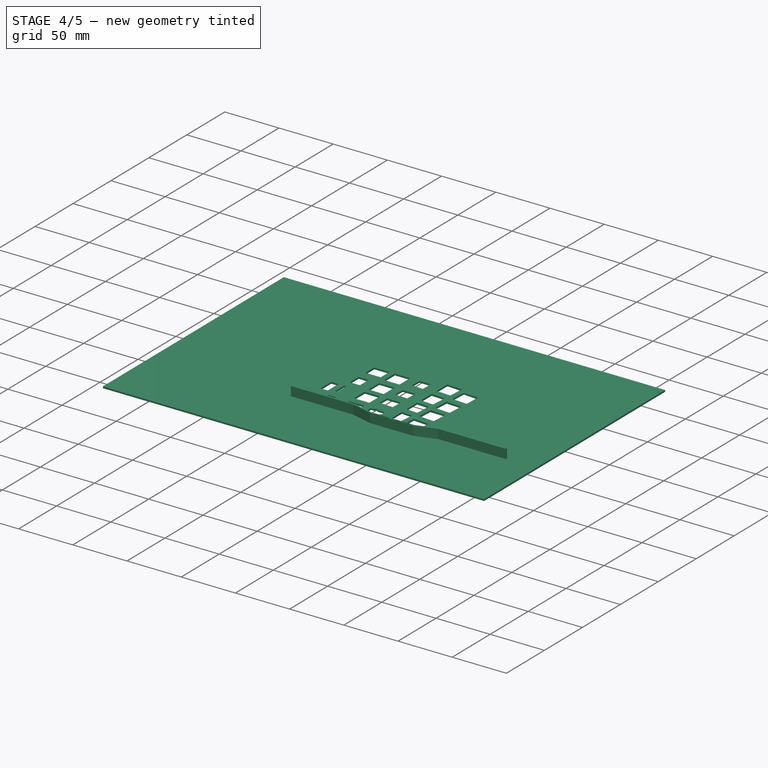
[diagram: stage 4 of 5 — iso view after this stage's code; geometry added in this stage tinted green]
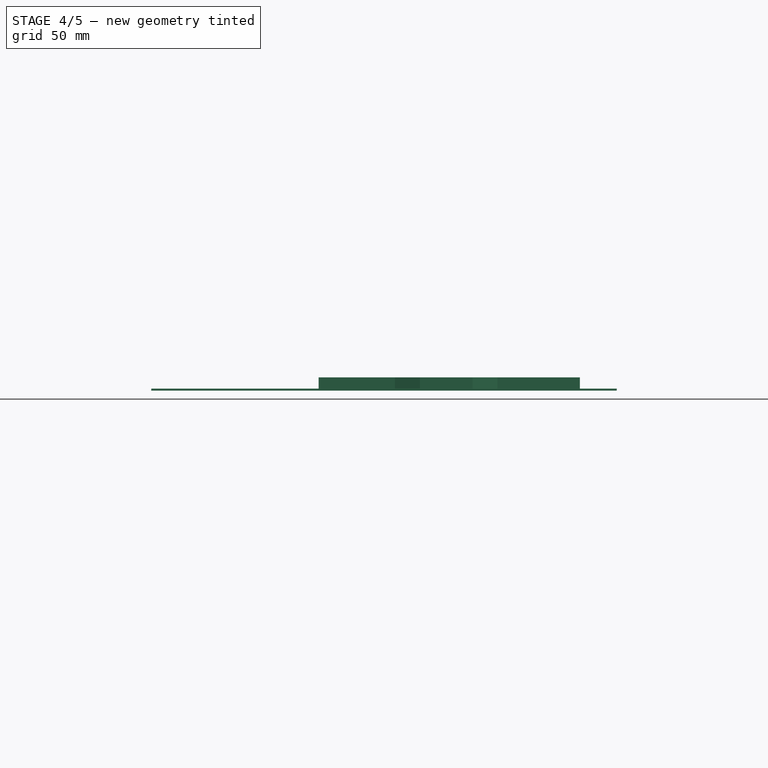
[diagram: stage 4 of 5 — front view after this stage's code; geometry added in this stage tinted green]
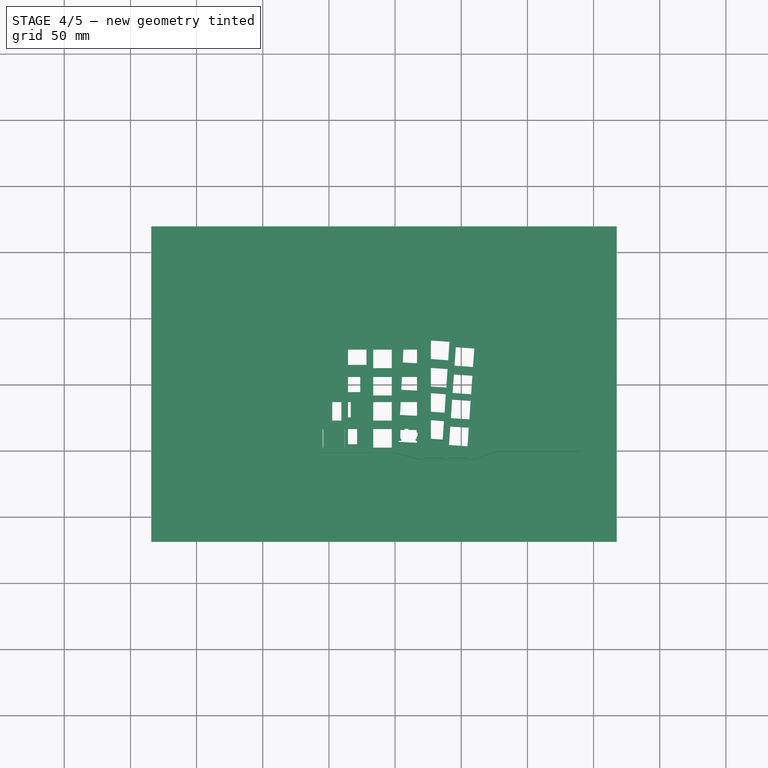
[diagram: stage 4 of 5 — top view after this stage's code; geometry added in this stage tinted green]
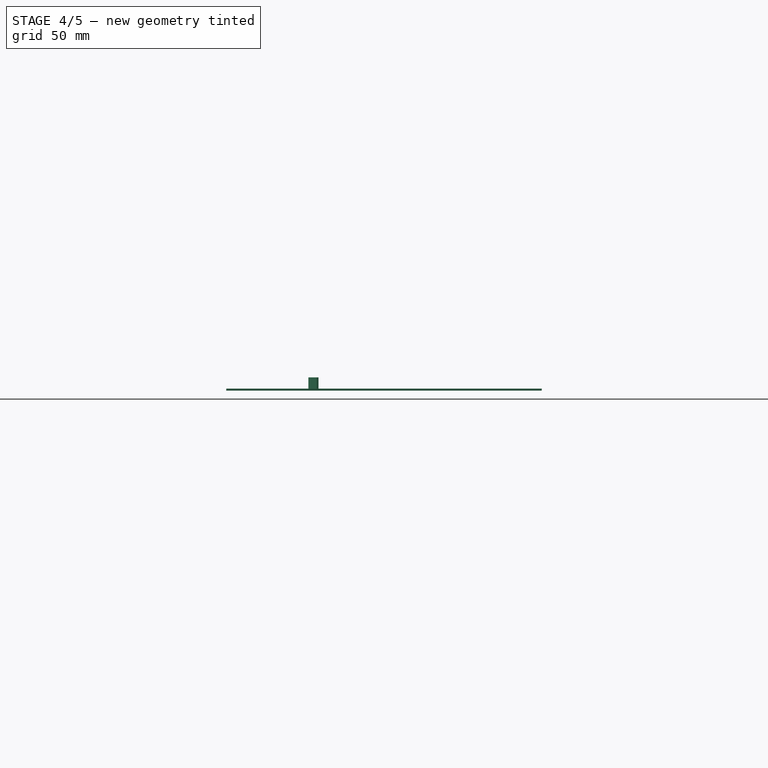
[diagram: stage 4 of 5 — right view after this stage's code; geometry added in this stage tinted green]
FEATURE [PartDesign::Pocket] Pocket
  BaseFeature = -> Pad
  Direction = (0,0,-1)
  Length = 5
  Length2 = 5
  Midplane = true
  Profile = -> Sketch011
  ReferenceAxis = -> Sketch011 [N_Axis]
  Type = 1
FEATURE [PartDesign::Pocket] Pocket001
  BaseFeature = -> Pocket
  Direction = (0,0,-1)
  Length = 5
  Length2 = 5
  Midplane = true
  Profile = -> Sketch012
  ReferenceAxis = -> Sketch012 [N_Axis]
  Type = 1
FEATURE [PartDesign::Pocket] Pocket002
  BaseFeature = -> Pocket001
  Direction = (0,0,-1)
  Length = 5
  Length2 = 5
  Midplane = true
  Profile = -> Sketch013
  ReferenceAxis = -> Sketch013 [N_Axis]
  Type = 1
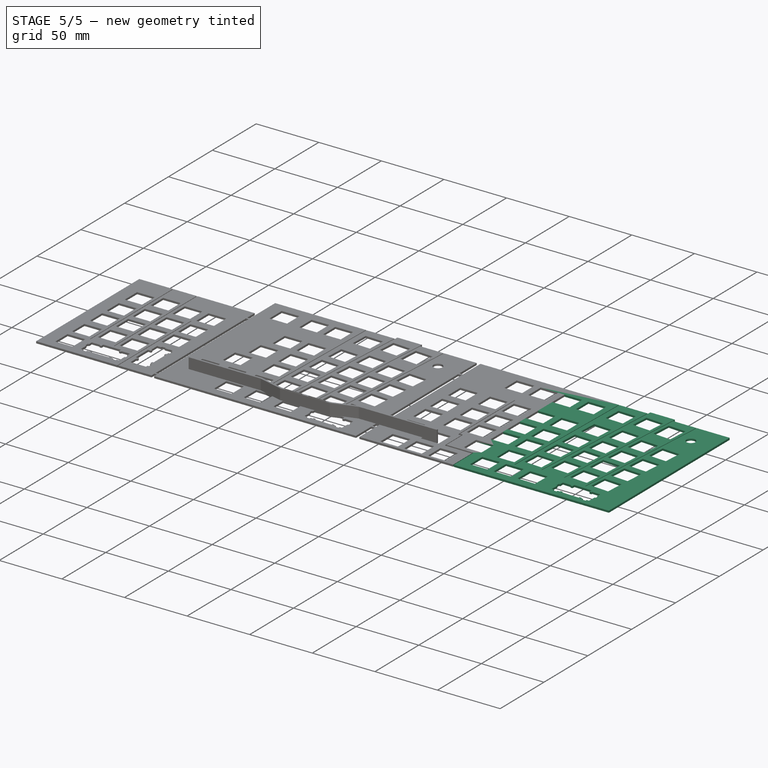
[diagram: stage 5 of 5 — iso view after this stage's code; geometry added in this stage tinted green]
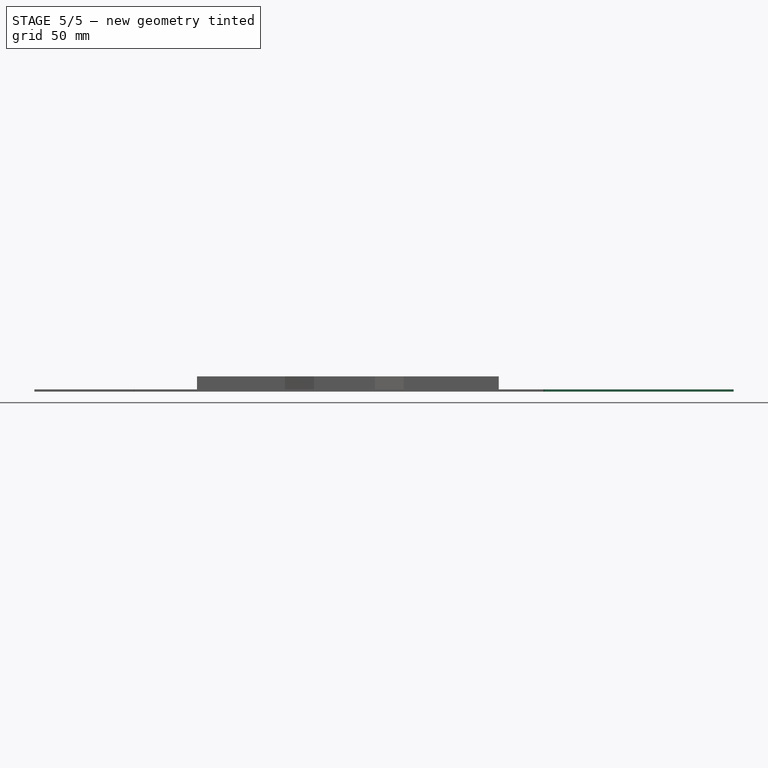
[diagram: stage 5 of 5 — front view after this stage's code; geometry added in this stage tinted green]
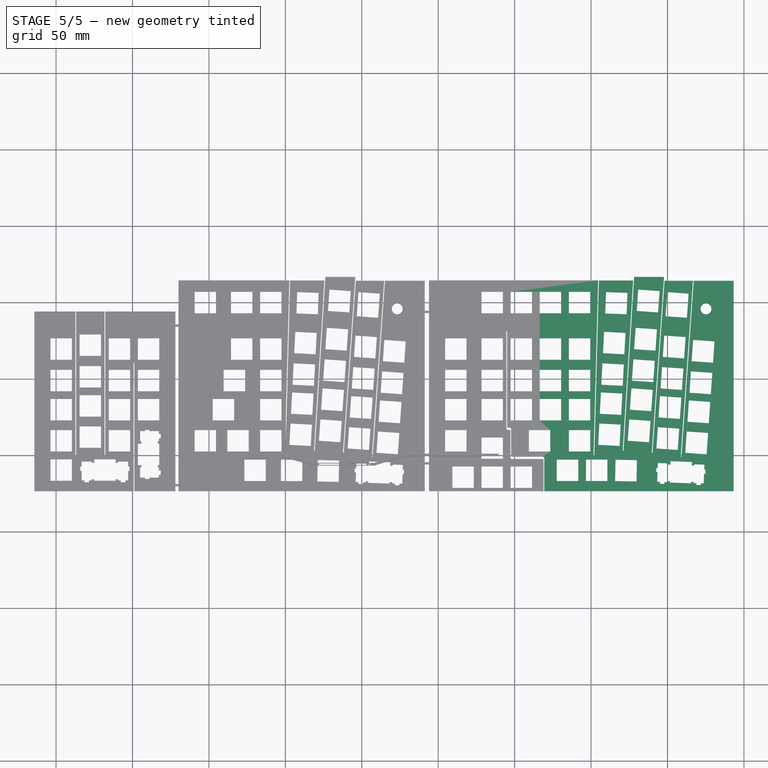
[diagram: stage 5 of 5 — top view after this stage's code; geometry added in this stage tinted green]
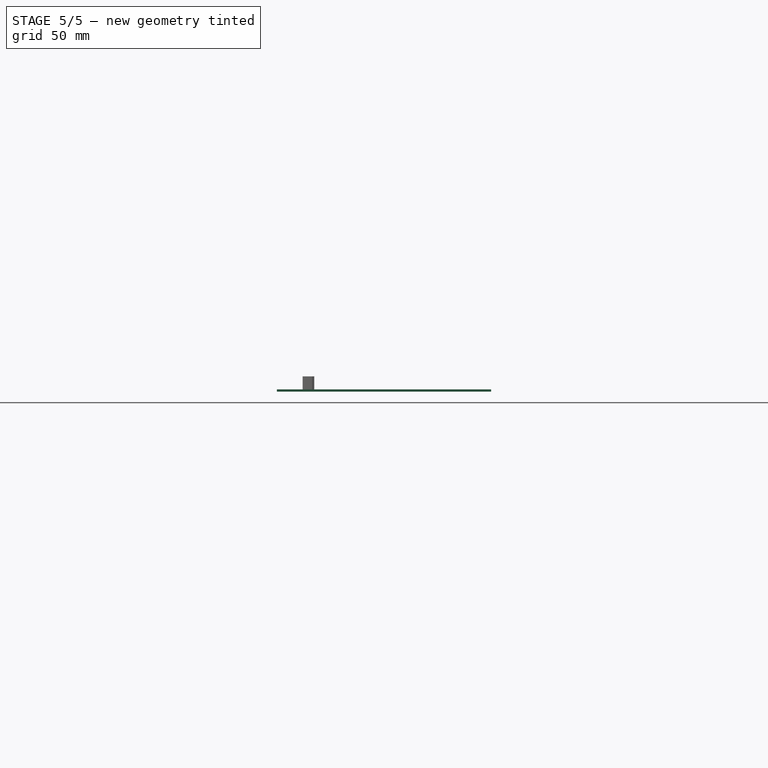
[diagram: stage 5 of 5 — right view after this stage's code; geometry added in this stage tinted green]
FEATURE [PartDesign::Pocket] Pocket003
  BaseFeature = -> Pocket002
  Direction = (0,0,-1)
  Length = 5
  Length2 = 5
  Midplane = true
  Profile = -> Sketch014
  ReferenceAxis = -> Sketch014 [N_Axis]
  Type = 1
FEATURE [PartDesign::Pocket] Pocket004
  BaseFeature = -> Pocket003
  Direction = (0,0,-1)
  Length = 5
  Length2 = 5
  Midplane = true
  Profile = -> Sketch
  ReferenceAxis = -> Sketch [N_Axis]
  Type = 1
FEATURE [PartDesign::Body] Body003  label="RightPlate"
  Group = -> [Sketch020,Sketch021,Sketch022,Sketch023,Sketch024,Sketch019,Pad002,Pocket006,Pocket007,Pocket008,Pocket009,Pocket010]
  Origin = -> Origin003
  Placement = pos=(202,0,0) rot=(0,0,1;0rad)
  Tip = -> Pocket010
FEATURE [PartDesign::Boolean] Boolean
  Group = -> [Body,Body003,Body001]
  Refine = true
  Type = 0
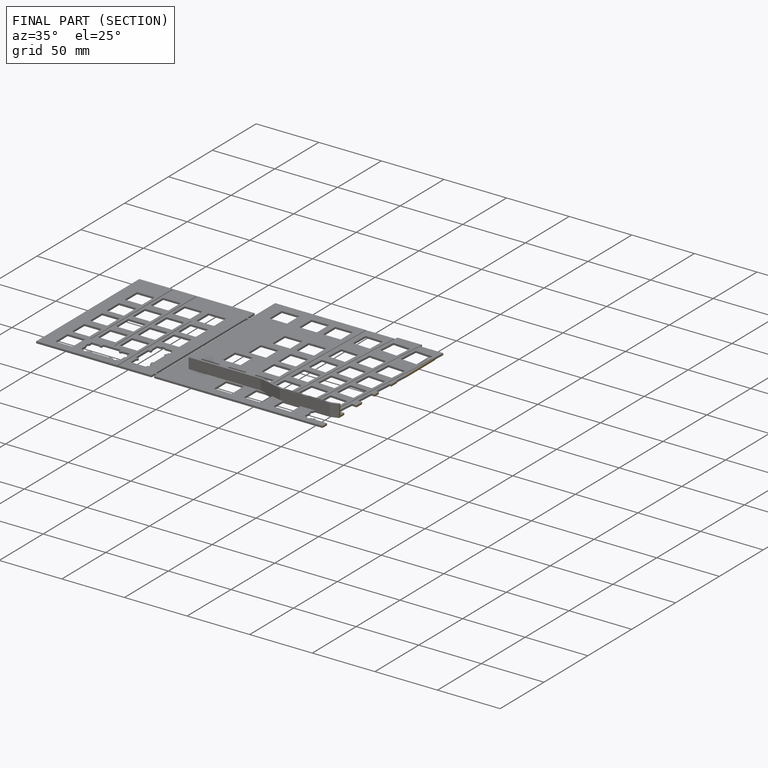
[diagram: finished part — half-section view (interior)]
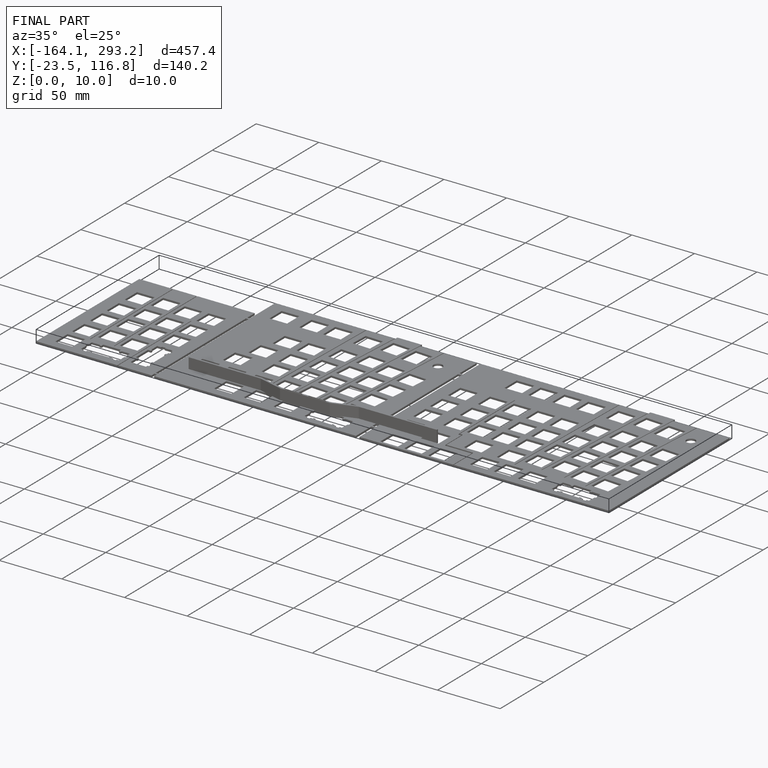
[diagram: finished part — iso view with bounding-box wireframe]
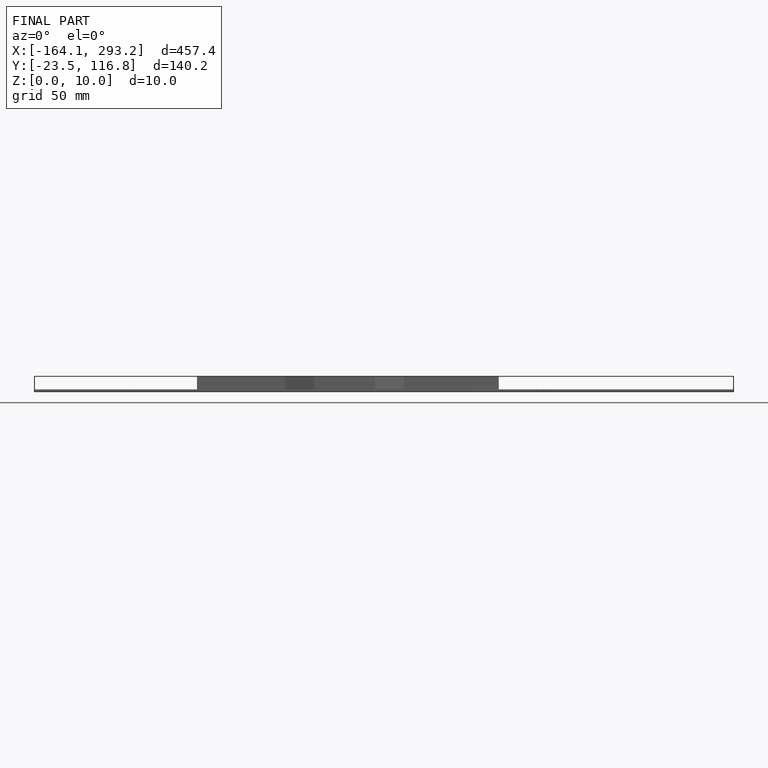
[diagram: finished part — front view with bounding-box wireframe]
